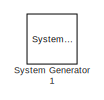
[diagram: root canvas - part 1/13, top left region]
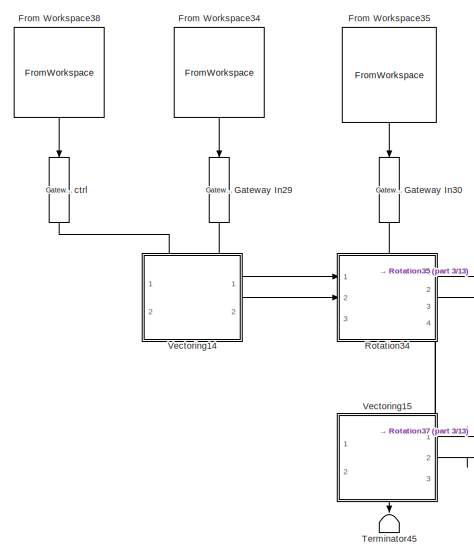
[diagram: root canvas - part 2/13, top left region]
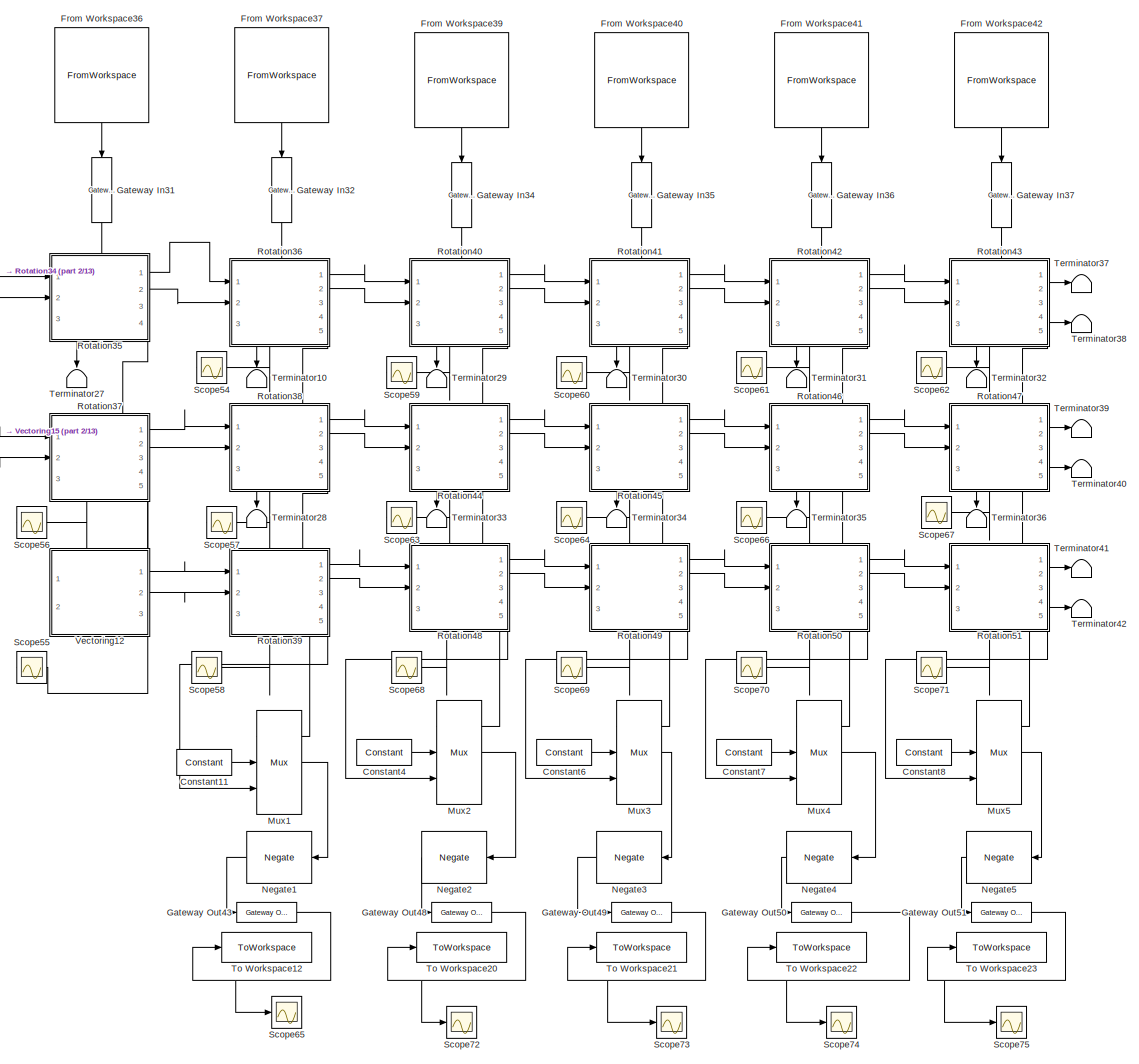
[diagram: root canvas - part 3/13, top left region]
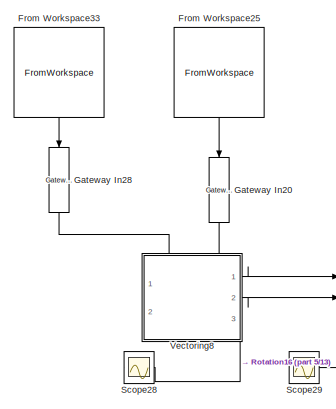
[diagram: root canvas - part 4/13, top center region]
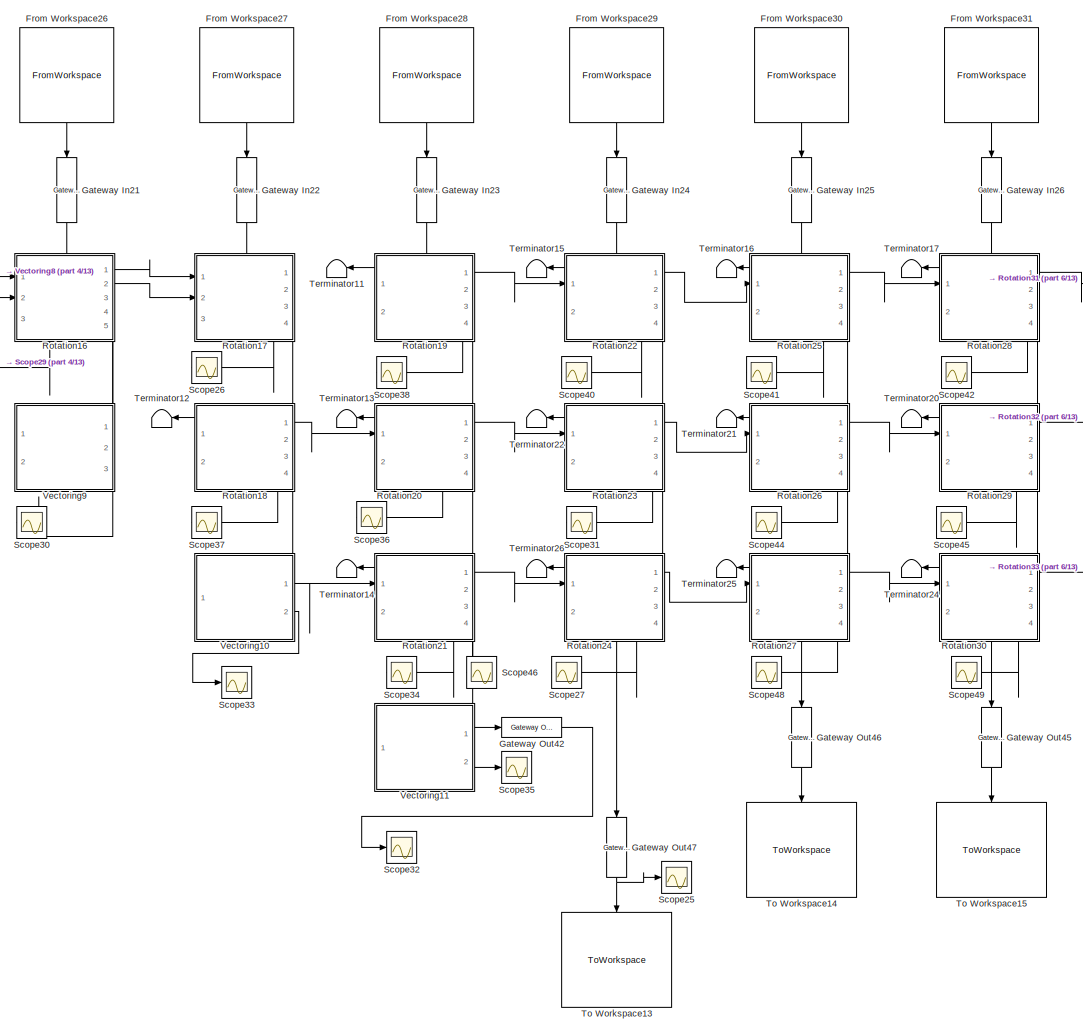
[diagram: root canvas - part 5/13, top center region]
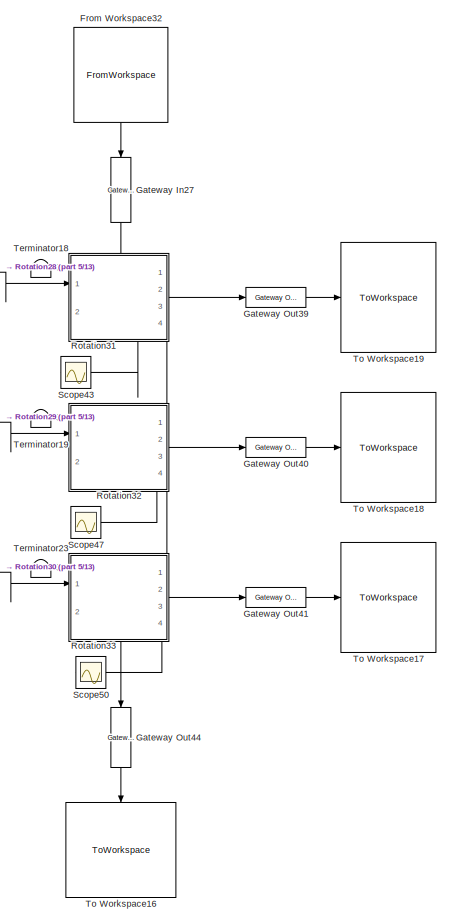
[diagram: root canvas - part 6/13, top center region]
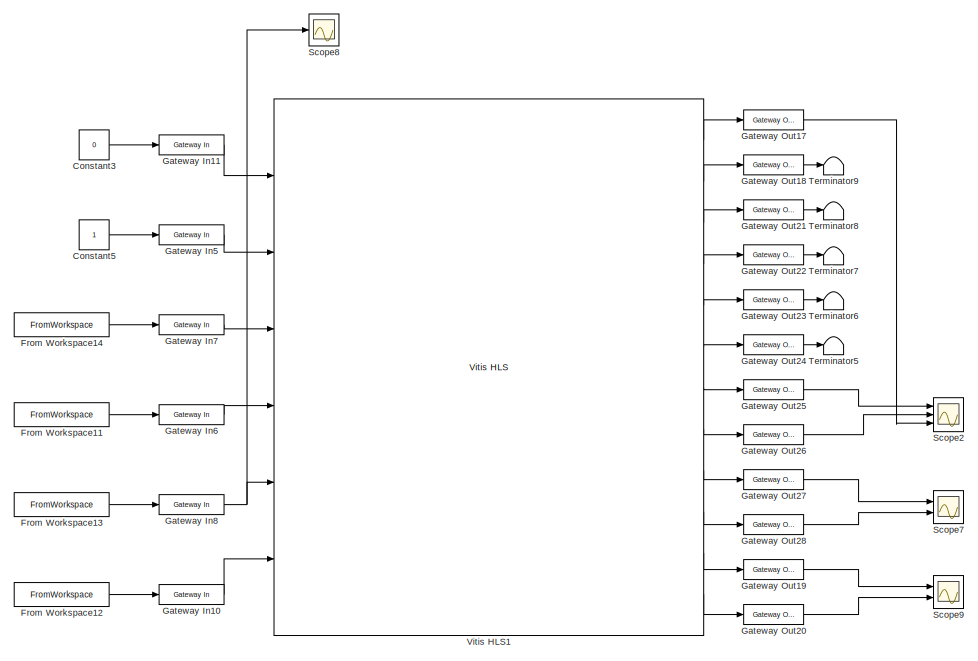
[diagram: root canvas - part 7/13, top right region]
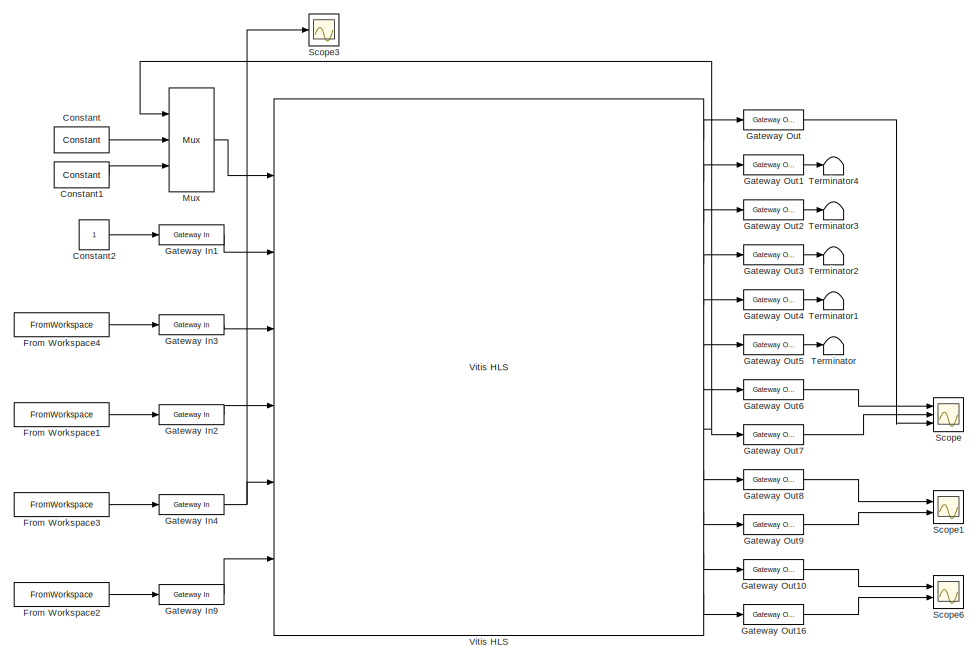
[diagram: root canvas - part 8/13, top right region]
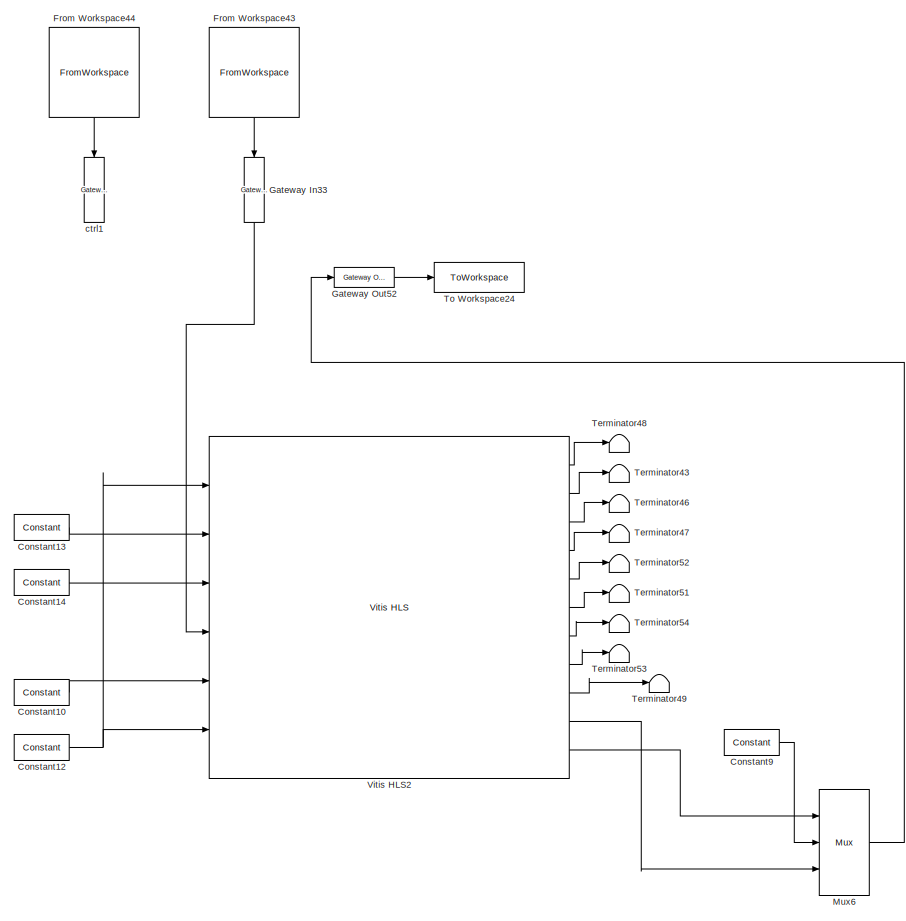
[diagram: root canvas - part 9/13, top left region]
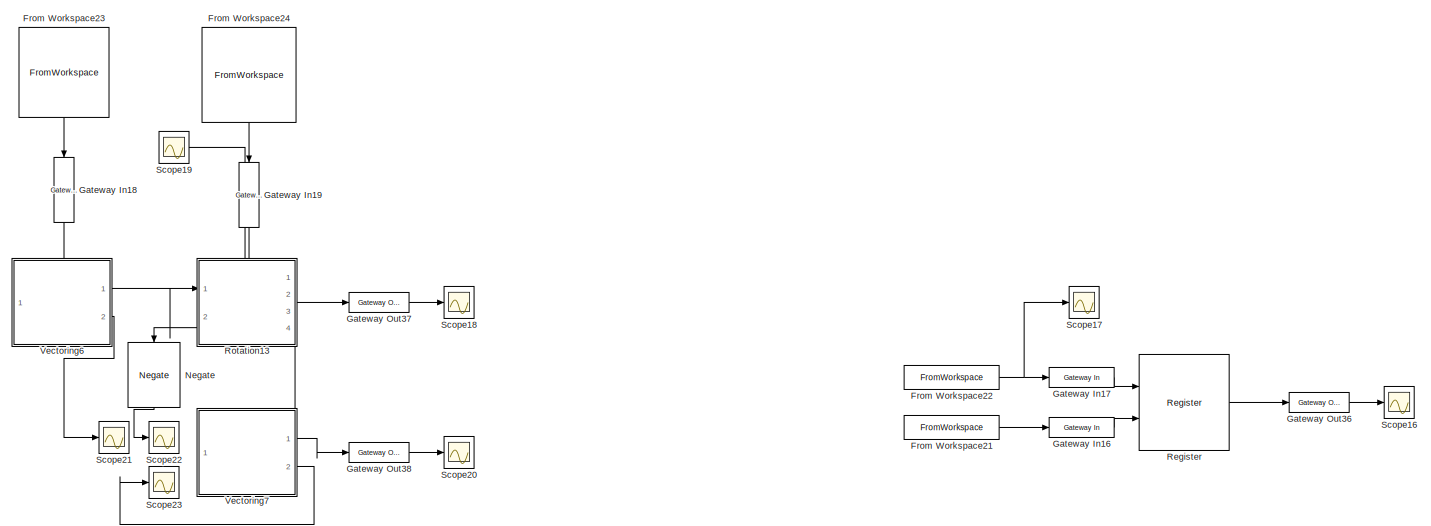
[diagram: root canvas - part 10/13, middle right region]
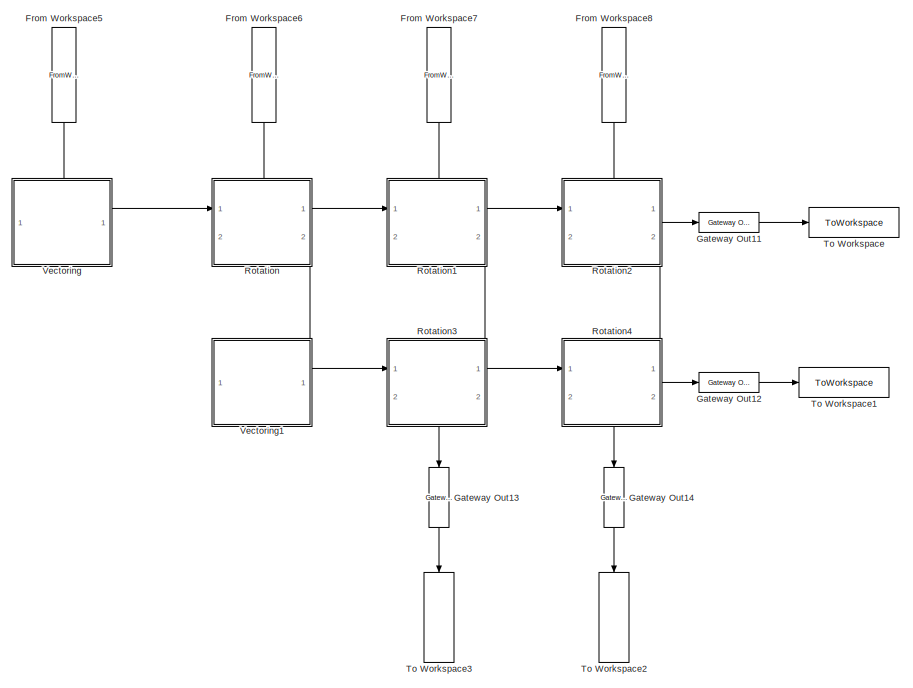
[diagram: root canvas - part 11/13, middle right region]
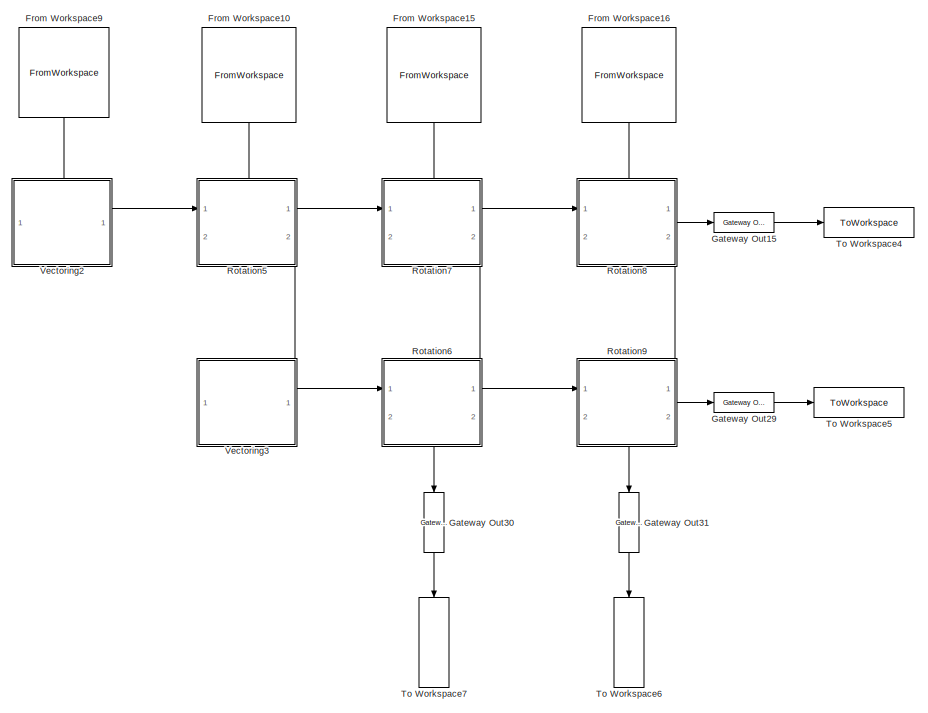
[diagram: root canvas - part 12/13, bottom right region]
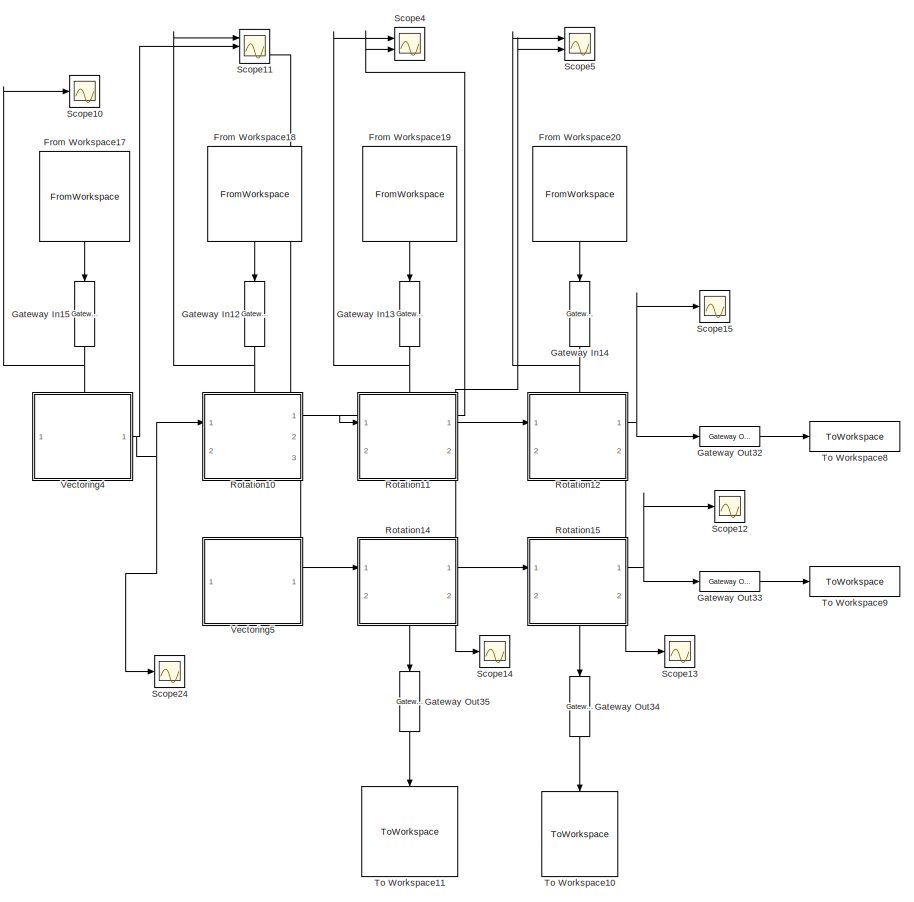
[diagram: root canvas - part 13/13, bottom right region]
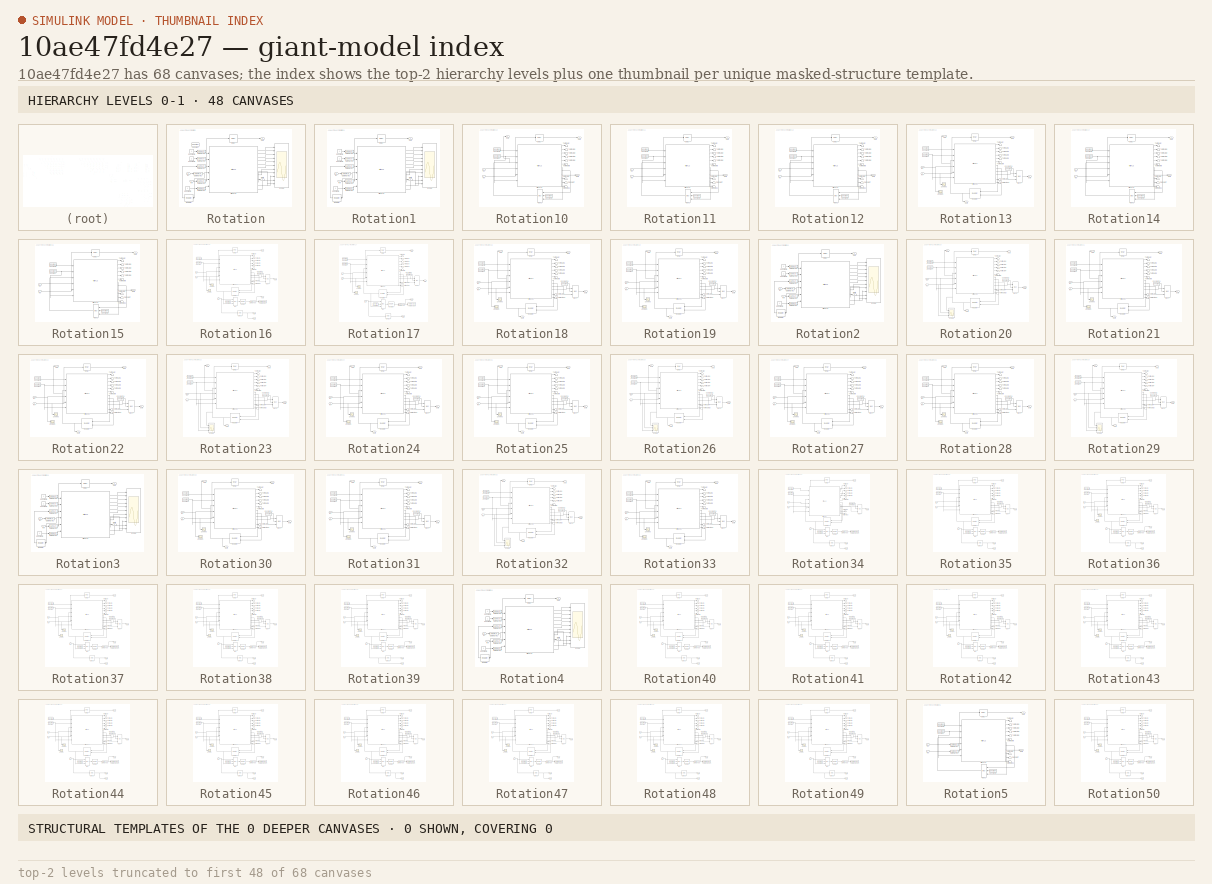
[diagram: thumbnail index - top-2 hierarchy levels (68 canvases (first 48 of 68 shown)) + 0 structural-template representatives of the remaining 0 canvases]
MODEL slx_10ae47fd4e27
KIND model
CONFIG AbsTol = auto
CONFIG EnableMultiTasking = off
CONFIG FixedStep = auto
CONFIG MaxStep = auto
CONFIG MinStep = auto
CONFIG RelTol = 1e-3
CONFIG SampleTimeConstraint = Unconstrained
CONFIG SolverName = VariableStepAuto
CONFIG StartTime = 0.0
CONFIG StopTime = 400
BLOCK [Reference]  System Generator1  REF=xbsIndex_r4/ System Generator
  AttributesFormatString = System\nGenerator
  Ports = []
  SourceBlock = xbsIndex_r4/ System Generator
  SourceType = Xilinx System Generator Block
  Tag = genX
  UserDataPersistent = on
BLOCK [Reference] Constant  REF=hdlBasic/Constant
  Commented = on
  Ports = [0, 1]
  SourceBlock = hdlBasic/Constant
  SourceType = Constant Block Block
BLOCK [Reference] Constant1  REF=hdlBasic/Constant
  Commented = on
  Ports = [0, 1]
  SourceBlock = hdlBasic/Constant
  SourceType = Constant Block Block
BLOCK [Reference] Constant10  REF=hdlBasic/Constant
  Commented = on
  Ports = [0, 1]
  SourceBlock = hdlBasic/Constant
  SourceType = Constant Block Block
BLOCK [Reference] Constant11  REF=hdlBasic/Constant
  Ports = [0, 1]
  SourceBlock = hdlBasic/Constant
  SourceType = Constant Block Block
BLOCK [Reference] Constant12  REF=hdlBasic/Constant
  Commented = on
  Ports = [0, 1]
  SourceBlock = hdlBasic/Constant
  SourceType = Constant Block Block
BLOCK [Reference] Constant13  REF=hdlBasic/Constant
  Commented = on
  Ports = [0, 1]
  SourceBlock = hdlBasic/Constant
  SourceType = Constant Block Block
BLOCK [Reference] Constant14  REF=hdlBasic/Constant
  Commented = on
  Ports = [0, 1]
  SourceBlock = hdlBasic/Constant
  SourceType = Constant Block Block
BLOCK [Constant] Constant2
  Commented = on
BLOCK [Constant] Constant3
  Commented = on
  Value = 0
BLOCK [Reference] Constant4  REF=hdlBasic/Constant
  Ports = [0, 1]
  SourceBlock = hdlBasic/Constant
  SourceType = Constant Block Block
BLOCK [Constant] Constant5
  Commented = on
BLOCK [Reference] Constant6  REF=hdlBasic/Constant
  Ports = [0, 1]
  SourceBlock = hdlBasic/Constant
  SourceType = Constant Block Block
BLOCK [Reference] Constant7  REF=hdlBasic/Constant
  Ports = [0, 1]
  SourceBlock = hdlBasic/Constant
  SourceType = Constant Block Block
BLOCK [Reference] Constant8  REF=hdlBasic/Constant
  Ports = [0, 1]
  SourceBlock = hdlBasic/Constant
  SourceType = Constant Block Block
BLOCK [Reference] Constant9  REF=hdlBasic/Constant
  Commented = on
  Ports = [0, 1]
  SourceBlock = hdlBasic/Constant
  SourceType = Constant Block Block
BLOCK [FromWorkspace] From Workspace1
  Commented = on
  VariableName = y
BLOCK [FromWorkspace] From Workspace10
  Commented = on
  NameLocation = left
  VariableName = AtestCol2_t
BLOCK [FromWorkspace] From Workspace11
  Commented = on
  VariableName = y
BLOCK [FromWorkspace] From Workspace12
  Commented = on
  VariableName = mode
BLOCK [FromWorkspace] From Workspace13
  Commented = on
  VariableName = theta
BLOCK [FromWorkspace] From Workspace14
  Commented = on
  VariableName = x
BLOCK [FromWorkspace] From Workspace15
  Commented = on
  NameLocation = left
  VariableName = Icol1_t
BLOCK [FromWorkspace] From Workspace16
  Commented = on
  NameLocation = left
  VariableName = Icol2_t
BLOCK [FromWorkspace] From Workspace17
  Commented = on
  NameLocation = left
  VariableName = AtestCol1_t
BLOCK [FromWorkspace] From Workspace18
  Commented = on
  NameLocation = left
  VariableName = AtestCol2_t
BLOCK [FromWorkspace] From Workspace19
  Commented = on
  NameLocation = left
  VariableName = Icol1_t
BLOCK [FromWorkspace] From Workspace2
  Commented = on
  VariableName = mode
BLOCK [FromWorkspace] From Workspace20
  Commented = on
  NameLocation = left
  VariableName = Icol2_t
BLOCK [FromWorkspace] From Workspace21
  Commented = on
  VariableName = regenable
BLOCK [FromWorkspace] From Workspace22
  Commented = on
  VariableName = regtest
BLOCK [FromWorkspace] From Workspace23
  Commented = on
  NameLocation = left
  VariableName = AtestCol1_t
BLOCK [FromWorkspace] From Workspace24
  Commented = on
  NameLocation = left
  VariableName = AtestCol2_t
BLOCK [FromWorkspace] From Workspace25
  Commented = on
  NameLocation = left
  VariableName = Acol1
BLOCK [FromWorkspace] From Workspace26
  Commented = on
  NameLocation = left
  VariableName = Acol2
BLOCK [FromWorkspace] From Workspace27
  Commented = on
  NameLocation = left
  VariableName = Acol3
BLOCK [FromWorkspace] From Workspace28
  Commented = on
  NameLocation = left
  VariableName = Acol4
BLOCK [FromWorkspace] From Workspace29
  Commented = on
  NameLocation = left
  VariableName = Icol1_t
BLOCK [FromWorkspace] From Workspace3
  Commented = on
  VariableName = theta
BLOCK [FromWorkspace] From Workspace30
  Commented = on
  NameLocation = left
  VariableName = Icol2_t
BLOCK [FromWorkspace] From Workspace31
  Commented = on
  NameLocation = left
  VariableName = Icol3_t
BLOCK [FromWorkspace] From Workspace32
  Commented = on
  NameLocation = left
  VariableName = Icol4_t
BLOCK [FromWorkspace] From Workspace33
  Commented = on
  NameLocation = left
  VariableName = ctrl_t
BLOCK [FromWorkspace] From Workspace34
  NameLocation = left
  VariableName = Acol1
BLOCK [FromWorkspace] From Workspace35
  NameLocation = left
  VariableName = Acol2
BLOCK [FromWorkspace] From Workspace36
  NameLocation = left
  VariableName = Acol3
BLOCK [FromWorkspace] From Workspace37
  NameLocation = left
  VariableName = Acol4
BLOCK [FromWorkspace] From Workspace38
  NameLocation = left
  VariableName = ctrl_t
BLOCK [FromWorkspace] From Workspace39
  NameLocation = left
  VariableName = Icol1_t
BLOCK [FromWorkspace] From Workspace4
  Commented = on
  VariableName = x
BLOCK [FromWorkspace] From Workspace40
  NameLocation = left
  VariableName = Icol2_t
BLOCK [FromWorkspace] From Workspace41
  NameLocation = left
  VariableName = Icol3_t
BLOCK [FromWorkspace] From Workspace42
  NameLocation = left
  VariableName = Icol4_t
BLOCK [FromWorkspace] From Workspace43
  Commented = on
  NameLocation = left
  VariableName = Acol1
BLOCK [FromWorkspace] From Workspace44
  Commented = on
  NameLocation = left
  VariableName = ctrl_t
BLOCK [FromWorkspace] From Workspace5
  Commented = on
  NameLocation = left
  VariableName = col1
BLOCK [FromWorkspace] From Workspace6
  Commented = on
  NameLocation = left
  VariableName = col2
BLOCK [FromWorkspace] From Workspace7
  Commented = on
  NameLocation = left
  VariableName = ident1
BLOCK [FromWorkspace] From Workspace8
  Commented = on
  NameLocation = left
  VariableName = ident2
BLOCK [FromWorkspace] From Workspace9
  Commented = on
  NameLocation = left
  VariableName = AtestCol1_t
BLOCK [Reference] Gateway In1  REF=hdlBasic/Gateway In
  Commented = on
  Ports = [1, 1]
  SourceBlock = hdlBasic/Gateway In
  SourceType = Gateway In Block
BLOCK [Reference] Gateway In10  REF=hdlBasic/Gateway In
  Commented = on
  Ports = [1, 1]
  SourceBlock = hdlBasic/Gateway In
  SourceType = Gateway In Block
BLOCK [Reference] Gateway In11  REF=hdlBasic/Gateway In
  Commented = on
  Ports = [1, 1]
  SourceBlock = hdlBasic/Gateway In
  SourceType = Gateway In Block
BLOCK [Reference] Gateway In12  REF=hdlBasic/Gateway In
  Commented = on
  NameLocation = left
  Ports = [1, 1]
  SourceBlock = hdlBasic/Gateway In
  SourceType = Gateway In Block
BLOCK [Reference] Gateway In13  REF=hdlBasic/Gateway In
  Commented = on
  NameLocation = left
  Ports = [1, 1]
  SourceBlock = hdlBasic/Gateway In
  SourceType = Gateway In Block
BLOCK [Reference] Gateway In14  REF=hdlBasic/Gateway In
  Commented = on
  NameLocation = left
  Ports = [1, 1]
  SourceBlock = hdlBasic/Gateway In
  SourceType = Gateway In Block
BLOCK [Reference] Gateway In15  REF=hdlBasic/Gateway In
  Commented = on
  NameLocation = left
  Ports = [1, 1]
  SourceBlock = hdlBasic/Gateway In
  SourceType = Gateway In Block
BLOCK [Reference] Gateway In16  REF=hdlBasic/Gateway In
  Commented = on
  Ports = [1, 1]
  SourceBlock = hdlBasic/Gateway In
  SourceType = Gateway In Block
BLOCK [Reference] Gateway In17  REF=hdlBasic/Gateway In
  Commented = on
  Ports = [1, 1]
  SourceBlock = hdlBasic/Gateway In
  SourceType = Gateway In Block
BLOCK [Reference] Gateway In18  REF=hdlBasic/Gateway In
  Commented = on
  NameLocation = left
  Ports = [1, 1]
  SourceBlock = hdlBasic/Gateway In
  SourceType = Gateway In Block
BLOCK [Reference] Gateway In19  REF=hdlBasic/Gateway In
  Commented = on
  NameLocation = left
  Ports = [1, 1]
  SourceBlock = hdlBasic/Gateway In
  SourceType = Gateway In Block
BLOCK [Reference] Gateway In2  REF=hdlBasic/Gateway In
  Commented = on
  Ports = [1, 1]
  SourceBlock = hdlBasic/Gateway In
  SourceType = Gateway In Block
BLOCK [Reference] Gateway In20  REF=hdlBasic/Gateway In
  Commented = on
  NameLocation = left
  Ports = [1, 1]
  SourceBlock = hdlBasic/Gateway In
  SourceType = Gateway In Block
BLOCK [Reference] Gateway In21  REF=hdlBasic/Gateway In
  Commented = on
  NameLocation = left
  Ports = [1, 1]
  SourceBlock = hdlBasic/Gateway In
  SourceType = Gateway In Block
BLOCK [Reference] Gateway In22  REF=hdlBasic/Gateway In
  Commented = on
  NameLocation = left
  Ports = [1, 1]
  SourceBlock = hdlBasic/Gateway In
  SourceType = Gateway In Block
BLOCK [Reference] Gateway In23  REF=hdlBasic/Gateway In
  Commented = on
  NameLocation = left
  Ports = [1, 1]
  SourceBlock = hdlBasic/Gateway In
  SourceType = Gateway In Block
BLOCK [Reference] Gateway In24  REF=hdlBasic/Gateway In
  Commented = on
  NameLocation = left
  Ports = [1, 1]
  SourceBlock = hdlBasic/Gateway In
  SourceType = Gateway In Block
BLOCK [Reference] Gateway In25  REF=hdlBasic/Gateway In
  Commented = on
  NameLocation = left
  Ports = [1, 1]
  SourceBlock = hdlBasic/Gateway In
  SourceType = Gateway In Block
BLOCK [Reference] Gateway In26  REF=hdlBasic/Gateway In
  Commented = on
  NameLocation = left
  Ports = [1, 1]
  SourceBlock = hdlBasic/Gateway In
  SourceType = Gateway In Block
BLOCK [Reference] Gateway In27  REF=hdlBasic/Gateway In
  Commented = on
  NameLocation = left
  Ports = [1, 1]
  SourceBlock = hdlBasic/Gateway In
  SourceType = Gateway In Block
BLOCK [Reference] Gateway In28  REF=hdlBasic/Gateway In
  Commented = on
  NameLocation = left
  Ports = [1, 1]
  SourceBlock = hdlBasic/Gateway In
  SourceType = Gateway In Block
BLOCK [Reference] Gateway In29  REF=hdlBasic/Gateway In
  NameLocation = left
  Ports = [1, 1]
  SourceBlock = hdlBasic/Gateway In
  SourceType = Gateway In Block
BLOCK [Reference] Gateway In3  REF=hdlBasic/Gateway In
  Commented = on
  Ports = [1, 1]
  SourceBlock = hdlBasic/Gateway In
  SourceType = Gateway In Block
BLOCK [Reference] Gateway In30  REF=hdlBasic/Gateway In
  NameLocation = left
  Ports = [1, 1]
  SourceBlock = hdlBasic/Gateway In
  SourceType = Gateway In Block
BLOCK [Reference] Gateway In31  REF=hdlBasic/Gateway In
  NameLocation = left
  Ports = [1, 1]
  SourceBlock = hdlBasic/Gateway In
  SourceType = Gateway In Block
BLOCK [Reference] Gateway In32  REF=hdlBasic/Gateway In
  NameLocation = left
  Ports = [1, 1]
  SourceBlock = hdlBasic/Gateway In
  SourceType = Gateway In Block
BLOCK [Reference] Gateway In33  REF=hdlBasic/Gateway In
  Commented = on
  NameLocation = left
  Ports = [1, 1]
  SourceBlock = hdlBasic/Gateway In
  SourceType = Gateway In Block
BLOCK [Reference] Gateway In34  REF=hdlBasic/Gateway In
  NameLocation = left
  Ports = [1, 1]
  SourceBlock = hdlBasic/Gateway In
  SourceType = Gateway In Block
BLOCK [Reference] Gateway In35  REF=hdlBasic/Gateway In
  NameLocation = left
  Ports = [1, 1]
  SourceBlock = hdlBasic/Gateway In
  SourceType = Gateway In Block
BLOCK [Reference] Gateway In36  REF=hdlBasic/Gateway In
  NameLocation = left
  Ports = [1, 1]
  SourceBlock = hdlBasic/Gateway In
  SourceType = Gateway In Block
BLOCK [Reference] Gateway In37  REF=hdlBasic/Gateway In
  NameLocation = left
  Ports = [1, 1]
  SourceBlock = hdlBasic/Gateway In
  SourceType = Gateway In Block
BLOCK [Reference] Gateway In4  REF=hdlBasic/Gateway In
  Commented = on
  Ports = [1, 1]
  SourceBlock = hdlBasic/Gateway In
  SourceType = Gateway In Block
BLOCK [Reference] Gateway In5  REF=hdlBasic/Gateway In
  Commented = on
  Ports = [1, 1]
  SourceBlock = hdlBasic/Gateway In
  SourceType = Gateway In Block
BLOCK [Reference] Gateway In6  REF=hdlBasic/Gateway In
  Commented = on
  Ports = [1, 1]
  SourceBlock = hdlBasic/Gateway In
  SourceType = Gateway In Block
BLOCK [Reference] Gateway In7  REF=hdlBasic/Gateway In
  Commented = on
  Ports = [1, 1]
  SourceBlock = hdlBasic/Gateway In
  SourceType = Gateway In Block
BLOCK [Reference] Gateway In8  REF=hdlBasic/Gateway In
  Commented = on
  Ports = [1, 1]
  SourceBlock = hdlBasic/Gateway In
  SourceType = Gateway In Block
BLOCK [Reference] Gateway In9  REF=hdlBasic/Gateway In
  Commented = on
  Ports = [1, 1]
  SourceBlock = hdlBasic/Gateway In
  SourceType = Gateway In Block
BLOCK [Reference] Gateway Out  REF=hdlBasic/Gateway Out
  Commented = on
  Ports = [1, 1]
  SourceBlock = hdlBasic/Gateway Out
  SourceType = Gateway Out Block
BLOCK [Reference] Gateway Out1  REF=hdlBasic/Gateway Out
  Commented = on
  Ports = [1, 1]
  SourceBlock = hdlBasic/Gateway Out
  SourceType = Gateway Out Block
BLOCK [Reference] Gateway Out10  REF=hdlBasic/Gateway Out
  Commented = on
  Ports = [1, 1]
  SourceBlock = hdlBasic/Gateway Out
  SourceType = Gateway Out Block
BLOCK [Reference] Gateway Out11  REF=hdlBasic/Gateway Out
  Commented = on
  Ports = [1, 1]
  SourceBlock = hdlBasic/Gateway Out
  SourceType = Gateway Out Block
BLOCK [Reference] Gateway Out12  REF=hdlBasic/Gateway Out
  Commented = on
  Ports = [1, 1]
  SourceBlock = hdlBasic/Gateway Out
  SourceType = Gateway Out Block
BLOCK [Reference] Gateway Out13  REF=hdlBasic/Gateway Out
  Commented = on
  NameLocation = left
  Ports = [1, 1]
  SourceBlock = hdlBasic/Gateway Out
  SourceType = Gateway Out Block
BLOCK [Reference] Gateway Out14  REF=hdlBasic/Gateway Out
  Commented = on
  NameLocation = left
  Ports = [1, 1]
  SourceBlock = hdlBasic/Gateway Out
  SourceType = Gateway Out Block
BLOCK [Reference] Gateway Out15  REF=hdlBasic/Gateway Out
  Commented = on
  Ports = [1, 1]
  SourceBlock = hdlBasic/Gateway Out
  SourceType = Gateway Out Block
BLOCK [Reference] Gateway Out16  REF=hdlBasic/Gateway Out
  Commented = on
  Ports = [1, 1]
  SourceBlock = hdlBasic/Gateway Out
  SourceType = Gateway Out Block
BLOCK [Reference] Gateway Out17  REF=hdlBasic/Gateway Out
  Commented = on
  Ports = [1, 1]
  SourceBlock = hdlBasic/Gateway Out
  SourceType = Gateway Out Block
BLOCK [Reference] Gateway Out18  REF=hdlBasic/Gateway Out
  Commented = on
  Ports = [1, 1]
  SourceBlock = hdlBasic/Gateway Out
  SourceType = Gateway Out Block
BLOCK [Reference] Gateway Out19  REF=hdlBasic/Gateway Out
  Commented = on
  Ports = [1, 1]
  SourceBlock = hdlBasic/Gateway Out
  SourceType = Gateway Out Block
BLOCK [Reference] Gateway Out2  REF=hdlBasic/Gateway Out
  Commented = on
  Ports = [1, 1]
  SourceBlock = hdlBasic/Gateway Out
  SourceType = Gateway Out Block
BLOCK [Reference] Gateway Out20  REF=hdlBasic/Gateway Out
  Commented = on
  Ports = [1, 1]
  SourceBlock = hdlBasic/Gateway Out
  SourceType = Gateway Out Block
BLOCK [Reference] Gateway Out21  REF=hdlBasic/Gateway Out
  Commented = on
  Ports = [1, 1]
  SourceBlock = hdlBasic/Gateway Out
  SourceType = Gateway Out Block
BLOCK [Reference] Gateway Out22  REF=hdlBasic/Gateway Out
  Commented = on
  Ports = [1, 1]
  SourceBlock = hdlBasic/Gateway Out
  SourceType = Gateway Out Block
BLOCK [Reference] Gateway Out23  REF=hdlBasic/Gateway Out
  Commented = on
  Ports = [1, 1]
  SourceBlock = hdlBasic/Gateway Out
  SourceType = Gateway Out Block
BLOCK [Reference] Gateway Out24  REF=hdlBasic/Gateway Out
  Commented = on
  Ports = [1, 1]
  SourceBlock = hdlBasic/Gateway Out
  SourceType = Gateway Out Block
BLOCK [Reference] Gateway Out25  REF=hdlBasic/Gateway Out
  Commented = on
  Ports = [1, 1]
  SourceBlock = hdlBasic/Gateway Out
  SourceType = Gateway Out Block
BLOCK [Reference] Gateway Out26  REF=hdlBasic/Gateway Out
  Commented = on
  Ports = [1, 1]
  SourceBlock = hdlBasic/Gateway Out
  SourceType = Gateway Out Block
BLOCK [Reference] Gateway Out27  REF=hdlBasic/Gateway Out
  Commented = on
  Ports = [1, 1]
  SourceBlock = hdlBasic/Gateway Out
  SourceType = Gateway Out Block
BLOCK [Reference] Gateway Out28  REF=hdlBasic/Gateway Out
  Commented = on
  Ports = [1, 1]
  SourceBlock = hdlBasic/Gateway Out
  SourceType = Gateway Out Block
BLOCK [Reference] Gateway Out29  REF=hdlBasic/Gateway Out
  Commented = on
  Ports = [1, 1]
  SourceBlock = hdlBasic/Gateway Out
  SourceType = Gateway Out Block
BLOCK [Reference] Gateway Out3  REF=hdlBasic/Gateway Out
  Commented = on
  Ports = [1, 1]
  SourceBlock = hdlBasic/Gateway Out
  SourceType = Gateway Out Block
BLOCK [Reference] Gateway Out30  REF=hdlBasic/Gateway Out
  Commented = on
  NameLocation = left
  Ports = [1, 1]
  SourceBlock = hdlBasic/Gateway Out
  SourceType = Gateway Out Block
BLOCK [Reference] Gateway Out31  REF=hdlBasic/Gateway Out
  Commented = on
  NameLocation = left
  Ports = [1, 1]
  SourceBlock = hdlBasic/Gateway Out
  SourceType = Gateway Out Block
BLOCK [Reference] Gateway Out32  REF=hdlBasic/Gateway Out
  Commented = on
  Ports = [1, 1]
  SourceBlock = hdlBasic/Gateway Out
  SourceType = Gateway Out Block
BLOCK [Reference] Gateway Out33  REF=hdlBasic/Gateway Out
  Commented = on
  Ports = [1, 1]
  SourceBlock = hdlBasic/Gateway Out
  SourceType = Gateway Out Block
BLOCK [Reference] Gateway Out34  REF=hdlBasic/Gateway Out
  Commented = on
  NameLocation = left
  Ports = [1, 1]
  SourceBlock = hdlBasic/Gateway Out
  SourceType = Gateway Out Block
BLOCK [Reference] Gateway Out35  REF=hdlBasic/Gateway Out
  Commented = on
  NameLocation = left
  Ports = [1, 1]
  SourceBlock = hdlBasic/Gateway Out
  SourceType = Gateway Out Block
BLOCK [Reference] Gateway Out36  REF=hdlBasic/Gateway Out
  Commented = on
  Ports = [1, 1]
  SourceBlock = hdlBasic/Gateway Out
  SourceType = Gateway Out Block
BLOCK [Reference] Gateway Out37  REF=hdlBasic/Gateway Out
  Commented = on
  Ports = [1, 1]
  SourceBlock = hdlBasic/Gateway Out
  SourceType = Gateway Out Block
BLOCK [Reference] Gateway Out38  REF=hdlBasic/Gateway Out
  Commented = on
  Ports = [1, 1]
  SourceBlock = hdlBasic/Gateway Out
  SourceType = Gateway Out Block
BLOCK [Reference] Gateway Out39  REF=hdlBasic/Gateway Out
  Commented = on
  Ports = [1, 1]
  SourceBlock = hdlBasic/Gateway Out
  SourceType = Gateway Out Block
BLOCK [Reference] Gateway Out4  REF=hdlBasic/Gateway Out
  Commented = on
  Ports = [1, 1]
  SourceBlock = hdlBasic/Gateway Out
  SourceType = Gateway Out Block
BLOCK [Reference] Gateway Out40  REF=hdlBasic/Gateway Out
  Commented = on
  Ports = [1, 1]
  SourceBlock = hdlBasic/Gateway Out
  SourceType = Gateway Out Block
BLOCK [Reference] Gateway Out41  REF=hdlBasic/Gateway Out
  Commented = on
  Ports = [1, 1]
  SourceBlock = hdlBasic/Gateway Out
  SourceType = Gateway Out Block
BLOCK [Reference] Gateway Out42  REF=hdlBasic/Gateway Out
  Commented = on
  Ports = [1, 1]
  SourceBlock = hdlBasic/Gateway Out
  SourceType = Gateway Out Block
BLOCK [Reference] Gateway Out43  REF=hdlBasic/Gateway Out
  Ports = [1, 1]
  SourceBlock = hdlBasic/Gateway Out
  SourceType = Gateway Out Block
BLOCK [Reference] Gateway Out44  REF=hdlBasic/Gateway Out
  Commented = on
  NameLocation = left
  Ports = [1, 1]
  SourceBlock = hdlBasic/Gateway Out
  SourceType = Gateway Out Block
BLOCK [Reference] Gateway Out45  REF=hdlBasic/Gateway Out
  Commented = on
  NameLocation = left
  Ports = [1, 1]
  SourceBlock = hdlBasic/Gateway Out
  SourceType = Gateway Out Block
BLOCK [Reference] Gateway Out46  REF=hdlBasic/Gateway Out
  Commented = on
  NameLocation = left
  Ports = [1, 1]
  SourceBlock = hdlBasic/Gateway Out
  SourceType = Gateway Out Block
BLOCK [Reference] Gateway Out47  REF=hdlBasic/Gateway Out
  Commented = on
  NameLocation = left
  Ports = [1, 1]
  SourceBlock = hdlBasic/Gateway Out
  SourceType = Gateway Out Block
BLOCK [Reference] Gateway Out48  REF=hdlBasic/Gateway Out
  Ports = [1, 1]
  SourceBlock = hdlBasic/Gateway Out
  SourceType = Gateway Out Block
BLOCK [Reference] Gateway Out49  REF=hdlBasic/Gateway Out
  Ports = [1, 1]
  SourceBlock = hdlBasic/Gateway Out
  SourceType = Gateway Out Block
BLOCK [Reference] Gateway Out5  REF=hdlBasic/Gateway Out
  Commented = on
  Ports = [1, 1]
  SourceBlock = hdlBasic/Gateway Out
  SourceType = Gateway Out Block
BLOCK [Reference] Gateway Out50  REF=hdlBasic/Gateway Out
  Ports = [1, 1]
  SourceBlock = hdlBasic/Gateway Out
  SourceType = Gateway Out Block
BLOCK [Reference] Gateway Out51  REF=hdlBasic/Gateway Out
  Ports = [1, 1]
  SourceBlock = hdlBasic/Gateway Out
  SourceType = Gateway Out Block
BLOCK [Reference] Gateway Out52  REF=hdlBasic/Gateway Out
  Commented = on
  Ports = [1, 1]
  SourceBlock = hdlBasic/Gateway Out
  SourceType = Gateway Out Block
BLOCK [Reference] Gateway Out6  REF=hdlBasic/Gateway Out
  Commented = on
  Ports = [1, 1]
  SourceBlock = hdlBasic/Gateway Out
  SourceType = Gateway Out Block
BLOCK [Reference] Gateway Out7  REF=hdlBasic/Gateway Out
  Commented = on
  Ports = [1, 1]
  SourceBlock = hdlBasic/Gateway Out
  SourceType = Gateway Out Block
BLOCK [Reference] Gateway Out8  REF=hdlBasic/Gateway Out
  Commented = on
  Ports = [1, 1]
  SourceBlock = hdlBasic/Gateway Out
  SourceType = Gateway Out Block
BLOCK [Reference] Gateway Out9  REF=hdlBasic/Gateway Out
  Commented = on
  Ports = [1, 1]
  SourceBlock = hdlBasic/Gateway Out
  SourceType = Gateway Out Block
BLOCK [Reference] Mux  REF=hdlBasic/Mux
  Commented = on
  Ports = [3, 1]
  SourceBlock = hdlBasic/Mux
  SourceType = Bus Multiplexer Block
BLOCK [Reference] Mux1  REF=hdlBasic/Mux
  Ports = [3, 1]
  SourceBlock = hdlBasic/Mux
  SourceType = Bus Multiplexer Block
BLOCK [Reference] Mux2  REF=hdlBasic/Mux
  Ports = [3, 1]
  SourceBlock = hdlBasic/Mux
  SourceType = Bus Multiplexer Block
BLOCK [Reference] Mux3  REF=hdlBasic/Mux
  Ports = [3, 1]
  SourceBlock = hdlBasic/Mux
  SourceType = Bus Multiplexer Block
BLOCK [Reference] Mux4  REF=hdlBasic/Mux
  Ports = [3, 1]
  SourceBlock = hdlBasic/Mux
  SourceType = Bus Multiplexer Block
BLOCK [Reference] Mux5  REF=hdlBasic/Mux
  Ports = [3, 1]
  SourceBlock = hdlBasic/Mux
  SourceType = Bus Multiplexer Block
BLOCK [Reference] Mux6  REF=hdlBasic/Mux
  Commented = on
  Ports = [3, 1]
  SourceBlock = hdlBasic/Mux
  SourceType = Bus Multiplexer Block
BLOCK [Reference] Negate  REF=hdlBasic/Negate
  Commented = on
  NameLocation = left
  Ports = [1, 1]
  SourceBlock = hdlBasic/Negate
  SourceType = Negate Block Block
BLOCK [Reference] Negate1  REF=hdlBasic/Negate
  NameLocation = top
  Ports = [1, 1]
  SourceBlock = hdlBasic/Negate
  SourceType = Negate Block Block
BLOCK [Reference] Negate2  REF=hdlBasic/Negate
  NameLocation = top
  Ports = [1, 1]
  SourceBlock = hdlBasic/Negate
  SourceType = Negate Block Block
BLOCK [Reference] Negate3  REF=hdlBasic/Negate
  NameLocation = top
  Ports = [1, 1]
  SourceBlock = hdlBasic/Negate
  SourceType = Negate Block Block
BLOCK [Reference] Negate4  REF=hdlBasic/Negate
  NameLocation = top
  Ports = [1, 1]
  SourceBlock = hdlBasic/Negate
  SourceType = Negate Block Block
BLOCK [Reference] Negate5  REF=hdlBasic/Negate
  NameLocation = top
  Ports = [1, 1]
  SourceBlock = hdlBasic/Negate
  SourceType = Negate Block Block
BLOCK [Reference] Register  REF=hdlBasic/Register
  Commented = on
  Ports = [2, 1]
  SourceBlock = hdlBasic/Register
  SourceType = Register Block
BLOCK [SubSystem] Rotation
  Commented = on
  PortSchema = {"entries":[{"content":{"sides":[{"content":{"connectorIds":["In1"]},"type":"ConnectorPlacement.EquallySpacedRectSide","uuid":"b989bfd3-647b-468d-a24b-67c5817c2fb9"},{"content":{"connectorIds":["Out1"],"side":"RIGHT"},"type":"ConnectorPlacement.EquallySpacedRectSide","uuid":"15839450-c6b9-4b4c-b490-793a0225ad70"},{"content":{"connectorIds":["In2"],"side":"TOP"},"type":"ConnectorPlacement.EquallySp...<+395ch>  <repeated x14 — deduplicated; at blocks: Rotation, Rotation1, Rotation11, Rotation12, Rotation14, Rotation15, Rotation2, Rotation3, Rotation4, Rotation5, Rotation6, Rotation7, Rotation8, Rotation9>
  Ports = [2, 2]
  RequestExecContextInheritance = off
BLOCK [Reference] Rotation/Constant  REF=hdlBasic/Constant
  Ports = [0, 1]
  SourceBlock = hdlBasic/Constant
  SourceType = Constant Block Block
BLOCK [Constant] Rotation/Constant2
BLOCK [Constant] Rotation/Constant3
  Value = 0
BLOCK [Constant] Rotation/Constant4
BLOCK [Reference] Rotation/Delay  REF=hdlBasic/Delay
  Ports = [1, 1]
  SourceBlock = hdlBasic/Delay
  SourceType = Delay Block
BLOCK [Reference] Rotation/Gateway In1  REF=hdlBasic/Gateway In
  Ports = [1, 1]
  SourceBlock = hdlBasic/Gateway In
  SourceType = Gateway In Block
BLOCK [Reference] Rotation/Gateway In2  REF=hdlBasic/Gateway In
  Ports = [1, 1]
  SourceBlock = hdlBasic/Gateway In
  SourceType = Gateway In Block
BLOCK [Reference] Rotation/Gateway In4  REF=hdlBasic/Gateway In
  Ports = [1, 1]
  SourceBlock = hdlBasic/Gateway In
  SourceType = Gateway In Block
BLOCK [Reference] Rotation/Gateway In5  REF=hdlBasic/Gateway In
  Ports = [1, 1]
  SourceBlock = hdlBasic/Gateway In
  SourceType = Gateway In Block
BLOCK [Reference] Rotation/Gateway In6  REF=hdlBasic/Gateway In
  Ports = [1, 1]
  SourceBlock = hdlBasic/Gateway In
  SourceType = Gateway In Block
BLOCK [Reference] Rotation/Gateway In7  REF=hdlBasic/Gateway In
  Ports = [1, 1]
  SourceBlock = hdlBasic/Gateway In
  SourceType = Gateway In Block
BLOCK [Inport] Rotation/In2
  Port = 2
BLOCK [Inport] Rotation/In3
BLOCK [Outport] Rotation/Out1
BLOCK [Outport] Rotation/Out9
  Port = 2
BLOCK [Reference] Rotation/Register  REF=hdlBasic/Register
  NameLocation = top
  Ports = [1, 1]
  SourceBlock = hdlBasic/Register
  SourceType = Register Block
BLOCK [Scope] Rotation/Scope
  Floating = off
  NumInputPorts = 11
  Ports = [11]
  ScopeSpecificationString = Simulink.scopes.TimeScopeBlockCfg('CurrentConfiguration', extmgr.ConfigurationSet(extmgr.Configuration('Core','General UI',true),extmgr.Configuration('Core','Source UI',true),extmgr.Configuration('Sources','WiredSimulink',true,'DataLoggingVariableName','ScopeData1'),extmgr.Configuration('Visuals','Time Domain',true,'SerializedDisplays',{struct('MinYLimReal','-10.00000','MaxYLimReal','10.00000','YL...<+1365ch>  <repeated x5 — deduplicated; at blocks: Scope>
BLOCK [Reference] Rotation/Vitis HLS1  REF=hdlBasic/Vitis HLS
  Ports = [6, 12]
  SourceBlock = hdlBasic/Vitis HLS
  SourceType = Xilinx High Level Synthesis Block
BLOCK [SubSystem] Rotation1
  Commented = on
  Ports = [2, 2]
  RequestExecContextInheritance = off
BLOCK [Constant] Rotation1/Constant2
BLOCK [Constant] Rotation1/Constant3
  Value = 0
BLOCK [Constant] Rotation1/Constant4
BLOCK [Reference] Rotation1/Delay  REF=hdlBasic/Delay
  Ports = [1, 1]
  SourceBlock = hdlBasic/Delay
  SourceType = Delay Block
BLOCK [Reference] Rotation1/Gateway In1  REF=hdlBasic/Gateway In
  Ports = [1, 1]
  SourceBlock = hdlBasic/Gateway In
  SourceType = Gateway In Block
BLOCK [Reference] Rotation1/Gateway In2  REF=hdlBasic/Gateway In
  Ports = [1, 1]
  SourceBlock = hdlBasic/Gateway In
  SourceType = Gateway In Block
BLOCK [Reference] Rotation1/Gateway In4  REF=hdlBasic/Gateway In
  Ports = [1, 1]
  SourceBlock = hdlBasic/Gateway In
  SourceType = Gateway In Block
BLOCK [Reference] Rotation1/Gateway In5  REF=hdlBasic/Gateway In
  Ports = [1, 1]
  SourceBlock = hdlBasic/Gateway In
  SourceType = Gateway In Block
BLOCK [Reference] Rotation1/Gateway In6  REF=hdlBasic/Gateway In
  Ports = [1, 1]
  SourceBlock = hdlBasic/Gateway In
  SourceType = Gateway In Block
BLOCK [Reference] Rotation1/Gateway In7  REF=hdlBasic/Gateway In
  Ports = [1, 1]
  SourceBlock = hdlBasic/Gateway In
  SourceType = Gateway In Block
BLOCK [Inport] Rotation1/In2
  Port = 2
BLOCK [Inport] Rotation1/In3
BLOCK [Outport] Rotation1/Out1
BLOCK [Outport] Rotation1/Out9
  Port = 2
BLOCK [Reference] Rotation1/Register  REF=hdlBasic/Register
  NameLocation = top
  Ports = [1, 1]
  SourceBlock = hdlBasic/Register
  SourceType = Register Block
BLOCK [Scope] Rotation1/Scope
  Floating = off
  NumInputPorts = 11
  Ports = [11]
BLOCK [Reference] Rotation1/Vitis HLS1  REF=hdlBasic/Vitis HLS
  Ports = [6, 12]
  SourceBlock = hdlBasic/Vitis HLS
  SourceType = Xilinx High Level Synthesis Block
BLOCK [SubSystem] Rotation10
  Commented = on
  PortSchema = {"entries":[{"content":{"sides":[{"content":{"connectorIds":["Out3","In1"]},"type":"ConnectorPlacement.EquallySpacedRectSide","uuid":"b989bfd3-647b-468d-a24b-67c5817c2fb9"},{"content":{"connectorIds":["Out1"],"side":"RIGHT"},"type":"ConnectorPlacement.EquallySpacedRectSide","uuid":"15839450-c6b9-4b4c-b490-793a0225ad70"},{"content":{"connectorIds":["In2"],"side":"TOP"},"type":"ConnectorPlacement.Eq...<+402ch>
  Ports = [2, 3]
  RequestExecContextInheritance = off
BLOCK [Reference] Rotation10/Constant  REF=hdlBasic/Constant
  Ports = [0, 1]
  SourceBlock = hdlBasic/Constant
  SourceType = Constant Block Block
BLOCK [Reference] Rotation10/Constant1  REF=hdlBasic/Constant
  NameLocation = top
  Ports = [0, 1]
  SourceBlock = hdlBasic/Constant
  SourceType = Constant Block Block
BLOCK [Reference] Rotation10/Constant3  REF=hdlBasic/Constant
  Ports = [0, 1]
  SourceBlock = hdlBasic/Constant
  SourceType = Constant Block Block
BLOCK [Reference] Rotation10/Delay  REF=hdlBasic/Delay
  Ports = [1, 1]
  SourceBlock = hdlBasic/Delay
  SourceType = Delay Block
BLOCK [Inport] Rotation10/In2
  Port = 2
BLOCK [Inport] Rotation10/In3
BLOCK [Reference] Rotation10/Mux1  REF=hdlBasic/Mux
  NameLocation = top
  Ports = [3, 1]
  SourceBlock = hdlBasic/Mux
  SourceType = Bus Multiplexer Block
BLOCK [Outport] Rotation10/Out1
BLOCK [Outport] Rotation10/Out2
  Port = 3
BLOCK [Outport] Rotation10/Out9
  Port = 2
BLOCK [Terminator] Rotation10/Terminator
BLOCK [Terminator] Rotation10/Terminator1
BLOCK [Terminator] Rotation10/Terminator16
BLOCK [Terminator] Rotation10/Terminator2
BLOCK [Terminator] Rotation10/Terminator3
BLOCK [Terminator] Rotation10/Terminator4
BLOCK [Terminator] Rotation10/Terminator5
BLOCK [Terminator] Rotation10/Terminator6
BLOCK [Terminator] Rotation10/Terminator7
BLOCK [Reference] Rotation10/Vitis HLS1  REF=hdlBasic/Vitis HLS
  Ports = [6, 12]
  SourceBlock = hdlBasic/Vitis HLS
  SourceType = Xilinx High Level Synthesis Block
BLOCK [SubSystem] Rotation11
  Commented = on
  Ports = [2, 2]
  RequestExecContextInheritance = off
BLOCK [Reference] Rotation11/Constant  REF=hdlBasic/Constant
  Ports = [0, 1]
  SourceBlock = hdlBasic/Constant
  SourceType = Constant Block Block
BLOCK [Reference] Rotation11/Constant1  REF=hdlBasic/Constant
  NameLocation = top
  Ports = [0, 1]
  SourceBlock = hdlBasic/Constant
  SourceType = Constant Block Block
BLOCK [Reference] Rotation11/Constant3  REF=hdlBasic/Constant
  Ports = [0, 1]
  SourceBlock = hdlBasic/Constant
  SourceType = Constant Block Block
BLOCK [Reference] Rotation11/Delay  REF=hdlBasic/Delay
  Ports = [1, 1]
  SourceBlock = hdlBasic/Delay
  SourceType = Delay Block
BLOCK [Inport] Rotation11/In2
  Port = 2
BLOCK [Inport] Rotation11/In3
BLOCK [Reference] Rotation11/Mux1  REF=hdlBasic/Mux
  NameLocation = top
  Ports = [3, 1]
  SourceBlock = hdlBasic/Mux
  SourceType = Bus Multiplexer Block
BLOCK [Outport] Rotation11/Out1
BLOCK [Outport] Rotation11/Out9
  Port = 2
BLOCK [Terminator] Rotation11/Terminator
BLOCK [Terminator] Rotation11/Terminator1
BLOCK [Terminator] Rotation11/Terminator16
BLOCK [Terminator] Rotation11/Terminator2
BLOCK [Terminator] Rotation11/Terminator3
BLOCK [Terminator] Rotation11/Terminator4
BLOCK [Terminator] Rotation11/Terminator5
BLOCK [Terminator] Rotation11/Terminator6
BLOCK [Terminator] Rotation11/Terminator7
BLOCK [Reference] Rotation11/Vitis HLS1  REF=hdlBasic/Vitis HLS
  Ports = [6, 12]
  SourceBlock = hdlBasic/Vitis HLS
  SourceType = Xilinx High Level Synthesis Block
BLOCK [SubSystem] Rotation12
  Commented = on
  Ports = [2, 2]
  RequestExecContextInheritance = off
BLOCK [Reference] Rotation12/Constant  REF=hdlBasic/Constant
  Ports = [0, 1]
  SourceBlock = hdlBasic/Constant
  SourceType = Constant Block Block
BLOCK [Reference] Rotation12/Constant1  REF=hdlBasic/Constant
  NameLocation = top
  Ports = [0, 1]
  SourceBlock = hdlBasic/Constant
  SourceType = Constant Block Block
BLOCK [Reference] Rotation12/Constant3  REF=hdlBasic/Constant
  Ports = [0, 1]
  SourceBlock = hdlBasic/Constant
  SourceType = Constant Block Block
BLOCK [Reference] Rotation12/Delay  REF=hdlBasic/Delay
  Ports = [1, 1]
  SourceBlock = hdlBasic/Delay
  SourceType = Delay Block
BLOCK [Inport] Rotation12/In2
  Port = 2
BLOCK [Inport] Rotation12/In3
BLOCK [Reference] Rotation12/Mux1  REF=hdlBasic/Mux
  NameLocation = top
  Ports = [3, 1]
  SourceBlock = hdlBasic/Mux
  SourceType = Bus Multiplexer Block
BLOCK [Outport] Rotation12/Out1
BLOCK [Outport] Rotation12/Out9
  Port = 2
BLOCK [Terminator] Rotation12/Terminator
BLOCK [Terminator] Rotation12/Terminator1
BLOCK [Terminator] Rotation12/Terminator16
BLOCK [Terminator] Rotation12/Terminator2
BLOCK [Terminator] Rotation12/Terminator3
BLOCK [Terminator] Rotation12/Terminator4
BLOCK [Terminator] Rotation12/Terminator5
BLOCK [Terminator] Rotation12/Terminator6
BLOCK [Terminator] Rotation12/Terminator7
BLOCK [Reference] Rotation12/Vitis HLS1  REF=hdlBasic/Vitis HLS
  Ports = [6, 12]
  SourceBlock = hdlBasic/Vitis HLS
  SourceType = Xilinx High Level Synthesis Block
BLOCK [SubSystem] Rotation13
  Commented = on
  PortSchema = {"entries":[{"content":{"sides":[{"content":{"connectorIds":["Out3","Out4","In1"]},"type":"ConnectorPlacement.EquallySpacedRectSide","uuid":"b989bfd3-647b-468d-a24b-67c5817c2fb9"},{"content":{"connectorIds":["Out1"],"side":"RIGHT"},"type":"ConnectorPlacement.EquallySpacedRectSide","uuid":"15839450-c6b9-4b4c-b490-793a0225ad70"},{"content":{"connectorIds":["In2"],"side":"TOP"},"type":"ConnectorPlace...<+409ch>  <repeated x17 — deduplicated; at blocks: Rotation13, Rotation18, Rotation19, Rotation20, Rotation21, Rotation22, Rotation23, Rotation24, Rotation25, Rotation26, Rotation27, Rotation28, Rotation29, Rotation30, Rotation31, Rotation32, +1 more>
  Ports = [2, 4]
  RequestExecContextInheritance = off
BLOCK [Reference] Rotation13/Constant  REF=hdlBasic/Constant
  Ports = [0, 1]
  SourceBlock = hdlBasic/Constant
  SourceType = Constant Block Block
BLOCK [Reference] Rotation13/Constant11  REF=hdlBasic/Constant
  Ports = [0, 1]
  SourceBlock = hdlBasic/Constant
  SourceType = Constant Block Block
BLOCK [Reference] Rotation13/Constant3  REF=hdlBasic/Constant
  Ports = [0, 1]
  SourceBlock = hdlBasic/Constant
  SourceType = Constant Block Block
BLOCK [Reference] Rotation13/Delay  REF=hdlBasic/Delay
  Ports = [1, 1]
  SourceBlock = hdlBasic/Delay
  SourceType = Delay Block
BLOCK [Inport] Rotation13/In2
  IconDisplay = Signal name
  Port = 2
BLOCK [Inport] Rotation13/In3
  IconDisplay = Signal name
BLOCK [Reference] Rotation13/Mux4  REF=hdlBasic/Mux
  Ports = [3, 1]
  SourceBlock = hdlBasic/Mux
  SourceType = Bus Multiplexer Block
BLOCK [Outport] Rotation13/Out1
BLOCK [Outport] Rotation13/Out2
  Port = 3
BLOCK [Outport] Rotation13/Out3
  Port = 4
BLOCK [Outport] Rotation13/Out9
  Port = 2
BLOCK [Reference] Rotation13/Register  REF=hdlBasic/Register
  NameLocation = top
  Ports = [2, 1]
  SourceBlock = hdlBasic/Register
  SourceType = Register Block
BLOCK [Scope] Rotation13/Scope2
  Floating = off
  NumInputPorts = 1
  Ports = [1]
  ScopeSpecificationString = Simulink.scopes.TimeScopeBlockCfg('CurrentConfiguration', extmgr.ConfigurationSet(extmgr.Configuration('Core','General UI',true),extmgr.Configuration('Core','Source UI',true),extmgr.Configuration('Sources','WiredSimulink',true,'DataLoggingVariableName','ScopeData13'),extmgr.Configuration('Visuals','Time Domain',true,'SerializedDisplays',{struct('MinYLimReal','-0.125','MaxYLimReal','1.125','YLabelR...<+1380ch>  <repeated x29 — deduplicated; at blocks: Scope2>
BLOCK [Scope] Rotation13/Scope3
  Floating = off
  NumInputPorts = 1
  Ports = [1]
  ScopeSpecificationString = Simulink.scopes.TimeScopeBlockCfg('CurrentConfiguration', extmgr.ConfigurationSet(extmgr.Configuration('Core','General UI',true),extmgr.Configuration('Core','Source UI',true),extmgr.Configuration('Sources','WiredSimulink',true,'DataLoggingVariableName','ScopeData14'),extmgr.Configuration('Visuals','Time Domain',true,'SerializedDisplays',{struct('MinYLimReal','-0.19629','MaxYLimReal','1.7666','YLab...<+1389ch>  <repeated x29 — deduplicated; at blocks: Scope3>
BLOCK [Terminator] Rotation13/Terminator
BLOCK [Terminator] Rotation13/Terminator1
BLOCK [Terminator] Rotation13/Terminator16
BLOCK [Terminator] Rotation13/Terminator2
BLOCK [Terminator] Rotation13/Terminator3
BLOCK [Terminator] Rotation13/Terminator4
BLOCK [Terminator] Rotation13/Terminator5
BLOCK [Terminator] Rotation13/Terminator7
BLOCK [Reference] Rotation13/Vitis HLS1  REF=hdlBasic/Vitis HLS
  Ports = [6, 12]
  SourceBlock = hdlBasic/Vitis HLS
  SourceType = Xilinx High Level Synthesis Block
BLOCK [SubSystem] Rotation14
  Commented = on
  Ports = [2, 2]
  RequestExecContextInheritance = off
BLOCK [Reference] Rotation14/Constant  REF=hdlBasic/Constant
  Ports = [0, 1]
  SourceBlock = hdlBasic/Constant
  SourceType = Constant Block Block
BLOCK [Reference] Rotation14/Constant1  REF=hdlBasic/Constant
  NameLocation = top
  Ports = [0, 1]
  SourceBlock = hdlBasic/Constant
  SourceType = Constant Block Block
BLOCK [Reference] Rotation14/Constant3  REF=hdlBasic/Constant
  Ports = [0, 1]
  SourceBlock = hdlBasic/Constant
  SourceType = Constant Block Block
BLOCK [Reference] Rotation14/Delay  REF=hdlBasic/Delay
  Ports = [1, 1]
  SourceBlock = hdlBasic/Delay
  SourceType = Delay Block
BLOCK [Inport] Rotation14/In2
  Port = 2
BLOCK [Inport] Rotation14/In3
BLOCK [Reference] Rotation14/Mux1  REF=hdlBasic/Mux
  NameLocation = top
  Ports = [3, 1]
  SourceBlock = hdlBasic/Mux
  SourceType = Bus Multiplexer Block
BLOCK [Outport] Rotation14/Out1
BLOCK [Outport] Rotation14/Out9
  Port = 2
BLOCK [Terminator] Rotation14/Terminator
BLOCK [Terminator] Rotation14/Terminator1
BLOCK [Terminator] Rotation14/Terminator16
BLOCK [Terminator] Rotation14/Terminator2
BLOCK [Terminator] Rotation14/Terminator3
BLOCK [Terminator] Rotation14/Terminator4
BLOCK [Terminator] Rotation14/Terminator5
BLOCK [Terminator] Rotation14/Terminator6
BLOCK [Terminator] Rotation14/Terminator7
BLOCK [Reference] Rotation14/Vitis HLS1  REF=hdlBasic/Vitis HLS
  Ports = [6, 12]
  SourceBlock = hdlBasic/Vitis HLS
  SourceType = Xilinx High Level Synthesis Block
BLOCK [SubSystem] Rotation15
  Commented = on
  Ports = [2, 2]
  RequestExecContextInheritance = off
BLOCK [Reference] Rotation15/Constant  REF=hdlBasic/Constant
  Ports = [0, 1]
  SourceBlock = hdlBasic/Constant
  SourceType = Constant Block Block
BLOCK [Reference] Rotation15/Constant1  REF=hdlBasic/Constant
  NameLocation = top
  Ports = [0, 1]
  SourceBlock = hdlBasic/Constant
  SourceType = Constant Block Block
BLOCK [Reference] Rotation15/Constant3  REF=hdlBasic/Constant
  Ports = [0, 1]
  SourceBlock = hdlBasic/Constant
  SourceType = Constant Block Block
BLOCK [Reference] Rotation15/Delay  REF=hdlBasic/Delay
  Ports = [1, 1]
  SourceBlock = hdlBasic/Delay
  SourceType = Delay Block
BLOCK [Inport] Rotation15/In2
  Port = 2
BLOCK [Inport] Rotation15/In3
BLOCK [Reference] Rotation15/Mux1  REF=hdlBasic/Mux
  NameLocation = top
  Ports = [3, 1]
  SourceBlock = hdlBasic/Mux
  SourceType = Bus Multiplexer Block
BLOCK [Outport] Rotation15/Out1
BLOCK [Outport] Rotation15/Out9
  Port = 2
BLOCK [Terminator] Rotation15/Terminator
BLOCK [Terminator] Rotation15/Terminator1
BLOCK [Terminator] Rotation15/Terminator16
BLOCK [Terminator] Rotation15/Terminator2
BLOCK [Terminator] Rotation15/Terminator3
BLOCK [Terminator] Rotation15/Terminator4
BLOCK [Terminator] Rotation15/Terminator5
BLOCK [Terminator] Rotation15/Terminator6
BLOCK [Terminator] Rotation15/Terminator7
BLOCK [Reference] Rotation15/Vitis HLS1  REF=hdlBasic/Vitis HLS
  Ports = [6, 12]
  SourceBlock = hdlBasic/Vitis HLS
  SourceType = Xilinx High Level Synthesis Block
BLOCK [SubSystem] Rotation16
  Commented = on
  PortSchema = {"entries":[{"content":{"sides":[{"content":{"connectorIds":["In1","Out5","In2"]},"type":"ConnectorPlacement.EquallySpacedRectSide","uuid":"b989bfd3-647b-468d-a24b-67c5817c2fb9"},{"content":{"connectorIds":["Out1","Out2"],"side":"RIGHT"},"type":"ConnectorPlacement.EquallySpacedRectSide","uuid":"15839450-c6b9-4b4c-b490-793a0225ad70"},{"content":{"connectorIds":["In3"],"side":"TOP"},"type":"Connecto...<+422ch>  <repeated x17 — deduplicated; at blocks: Rotation16, Rotation36, Rotation37, Rotation38, Rotation39, Rotation40, Rotation41, Rotation42, Rotation43, Rotation44, Rotation45, Rotation46, Rotation47, Rotation48, Rotation49, Rotation50, +1 more>
  Ports = [3, 5]
  RequestExecContextInheritance = off
BLOCK [Reference] Rotation16/Constant  REF=hdlBasic/Constant
  Ports = [0, 1]
  SourceBlock = hdlBasic/Constant
  SourceType = Constant Block Block
BLOCK [Reference] Rotation16/Constant1  REF=hdlBasic/Constant
  Ports = [0, 1]
  SourceBlock = hdlBasic/Constant
  SourceType = Constant Block Block
BLOCK [Reference] Rotation16/Constant11  REF=hdlBasic/Constant
  Ports = [0, 1]
  SourceBlock = hdlBasic/Constant
  SourceType = Constant Block Block
BLOCK [Reference] Rotation16/Constant3  REF=hdlBasic/Constant
  Ports = [0, 1]
  SourceBlock = hdlBasic/Constant
  SourceType = Constant Block Block
BLOCK [Reference] Rotation16/Delay  REF=hdlBasic/Delay
  Ports = [1, 1]
  SourceBlock = hdlBasic/Delay
  SourceType = Delay Block
BLOCK [Reference] Rotation16/Delay1  REF=hdlBasic/Delay
  Ports = [1, 1]
  SourceBlock = hdlBasic/Delay
  SourceType = Delay Block
BLOCK [Reference] Rotation16/Gateway Out  REF=hdlBasic/Gateway Out
  Ports = [1, 1]
  SourceBlock = hdlBasic/Gateway Out
  SourceType = Gateway Out Block
BLOCK [Inport] Rotation16/In1
  IconDisplay = Signal name
  Port = 2
BLOCK [Inport] Rotation16/In2
  IconDisplay = Signal name
  Port = 3
BLOCK [Inport] Rotation16/In3
  IconDisplay = Signal name
BLOCK [Reference] Rotation16/Mux  REF=hdlBasic/Mux
  Ports = [3, 1]
  SourceBlock = hdlBasic/Mux
  SourceType = Bus Multiplexer Block
BLOCK [Reference] Rotation16/Mux4  REF=hdlBasic/Mux
  Ports = [3, 1]
  SourceBlock = hdlBasic/Mux
  SourceType = Bus Multiplexer Block
BLOCK [Reference] Rotation16/Negate1  REF=hdlBasic/Negate
  Ports = [1, 1]
  SourceBlock = hdlBasic/Negate
  SourceType = Negate Block Block
BLOCK [Outport] Rotation16/Out1
BLOCK [Outport] Rotation16/Out2
  Port = 3
BLOCK [Outport] Rotation16/Out3
  Port = 5
BLOCK [Outport] Rotation16/Out4
  Port = 2
BLOCK [Outport] Rotation16/Out9
  Port = 4
BLOCK [Reference] Rotation16/Register  REF=hdlBasic/Register
  NameLocation = top
  Ports = [2, 1]
  SourceBlock = hdlBasic/Register
  SourceType = Register Block
BLOCK [Scope] Rotation16/Scope2
  Floating = off
  NumInputPorts = 1
  Ports = [1]
BLOCK [Scope] Rotation16/Scope3
  Floating = off
  NumInputPorts = 1
  Ports = [1]
BLOCK [Terminator] Rotation16/Terminator
BLOCK [Terminator] Rotation16/Terminator1
BLOCK [Terminator] Rotation16/Terminator16
BLOCK [Terminator] Rotation16/Terminator2
BLOCK [Terminator] Rotation16/Terminator3
BLOCK [Terminator] Rotation16/Terminator4
BLOCK [Terminator] Rotation16/Terminator5
BLOCK [Terminator] Rotation16/Terminator7
BLOCK [ToWorkspace] Rotation16/To Workspace
  FixptAsFi = on
  MaxDataPoints = inf
  Ports = [1]
  SampleTime = -1
  SaveFormat = Timeseries
  VariableName = simout
BLOCK [Reference] Rotation16/Vitis HLS1  REF=hdlBasic/Vitis HLS
  Ports = [6, 12]
  SourceBlock = hdlBasic/Vitis HLS
  SourceType = Xilinx High Level Synthesis Block
BLOCK [SubSystem] Rotation17
  Commented = on
  PortSchema = {"entries":[{"content":{"sides":[{"content":{"connectorIds":["In1","Out4","In2"]},"type":"ConnectorPlacement.EquallySpacedRectSide","uuid":"b989bfd3-647b-468d-a24b-67c5817c2fb9"},{"content":{"connectorIds":["Out1","Out2"],"side":"RIGHT"},"type":"ConnectorPlacement.EquallySpacedRectSide","uuid":"15839450-c6b9-4b4c-b490-793a0225ad70"},{"content":{"connectorIds":["In3"],"side":"TOP"},"type":"Connecto...<+415ch>
  Ports = [3, 4]
  RequestExecContextInheritance = off
BLOCK [Reference] Rotation17/Constant  REF=hdlBasic/Constant
  Ports = [0, 1]
  SourceBlock = hdlBasic/Constant
  SourceType = Constant Block Block
BLOCK [Reference] Rotation17/Constant1  REF=hdlBasic/Constant
  Ports = [0, 1]
  SourceBlock = hdlBasic/Constant
  SourceType = Constant Block Block
BLOCK [Reference] Rotation17/Constant11  REF=hdlBasic/Constant
  Ports = [0, 1]
  SourceBlock = hdlBasic/Constant
  SourceType = Constant Block Block
BLOCK [Reference] Rotation17/Constant3  REF=hdlBasic/Constant
  Ports = [0, 1]
  SourceBlock = hdlBasic/Constant
  SourceType = Constant Block Block
BLOCK [Reference] Rotation17/Delay  REF=hdlBasic/Delay
  Ports = [1, 1]
  SourceBlock = hdlBasic/Delay
  SourceType = Delay Block
BLOCK [Reference] Rotation17/Delay1  REF=hdlBasic/Delay
  Ports = [1, 1]
  SourceBlock = hdlBasic/Delay
  SourceType = Delay Block
BLOCK [Reference] Rotation17/Gateway Out  REF=hdlBasic/Gateway Out
  Ports = [1, 1]
  SourceBlock = hdlBasic/Gateway Out
  SourceType = Gateway Out Block
BLOCK [Inport] Rotation17/In1
  IconDisplay = Signal name
  Port = 2
BLOCK [Inport] Rotation17/In2
  IconDisplay = Signal name
  Port = 3
BLOCK [Inport] Rotation17/In3
  IconDisplay = Signal name
BLOCK [Reference] Rotation17/Mux  REF=hdlBasic/Mux
  Ports = [3, 1]
  SourceBlock = hdlBasic/Mux
  SourceType = Bus Multiplexer Block
BLOCK [Reference] Rotation17/Mux4  REF=hdlBasic/Mux
  Ports = [3, 1]
  SourceBlock = hdlBasic/Mux
  SourceType = Bus Multiplexer Block
BLOCK [Reference] Rotation17/Negate1  REF=hdlBasic/Negate
  Ports = [1, 1]
  SourceBlock = hdlBasic/Negate
  SourceType = Negate Block Block
BLOCK [Outport] Rotation17/Out1
BLOCK [Outport] Rotation17/Out3
  Port = 4
BLOCK [Outport] Rotation17/Out4
  Port = 2
BLOCK [Outport] Rotation17/Out9
  Port = 3
BLOCK [Reference] Rotation17/Register  REF=hdlBasic/Register
  NameLocation = top
  Ports = [2, 1]
  SourceBlock = hdlBasic/Register
  SourceType = Register Block
BLOCK [Scope] Rotation17/Scope2
  Floating = off
  NumInputPorts = 1
  Ports = [1]
BLOCK [Scope] Rotation17/Scope3
  Floating = off
  NumInputPorts = 1
  Ports = [1]
BLOCK [Terminator] Rotation17/Terminator
BLOCK [Terminator] Rotation17/Terminator1
BLOCK [Terminator] Rotation17/Terminator16
BLOCK [Terminator] Rotation17/Terminator2
BLOCK [Terminator] Rotation17/Terminator3
BLOCK [Terminator] Rotation17/Terminator4
BLOCK [Terminator] Rotation17/Terminator5
BLOCK [Terminator] Rotation17/Terminator7
BLOCK [ToWorkspace] Rotation17/To Workspace
  FixptAsFi = on
  MaxDataPoints = inf
  Ports = [1]
  SampleTime = -1
  SaveFormat = Timeseries
  VariableName = simout
BLOCK [Reference] Rotation17/Vitis HLS1  REF=hdlBasic/Vitis HLS
  Ports = [6, 12]
  SourceBlock = hdlBasic/Vitis HLS
  SourceType = Xilinx High Level Synthesis Block
BLOCK [SubSystem] Rotation18
  Commented = on
  Ports = [2, 4]
  RequestExecContextInheritance = off
BLOCK [Reference] Rotation18/Constant  REF=hdlBasic/Constant
  Ports = [0, 1]
  SourceBlock = hdlBasic/Constant
  SourceType = Constant Block Block
BLOCK [Reference] Rotation18/Constant11  REF=hdlBasic/Constant
  Ports = [0, 1]
  SourceBlock = hdlBasic/Constant
  SourceType = Constant Block Block
BLOCK [Reference] Rotation18/Constant3  REF=hdlBasic/Constant
  Ports = [0, 1]
  SourceBlock = hdlBasic/Constant
  SourceType = Constant Block Block
BLOCK [Reference] Rotation18/Delay  REF=hdlBasic/Delay
  Ports = [1, 1]
  SourceBlock = hdlBasic/Delay
  SourceType = Delay Block
BLOCK [Inport] Rotation18/In2
  IconDisplay = Signal name
  Port = 2
BLOCK [Inport] Rotation18/In3
  IconDisplay = Signal name
BLOCK [Reference] Rotation18/Mux4  REF=hdlBasic/Mux
  Ports = [3, 1]
  SourceBlock = hdlBasic/Mux
  SourceType = Bus Multiplexer Block
BLOCK [Outport] Rotation18/Out1
BLOCK [Outport] Rotation18/Out2
  Port = 3
BLOCK [Outport] Rotation18/Out3
  Port = 4
BLOCK [Outport] Rotation18/Out9
  Port = 2
BLOCK [Reference] Rotation18/Register  REF=hdlBasic/Register
  NameLocation = top
  Ports = [2, 1]
  SourceBlock = hdlBasic/Register
  SourceType = Register Block
BLOCK [Scope] Rotation18/Scope2
  Floating = off
  NumInputPorts = 1
  Ports = [1]
  ScopeSpecificationString = Simulink.scopes.TimeScopeBlockCfg('CurrentConfiguration', extmgr.ConfigurationSet(extmgr.Configuration('Core','General UI',true),extmgr.Configuration('Core','Source UI',true),extmgr.Configuration('Sources','WiredSimulink',true,'DataLoggingVariableName','ScopeData13'),extmgr.Configuration('Visuals','Time Domain',true,'SerializedDisplays',{struct('MinYLimReal','-0.23608','MaxYLimReal','0.31323','YLa...<+1392ch>
BLOCK [Scope] Rotation18/Scope3
  Floating = off
  NumInputPorts = 1
  Ports = [1]
  ScopeSpecificationString = Simulink.scopes.TimeScopeBlockCfg('CurrentConfiguration', extmgr.ConfigurationSet(extmgr.Configuration('Core','General UI',true),extmgr.Configuration('Core','Source UI',true),extmgr.Configuration('Sources','WiredSimulink',true,'DataLoggingVariableName','ScopeData14'),extmgr.Configuration('Visuals','Time Domain',true,'SerializedDisplays',{struct('MinYLimReal','-1.75717','MaxYLimReal','2.13046','YLa...<+1393ch>
BLOCK [Terminator] Rotation18/Terminator
BLOCK [Terminator] Rotation18/Terminator1
BLOCK [Terminator] Rotation18/Terminator16
BLOCK [Terminator] Rotation18/Terminator2
BLOCK [Terminator] Rotation18/Terminator3
BLOCK [Terminator] Rotation18/Terminator4
BLOCK [Terminator] Rotation18/Terminator5
BLOCK [Terminator] Rotation18/Terminator7
BLOCK [Reference] Rotation18/Vitis HLS1  REF=hdlBasic/Vitis HLS
  Ports = [6, 12]
  SourceBlock = hdlBasic/Vitis HLS
  SourceType = Xilinx High Level Synthesis Block
BLOCK [SubSystem] Rotation19
  Commented = on
  Ports = [2, 4]
  RequestExecContextInheritance = off
BLOCK [Reference] Rotation19/Constant  REF=hdlBasic/Constant
  Ports = [0, 1]
  SourceBlock = hdlBasic/Constant
  SourceType = Constant Block Block
BLOCK [Reference] Rotation19/Constant11  REF=hdlBasic/Constant
  Ports = [0, 1]
  SourceBlock = hdlBasic/Constant
  SourceType = Constant Block Block
BLOCK [Reference] Rotation19/Constant3  REF=hdlBasic/Constant
  Ports = [0, 1]
  SourceBlock = hdlBasic/Constant
  SourceType = Constant Block Block
BLOCK [Reference] Rotation19/Delay  REF=hdlBasic/Delay
  Ports = [1, 1]
  SourceBlock = hdlBasic/Delay
  SourceType = Delay Block
BLOCK [Inport] Rotation19/In2
  IconDisplay = Signal name
  Port = 2
BLOCK [Inport] Rotation19/In3
  IconDisplay = Signal name
BLOCK [Reference] Rotation19/Mux4  REF=hdlBasic/Mux
  Ports = [3, 1]
  SourceBlock = hdlBasic/Mux
  SourceType = Bus Multiplexer Block
BLOCK [Outport] Rotation19/Out1
BLOCK [Outport] Rotation19/Out2
  Port = 3
BLOCK [Outport] Rotation19/Out3
  Port = 4
BLOCK [Outport] Rotation19/Out9
  Port = 2
BLOCK [Reference] Rotation19/Register  REF=hdlBasic/Register
  NameLocation = top
  Ports = [2, 1]
  SourceBlock = hdlBasic/Register
  SourceType = Register Block
BLOCK [Scope] Rotation19/Scope2
  Floating = off
  NumInputPorts = 1
  Ports = [1]
BLOCK [Scope] Rotation19/Scope3
  Floating = off
  NumInputPorts = 1
  Ports = [1]
BLOCK [Terminator] Rotation19/Terminator
BLOCK [Terminator] Rotation19/Terminator1
BLOCK [Terminator] Rotation19/Terminator16
BLOCK [Terminator] Rotation19/Terminator2
BLOCK [Terminator] Rotation19/Terminator3
BLOCK [Terminator] Rotation19/Terminator4
BLOCK [Terminator] Rotation19/Terminator5
BLOCK [Terminator] Rotation19/Terminator7
BLOCK [Reference] Rotation19/Vitis HLS1  REF=hdlBasic/Vitis HLS
  Ports = [6, 12]
  SourceBlock = hdlBasic/Vitis HLS
  SourceType = Xilinx High Level Synthesis Block
BLOCK [SubSystem] Rotation2
  Commented = on
  Ports = [2, 2]
  RequestExecContextInheritance = off
BLOCK [Constant] Rotation2/Constant2
BLOCK [Constant] Rotation2/Constant3
  Value = 0
BLOCK [Constant] Rotation2/Constant4
BLOCK [Reference] Rotation2/Delay  REF=hdlBasic/Delay
  Ports = [1, 1]
  SourceBlock = hdlBasic/Delay
  SourceType = Delay Block
BLOCK [Reference] Rotation2/Gateway In1  REF=hdlBasic/Gateway In
  Ports = [1, 1]
  SourceBlock = hdlBasic/Gateway In
  SourceType = Gateway In Block
BLOCK [Reference] Rotation2/Gateway In2  REF=hdlBasic/Gateway In
  Ports = [1, 1]
  SourceBlock = hdlBasic/Gateway In
  SourceType = Gateway In Block
BLOCK [Reference] Rotation2/Gateway In4  REF=hdlBasic/Gateway In
  Ports = [1, 1]
  SourceBlock = hdlBasic/Gateway In
  SourceType = Gateway In Block
BLOCK [Reference] Rotation2/Gateway In5  REF=hdlBasic/Gateway In
  Ports = [1, 1]
  SourceBlock = hdlBasic/Gateway In
  SourceType = Gateway In Block
BLOCK [Reference] Rotation2/Gateway In6  REF=hdlBasic/Gateway In
  Ports = [1, 1]
  SourceBlock = hdlBasic/Gateway In
  SourceType = Gateway In Block
BLOCK [Reference] Rotation2/Gateway In7  REF=hdlBasic/Gateway In
  Ports = [1, 1]
  SourceBlock = hdlBasic/Gateway In
  SourceType = Gateway In Block
BLOCK [Inport] Rotation2/In2
  Port = 2
BLOCK [Inport] Rotation2/In3
BLOCK [Outport] Rotation2/Out1
BLOCK [Outport] Rotation2/Out9
  Port = 2
BLOCK [Reference] Rotation2/Register  REF=hdlBasic/Register
  NameLocation = top
  Ports = [1, 1]
  SourceBlock = hdlBasic/Register
  SourceType = Register Block
BLOCK [Scope] Rotation2/Scope
  Floating = off
  NumInputPorts = 11
  Ports = [11]
BLOCK [Reference] Rotation2/Vitis HLS1  REF=hdlBasic/Vitis HLS
  Ports = [6, 12]
  SourceBlock = hdlBasic/Vitis HLS
  SourceType = Xilinx High Level Synthesis Block
BLOCK [SubSystem] Rotation20
  Commented = on
  Ports = [2, 4]
  RequestExecContextInheritance = off
BLOCK [Reference] Rotation20/Constant  REF=hdlBasic/Constant
  Ports = [0, 1]
  SourceBlock = hdlBasic/Constant
  SourceType = Constant Block Block
BLOCK [Reference] Rotation20/Constant11  REF=hdlBasic/Constant
  Ports = [0, 1]
  SourceBlock = hdlBasic/Constant
  SourceType = Constant Block Block
BLOCK [Reference] Rotation20/Constant3  REF=hdlBasic/Constant
  Ports = [0, 1]
  SourceBlock = hdlBasic/Constant
  SourceType = Constant Block Block
BLOCK [Reference] Rotation20/Delay  REF=hdlBasic/Delay
  Ports = [1, 1]
  SourceBlock = hdlBasic/Delay
  SourceType = Delay Block
BLOCK [Inport] Rotation20/In2
  IconDisplay = Signal name
  Port = 2
BLOCK [Inport] Rotation20/In3
  IconDisplay = Signal name
BLOCK [Reference] Rotation20/Mux4  REF=hdlBasic/Mux
  Ports = [3, 1]
  SourceBlock = hdlBasic/Mux
  SourceType = Bus Multiplexer Block
BLOCK [Outport] Rotation20/Out1
BLOCK [Outport] Rotation20/Out2
  Port = 3
BLOCK [Outport] Rotation20/Out3
  Port = 4
BLOCK [Outport] Rotation20/Out9
  Port = 2
BLOCK [Reference] Rotation20/Register  REF=hdlBasic/Register
  NameLocation = top
  Ports = [2, 1]
  SourceBlock = hdlBasic/Register
  SourceType = Register Block
BLOCK [Scope] Rotation20/Scope
  Floating = off
  NumInputPorts = 3
  Ports = [3]
  ScopeSpecificationString = Simulink.scopes.TimeScopeBlockCfg('CurrentConfiguration', extmgr.ConfigurationSet(extmgr.Configuration('Core','General UI',true),extmgr.Configuration('Core','Source UI',true),extmgr.Configuration('Sources','WiredSimulink',true,'DataLoggingVariableName','ScopeData1'),extmgr.Configuration('Visuals','Time Domain',true,'SerializedDisplays',{struct('MinYLimReal','-1.75717','MaxYLimReal','2.13046','YLab...<+1409ch>
BLOCK [Terminator] Rotation20/Terminator
BLOCK [Terminator] Rotation20/Terminator1
BLOCK [Terminator] Rotation20/Terminator16
BLOCK [Terminator] Rotation20/Terminator2
BLOCK [Terminator] Rotation20/Terminator3
BLOCK [Terminator] Rotation20/Terminator4
BLOCK [Terminator] Rotation20/Terminator5
BLOCK [Terminator] Rotation20/Terminator7
BLOCK [Reference] Rotation20/Vitis HLS1  REF=hdlBasic/Vitis HLS
  Ports = [6, 12]
  SourceBlock = hdlBasic/Vitis HLS
  SourceType = Xilinx High Level Synthesis Block
BLOCK [SubSystem] Rotation21
  Commented = on
  Ports = [2, 4]
  RequestExecContextInheritance = off
BLOCK [Reference] Rotation21/Constant  REF=hdlBasic/Constant
  Ports = [0, 1]
  SourceBlock = hdlBasic/Constant
  SourceType = Constant Block Block
BLOCK [Reference] Rotation21/Constant11  REF=hdlBasic/Constant
  Ports = [0, 1]
  SourceBlock = hdlBasic/Constant
  SourceType = Constant Block Block
BLOCK [Reference] Rotation21/Constant3  REF=hdlBasic/Constant
  Ports = [0, 1]
  SourceBlock = hdlBasic/Constant
  SourceType = Constant Block Block
BLOCK [Reference] Rotation21/Delay  REF=hdlBasic/Delay
  Ports = [1, 1]
  SourceBlock = hdlBasic/Delay
  SourceType = Delay Block
BLOCK [Inport] Rotation21/In2
  IconDisplay = Signal name
  Port = 2
BLOCK [Inport] Rotation21/In3
  IconDisplay = Signal name
BLOCK [Reference] Rotation21/Mux4  REF=hdlBasic/Mux
  Ports = [3, 1]
  SourceBlock = hdlBasic/Mux
  SourceType = Bus Multiplexer Block
BLOCK [Outport] Rotation21/Out1
BLOCK [Outport] Rotation21/Out2
  Port = 3
BLOCK [Outport] Rotation21/Out3
  Port = 4
BLOCK [Outport] Rotation21/Out9
  Port = 2
BLOCK [Reference] Rotation21/Register  REF=hdlBasic/Register
  NameLocation = top
  Ports = [2, 1]
  SourceBlock = hdlBasic/Register
  SourceType = Register Block
BLOCK [Scope] Rotation21/Scope2
  Floating = off
  NumInputPorts = 1
  Ports = [1]
BLOCK [Scope] Rotation21/Scope3
  Floating = off
  NumInputPorts = 1
  Ports = [1]
BLOCK [Terminator] Rotation21/Terminator
BLOCK [Terminator] Rotation21/Terminator1
BLOCK [Terminator] Rotation21/Terminator16
BLOCK [Terminator] Rotation21/Terminator2
BLOCK [Terminator] Rotation21/Terminator3
BLOCK [Terminator] Rotation21/Terminator4
BLOCK [Terminator] Rotation21/Terminator5
BLOCK [Terminator] Rotation21/Terminator7
BLOCK [Reference] Rotation21/Vitis HLS1  REF=hdlBasic/Vitis HLS
  Ports = [6, 12]
  SourceBlock = hdlBasic/Vitis HLS
  SourceType = Xilinx High Level Synthesis Block
BLOCK [SubSystem] Rotation22
  Commented = on
  Ports = [2, 4]
  RequestExecContextInheritance = off
BLOCK [Reference] Rotation22/Constant  REF=hdlBasic/Constant
  Ports = [0, 1]
  SourceBlock = hdlBasic/Constant
  SourceType = Constant Block Block
BLOCK [Reference] Rotation22/Constant11  REF=hdlBasic/Constant
  Ports = [0, 1]
  SourceBlock = hdlBasic/Constant
  SourceType = Constant Block Block
BLOCK [Reference] Rotation22/Constant3  REF=hdlBasic/Constant
  Ports = [0, 1]
  SourceBlock = hdlBasic/Constant
  SourceType = Constant Block Block
BLOCK [Reference] Rotation22/Delay  REF=hdlBasic/Delay
  Ports = [1, 1]
  SourceBlock = hdlBasic/Delay
  SourceType = Delay Block
BLOCK [Inport] Rotation22/In2
  IconDisplay = Signal name
  Port = 2
BLOCK [Inport] Rotation22/In3
  IconDisplay = Signal name
BLOCK [Reference] Rotation22/Mux4  REF=hdlBasic/Mux
  Ports = [3, 1]
  SourceBlock = hdlBasic/Mux
  SourceType = Bus Multiplexer Block
BLOCK [Outport] Rotation22/Out1
BLOCK [Outport] Rotation22/Out2
  Port = 3
BLOCK [Outport] Rotation22/Out3
  Port = 4
BLOCK [Outport] Rotation22/Out9
  Port = 2
BLOCK [Reference] Rotation22/Register  REF=hdlBasic/Register
  NameLocation = top
  Ports = [2, 1]
  SourceBlock = hdlBasic/Register
  SourceType = Register Block
BLOCK [Scope] Rotation22/Scope2
  Floating = off
  NumInputPorts = 1
  Ports = [1]
BLOCK [Scope] Rotation22/Scope3
  Floating = off
  NumInputPorts = 1
  Ports = [1]
BLOCK [Terminator] Rotation22/Terminator
BLOCK [Terminator] Rotation22/Terminator1
BLOCK [Terminator] Rotation22/Terminator16
BLOCK [Terminator] Rotation22/Terminator2
BLOCK [Terminator] Rotation22/Terminator3
BLOCK [Terminator] Rotation22/Terminator4
BLOCK [Terminator] Rotation22/Terminator5
BLOCK [Terminator] Rotation22/Terminator7
BLOCK [Reference] Rotation22/Vitis HLS1  REF=hdlBasic/Vitis HLS
  Ports = [6, 12]
  SourceBlock = hdlBasic/Vitis HLS
  SourceType = Xilinx High Level Synthesis Block
BLOCK [SubSystem] Rotation23
  Commented = on
  Ports = [2, 4]
  RequestExecContextInheritance = off
BLOCK [Reference] Rotation23/Constant  REF=hdlBasic/Constant
  Ports = [0, 1]
  SourceBlock = hdlBasic/Constant
  SourceType = Constant Block Block
BLOCK [Reference] Rotation23/Constant11  REF=hdlBasic/Constant
  Ports = [0, 1]
  SourceBlock = hdlBasic/Constant
  SourceType = Constant Block Block
BLOCK [Reference] Rotation23/Constant3  REF=hdlBasic/Constant
  Ports = [0, 1]
  SourceBlock = hdlBasic/Constant
  SourceType = Constant Block Block
BLOCK [Reference] Rotation23/Delay  REF=hdlBasic/Delay
  Ports = [1, 1]
  SourceBlock = hdlBasic/Delay
  SourceType = Delay Block
BLOCK [Inport] Rotation23/In2
  IconDisplay = Signal name
  Port = 2
BLOCK [Inport] Rotation23/In3
  IconDisplay = Signal name
BLOCK [Reference] Rotation23/Mux4  REF=hdlBasic/Mux
  Ports = [3, 1]
  SourceBlock = hdlBasic/Mux
  SourceType = Bus Multiplexer Block
BLOCK [Outport] Rotation23/Out1
BLOCK [Outport] Rotation23/Out2
  Port = 3
BLOCK [Outport] Rotation23/Out3
  Port = 4
BLOCK [Outport] Rotation23/Out9
  Port = 2
BLOCK [Reference] Rotation23/Register  REF=hdlBasic/Register
  NameLocation = top
  Ports = [2, 1]
  SourceBlock = hdlBasic/Register
  SourceType = Register Block
BLOCK [Scope] Rotation23/Scope
  Floating = off
  NumInputPorts = 3
  Ports = [3]
  ScopeSpecificationString = Simulink.scopes.TimeScopeBlockCfg('CurrentConfiguration', extmgr.ConfigurationSet(extmgr.Configuration('Core','General UI',true),extmgr.Configuration('Core','Source UI',true),extmgr.Configuration('Sources','WiredSimulink',true,'DataLoggingVariableName','ScopeData1'),extmgr.Configuration('Visuals','Time Domain',true,'SerializedDisplays',{struct('MinYLimReal','-0.64439','MaxYLimReal','2.00682','YLab...<+1409ch>  <repeated x4 — deduplicated; at blocks: Scope>
BLOCK [Terminator] Rotation23/Terminator
BLOCK [Terminator] Rotation23/Terminator1
BLOCK [Terminator] Rotation23/Terminator16
BLOCK [Terminator] Rotation23/Terminator2
BLOCK [Terminator] Rotation23/Terminator3
BLOCK [Terminator] Rotation23/Terminator4
BLOCK [Terminator] Rotation23/Terminator5
BLOCK [Terminator] Rotation23/Terminator7
BLOCK [Reference] Rotation23/Vitis HLS1  REF=hdlBasic/Vitis HLS
  Ports = [6, 12]
  SourceBlock = hdlBasic/Vitis HLS
  SourceType = Xilinx High Level Synthesis Block
BLOCK [SubSystem] Rotation24
  Commented = on
  Ports = [2, 4]
  RequestExecContextInheritance = off
BLOCK [Reference] Rotation24/Constant  REF=hdlBasic/Constant
  Ports = [0, 1]
  SourceBlock = hdlBasic/Constant
  SourceType = Constant Block Block
BLOCK [Reference] Rotation24/Constant11  REF=hdlBasic/Constant
  Ports = [0, 1]
  SourceBlock = hdlBasic/Constant
  SourceType = Constant Block Block
BLOCK [Reference] Rotation24/Constant3  REF=hdlBasic/Constant
  Ports = [0, 1]
  SourceBlock = hdlBasic/Constant
  SourceType = Constant Block Block
BLOCK [Reference] Rotation24/Delay  REF=hdlBasic/Delay
  Ports = [1, 1]
  SourceBlock = hdlBasic/Delay
  SourceType = Delay Block
BLOCK [Inport] Rotation24/In2
  IconDisplay = Signal name
  Port = 2
BLOCK [Inport] Rotation24/In3
  IconDisplay = Signal name
BLOCK [Reference] Rotation24/Mux4  REF=hdlBasic/Mux
  Ports = [3, 1]
  SourceBlock = hdlBasic/Mux
  SourceType = Bus Multiplexer Block
BLOCK [Outport] Rotation24/Out1
BLOCK [Outport] Rotation24/Out2
  Port = 3
BLOCK [Outport] Rotation24/Out3
  Port = 4
BLOCK [Outport] Rotation24/Out9
  Port = 2
BLOCK [Reference] Rotation24/Register  REF=hdlBasic/Register
  NameLocation = top
  Ports = [2, 1]
  SourceBlock = hdlBasic/Register
  SourceType = Register Block
BLOCK [Scope] Rotation24/Scope2
  Floating = off
  NumInputPorts = 1
  Ports = [1]
BLOCK [Scope] Rotation24/Scope3
  Floating = off
  NumInputPorts = 1
  Ports = [1]
BLOCK [Terminator] Rotation24/Terminator
BLOCK [Terminator] Rotation24/Terminator1
BLOCK [Terminator] Rotation24/Terminator16
BLOCK [Terminator] Rotation24/Terminator2
BLOCK [Terminator] Rotation24/Terminator3
BLOCK [Terminator] Rotation24/Terminator4
BLOCK [Terminator] Rotation24/Terminator5
BLOCK [Terminator] Rotation24/Terminator7
BLOCK [Reference] Rotation24/Vitis HLS1  REF=hdlBasic/Vitis HLS
  Ports = [6, 12]
  SourceBlock = hdlBasic/Vitis HLS
  SourceType = Xilinx High Level Synthesis Block
BLOCK [SubSystem] Rotation25
  Commented = on
  Ports = [2, 4]
  RequestExecContextInheritance = off
BLOCK [Reference] Rotation25/Constant  REF=hdlBasic/Constant
  Ports = [0, 1]
  SourceBlock = hdlBasic/Constant
  SourceType = Constant Block Block
BLOCK [Reference] Rotation25/Constant11  REF=hdlBasic/Constant
  Ports = [0, 1]
  SourceBlock = hdlBasic/Constant
  SourceType = Constant Block Block
BLOCK [Reference] Rotation25/Constant3  REF=hdlBasic/Constant
  Ports = [0, 1]
  SourceBlock = hdlBasic/Constant
  SourceType = Constant Block Block
BLOCK [Reference] Rotation25/Delay  REF=hdlBasic/Delay
  Ports = [1, 1]
  SourceBlock = hdlBasic/Delay
  SourceType = Delay Block
BLOCK [Inport] Rotation25/In2
  IconDisplay = Signal name
  Port = 2
BLOCK [Inport] Rotation25/In3
  IconDisplay = Signal name
BLOCK [Reference] Rotation25/Mux4  REF=hdlBasic/Mux
  Ports = [3, 1]
  SourceBlock = hdlBasic/Mux
  SourceType = Bus Multiplexer Block
BLOCK [Outport] Rotation25/Out1
BLOCK [Outport] Rotation25/Out2
  Port = 3
BLOCK [Outport] Rotation25/Out3
  Port = 4
BLOCK [Outport] Rotation25/Out9
  Port = 2
BLOCK [Reference] Rotation25/Register  REF=hdlBasic/Register
  NameLocation = top
  Ports = [2, 1]
  SourceBlock = hdlBasic/Register
  SourceType = Register Block
BLOCK [Scope] Rotation25/Scope2
  Floating = off
  NumInputPorts = 1
  Ports = [1]
BLOCK [Scope] Rotation25/Scope3
  Floating = off
  NumInputPorts = 1
  Ports = [1]
BLOCK [Terminator] Rotation25/Terminator
BLOCK [Terminator] Rotation25/Terminator1
BLOCK [Terminator] Rotation25/Terminator16
BLOCK [Terminator] Rotation25/Terminator2
BLOCK [Terminator] Rotation25/Terminator3
BLOCK [Terminator] Rotation25/Terminator4
BLOCK [Terminator] Rotation25/Terminator5
BLOCK [Terminator] Rotation25/Terminator7
BLOCK [Reference] Rotation25/Vitis HLS1  REF=hdlBasic/Vitis HLS
  Ports = [6, 12]
  SourceBlock = hdlBasic/Vitis HLS
  SourceType = Xilinx High Level Synthesis Block
BLOCK [SubSystem] Rotation26
  Commented = on
  Ports = [2, 4]
  RequestExecContextInheritance = off
BLOCK [Reference] Rotation26/Constant  REF=hdlBasic/Constant
  Ports = [0, 1]
  SourceBlock = hdlBasic/Constant
  SourceType = Constant Block Block
BLOCK [Reference] Rotation26/Constant11  REF=hdlBasic/Constant
  Ports = [0, 1]
  SourceBlock = hdlBasic/Constant
  SourceType = Constant Block Block
BLOCK [Reference] Rotation26/Constant3  REF=hdlBasic/Constant
  Ports = [0, 1]
  SourceBlock = hdlBasic/Constant
  SourceType = Constant Block Block
BLOCK [Reference] Rotation26/Delay  REF=hdlBasic/Delay
  Ports = [1, 1]
  SourceBlock = hdlBasic/Delay
  SourceType = Delay Block
BLOCK [Inport] Rotation26/In2
  IconDisplay = Signal name
  Port = 2
BLOCK [Inport] Rotation26/In3
  IconDisplay = Signal name
BLOCK [Reference] Rotation26/Mux4  REF=hdlBasic/Mux
  Ports = [3, 1]
  SourceBlock = hdlBasic/Mux
  SourceType = Bus Multiplexer Block
BLOCK [Outport] Rotation26/Out1
BLOCK [Outport] Rotation26/Out2
  Port = 3
BLOCK [Outport] Rotation26/Out3
  Port = 4
BLOCK [Outport] Rotation26/Out9
  Port = 2
BLOCK [Reference] Rotation26/Register  REF=hdlBasic/Register
  NameLocation = top
  Ports = [2, 1]
  SourceBlock = hdlBasic/Register
  SourceType = Register Block
BLOCK [Scope] Rotation26/Scope
  Floating = off
  NumInputPorts = 3
  Ports = [3]
BLOCK [Terminator] Rotation26/Terminator
BLOCK [Terminator] Rotation26/Terminator1
BLOCK [Terminator] Rotation26/Terminator16
BLOCK [Terminator] Rotation26/Terminator2
BLOCK [Terminator] Rotation26/Terminator3
BLOCK [Terminator] Rotation26/Terminator4
BLOCK [Terminator] Rotation26/Terminator5
BLOCK [Terminator] Rotation26/Terminator7
BLOCK [Reference] Rotation26/Vitis HLS1  REF=hdlBasic/Vitis HLS
  Ports = [6, 12]
  SourceBlock = hdlBasic/Vitis HLS
  SourceType = Xilinx High Level Synthesis Block
BLOCK [SubSystem] Rotation27
  Commented = on
  Ports = [2, 4]
  RequestExecContextInheritance = off
BLOCK [Reference] Rotation27/Constant  REF=hdlBasic/Constant
  Ports = [0, 1]
  SourceBlock = hdlBasic/Constant
  SourceType = Constant Block Block
BLOCK [Reference] Rotation27/Constant11  REF=hdlBasic/Constant
  Ports = [0, 1]
  SourceBlock = hdlBasic/Constant
  SourceType = Constant Block Block
BLOCK [Reference] Rotation27/Constant3  REF=hdlBasic/Constant
  Ports = [0, 1]
  SourceBlock = hdlBasic/Constant
  SourceType = Constant Block Block
BLOCK [Reference] Rotation27/Delay  REF=hdlBasic/Delay
  Ports = [1, 1]
  SourceBlock = hdlBasic/Delay
  SourceType = Delay Block
BLOCK [Inport] Rotation27/In2
  IconDisplay = Signal name
  Port = 2
BLOCK [Inport] Rotation27/In3
  IconDisplay = Signal name
BLOCK [Reference] Rotation27/Mux4  REF=hdlBasic/Mux
  Ports = [3, 1]
  SourceBlock = hdlBasic/Mux
  SourceType = Bus Multiplexer Block
BLOCK [Outport] Rotation27/Out1
BLOCK [Outport] Rotation27/Out2
  Port = 3
BLOCK [Outport] Rotation27/Out3
  Port = 4
BLOCK [Outport] Rotation27/Out9
  Port = 2
BLOCK [Reference] Rotation27/Register  REF=hdlBasic/Register
  NameLocation = top
  Ports = [2, 1]
  SourceBlock = hdlBasic/Register
  SourceType = Register Block
BLOCK [Scope] Rotation27/Scope2
  Floating = off
  NumInputPorts = 1
  Ports = [1]
BLOCK [Scope] Rotation27/Scope3
  Floating = off
  NumInputPorts = 1
  Ports = [1]
BLOCK [Terminator] Rotation27/Terminator
BLOCK [Terminator] Rotation27/Terminator1
BLOCK [Terminator] Rotation27/Terminator16
BLOCK [Terminator] Rotation27/Terminator2
BLOCK [Terminator] Rotation27/Terminator3
BLOCK [Terminator] Rotation27/Terminator4
BLOCK [Terminator] Rotation27/Terminator5
BLOCK [Terminator] Rotation27/Terminator7
BLOCK [Reference] Rotation27/Vitis HLS1  REF=hdlBasic/Vitis HLS
  Ports = [6, 12]
  SourceBlock = hdlBasic/Vitis HLS
  SourceType = Xilinx High Level Synthesis Block
BLOCK [SubSystem] Rotation28
  Commented = on
  Ports = [2, 4]
  RequestExecContextInheritance = off
BLOCK [Reference] Rotation28/Constant  REF=hdlBasic/Constant
  Ports = [0, 1]
  SourceBlock = hdlBasic/Constant
  SourceType = Constant Block Block
BLOCK [Reference] Rotation28/Constant11  REF=hdlBasic/Constant
  Ports = [0, 1]
  SourceBlock = hdlBasic/Constant
  SourceType = Constant Block Block
BLOCK [Reference] Rotation28/Constant3  REF=hdlBasic/Constant
  Ports = [0, 1]
  SourceBlock = hdlBasic/Constant
  SourceType = Constant Block Block
BLOCK [Reference] Rotation28/Delay  REF=hdlBasic/Delay
  Ports = [1, 1]
  SourceBlock = hdlBasic/Delay
  SourceType = Delay Block
BLOCK [Inport] Rotation28/In2
  IconDisplay = Signal name
  Port = 2
BLOCK [Inport] Rotation28/In3
  IconDisplay = Signal name
BLOCK [Reference] Rotation28/Mux4  REF=hdlBasic/Mux
  Ports = [3, 1]
  SourceBlock = hdlBasic/Mux
  SourceType = Bus Multiplexer Block
BLOCK [Outport] Rotation28/Out1
BLOCK [Outport] Rotation28/Out2
  Port = 3
BLOCK [Outport] Rotation28/Out3
  Port = 4
BLOCK [Outport] Rotation28/Out9
  Port = 2
BLOCK [Reference] Rotation28/Register  REF=hdlBasic/Register
  NameLocation = top
  Ports = [2, 1]
  SourceBlock = hdlBasic/Register
  SourceType = Register Block
BLOCK [Scope] Rotation28/Scope2
  Floating = off
  NumInputPorts = 1
  Ports = [1]
BLOCK [Scope] Rotation28/Scope3
  Floating = off
  NumInputPorts = 1
  Ports = [1]
BLOCK [Terminator] Rotation28/Terminator
BLOCK [Terminator] Rotation28/Terminator1
BLOCK [Terminator] Rotation28/Terminator16
BLOCK [Terminator] Rotation28/Terminator2
BLOCK [Terminator] Rotation28/Terminator3
BLOCK [Terminator] Rotation28/Terminator4
BLOCK [Terminator] Rotation28/Terminator5
BLOCK [Terminator] Rotation28/Terminator7
BLOCK [Reference] Rotation28/Vitis HLS1  REF=hdlBasic/Vitis HLS
  Ports = [6, 12]
  SourceBlock = hdlBasic/Vitis HLS
  SourceType = Xilinx High Level Synthesis Block
BLOCK [SubSystem] Rotation29
  Commented = on
  Ports = [2, 4]
  RequestExecContextInheritance = off
BLOCK [Reference] Rotation29/Constant  REF=hdlBasic/Constant
  Ports = [0, 1]
  SourceBlock = hdlBasic/Constant
  SourceType = Constant Block Block
BLOCK [Reference] Rotation29/Constant11  REF=hdlBasic/Constant
  Ports = [0, 1]
  SourceBlock = hdlBasic/Constant
  SourceType = Constant Block Block
BLOCK [Reference] Rotation29/Constant3  REF=hdlBasic/Constant
  Ports = [0, 1]
  SourceBlock = hdlBasic/Constant
  SourceType = Constant Block Block
BLOCK [Reference] Rotation29/Delay  REF=hdlBasic/Delay
  Ports = [1, 1]
  SourceBlock = hdlBasic/Delay
  SourceType = Delay Block
BLOCK [Inport] Rotation29/In2
  IconDisplay = Signal name
  Port = 2
BLOCK [Inport] Rotation29/In3
  IconDisplay = Signal name
BLOCK [Reference] Rotation29/Mux4  REF=hdlBasic/Mux
  Ports = [3, 1]
  SourceBlock = hdlBasic/Mux
  SourceType = Bus Multiplexer Block
BLOCK [Outport] Rotation29/Out1
BLOCK [Outport] Rotation29/Out2
  Port = 3
BLOCK [Outport] Rotation29/Out3
  Port = 4
BLOCK [Outport] Rotation29/Out9
  Port = 2
BLOCK [Reference] Rotation29/Register  REF=hdlBasic/Register
  NameLocation = top
  Ports = [2, 1]
  SourceBlock = hdlBasic/Register
  SourceType = Register Block
BLOCK [Scope] Rotation29/Scope
  Floating = off
  NumInputPorts = 3
  Ports = [3]
BLOCK [Terminator] Rotation29/Terminator
BLOCK [Terminator] Rotation29/Terminator1
BLOCK [Terminator] Rotation29/Terminator16
BLOCK [Terminator] Rotation29/Terminator2
BLOCK [Terminator] Rotation29/Terminator3
BLOCK [Terminator] Rotation29/Terminator4
BLOCK [Terminator] Rotation29/Terminator5
BLOCK [Terminator] Rotation29/Terminator7
BLOCK [Reference] Rotation29/Vitis HLS1  REF=hdlBasic/Vitis HLS
  Ports = [6, 12]
  SourceBlock = hdlBasic/Vitis HLS
  SourceType = Xilinx High Level Synthesis Block
BLOCK [SubSystem] Rotation3
  Commented = on
  Ports = [2, 2]
  RequestExecContextInheritance = off
BLOCK [Constant] Rotation3/Constant2
BLOCK [Constant] Rotation3/Constant3
  Value = 0
BLOCK [Constant] Rotation3/Constant4
BLOCK [Reference] Rotation3/Delay  REF=hdlBasic/Delay
  Ports = [1, 1]
  SourceBlock = hdlBasic/Delay
  SourceType = Delay Block
BLOCK [Reference] Rotation3/Gateway In1  REF=hdlBasic/Gateway In
  Ports = [1, 1]
  SourceBlock = hdlBasic/Gateway In
  SourceType = Gateway In Block
BLOCK [Reference] Rotation3/Gateway In2  REF=hdlBasic/Gateway In
  Ports = [1, 1]
  SourceBlock = hdlBasic/Gateway In
  SourceType = Gateway In Block
BLOCK [Reference] Rotation3/Gateway In4  REF=hdlBasic/Gateway In
  Ports = [1, 1]
  SourceBlock = hdlBasic/Gateway In
  SourceType = Gateway In Block
BLOCK [Reference] Rotation3/Gateway In5  REF=hdlBasic/Gateway In
  Ports = [1, 1]
  SourceBlock = hdlBasic/Gateway In
  SourceType = Gateway In Block
BLOCK [Reference] Rotation3/Gateway In6  REF=hdlBasic/Gateway In
  Ports = [1, 1]
  SourceBlock = hdlBasic/Gateway In
  SourceType = Gateway In Block
BLOCK [Reference] Rotation3/Gateway In7  REF=hdlBasic/Gateway In
  Ports = [1, 1]
  SourceBlock = hdlBasic/Gateway In
  SourceType = Gateway In Block
BLOCK [Inport] Rotation3/In2
  Port = 2
BLOCK [Inport] Rotation3/In3
BLOCK [Outport] Rotation3/Out1
BLOCK [Outport] Rotation3/Out9
  Port = 2
BLOCK [Reference] Rotation3/Register  REF=hdlBasic/Register
  NameLocation = top
  Ports = [1, 1]
  SourceBlock = hdlBasic/Register
  SourceType = Register Block
BLOCK [Scope] Rotation3/Scope
  Floating = off
  NumInputPorts = 11
  Ports = [11]
BLOCK [Reference] Rotation3/Vitis HLS1  REF=hdlBasic/Vitis HLS
  Ports = [6, 12]
  SourceBlock = hdlBasic/Vitis HLS
  SourceType = Xilinx High Level Synthesis Block
BLOCK [SubSystem] Rotation30
  Commented = on
  Ports = [2, 4]
  RequestExecContextInheritance = off
BLOCK [Reference] Rotation30/Constant  REF=hdlBasic/Constant
  Ports = [0, 1]
  SourceBlock = hdlBasic/Constant
  SourceType = Constant Block Block
BLOCK [Reference] Rotation30/Constant11  REF=hdlBasic/Constant
  Ports = [0, 1]
  SourceBlock = hdlBasic/Constant
  SourceType = Constant Block Block
BLOCK [Reference] Rotation30/Constant3  REF=hdlBasic/Constant
  Ports = [0, 1]
  SourceBlock = hdlBasic/Constant
  SourceType = Constant Block Block
BLOCK [Reference] Rotation30/Delay  REF=hdlBasic/Delay
  Ports = [1, 1]
  SourceBlock = hdlBasic/Delay
  SourceType = Delay Block
BLOCK [Inport] Rotation30/In2
  IconDisplay = Signal name
  Port = 2
BLOCK [Inport] Rotation30/In3
  IconDisplay = Signal name
BLOCK [Reference] Rotation30/Mux4  REF=hdlBasic/Mux
  Ports = [3, 1]
  SourceBlock = hdlBasic/Mux
  SourceType = Bus Multiplexer Block
BLOCK [Outport] Rotation30/Out1
BLOCK [Outport] Rotation30/Out2
  Port = 3
BLOCK [Outport] Rotation30/Out3
  Port = 4
BLOCK [Outport] Rotation30/Out9
  Port = 2
BLOCK [Reference] Rotation30/Register  REF=hdlBasic/Register
  NameLocation = top
  Ports = [2, 1]
  SourceBlock = hdlBasic/Register
  SourceType = Register Block
BLOCK [Scope] Rotation30/Scope2
  Floating = off
  NumInputPorts = 1
  Ports = [1]
BLOCK [Scope] Rotation30/Scope3
  Floating = off
  NumInputPorts = 1
  Ports = [1]
BLOCK [Terminator] Rotation30/Terminator
BLOCK [Terminator] Rotation30/Terminator1
BLOCK [Terminator] Rotation30/Terminator16
BLOCK [Terminator] Rotation30/Terminator2
BLOCK [Terminator] Rotation30/Terminator3
BLOCK [Terminator] Rotation30/Terminator4
BLOCK [Terminator] Rotation30/Terminator5
BLOCK [Terminator] Rotation30/Terminator7
BLOCK [Reference] Rotation30/Vitis HLS1  REF=hdlBasic/Vitis HLS
  Ports = [6, 12]
  SourceBlock = hdlBasic/Vitis HLS
  SourceType = Xilinx High Level Synthesis Block
BLOCK [SubSystem] Rotation31
  Commented = on
  Ports = [2, 4]
  RequestExecContextInheritance = off
BLOCK [Reference] Rotation31/Constant  REF=hdlBasic/Constant
  Ports = [0, 1]
  SourceBlock = hdlBasic/Constant
  SourceType = Constant Block Block
BLOCK [Reference] Rotation31/Constant11  REF=hdlBasic/Constant
  Ports = [0, 1]
  SourceBlock = hdlBasic/Constant
  SourceType = Constant Block Block
BLOCK [Reference] Rotation31/Constant3  REF=hdlBasic/Constant
  Ports = [0, 1]
  SourceBlock = hdlBasic/Constant
  SourceType = Constant Block Block
BLOCK [Reference] Rotation31/Delay  REF=hdlBasic/Delay
  Ports = [1, 1]
  SourceBlock = hdlBasic/Delay
  SourceType = Delay Block
BLOCK [Inport] Rotation31/In2
  IconDisplay = Signal name
  Port = 2
BLOCK [Inport] Rotation31/In3
  IconDisplay = Signal name
BLOCK [Reference] Rotation31/Mux4  REF=hdlBasic/Mux
  Ports = [3, 1]
  SourceBlock = hdlBasic/Mux
  SourceType = Bus Multiplexer Block
BLOCK [Outport] Rotation31/Out1
BLOCK [Outport] Rotation31/Out2
  Port = 3
BLOCK [Outport] Rotation31/Out3
  Port = 4
BLOCK [Outport] Rotation31/Out9
  Port = 2
BLOCK [Reference] Rotation31/Register  REF=hdlBasic/Register
  NameLocation = top
  Ports = [2, 1]
  SourceBlock = hdlBasic/Register
  SourceType = Register Block
BLOCK [Scope] Rotation31/Scope2
  Floating = off
  NumInputPorts = 1
  Ports = [1]
BLOCK [Scope] Rotation31/Scope3
  Floating = off
  NumInputPorts = 1
  Ports = [1]
BLOCK [Terminator] Rotation31/Terminator
BLOCK [Terminator] Rotation31/Terminator1
BLOCK [Terminator] Rotation31/Terminator16
BLOCK [Terminator] Rotation31/Terminator2
BLOCK [Terminator] Rotation31/Terminator3
BLOCK [Terminator] Rotation31/Terminator4
BLOCK [Terminator] Rotation31/Terminator5
BLOCK [Terminator] Rotation31/Terminator7
BLOCK [Reference] Rotation31/Vitis HLS1  REF=hdlBasic/Vitis HLS
  Ports = [6, 12]
  SourceBlock = hdlBasic/Vitis HLS
  SourceType = Xilinx High Level Synthesis Block
BLOCK [SubSystem] Rotation32
  Commented = on
  Ports = [2, 4]
  RequestExecContextInheritance = off
BLOCK [Reference] Rotation32/Constant  REF=hdlBasic/Constant
  Ports = [0, 1]
  SourceBlock = hdlBasic/Constant
  SourceType = Constant Block Block
BLOCK [Reference] Rotation32/Constant11  REF=hdlBasic/Constant
  Ports = [0, 1]
  SourceBlock = hdlBasic/Constant
  SourceType = Constant Block Block
BLOCK [Reference] Rotation32/Constant3  REF=hdlBasic/Constant
  Ports = [0, 1]
  SourceBlock = hdlBasic/Constant
  SourceType = Constant Block Block
BLOCK [Reference] Rotation32/Delay  REF=hdlBasic/Delay
  Ports = [1, 1]
  SourceBlock = hdlBasic/Delay
  SourceType = Delay Block
BLOCK [Inport] Rotation32/In2
  IconDisplay = Signal name
  Port = 2
BLOCK [Inport] Rotation32/In3
  IconDisplay = Signal name
BLOCK [Reference] Rotation32/Mux4  REF=hdlBasic/Mux
  Ports = [3, 1]
  SourceBlock = hdlBasic/Mux
  SourceType = Bus Multiplexer Block
BLOCK [Outport] Rotation32/Out1
BLOCK [Outport] Rotation32/Out2
  Port = 3
BLOCK [Outport] Rotation32/Out3
  Port = 4
BLOCK [Outport] Rotation32/Out9
  Port = 2
BLOCK [Reference] Rotation32/Register  REF=hdlBasic/Register
  NameLocation = top
  Ports = [2, 1]
  SourceBlock = hdlBasic/Register
  SourceType = Register Block
BLOCK [Scope] Rotation32/Scope
  Floating = off
  NumInputPorts = 3
  Ports = [3]
BLOCK [Terminator] Rotation32/Terminator
BLOCK [Terminator] Rotation32/Terminator1
BLOCK [Terminator] Rotation32/Terminator16
BLOCK [Terminator] Rotation32/Terminator2
BLOCK [Terminator] Rotation32/Terminator3
BLOCK [Terminator] Rotation32/Terminator4
BLOCK [Terminator] Rotation32/Terminator5
BLOCK [Terminator] Rotation32/Terminator7
BLOCK [Reference] Rotation32/Vitis HLS1  REF=hdlBasic/Vitis HLS
  Ports = [6, 12]
  SourceBlock = hdlBasic/Vitis HLS
  SourceType = Xilinx High Level Synthesis Block
BLOCK [SubSystem] Rotation33
  Commented = on
  Ports = [2, 4]
  RequestExecContextInheritance = off
BLOCK [Reference] Rotation33/Constant  REF=hdlBasic/Constant
  Ports = [0, 1]
  SourceBlock = hdlBasic/Constant
  SourceType = Constant Block Block
BLOCK [Reference] Rotation33/Constant11  REF=hdlBasic/Constant
  Ports = [0, 1]
  SourceBlock = hdlBasic/Constant
  SourceType = Constant Block Block
BLOCK [Reference] Rotation33/Constant3  REF=hdlBasic/Constant
  Ports = [0, 1]
  SourceBlock = hdlBasic/Constant
  SourceType = Constant Block Block
BLOCK [Reference] Rotation33/Delay  REF=hdlBasic/Delay
  Ports = [1, 1]
  SourceBlock = hdlBasic/Delay
  SourceType = Delay Block
BLOCK [Inport] Rotation33/In2
  IconDisplay = Signal name
  Port = 2
BLOCK [Inport] Rotation33/In3
  IconDisplay = Signal name
BLOCK [Reference] Rotation33/Mux4  REF=hdlBasic/Mux
  Ports = [3, 1]
  SourceBlock = hdlBasic/Mux
  SourceType = Bus Multiplexer Block
BLOCK [Outport] Rotation33/Out1
BLOCK [Outport] Rotation33/Out2
  Port = 3
BLOCK [Outport] Rotation33/Out3
  Port = 4
BLOCK [Outport] Rotation33/Out9
  Port = 2
BLOCK [Reference] Rotation33/Register  REF=hdlBasic/Register
  NameLocation = top
  Ports = [2, 1]
  SourceBlock = hdlBasic/Register
  SourceType = Register Block
BLOCK [Scope] Rotation33/Scope2
  Floating = off
  NumInputPorts = 1
  Ports = [1]
BLOCK [Scope] Rotation33/Scope3
  Floating = off
  NumInputPorts = 1
  Ports = [1]
BLOCK [Terminator] Rotation33/Terminator
BLOCK [Terminator] Rotation33/Terminator1
BLOCK [Terminator] Rotation33/Terminator16
BLOCK [Terminator] Rotation33/Terminator2
BLOCK [Terminator] Rotation33/Terminator3
BLOCK [Terminator] Rotation33/Terminator4
BLOCK [Terminator] Rotation33/Terminator5
BLOCK [Terminator] Rotation33/Terminator7
BLOCK [Reference] Rotation33/Vitis HLS1  REF=hdlBasic/Vitis HLS
  Ports = [6, 12]
  SourceBlock = hdlBasic/Vitis HLS
  SourceType = Xilinx High Level Synthesis Block
BLOCK [SubSystem] Rotation34
  PortSchema = {"entries":[{"content":{"sides":[{"content":{"connectorIds":["In1","In2"]},"type":"ConnectorPlacement.EquallySpacedRectSide","uuid":"b989bfd3-647b-468d-a24b-67c5817c2fb9"},{"content":{"connectorIds":["Out1","Out2"],"side":"RIGHT"},"type":"ConnectorPlacement.EquallySpacedRectSide","uuid":"15839450-c6b9-4b4c-b490-793a0225ad70"},{"content":{"connectorIds":["In3"],"side":"TOP"},"type":"ConnectorPlacem...<+415ch>
  Ports = [3, 4]
  RequestExecContextInheritance = off
BLOCK [Reference] Rotation34/Constant  REF=hdlBasic/Constant
  Ports = [0, 1]
  SourceBlock = hdlBasic/Constant
  SourceType = Constant Block Block
BLOCK [Reference] Rotation34/Constant1  REF=hdlBasic/Constant
  Ports = [0, 1]
  SourceBlock = hdlBasic/Constant
  SourceType = Constant Block Block
BLOCK [Reference] Rotation34/Constant11  REF=hdlBasic/Constant
  Ports = [0, 1]
  SourceBlock = hdlBasic/Constant
  SourceType = Constant Block Block
BLOCK [Reference] Rotation34/Constant3  REF=hdlBasic/Constant
  Ports = [0, 1]
  SourceBlock = hdlBasic/Constant
  SourceType = Constant Block Block
BLOCK [Reference] Rotation34/Delay  REF=hdlBasic/Delay
  Ports = [1, 1]
  SourceBlock = hdlBasic/Delay
  SourceType = Delay Block
BLOCK [Reference] Rotation34/Delay1  REF=hdlBasic/Delay
  Ports = [1, 1]
  SourceBlock = hdlBasic/Delay
  SourceType = Delay Block
BLOCK [Reference] Rotation34/Gateway Out  REF=hdlBasic/Gateway Out
  Ports = [1, 1]
  SourceBlock = hdlBasic/Gateway Out
  SourceType = Gateway Out Block
BLOCK [Inport] Rotation34/In1
  IconDisplay = Signal name
  Port = 2
BLOCK [Inport] Rotation34/In2
  IconDisplay = Signal name
  Port = 3
BLOCK [Inport] Rotation34/In3
  IconDisplay = Signal name
BLOCK [Reference] Rotation34/Mux  REF=hdlBasic/Mux
  Ports = [3, 1]
  SourceBlock = hdlBasic/Mux
  SourceType = Bus Multiplexer Block
BLOCK [Reference] Rotation34/Mux4  REF=hdlBasic/Mux
  Ports = [3, 1]
  SourceBlock = hdlBasic/Mux
  SourceType = Bus Multiplexer Block
BLOCK [Reference] Rotation34/Negate1  REF=hdlBasic/Negate
  Ports = [1, 1]
  SourceBlock = hdlBasic/Negate
  SourceType = Negate Block Block
BLOCK [Outport] Rotation34/Out1
BLOCK [Outport] Rotation34/Out2
  Port = 3
BLOCK [Outport] Rotation34/Out4
  Port = 2
BLOCK [Outport] Rotation34/Out9
  Port = 4
BLOCK [Reference] Rotation34/Register  REF=hdlBasic/Register
  NameLocation = top
  Ports = [2, 1]
  SourceBlock = hdlBasic/Register
  SourceType = Register Block
BLOCK [Terminator] Rotation34/Terminator
BLOCK [Terminator] Rotation34/Terminator1
BLOCK [Terminator] Rotation34/Terminator16
BLOCK [Terminator] Rotation34/Terminator2
BLOCK [Terminator] Rotation34/Terminator3
BLOCK [Terminator] Rotation34/Terminator4
BLOCK [Terminator] Rotation34/Terminator5
BLOCK [Terminator] Rotation34/Terminator7
BLOCK [ToWorkspace] Rotation34/To Workspace12
  FixptAsFi = on
  MaxDataPoints = inf
  Ports = [1]
  SampleTime = -1
  SaveFormat = Timeseries
  VariableName = simout20
BLOCK [Reference] Rotation34/Vitis HLS1  REF=hdlBasic/Vitis HLS
  Ports = [6, 12]
  SourceBlock = hdlBasic/Vitis HLS
  SourceType = Xilinx High Level Synthesis Block
BLOCK [SubSystem] Rotation35
  PortSchema = {"entries":[{"content":{"sides":[{"content":{"connectorIds":["In1","In2"]},"type":"ConnectorPlacement.EquallySpacedRectSide","uuid":"b989bfd3-647b-468d-a24b-67c5817c2fb9"},{"content":{"connectorIds":["Out1","Out2"],"side":"RIGHT"},"type":"ConnectorPlacement.EquallySpacedRectSide","uuid":"15839450-c6b9-4b4c-b490-793a0225ad70"},{"content":{"connectorIds":["In3"],"side":"TOP"},"type":"ConnectorPlacem...<+415ch>
  Ports = [3, 4]
  RequestExecContextInheritance = off
BLOCK [Reference] Rotation35/Constant  REF=hdlBasic/Constant
  Ports = [0, 1]
  SourceBlock = hdlBasic/Constant
  SourceType = Constant Block Block
BLOCK [Reference] Rotation35/Constant1  REF=hdlBasic/Constant
  Ports = [0, 1]
  SourceBlock = hdlBasic/Constant
  SourceType = Constant Block Block
BLOCK [Reference] Rotation35/Constant11  REF=hdlBasic/Constant
  Ports = [0, 1]
  SourceBlock = hdlBasic/Constant
  SourceType = Constant Block Block
BLOCK [Reference] Rotation35/Constant3  REF=hdlBasic/Constant
  Ports = [0, 1]
  SourceBlock = hdlBasic/Constant
  SourceType = Constant Block Block
BLOCK [Reference] Rotation35/Delay  REF=hdlBasic/Delay
  Ports = [1, 1]
  SourceBlock = hdlBasic/Delay
  SourceType = Delay Block
BLOCK [Reference] Rotation35/Delay1  REF=hdlBasic/Delay
  Ports = [1, 1]
  SourceBlock = hdlBasic/Delay
  SourceType = Delay Block
BLOCK [Reference] Rotation35/Gateway Out  REF=hdlBasic/Gateway Out
  Ports = [1, 1]
  SourceBlock = hdlBasic/Gateway Out
  SourceType = Gateway Out Block
BLOCK [Inport] Rotation35/In1
  IconDisplay = Signal name
  Port = 2
BLOCK [Inport] Rotation35/In2
  IconDisplay = Signal name
  Port = 3
BLOCK [Inport] Rotation35/In3
  IconDisplay = Signal name
BLOCK [Reference] Rotation35/Mux  REF=hdlBasic/Mux
  Ports = [3, 1]
  SourceBlock = hdlBasic/Mux
  SourceType = Bus Multiplexer Block
BLOCK [Reference] Rotation35/Mux4  REF=hdlBasic/Mux
  Ports = [3, 1]
  SourceBlock = hdlBasic/Mux
  SourceType = Bus Multiplexer Block
BLOCK [Reference] Rotation35/Negate1  REF=hdlBasic/Negate
  Ports = [1, 1]
  SourceBlock = hdlBasic/Negate
  SourceType = Negate Block Block
BLOCK [Outport] Rotation35/Out1
BLOCK [Outport] Rotation35/Out2
  Port = 3
BLOCK [Outport] Rotation35/Out4
  Port = 2
BLOCK [Outport] Rotation35/Out9
  Port = 4
BLOCK [Reference] Rotation35/Register  REF=hdlBasic/Register
  NameLocation = top
  Ports = [2, 1]
  SourceBlock = hdlBasic/Register
  SourceType = Register Block
BLOCK [Terminator] Rotation35/Terminator
BLOCK [Terminator] Rotation35/Terminator1
BLOCK [Terminator] Rotation35/Terminator16
BLOCK [Terminator] Rotation35/Terminator2
BLOCK [Terminator] Rotation35/Terminator3
BLOCK [Terminator] Rotation35/Terminator4
BLOCK [Terminator] Rotation35/Terminator5
BLOCK [Terminator] Rotation35/Terminator7
BLOCK [ToWorkspace] Rotation35/To Workspace12
  FixptAsFi = on
  MaxDataPoints = inf
  Ports = [1]
  SampleTime = -1
  SaveFormat = Timeseries
  VariableName = simout21
BLOCK [Reference] Rotation35/Vitis HLS1  REF=hdlBasic/Vitis HLS
  Ports = [6, 12]
  SourceBlock = hdlBasic/Vitis HLS
  SourceType = Xilinx High Level Synthesis Block
BLOCK [SubSystem] Rotation36
  Ports = [3, 5]
  RequestExecContextInheritance = off
BLOCK [Reference] Rotation36/Constant  REF=hdlBasic/Constant
  Ports = [0, 1]
  SourceBlock = hdlBasic/Constant
  SourceType = Constant Block Block
BLOCK [Reference] Rotation36/Constant1  REF=hdlBasic/Constant
  Ports = [0, 1]
  SourceBlock = hdlBasic/Constant
  SourceType = Constant Block Block
BLOCK [Reference] Rotation36/Constant11  REF=hdlBasic/Constant
  Ports = [0, 1]
  SourceBlock = hdlBasic/Constant
  SourceType = Constant Block Block
BLOCK [Reference] Rotation36/Constant3  REF=hdlBasic/Constant
  Ports = [0, 1]
  SourceBlock = hdlBasic/Constant
  SourceType = Constant Block Block
BLOCK [Reference] Rotation36/Delay  REF=hdlBasic/Delay
  Ports = [1, 1]
  SourceBlock = hdlBasic/Delay
  SourceType = Delay Block
BLOCK [Reference] Rotation36/Delay1  REF=hdlBasic/Delay
  Ports = [1, 1]
  SourceBlock = hdlBasic/Delay
  SourceType = Delay Block
BLOCK [Reference] Rotation36/Gateway Out  REF=hdlBasic/Gateway Out
  Ports = [1, 1]
  SourceBlock = hdlBasic/Gateway Out
  SourceType = Gateway Out Block
BLOCK [Inport] Rotation36/In1
  IconDisplay = Signal name
  Port = 2
BLOCK [Inport] Rotation36/In2
  IconDisplay = Signal name
  Port = 3
BLOCK [Inport] Rotation36/In3
  IconDisplay = Signal name
BLOCK [Reference] Rotation36/Mux  REF=hdlBasic/Mux
  Ports = [3, 1]
  SourceBlock = hdlBasic/Mux
  SourceType = Bus Multiplexer Block
BLOCK [Reference] Rotation36/Mux4  REF=hdlBasic/Mux
  Ports = [3, 1]
  SourceBlock = hdlBasic/Mux
  SourceType = Bus Multiplexer Block
BLOCK [Reference] Rotation36/Negate1  REF=hdlBasic/Negate
  Ports = [1, 1]
  SourceBlock = hdlBasic/Negate
  SourceType = Negate Block Block
BLOCK [Outport] Rotation36/Out1
BLOCK [Outport] Rotation36/Out2
  Port = 3
BLOCK [Outport] Rotation36/Out3
  Port = 5
BLOCK [Outport] Rotation36/Out4
  Port = 2
BLOCK [Outport] Rotation36/Out9
  Port = 4
BLOCK [Reference] Rotation36/Register  REF=hdlBasic/Register
  NameLocation = top
  Ports = [2, 1]
  SourceBlock = hdlBasic/Register
  SourceType = Register Block
BLOCK [Scope] Rotation36/Scope2
  Floating = off
  NumInputPorts = 1
  Ports = [1]
BLOCK [Scope] Rotation36/Scope3
  Floating = off
  NumInputPorts = 1
  Ports = [1]
BLOCK [Terminator] Rotation36/Terminator
BLOCK [Terminator] Rotation36/Terminator1
BLOCK [Terminator] Rotation36/Terminator16
BLOCK [Terminator] Rotation36/Terminator2
BLOCK [Terminator] Rotation36/Terminator3
BLOCK [Terminator] Rotation36/Terminator4
BLOCK [Terminator] Rotation36/Terminator5
BLOCK [Terminator] Rotation36/Terminator7
BLOCK [ToWorkspace] Rotation36/To Workspace12
  FixptAsFi = on
  MaxDataPoints = inf
  Ports = [1]
  SampleTime = -1
  SaveFormat = Timeseries
  VariableName = simout22
BLOCK [Reference] Rotation36/Vitis HLS1  REF=hdlBasic/Vitis HLS
  Ports = [6, 12]
  SourceBlock = hdlBasic/Vitis HLS
  SourceType = Xilinx High Level Synthesis Block
BLOCK [SubSystem] Rotation37
  Ports = [3, 5]
  RequestExecContextInheritance = off
BLOCK [Reference] Rotation37/Constant  REF=hdlBasic/Constant
  Ports = [0, 1]
  SourceBlock = hdlBasic/Constant
  SourceType = Constant Block Block
BLOCK [Reference] Rotation37/Constant1  REF=hdlBasic/Constant
  Ports = [0, 1]
  SourceBlock = hdlBasic/Constant
  SourceType = Constant Block Block
BLOCK [Reference] Rotation37/Constant11  REF=hdlBasic/Constant
  Ports = [0, 1]
  SourceBlock = hdlBasic/Constant
  SourceType = Constant Block Block
BLOCK [Reference] Rotation37/Constant3  REF=hdlBasic/Constant
  Ports = [0, 1]
  SourceBlock = hdlBasic/Constant
  SourceType = Constant Block Block
BLOCK [Reference] Rotation37/Delay  REF=hdlBasic/Delay
  Ports = [1, 1]
  SourceBlock = hdlBasic/Delay
  SourceType = Delay Block
BLOCK [Reference] Rotation37/Delay1  REF=hdlBasic/Delay
  Ports = [1, 1]
  SourceBlock = hdlBasic/Delay
  SourceType = Delay Block
BLOCK [Reference] Rotation37/Gateway Out  REF=hdlBasic/Gateway Out
  Ports = [1, 1]
  SourceBlock = hdlBasic/Gateway Out
  SourceType = Gateway Out Block
BLOCK [Inport] Rotation37/In1
  IconDisplay = Signal name
  Port = 2
BLOCK [Inport] Rotation37/In2
  IconDisplay = Signal name
  Port = 3
BLOCK [Inport] Rotation37/In3
  IconDisplay = Signal name
BLOCK [Reference] Rotation37/Mux  REF=hdlBasic/Mux
  Ports = [3, 1]
  SourceBlock = hdlBasic/Mux
  SourceType = Bus Multiplexer Block
BLOCK [Reference] Rotation37/Mux4  REF=hdlBasic/Mux
  Ports = [3, 1]
  SourceBlock = hdlBasic/Mux
  SourceType = Bus Multiplexer Block
BLOCK [Reference] Rotation37/Negate1  REF=hdlBasic/Negate
  Ports = [1, 1]
  SourceBlock = hdlBasic/Negate
  SourceType = Negate Block Block
BLOCK [Outport] Rotation37/Out1
BLOCK [Outport] Rotation37/Out2
  Port = 3
BLOCK [Outport] Rotation37/Out3
  Port = 5
BLOCK [Outport] Rotation37/Out4
  Port = 2
BLOCK [Outport] Rotation37/Out9
  Port = 4
BLOCK [Reference] Rotation37/Register  REF=hdlBasic/Register
  NameLocation = top
  Ports = [2, 1]
  SourceBlock = hdlBasic/Register
  SourceType = Register Block
BLOCK [Scope] Rotation37/Scope2
  Floating = off
  NumInputPorts = 1
  Ports = [1]
BLOCK [Scope] Rotation37/Scope3
  Floating = off
  NumInputPorts = 1
  Ports = [1]
BLOCK [Terminator] Rotation37/Terminator
BLOCK [Terminator] Rotation37/Terminator1
BLOCK [Terminator] Rotation37/Terminator16
BLOCK [Terminator] Rotation37/Terminator2
BLOCK [Terminator] Rotation37/Terminator3
BLOCK [Terminator] Rotation37/Terminator4
BLOCK [Terminator] Rotation37/Terminator5
BLOCK [Terminator] Rotation37/Terminator7
BLOCK [ToWorkspace] Rotation37/To Workspace12
  FixptAsFi = on
  MaxDataPoints = inf
  Ports = [1]
  SampleTime = -1
  SaveFormat = Timeseries
  VariableName = simout24
BLOCK [Reference] Rotation37/Vitis HLS1  REF=hdlBasic/Vitis HLS
  Ports = [6, 12]
  SourceBlock = hdlBasic/Vitis HLS
  SourceType = Xilinx High Level Synthesis Block
BLOCK [SubSystem] Rotation38
  Ports = [3, 5]
  RequestExecContextInheritance = off
BLOCK [Reference] Rotation38/Constant  REF=hdlBasic/Constant
  Ports = [0, 1]
  SourceBlock = hdlBasic/Constant
  SourceType = Constant Block Block
BLOCK [Reference] Rotation38/Constant1  REF=hdlBasic/Constant
  Ports = [0, 1]
  SourceBlock = hdlBasic/Constant
  SourceType = Constant Block Block
BLOCK [Reference] Rotation38/Constant11  REF=hdlBasic/Constant
  Ports = [0, 1]
  SourceBlock = hdlBasic/Constant
  SourceType = Constant Block Block
BLOCK [Reference] Rotation38/Constant3  REF=hdlBasic/Constant
  Ports = [0, 1]
  SourceBlock = hdlBasic/Constant
  SourceType = Constant Block Block
BLOCK [Reference] Rotation38/Delay  REF=hdlBasic/Delay
  Ports = [1, 1]
  SourceBlock = hdlBasic/Delay
  SourceType = Delay Block
BLOCK [Reference] Rotation38/Delay1  REF=hdlBasic/Delay
  Ports = [1, 1]
  SourceBlock = hdlBasic/Delay
  SourceType = Delay Block
BLOCK [Reference] Rotation38/Gateway Out  REF=hdlBasic/Gateway Out
  Ports = [1, 1]
  SourceBlock = hdlBasic/Gateway Out
  SourceType = Gateway Out Block
BLOCK [Inport] Rotation38/In1
  IconDisplay = Signal name
  Port = 2
BLOCK [Inport] Rotation38/In2
  IconDisplay = Signal name
  Port = 3
BLOCK [Inport] Rotation38/In3
  IconDisplay = Signal name
BLOCK [Reference] Rotation38/Mux  REF=hdlBasic/Mux
  Ports = [3, 1]
  SourceBlock = hdlBasic/Mux
  SourceType = Bus Multiplexer Block
BLOCK [Reference] Rotation38/Mux4  REF=hdlBasic/Mux
  Ports = [3, 1]
  SourceBlock = hdlBasic/Mux
  SourceType = Bus Multiplexer Block
BLOCK [Reference] Rotation38/Negate1  REF=hdlBasic/Negate
  Ports = [1, 1]
  SourceBlock = hdlBasic/Negate
  SourceType = Negate Block Block
BLOCK [Outport] Rotation38/Out1
BLOCK [Outport] Rotation38/Out2
  Port = 3
BLOCK [Outport] Rotation38/Out3
  Port = 5
BLOCK [Outport] Rotation38/Out4
  Port = 2
BLOCK [Outport] Rotation38/Out9
  Port = 4
BLOCK [Reference] Rotation38/Register  REF=hdlBasic/Register
  NameLocation = top
  Ports = [2, 1]
  SourceBlock = hdlBasic/Register
  SourceType = Register Block
BLOCK [Scope] Rotation38/Scope2
  Floating = off
  NumInputPorts = 1
  Ports = [1]
BLOCK [Scope] Rotation38/Scope3
  Floating = off
  NumInputPorts = 1
  Ports = [1]
BLOCK [Terminator] Rotation38/Terminator
BLOCK [Terminator] Rotation38/Terminator1
BLOCK [Terminator] Rotation38/Terminator16
BLOCK [Terminator] Rotation38/Terminator2
BLOCK [Terminator] Rotation38/Terminator3
BLOCK [Terminator] Rotation38/Terminator4
BLOCK [Terminator] Rotation38/Terminator5
BLOCK [Terminator] Rotation38/Terminator7
BLOCK [ToWorkspace] Rotation38/To Workspace12
  FixptAsFi = on
  MaxDataPoints = inf
  Ports = [1]
  SampleTime = -1
  SaveFormat = Timeseries
  VariableName = simout25
BLOCK [Reference] Rotation38/Vitis HLS1  REF=hdlBasic/Vitis HLS
  Ports = [6, 12]
  SourceBlock = hdlBasic/Vitis HLS
  SourceType = Xilinx High Level Synthesis Block
BLOCK [SubSystem] Rotation39
  Ports = [3, 5]
  RequestExecContextInheritance = off
BLOCK [Reference] Rotation39/Constant  REF=hdlBasic/Constant
  Ports = [0, 1]
  SourceBlock = hdlBasic/Constant
  SourceType = Constant Block Block
BLOCK [Reference] Rotation39/Constant1  REF=hdlBasic/Constant
  Ports = [0, 1]
  SourceBlock = hdlBasic/Constant
  SourceType = Constant Block Block
BLOCK [Reference] Rotation39/Constant11  REF=hdlBasic/Constant
  Ports = [0, 1]
  SourceBlock = hdlBasic/Constant
  SourceType = Constant Block Block
BLOCK [Reference] Rotation39/Constant3  REF=hdlBasic/Constant
  Ports = [0, 1]
  SourceBlock = hdlBasic/Constant
  SourceType = Constant Block Block
BLOCK [Reference] Rotation39/Delay  REF=hdlBasic/Delay
  Ports = [1, 1]
  SourceBlock = hdlBasic/Delay
  SourceType = Delay Block
BLOCK [Reference] Rotation39/Delay1  REF=hdlBasic/Delay
  Ports = [1, 1]
  SourceBlock = hdlBasic/Delay
  SourceType = Delay Block
BLOCK [Reference] Rotation39/Gateway Out  REF=hdlBasic/Gateway Out
  Ports = [1, 1]
  SourceBlock = hdlBasic/Gateway Out
  SourceType = Gateway Out Block
BLOCK [Inport] Rotation39/In1
  IconDisplay = Signal name
  Port = 2
BLOCK [Inport] Rotation39/In2
  IconDisplay = Signal name
  Port = 3
BLOCK [Inport] Rotation39/In3
  IconDisplay = Signal name
BLOCK [Reference] Rotation39/Mux  REF=hdlBasic/Mux
  Ports = [3, 1]
  SourceBlock = hdlBasic/Mux
  SourceType = Bus Multiplexer Block
BLOCK [Reference] Rotation39/Mux4  REF=hdlBasic/Mux
  Ports = [3, 1]
  SourceBlock = hdlBasic/Mux
  SourceType = Bus Multiplexer Block
BLOCK [Reference] Rotation39/Negate1  REF=hdlBasic/Negate
  Ports = [1, 1]
  SourceBlock = hdlBasic/Negate
  SourceType = Negate Block Block
BLOCK [Outport] Rotation39/Out1
BLOCK [Outport] Rotation39/Out2
  Port = 3
BLOCK [Outport] Rotation39/Out3
  Port = 5
BLOCK [Outport] Rotation39/Out4
  Port = 2
BLOCK [Outport] Rotation39/Out9
  Port = 4
BLOCK [Reference] Rotation39/Register  REF=hdlBasic/Register
  NameLocation = top
  Ports = [2, 1]
  SourceBlock = hdlBasic/Register
  SourceType = Register Block
BLOCK [Scope] Rotation39/Scope2
  Floating = off
  NumInputPorts = 1
  Ports = [1]
BLOCK [Scope] Rotation39/Scope3
  Floating = off
  NumInputPorts = 1
  Ports = [1]
BLOCK [Terminator] Rotation39/Terminator
BLOCK [Terminator] Rotation39/Terminator1
BLOCK [Terminator] Rotation39/Terminator16
BLOCK [Terminator] Rotation39/Terminator2
BLOCK [Terminator] Rotation39/Terminator3
BLOCK [Terminator] Rotation39/Terminator4
BLOCK [Terminator] Rotation39/Terminator5
BLOCK [Terminator] Rotation39/Terminator7
BLOCK [ToWorkspace] Rotation39/To Workspace12
  FixptAsFi = on
  MaxDataPoints = inf
  Ports = [1]
  SampleTime = -1
  SaveFormat = Timeseries
  VariableName = simout27
BLOCK [Reference] Rotation39/Vitis HLS1  REF=hdlBasic/Vitis HLS
  Ports = [6, 12]
  SourceBlock = hdlBasic/Vitis HLS
  SourceType = Xilinx High Level Synthesis Block
BLOCK [SubSystem] Rotation4
  Commented = on
  Ports = [2, 2]
  RequestExecContextInheritance = off
BLOCK [Constant] Rotation4/Constant2
BLOCK [Constant] Rotation4/Constant3
  Value = 0
BLOCK [Constant] Rotation4/Constant4
BLOCK [Reference] Rotation4/Delay  REF=hdlBasic/Delay
  Ports = [1, 1]
  SourceBlock = hdlBasic/Delay
  SourceType = Delay Block
BLOCK [Reference] Rotation4/Gateway In1  REF=hdlBasic/Gateway In
  Ports = [1, 1]
  SourceBlock = hdlBasic/Gateway In
  SourceType = Gateway In Block
BLOCK [Reference] Rotation4/Gateway In2  REF=hdlBasic/Gateway In
  Ports = [1, 1]
  SourceBlock = hdlBasic/Gateway In
  SourceType = Gateway In Block
BLOCK [Reference] Rotation4/Gateway In4  REF=hdlBasic/Gateway In
  Ports = [1, 1]
  SourceBlock = hdlBasic/Gateway In
  SourceType = Gateway In Block
BLOCK [Reference] Rotation4/Gateway In5  REF=hdlBasic/Gateway In
  Ports = [1, 1]
  SourceBlock = hdlBasic/Gateway In
  SourceType = Gateway In Block
BLOCK [Reference] Rotation4/Gateway In6  REF=hdlBasic/Gateway In
  Ports = [1, 1]
  SourceBlock = hdlBasic/Gateway In
  SourceType = Gateway In Block
BLOCK [Reference] Rotation4/Gateway In7  REF=hdlBasic/Gateway In
  Ports = [1, 1]
  SourceBlock = hdlBasic/Gateway In
  SourceType = Gateway In Block
BLOCK [Inport] Rotation4/In2
  Port = 2
BLOCK [Inport] Rotation4/In3
BLOCK [Outport] Rotation4/Out1
BLOCK [Outport] Rotation4/Out9
  Port = 2
BLOCK [Reference] Rotation4/Register  REF=hdlBasic/Register
  NameLocation = top
  Ports = [1, 1]
  SourceBlock = hdlBasic/Register
  SourceType = Register Block
BLOCK [Scope] Rotation4/Scope
  Floating = off
  NumInputPorts = 11
  Ports = [11]
BLOCK [Reference] Rotation4/Vitis HLS1  REF=hdlBasic/Vitis HLS
  Ports = [6, 12]
  SourceBlock = hdlBasic/Vitis HLS
  SourceType = Xilinx High Level Synthesis Block
BLOCK [SubSystem] Rotation40
  Ports = [3, 5]
  RequestExecContextInheritance = off
BLOCK [Reference] Rotation40/Constant  REF=hdlBasic/Constant
  Ports = [0, 1]
  SourceBlock = hdlBasic/Constant
  SourceType = Constant Block Block
BLOCK [Reference] Rotation40/Constant1  REF=hdlBasic/Constant
  Ports = [0, 1]
  SourceBlock = hdlBasic/Constant
  SourceType = Constant Block Block
BLOCK [Reference] Rotation40/Constant11  REF=hdlBasic/Constant
  Ports = [0, 1]
  SourceBlock = hdlBasic/Constant
  SourceType = Constant Block Block
BLOCK [Reference] Rotation40/Constant3  REF=hdlBasic/Constant
  Ports = [0, 1]
  SourceBlock = hdlBasic/Constant
  SourceType = Constant Block Block
BLOCK [Reference] Rotation40/Delay  REF=hdlBasic/Delay
  Ports = [1, 1]
  SourceBlock = hdlBasic/Delay
  SourceType = Delay Block
BLOCK [Reference] Rotation40/Delay1  REF=hdlBasic/Delay
  Ports = [1, 1]
  SourceBlock = hdlBasic/Delay
  SourceType = Delay Block
BLOCK [Reference] Rotation40/Gateway Out  REF=hdlBasic/Gateway Out
  Ports = [1, 1]
  SourceBlock = hdlBasic/Gateway Out
  SourceType = Gateway Out Block
BLOCK [Inport] Rotation40/In1
  IconDisplay = Signal name
  Port = 2
BLOCK [Inport] Rotation40/In2
  IconDisplay = Signal name
  Port = 3
BLOCK [Inport] Rotation40/In3
  IconDisplay = Signal name
BLOCK [Reference] Rotation40/Mux  REF=hdlBasic/Mux
  Ports = [3, 1]
  SourceBlock = hdlBasic/Mux
  SourceType = Bus Multiplexer Block
BLOCK [Reference] Rotation40/Mux4  REF=hdlBasic/Mux
  Ports = [3, 1]
  SourceBlock = hdlBasic/Mux
  SourceType = Bus Multiplexer Block
BLOCK [Reference] Rotation40/Negate1  REF=hdlBasic/Negate
  Ports = [1, 1]
  SourceBlock = hdlBasic/Negate
  SourceType = Negate Block Block
BLOCK [Outport] Rotation40/Out1
BLOCK [Outport] Rotation40/Out2
  Port = 3
BLOCK [Outport] Rotation40/Out3
  Port = 5
BLOCK [Outport] Rotation40/Out4
  Port = 2
BLOCK [Outport] Rotation40/Out9
  Port = 4
BLOCK [Reference] Rotation40/Register  REF=hdlBasic/Register
  NameLocation = top
  Ports = [2, 1]
  SourceBlock = hdlBasic/Register
  SourceType = Register Block
BLOCK [Scope] Rotation40/Scope2
  Floating = off
  NumInputPorts = 1
  Ports = [1]
BLOCK [Scope] Rotation40/Scope3
  Floating = off
  NumInputPorts = 1
  Ports = [1]
BLOCK [Terminator] Rotation40/Terminator
BLOCK [Terminator] Rotation40/Terminator1
BLOCK [Terminator] Rotation40/Terminator16
BLOCK [Terminator] Rotation40/Terminator2
BLOCK [Terminator] Rotation40/Terminator3
BLOCK [Terminator] Rotation40/Terminator4
BLOCK [Terminator] Rotation40/Terminator5
BLOCK [Terminator] Rotation40/Terminator7
BLOCK [ToWorkspace] Rotation40/To Workspace12
  FixptAsFi = on
  MaxDataPoints = inf
  Ports = [1]
  SampleTime = -1
  SaveFormat = Timeseries
  VariableName = simout28
BLOCK [Reference] Rotation40/Vitis HLS1  REF=hdlBasic/Vitis HLS
  Ports = [6, 12]
  SourceBlock = hdlBasic/Vitis HLS
  SourceType = Xilinx High Level Synthesis Block
BLOCK [SubSystem] Rotation41
  Ports = [3, 5]
  RequestExecContextInheritance = off
BLOCK [Reference] Rotation41/Constant  REF=hdlBasic/Constant
  Ports = [0, 1]
  SourceBlock = hdlBasic/Constant
  SourceType = Constant Block Block
BLOCK [Reference] Rotation41/Constant1  REF=hdlBasic/Constant
  Ports = [0, 1]
  SourceBlock = hdlBasic/Constant
  SourceType = Constant Block Block
BLOCK [Reference] Rotation41/Constant11  REF=hdlBasic/Constant
  Ports = [0, 1]
  SourceBlock = hdlBasic/Constant
  SourceType = Constant Block Block
BLOCK [Reference] Rotation41/Constant3  REF=hdlBasic/Constant
  Ports = [0, 1]
  SourceBlock = hdlBasic/Constant
  SourceType = Constant Block Block
BLOCK [Reference] Rotation41/Delay  REF=hdlBasic/Delay
  Ports = [1, 1]
  SourceBlock = hdlBasic/Delay
  SourceType = Delay Block
BLOCK [Reference] Rotation41/Delay1  REF=hdlBasic/Delay
  Ports = [1, 1]
  SourceBlock = hdlBasic/Delay
  SourceType = Delay Block
BLOCK [Reference] Rotation41/Gateway Out  REF=hdlBasic/Gateway Out
  Ports = [1, 1]
  SourceBlock = hdlBasic/Gateway Out
  SourceType = Gateway Out Block
BLOCK [Inport] Rotation41/In1
  IconDisplay = Signal name
  Port = 2
BLOCK [Inport] Rotation41/In2
  IconDisplay = Signal name
  Port = 3
BLOCK [Inport] Rotation41/In3
  IconDisplay = Signal name
BLOCK [Reference] Rotation41/Mux  REF=hdlBasic/Mux
  Ports = [3, 1]
  SourceBlock = hdlBasic/Mux
  SourceType = Bus Multiplexer Block
BLOCK [Reference] Rotation41/Mux4  REF=hdlBasic/Mux
  Ports = [3, 1]
  SourceBlock = hdlBasic/Mux
  SourceType = Bus Multiplexer Block
BLOCK [Reference] Rotation41/Negate1  REF=hdlBasic/Negate
  Ports = [1, 1]
  SourceBlock = hdlBasic/Negate
  SourceType = Negate Block Block
BLOCK [Outport] Rotation41/Out1
BLOCK [Outport] Rotation41/Out2
  Port = 3
BLOCK [Outport] Rotation41/Out3
  Port = 5
BLOCK [Outport] Rotation41/Out4
  Port = 2
BLOCK [Outport] Rotation41/Out9
  Port = 4
BLOCK [Reference] Rotation41/Register  REF=hdlBasic/Register
  NameLocation = top
  Ports = [2, 1]
  SourceBlock = hdlBasic/Register
  SourceType = Register Block
BLOCK [Scope] Rotation41/Scope2
  Floating = off
  NumInputPorts = 1
  Ports = [1]
BLOCK [Scope] Rotation41/Scope3
  Floating = off
  NumInputPorts = 1
  Ports = [1]
BLOCK [Terminator] Rotation41/Terminator
BLOCK [Terminator] Rotation41/Terminator1
BLOCK [Terminator] Rotation41/Terminator16
BLOCK [Terminator] Rotation41/Terminator2
BLOCK [Terminator] Rotation41/Terminator3
BLOCK [Terminator] Rotation41/Terminator4
BLOCK [Terminator] Rotation41/Terminator5
BLOCK [Terminator] Rotation41/Terminator7
BLOCK [ToWorkspace] Rotation41/To Workspace12
  FixptAsFi = on
  MaxDataPoints = inf
  Ports = [1]
  SampleTime = -1
  SaveFormat = Timeseries
  VariableName = simout29
BLOCK [Reference] Rotation41/Vitis HLS1  REF=hdlBasic/Vitis HLS
  Ports = [6, 12]
  SourceBlock = hdlBasic/Vitis HLS
  SourceType = Xilinx High Level Synthesis Block
BLOCK [SubSystem] Rotation42
  Ports = [3, 5]
  RequestExecContextInheritance = off
BLOCK [Reference] Rotation42/Constant  REF=hdlBasic/Constant
  Ports = [0, 1]
  SourceBlock = hdlBasic/Constant
  SourceType = Constant Block Block
BLOCK [Reference] Rotation42/Constant1  REF=hdlBasic/Constant
  Ports = [0, 1]
  SourceBlock = hdlBasic/Constant
  SourceType = Constant Block Block
BLOCK [Reference] Rotation42/Constant11  REF=hdlBasic/Constant
  Ports = [0, 1]
  SourceBlock = hdlBasic/Constant
  SourceType = Constant Block Block
BLOCK [Reference] Rotation42/Constant3  REF=hdlBasic/Constant
  Ports = [0, 1]
  SourceBlock = hdlBasic/Constant
  SourceType = Constant Block Block
BLOCK [Reference] Rotation42/Delay  REF=hdlBasic/Delay
  Ports = [1, 1]
  SourceBlock = hdlBasic/Delay
  SourceType = Delay Block
BLOCK [Reference] Rotation42/Delay1  REF=hdlBasic/Delay
  Ports = [1, 1]
  SourceBlock = hdlBasic/Delay
  SourceType = Delay Block
BLOCK [Reference] Rotation42/Gateway Out  REF=hdlBasic/Gateway Out
  Ports = [1, 1]
  SourceBlock = hdlBasic/Gateway Out
  SourceType = Gateway Out Block
BLOCK [Inport] Rotation42/In1
  IconDisplay = Signal name
  Port = 2
BLOCK [Inport] Rotation42/In2
  IconDisplay = Signal name
  Port = 3
BLOCK [Inport] Rotation42/In3
  IconDisplay = Signal name
BLOCK [Reference] Rotation42/Mux  REF=hdlBasic/Mux
  Ports = [3, 1]
  SourceBlock = hdlBasic/Mux
  SourceType = Bus Multiplexer Block
BLOCK [Reference] Rotation42/Mux4  REF=hdlBasic/Mux
  Ports = [3, 1]
  SourceBlock = hdlBasic/Mux
  SourceType = Bus Multiplexer Block
BLOCK [Reference] Rotation42/Negate1  REF=hdlBasic/Negate
  Ports = [1, 1]
  SourceBlock = hdlBasic/Negate
  SourceType = Negate Block Block
BLOCK [Outport] Rotation42/Out1
BLOCK [Outport] Rotation42/Out2
  Port = 3
BLOCK [Outport] Rotation42/Out3
  Port = 5
BLOCK [Outport] Rotation42/Out4
  Port = 2
BLOCK [Outport] Rotation42/Out9
  Port = 4
BLOCK [Reference] Rotation42/Register  REF=hdlBasic/Register
  NameLocation = top
  Ports = [2, 1]
  SourceBlock = hdlBasic/Register
  SourceType = Register Block
BLOCK [Scope] Rotation42/Scope2
  Floating = off
  NumInputPorts = 1
  Ports = [1]
BLOCK [Scope] Rotation42/Scope3
  Floating = off
  NumInputPorts = 1
  Ports = [1]
BLOCK [Terminator] Rotation42/Terminator
BLOCK [Terminator] Rotation42/Terminator1
BLOCK [Terminator] Rotation42/Terminator16
BLOCK [Terminator] Rotation42/Terminator2
BLOCK [Terminator] Rotation42/Terminator3
BLOCK [Terminator] Rotation42/Terminator4
BLOCK [Terminator] Rotation42/Terminator5
BLOCK [Terminator] Rotation42/Terminator7
BLOCK [ToWorkspace] Rotation42/To Workspace12
  FixptAsFi = on
  MaxDataPoints = inf
  Ports = [1]
  SampleTime = -1
  SaveFormat = Timeseries
  VariableName = simout30
BLOCK [Reference] Rotation42/Vitis HLS1  REF=hdlBasic/Vitis HLS
  Ports = [6, 12]
  SourceBlock = hdlBasic/Vitis HLS
  SourceType = Xilinx High Level Synthesis Block
BLOCK [SubSystem] Rotation43
  Ports = [3, 5]
  RequestExecContextInheritance = off
BLOCK [Reference] Rotation43/Constant  REF=hdlBasic/Constant
  Ports = [0, 1]
  SourceBlock = hdlBasic/Constant
  SourceType = Constant Block Block
BLOCK [Reference] Rotation43/Constant1  REF=hdlBasic/Constant
  Ports = [0, 1]
  SourceBlock = hdlBasic/Constant
  SourceType = Constant Block Block
BLOCK [Reference] Rotation43/Constant11  REF=hdlBasic/Constant
  Ports = [0, 1]
  SourceBlock = hdlBasic/Constant
  SourceType = Constant Block Block
BLOCK [Reference] Rotation43/Constant3  REF=hdlBasic/Constant
  Ports = [0, 1]
  SourceBlock = hdlBasic/Constant
  SourceType = Constant Block Block
BLOCK [Reference] Rotation43/Delay  REF=hdlBasic/Delay
  Ports = [1, 1]
  SourceBlock = hdlBasic/Delay
  SourceType = Delay Block
BLOCK [Reference] Rotation43/Delay1  REF=hdlBasic/Delay
  Ports = [1, 1]
  SourceBlock = hdlBasic/Delay
  SourceType = Delay Block
BLOCK [Reference] Rotation43/Gateway Out  REF=hdlBasic/Gateway Out
  Ports = [1, 1]
  SourceBlock = hdlBasic/Gateway Out
  SourceType = Gateway Out Block
BLOCK [Inport] Rotation43/In1
  IconDisplay = Signal name
  Port = 2
BLOCK [Inport] Rotation43/In2
  IconDisplay = Signal name
  Port = 3
BLOCK [Inport] Rotation43/In3
  IconDisplay = Signal name
BLOCK [Reference] Rotation43/Mux  REF=hdlBasic/Mux
  Ports = [3, 1]
  SourceBlock = hdlBasic/Mux
  SourceType = Bus Multiplexer Block
BLOCK [Reference] Rotation43/Mux4  REF=hdlBasic/Mux
  Ports = [3, 1]
  SourceBlock = hdlBasic/Mux
  SourceType = Bus Multiplexer Block
BLOCK [Reference] Rotation43/Negate1  REF=hdlBasic/Negate
  Ports = [1, 1]
  SourceBlock = hdlBasic/Negate
  SourceType = Negate Block Block
BLOCK [Outport] Rotation43/Out1
BLOCK [Outport] Rotation43/Out2
  Port = 3
BLOCK [Outport] Rotation43/Out3
  Port = 5
BLOCK [Outport] Rotation43/Out4
  Port = 2
BLOCK [Outport] Rotation43/Out9
  Port = 4
BLOCK [Reference] Rotation43/Register  REF=hdlBasic/Register
  NameLocation = top
  Ports = [2, 1]
  SourceBlock = hdlBasic/Register
  SourceType = Register Block
BLOCK [Scope] Rotation43/Scope2
  Floating = off
  NumInputPorts = 1
  Ports = [1]
BLOCK [Scope] Rotation43/Scope3
  Floating = off
  NumInputPorts = 1
  Ports = [1]
BLOCK [Terminator] Rotation43/Terminator
BLOCK [Terminator] Rotation43/Terminator1
BLOCK [Terminator] Rotation43/Terminator16
BLOCK [Terminator] Rotation43/Terminator2
BLOCK [Terminator] Rotation43/Terminator3
BLOCK [Terminator] Rotation43/Terminator4
BLOCK [Terminator] Rotation43/Terminator5
BLOCK [Terminator] Rotation43/Terminator7
BLOCK [ToWorkspace] Rotation43/To Workspace12
  FixptAsFi = on
  MaxDataPoints = inf
  Ports = [1]
  SampleTime = -1
  SaveFormat = Timeseries
  VariableName = simout31
BLOCK [Reference] Rotation43/Vitis HLS1  REF=hdlBasic/Vitis HLS
  Ports = [6, 12]
  SourceBlock = hdlBasic/Vitis HLS
  SourceType = Xilinx High Level Synthesis Block
BLOCK [SubSystem] Rotation44
  Ports = [3, 5]
  RequestExecContextInheritance = off
BLOCK [Reference] Rotation44/Constant  REF=hdlBasic/Constant
  Ports = [0, 1]
  SourceBlock = hdlBasic/Constant
  SourceType = Constant Block Block
BLOCK [Reference] Rotation44/Constant1  REF=hdlBasic/Constant
  Ports = [0, 1]
  SourceBlock = hdlBasic/Constant
  SourceType = Constant Block Block
BLOCK [Reference] Rotation44/Constant11  REF=hdlBasic/Constant
  Ports = [0, 1]
  SourceBlock = hdlBasic/Constant
  SourceType = Constant Block Block
BLOCK [Reference] Rotation44/Constant3  REF=hdlBasic/Constant
  Ports = [0, 1]
  SourceBlock = hdlBasic/Constant
  SourceType = Constant Block Block
BLOCK [Reference] Rotation44/Delay  REF=hdlBasic/Delay
  Ports = [1, 1]
  SourceBlock = hdlBasic/Delay
  SourceType = Delay Block
BLOCK [Reference] Rotation44/Delay1  REF=hdlBasic/Delay
  Ports = [1, 1]
  SourceBlock = hdlBasic/Delay
  SourceType = Delay Block
BLOCK [Reference] Rotation44/Gateway Out  REF=hdlBasic/Gateway Out
  Ports = [1, 1]
  SourceBlock = hdlBasic/Gateway Out
  SourceType = Gateway Out Block
BLOCK [Inport] Rotation44/In1
  IconDisplay = Signal name
  Port = 2
BLOCK [Inport] Rotation44/In2
  IconDisplay = Signal name
  Port = 3
BLOCK [Inport] Rotation44/In3
  IconDisplay = Signal name
BLOCK [Reference] Rotation44/Mux  REF=hdlBasic/Mux
  Ports = [3, 1]
  SourceBlock = hdlBasic/Mux
  SourceType = Bus Multiplexer Block
BLOCK [Reference] Rotation44/Mux4  REF=hdlBasic/Mux
  Ports = [3, 1]
  SourceBlock = hdlBasic/Mux
  SourceType = Bus Multiplexer Block
BLOCK [Reference] Rotation44/Negate1  REF=hdlBasic/Negate
  Ports = [1, 1]
  SourceBlock = hdlBasic/Negate
  SourceType = Negate Block Block
BLOCK [Outport] Rotation44/Out1
BLOCK [Outport] Rotation44/Out2
  Port = 3
BLOCK [Outport] Rotation44/Out3
  Port = 5
BLOCK [Outport] Rotation44/Out4
  Port = 2
BLOCK [Outport] Rotation44/Out9
  Port = 4
BLOCK [Reference] Rotation44/Register  REF=hdlBasic/Register
  NameLocation = top
  Ports = [2, 1]
  SourceBlock = hdlBasic/Register
  SourceType = Register Block
BLOCK [Scope] Rotation44/Scope2
  Floating = off
  NumInputPorts = 1
  Ports = [1]
BLOCK [Scope] Rotation44/Scope3
  Floating = off
  NumInputPorts = 1
  Ports = [1]
BLOCK [Terminator] Rotation44/Terminator
BLOCK [Terminator] Rotation44/Terminator1
BLOCK [Terminator] Rotation44/Terminator16
BLOCK [Terminator] Rotation44/Terminator2
BLOCK [Terminator] Rotation44/Terminator3
BLOCK [Terminator] Rotation44/Terminator4
BLOCK [Terminator] Rotation44/Terminator5
BLOCK [Terminator] Rotation44/Terminator7
BLOCK [ToWorkspace] Rotation44/To Workspace12
  FixptAsFi = on
  MaxDataPoints = inf
  Ports = [1]
  SampleTime = -1
  SaveFormat = Timeseries
  VariableName = simout32
BLOCK [Reference] Rotation44/Vitis HLS1  REF=hdlBasic/Vitis HLS
  Ports = [6, 12]
  SourceBlock = hdlBasic/Vitis HLS
  SourceType = Xilinx High Level Synthesis Block
BLOCK [SubSystem] Rotation45
  Ports = [3, 5]
  RequestExecContextInheritance = off
BLOCK [Reference] Rotation45/Constant  REF=hdlBasic/Constant
  Ports = [0, 1]
  SourceBlock = hdlBasic/Constant
  SourceType = Constant Block Block
BLOCK [Reference] Rotation45/Constant1  REF=hdlBasic/Constant
  Ports = [0, 1]
  SourceBlock = hdlBasic/Constant
  SourceType = Constant Block Block
BLOCK [Reference] Rotation45/Constant11  REF=hdlBasic/Constant
  Ports = [0, 1]
  SourceBlock = hdlBasic/Constant
  SourceType = Constant Block Block
BLOCK [Reference] Rotation45/Constant3  REF=hdlBasic/Constant
  Ports = [0, 1]
  SourceBlock = hdlBasic/Constant
  SourceType = Constant Block Block
BLOCK [Reference] Rotation45/Delay  REF=hdlBasic/Delay
  Ports = [1, 1]
  SourceBlock = hdlBasic/Delay
  SourceType = Delay Block
BLOCK [Reference] Rotation45/Delay1  REF=hdlBasic/Delay
  Ports = [1, 1]
  SourceBlock = hdlBasic/Delay
  SourceType = Delay Block
BLOCK [Reference] Rotation45/Gateway Out  REF=hdlBasic/Gateway Out
  Ports = [1, 1]
  SourceBlock = hdlBasic/Gateway Out
  SourceType = Gateway Out Block
BLOCK [Inport] Rotation45/In1
  IconDisplay = Signal name
  Port = 2
BLOCK [Inport] Rotation45/In2
  IconDisplay = Signal name
  Port = 3
BLOCK [Inport] Rotation45/In3
  IconDisplay = Signal name
BLOCK [Reference] Rotation45/Mux  REF=hdlBasic/Mux
  Ports = [3, 1]
  SourceBlock = hdlBasic/Mux
  SourceType = Bus Multiplexer Block
BLOCK [Reference] Rotation45/Mux4  REF=hdlBasic/Mux
  Ports = [3, 1]
  SourceBlock = hdlBasic/Mux
  SourceType = Bus Multiplexer Block
BLOCK [Reference] Rotation45/Negate1  REF=hdlBasic/Negate
  Ports = [1, 1]
  SourceBlock = hdlBasic/Negate
  SourceType = Negate Block Block
BLOCK [Outport] Rotation45/Out1
BLOCK [Outport] Rotation45/Out2
  Port = 3
BLOCK [Outport] Rotation45/Out3
  Port = 5
BLOCK [Outport] Rotation45/Out4
  Port = 2
BLOCK [Outport] Rotation45/Out9
  Port = 4
BLOCK [Reference] Rotation45/Register  REF=hdlBasic/Register
  NameLocation = top
  Ports = [2, 1]
  SourceBlock = hdlBasic/Register
  SourceType = Register Block
BLOCK [Scope] Rotation45/Scope2
  Floating = off
  NumInputPorts = 1
  Ports = [1]
BLOCK [Scope] Rotation45/Scope3
  Floating = off
  NumInputPorts = 1
  Ports = [1]
BLOCK [Terminator] Rotation45/Terminator
BLOCK [Terminator] Rotation45/Terminator1
BLOCK [Terminator] Rotation45/Terminator16
BLOCK [Terminator] Rotation45/Terminator2
BLOCK [Terminator] Rotation45/Terminator3
BLOCK [Terminator] Rotation45/Terminator4
BLOCK [Terminator] Rotation45/Terminator5
BLOCK [Terminator] Rotation45/Terminator7
BLOCK [ToWorkspace] Rotation45/To Workspace12
  FixptAsFi = on
  MaxDataPoints = inf
  Ports = [1]
  SampleTime = -1
  SaveFormat = Timeseries
  VariableName = simout33
BLOCK [Reference] Rotation45/Vitis HLS1  REF=hdlBasic/Vitis HLS
  Ports = [6, 12]
  SourceBlock = hdlBasic/Vitis HLS
  SourceType = Xilinx High Level Synthesis Block
BLOCK [SubSystem] Rotation46
  Ports = [3, 5]
  RequestExecContextInheritance = off
BLOCK [Reference] Rotation46/Constant  REF=hdlBasic/Constant
  Ports = [0, 1]
  SourceBlock = hdlBasic/Constant
  SourceType = Constant Block Block
BLOCK [Reference] Rotation46/Constant1  REF=hdlBasic/Constant
  Ports = [0, 1]
  SourceBlock = hdlBasic/Constant
  SourceType = Constant Block Block
BLOCK [Reference] Rotation46/Constant11  REF=hdlBasic/Constant
  Ports = [0, 1]
  SourceBlock = hdlBasic/Constant
  SourceType = Constant Block Block
BLOCK [Reference] Rotation46/Constant3  REF=hdlBasic/Constant
  Ports = [0, 1]
  SourceBlock = hdlBasic/Constant
  SourceType = Constant Block Block
BLOCK [Reference] Rotation46/Delay  REF=hdlBasic/Delay
  Ports = [1, 1]
  SourceBlock = hdlBasic/Delay
  SourceType = Delay Block
BLOCK [Reference] Rotation46/Delay1  REF=hdlBasic/Delay
  Ports = [1, 1]
  SourceBlock = hdlBasic/Delay
  SourceType = Delay Block
BLOCK [Reference] Rotation46/Gateway Out  REF=hdlBasic/Gateway Out
  Ports = [1, 1]
  SourceBlock = hdlBasic/Gateway Out
  SourceType = Gateway Out Block
BLOCK [Inport] Rotation46/In1
  IconDisplay = Signal name
  Port = 2
BLOCK [Inport] Rotation46/In2
  IconDisplay = Signal name
  Port = 3
BLOCK [Inport] Rotation46/In3
  IconDisplay = Signal name
BLOCK [Reference] Rotation46/Mux  REF=hdlBasic/Mux
  Ports = [3, 1]
  SourceBlock = hdlBasic/Mux
  SourceType = Bus Multiplexer Block
BLOCK [Reference] Rotation46/Mux4  REF=hdlBasic/Mux
  Ports = [3, 1]
  SourceBlock = hdlBasic/Mux
  SourceType = Bus Multiplexer Block
BLOCK [Reference] Rotation46/Negate1  REF=hdlBasic/Negate
  Ports = [1, 1]
  SourceBlock = hdlBasic/Negate
  SourceType = Negate Block Block
BLOCK [Outport] Rotation46/Out1
BLOCK [Outport] Rotation46/Out2
  Port = 3
BLOCK [Outport] Rotation46/Out3
  Port = 5
BLOCK [Outport] Rotation46/Out4
  Port = 2
BLOCK [Outport] Rotation46/Out9
  Port = 4
BLOCK [Reference] Rotation46/Register  REF=hdlBasic/Register
  NameLocation = top
  Ports = [2, 1]
  SourceBlock = hdlBasic/Register
  SourceType = Register Block
BLOCK [Scope] Rotation46/Scope2
  Floating = off
  NumInputPorts = 1
  Ports = [1]
BLOCK [Scope] Rotation46/Scope3
  Floating = off
  NumInputPorts = 1
  Ports = [1]
BLOCK [Terminator] Rotation46/Terminator
BLOCK [Terminator] Rotation46/Terminator1
BLOCK [Terminator] Rotation46/Terminator16
BLOCK [Terminator] Rotation46/Terminator2
BLOCK [Terminator] Rotation46/Terminator3
BLOCK [Terminator] Rotation46/Terminator4
BLOCK [Terminator] Rotation46/Terminator5
BLOCK [Terminator] Rotation46/Terminator7
BLOCK [ToWorkspace] Rotation46/To Workspace12
  FixptAsFi = on
  MaxDataPoints = inf
  Ports = [1]
  SampleTime = -1
  SaveFormat = Timeseries
  VariableName = simout34
BLOCK [Reference] Rotation46/Vitis HLS1  REF=hdlBasic/Vitis HLS
  Ports = [6, 12]
  SourceBlock = hdlBasic/Vitis HLS
  SourceType = Xilinx High Level Synthesis Block
BLOCK [SubSystem] Rotation47
  Ports = [3, 5]
  RequestExecContextInheritance = off
BLOCK [Reference] Rotation47/Constant  REF=hdlBasic/Constant
  Ports = [0, 1]
  SourceBlock = hdlBasic/Constant
  SourceType = Constant Block Block
BLOCK [Reference] Rotation47/Constant1  REF=hdlBasic/Constant
  Ports = [0, 1]
  SourceBlock = hdlBasic/Constant
  SourceType = Constant Block Block
BLOCK [Reference] Rotation47/Constant11  REF=hdlBasic/Constant
  Ports = [0, 1]
  SourceBlock = hdlBasic/Constant
  SourceType = Constant Block Block
BLOCK [Reference] Rotation47/Constant3  REF=hdlBasic/Constant
  Ports = [0, 1]
  SourceBlock = hdlBasic/Constant
  SourceType = Constant Block Block
BLOCK [Reference] Rotation47/Delay  REF=hdlBasic/Delay
  Ports = [1, 1]
  SourceBlock = hdlBasic/Delay
  SourceType = Delay Block
BLOCK [Reference] Rotation47/Delay1  REF=hdlBasic/Delay
  Ports = [1, 1]
  SourceBlock = hdlBasic/Delay
  SourceType = Delay Block
BLOCK [Reference] Rotation47/Gateway Out  REF=hdlBasic/Gateway Out
  Ports = [1, 1]
  SourceBlock = hdlBasic/Gateway Out
  SourceType = Gateway Out Block
BLOCK [Inport] Rotation47/In1
  IconDisplay = Signal name
  Port = 2
BLOCK [Inport] Rotation47/In2
  IconDisplay = Signal name
  Port = 3
BLOCK [Inport] Rotation47/In3
  IconDisplay = Signal name
BLOCK [Reference] Rotation47/Mux  REF=hdlBasic/Mux
  Ports = [3, 1]
  SourceBlock = hdlBasic/Mux
  SourceType = Bus Multiplexer Block
BLOCK [Reference] Rotation47/Mux4  REF=hdlBasic/Mux
  Ports = [3, 1]
  SourceBlock = hdlBasic/Mux
  SourceType = Bus Multiplexer Block
BLOCK [Reference] Rotation47/Negate1  REF=hdlBasic/Negate
  Ports = [1, 1]
  SourceBlock = hdlBasic/Negate
  SourceType = Negate Block Block
BLOCK [Outport] Rotation47/Out1
BLOCK [Outport] Rotation47/Out2
  Port = 3
BLOCK [Outport] Rotation47/Out3
  Port = 5
BLOCK [Outport] Rotation47/Out4
  Port = 2
BLOCK [Outport] Rotation47/Out9
  Port = 4
BLOCK [Reference] Rotation47/Register  REF=hdlBasic/Register
  NameLocation = top
  Ports = [2, 1]
  SourceBlock = hdlBasic/Register
  SourceType = Register Block
BLOCK [Scope] Rotation47/Scope2
  Floating = off
  NumInputPorts = 1
  Ports = [1]
BLOCK [Scope] Rotation47/Scope3
  Floating = off
  NumInputPorts = 1
  Ports = [1]
BLOCK [Terminator] Rotation47/Terminator
BLOCK [Terminator] Rotation47/Terminator1
BLOCK [Terminator] Rotation47/Terminator16
BLOCK [Terminator] Rotation47/Terminator2
BLOCK [Terminator] Rotation47/Terminator3
BLOCK [Terminator] Rotation47/Terminator4
BLOCK [Terminator] Rotation47/Terminator5
BLOCK [Terminator] Rotation47/Terminator7
BLOCK [ToWorkspace] Rotation47/To Workspace1
  FixptAsFi = on
  MaxDataPoints = inf
  Ports = [1]
  SampleTime = -1
  SaveFormat = Timeseries
  VariableName = simout35
BLOCK [Reference] Rotation47/Vitis HLS1  REF=hdlBasic/Vitis HLS
  Ports = [6, 12]
  SourceBlock = hdlBasic/Vitis HLS
  SourceType = Xilinx High Level Synthesis Block
BLOCK [SubSystem] Rotation48
  Ports = [3, 5]
  RequestExecContextInheritance = off
BLOCK [Reference] Rotation48/Constant  REF=hdlBasic/Constant
  Ports = [0, 1]
  SourceBlock = hdlBasic/Constant
  SourceType = Constant Block Block
BLOCK [Reference] Rotation48/Constant1  REF=hdlBasic/Constant
  Ports = [0, 1]
  SourceBlock = hdlBasic/Constant
  SourceType = Constant Block Block
BLOCK [Reference] Rotation48/Constant11  REF=hdlBasic/Constant
  Ports = [0, 1]
  SourceBlock = hdlBasic/Constant
  SourceType = Constant Block Block
BLOCK [Reference] Rotation48/Constant3  REF=hdlBasic/Constant
  Ports = [0, 1]
  SourceBlock = hdlBasic/Constant
  SourceType = Constant Block Block
BLOCK [Reference] Rotation48/Delay  REF=hdlBasic/Delay
  Ports = [1, 1]
  SourceBlock = hdlBasic/Delay
  SourceType = Delay Block
BLOCK [Reference] Rotation48/Delay1  REF=hdlBasic/Delay
  Ports = [1, 1]
  SourceBlock = hdlBasic/Delay
  SourceType = Delay Block
BLOCK [Reference] Rotation48/Gateway Out  REF=hdlBasic/Gateway Out
  Ports = [1, 1]
  SourceBlock = hdlBasic/Gateway Out
  SourceType = Gateway Out Block
BLOCK [Inport] Rotation48/In1
  IconDisplay = Signal name
  Port = 2
BLOCK [Inport] Rotation48/In2
  IconDisplay = Signal name
  Port = 3
BLOCK [Inport] Rotation48/In3
  IconDisplay = Signal name
BLOCK [Reference] Rotation48/Mux  REF=hdlBasic/Mux
  Ports = [3, 1]
  SourceBlock = hdlBasic/Mux
  SourceType = Bus Multiplexer Block
BLOCK [Reference] Rotation48/Mux4  REF=hdlBasic/Mux
  Ports = [3, 1]
  SourceBlock = hdlBasic/Mux
  SourceType = Bus Multiplexer Block
BLOCK [Reference] Rotation48/Negate1  REF=hdlBasic/Negate
  Ports = [1, 1]
  SourceBlock = hdlBasic/Negate
  SourceType = Negate Block Block
BLOCK [Outport] Rotation48/Out1
BLOCK [Outport] Rotation48/Out2
  Port = 3
BLOCK [Outport] Rotation48/Out3
  Port = 5
BLOCK [Outport] Rotation48/Out4
  Port = 2
BLOCK [Outport] Rotation48/Out9
  Port = 4
BLOCK [Reference] Rotation48/Register  REF=hdlBasic/Register
  NameLocation = top
  Ports = [2, 1]
  SourceBlock = hdlBasic/Register
  SourceType = Register Block
BLOCK [Scope] Rotation48/Scope2
  Floating = off
  NumInputPorts = 1
  Ports = [1]
BLOCK [Scope] Rotation48/Scope3
  Floating = off
  NumInputPorts = 1
  Ports = [1]
BLOCK [Terminator] Rotation48/Terminator
BLOCK [Terminator] Rotation48/Terminator1
BLOCK [Terminator] Rotation48/Terminator16
BLOCK [Terminator] Rotation48/Terminator2
BLOCK [Terminator] Rotation48/Terminator3
BLOCK [Terminator] Rotation48/Terminator4
BLOCK [Terminator] Rotation48/Terminator5
BLOCK [Terminator] Rotation48/Terminator7
BLOCK [ToWorkspace] Rotation48/To Workspace12
  FixptAsFi = on
  MaxDataPoints = inf
  Ports = [1]
  SampleTime = -1
  SaveFormat = Timeseries
  VariableName = simout36
BLOCK [Reference] Rotation48/Vitis HLS1  REF=hdlBasic/Vitis HLS
  Ports = [6, 12]
  SourceBlock = hdlBasic/Vitis HLS
  SourceType = Xilinx High Level Synthesis Block
BLOCK [SubSystem] Rotation49
  Ports = [3, 5]
  RequestExecContextInheritance = off
BLOCK [Reference] Rotation49/Constant  REF=hdlBasic/Constant
  Ports = [0, 1]
  SourceBlock = hdlBasic/Constant
  SourceType = Constant Block Block
BLOCK [Reference] Rotation49/Constant1  REF=hdlBasic/Constant
  Ports = [0, 1]
  SourceBlock = hdlBasic/Constant
  SourceType = Constant Block Block
BLOCK [Reference] Rotation49/Constant11  REF=hdlBasic/Constant
  Ports = [0, 1]
  SourceBlock = hdlBasic/Constant
  SourceType = Constant Block Block
BLOCK [Reference] Rotation49/Constant3  REF=hdlBasic/Constant
  Ports = [0, 1]
  SourceBlock = hdlBasic/Constant
  SourceType = Constant Block Block
BLOCK [Reference] Rotation49/Delay  REF=hdlBasic/Delay
  Ports = [1, 1]
  SourceBlock = hdlBasic/Delay
  SourceType = Delay Block
BLOCK [Reference] Rotation49/Delay1  REF=hdlBasic/Delay
  Ports = [1, 1]
  SourceBlock = hdlBasic/Delay
  SourceType = Delay Block
BLOCK [Reference] Rotation49/Gateway Out  REF=hdlBasic/Gateway Out
  Ports = [1, 1]
  SourceBlock = hdlBasic/Gateway Out
  SourceType = Gateway Out Block
BLOCK [Inport] Rotation49/In1
  IconDisplay = Signal name
  Port = 2
BLOCK [Inport] Rotation49/In2
  IconDisplay = Signal name
  Port = 3
BLOCK [Inport] Rotation49/In3
  IconDisplay = Signal name
BLOCK [Reference] Rotation49/Mux  REF=hdlBasic/Mux
  Ports = [3, 1]
  SourceBlock = hdlBasic/Mux
  SourceType = Bus Multiplexer Block
BLOCK [Reference] Rotation49/Mux4  REF=hdlBasic/Mux
  Ports = [3, 1]
  SourceBlock = hdlBasic/Mux
  SourceType = Bus Multiplexer Block
BLOCK [Reference] Rotation49/Negate1  REF=hdlBasic/Negate
  Ports = [1, 1]
  SourceBlock = hdlBasic/Negate
  SourceType = Negate Block Block
BLOCK [Outport] Rotation49/Out1
BLOCK [Outport] Rotation49/Out2
  Port = 3
BLOCK [Outport] Rotation49/Out3
  Port = 5
BLOCK [Outport] Rotation49/Out4
  Port = 2
BLOCK [Outport] Rotation49/Out9
  Port = 4
BLOCK [Reference] Rotation49/Register  REF=hdlBasic/Register
  NameLocation = top
  Ports = [2, 1]
  SourceBlock = hdlBasic/Register
  SourceType = Register Block
BLOCK [Scope] Rotation49/Scope2
  Floating = off
  NumInputPorts = 1
  Ports = [1]
BLOCK [Scope] Rotation49/Scope3
  Floating = off
  NumInputPorts = 1
  Ports = [1]
BLOCK [Terminator] Rotation49/Terminator
BLOCK [Terminator] Rotation49/Terminator1
BLOCK [Terminator] Rotation49/Terminator16
BLOCK [Terminator] Rotation49/Terminator2
BLOCK [Terminator] Rotation49/Terminator3
BLOCK [Terminator] Rotation49/Terminator4
BLOCK [Terminator] Rotation49/Terminator5
BLOCK [Terminator] Rotation49/Terminator7
BLOCK [ToWorkspace] Rotation49/To Workspace12
  FixptAsFi = on
  MaxDataPoints = inf
  Ports = [1]
  SampleTime = -1
  SaveFormat = Timeseries
  VariableName = simout37
BLOCK [Reference] Rotation49/Vitis HLS1  REF=hdlBasic/Vitis HLS
  Ports = [6, 12]
  SourceBlock = hdlBasic/Vitis HLS
  SourceType = Xilinx High Level Synthesis Block
BLOCK [SubSystem] Rotation5
  Commented = on
  Ports = [2, 2]
  RequestExecContextInheritance = off
BLOCK [Reference] Rotation5/Constant  REF=hdlBasic/Constant
  Ports = [0, 1]
  SourceBlock = hdlBasic/Constant
  SourceType = Constant Block Block
BLOCK [Reference] Rotation5/Constant1  REF=hdlBasic/Constant
  NameLocation = top
  Ports = [0, 1]
  SourceBlock = hdlBasic/Constant
  SourceType = Constant Block Block
BLOCK [Reference] Rotation5/Constant3  REF=hdlBasic/Constant
  Ports = [0, 1]
  SourceBlock = hdlBasic/Constant
  SourceType = Constant Block Block
BLOCK [Reference] Rotation5/Delay  REF=hdlBasic/Delay
  Ports = [1, 1]
  SourceBlock = hdlBasic/Delay
  SourceType = Delay Block
BLOCK [Reference] Rotation5/Gateway In1  REF=hdlBasic/Gateway In
  Ports = [1, 1]
  SourceBlock = hdlBasic/Gateway In
  SourceType = Gateway In Block
BLOCK [Reference] Rotation5/Gateway In2  REF=hdlBasic/Gateway In
  Ports = [1, 1]
  SourceBlock = hdlBasic/Gateway In
  SourceType = Gateway In Block
BLOCK [Inport] Rotation5/In2
  Port = 2
BLOCK [Inport] Rotation5/In3
BLOCK [Reference] Rotation5/Mux1  REF=hdlBasic/Mux
  NameLocation = top
  Ports = [3, 1]
  SourceBlock = hdlBasic/Mux
  SourceType = Bus Multiplexer Block
BLOCK [Outport] Rotation5/Out1
BLOCK [Outport] Rotation5/Out9
  Port = 2
BLOCK [Terminator] Rotation5/Terminator
BLOCK [Terminator] Rotation5/Terminator1
BLOCK [Terminator] Rotation5/Terminator16
BLOCK [Terminator] Rotation5/Terminator2
BLOCK [Terminator] Rotation5/Terminator3
BLOCK [Terminator] Rotation5/Terminator4
BLOCK [Terminator] Rotation5/Terminator5
BLOCK [Terminator] Rotation5/Terminator6
BLOCK [Terminator] Rotation5/Terminator7
BLOCK [Reference] Rotation5/Vitis HLS1  REF=hdlBasic/Vitis HLS
  Ports = [6, 12]
  SourceBlock = hdlBasic/Vitis HLS
  SourceType = Xilinx High Level Synthesis Block
BLOCK [SubSystem] Rotation50
  Ports = [3, 5]
  RequestExecContextInheritance = off
BLOCK [Reference] Rotation50/Constant  REF=hdlBasic/Constant
  Ports = [0, 1]
  SourceBlock = hdlBasic/Constant
  SourceType = Constant Block Block
BLOCK [Reference] Rotation50/Constant1  REF=hdlBasic/Constant
  Ports = [0, 1]
  SourceBlock = hdlBasic/Constant
  SourceType = Constant Block Block
BLOCK [Reference] Rotation50/Constant11  REF=hdlBasic/Constant
  Ports = [0, 1]
  SourceBlock = hdlBasic/Constant
  SourceType = Constant Block Block
BLOCK [Reference] Rotation50/Constant3  REF=hdlBasic/Constant
  Ports = [0, 1]
  SourceBlock = hdlBasic/Constant
  SourceType = Constant Block Block
BLOCK [Reference] Rotation50/Delay  REF=hdlBasic/Delay
  Ports = [1, 1]
  SourceBlock = hdlBasic/Delay
  SourceType = Delay Block
BLOCK [Reference] Rotation50/Delay1  REF=hdlBasic/Delay
  Ports = [1, 1]
  SourceBlock = hdlBasic/Delay
  SourceType = Delay Block
BLOCK [Reference] Rotation50/Gateway Out  REF=hdlBasic/Gateway Out
  Ports = [1, 1]
  SourceBlock = hdlBasic/Gateway Out
  SourceType = Gateway Out Block
BLOCK [Inport] Rotation50/In1
  IconDisplay = Signal name
  Port = 2
BLOCK [Inport] Rotation50/In2
  IconDisplay = Signal name
  Port = 3
BLOCK [Inport] Rotation50/In3
  IconDisplay = Signal name
BLOCK [Reference] Rotation50/Mux  REF=hdlBasic/Mux
  Ports = [3, 1]
  SourceBlock = hdlBasic/Mux
  SourceType = Bus Multiplexer Block
BLOCK [Reference] Rotation50/Mux4  REF=hdlBasic/Mux
  Ports = [3, 1]
  SourceBlock = hdlBasic/Mux
  SourceType = Bus Multiplexer Block
BLOCK [Reference] Rotation50/Negate1  REF=hdlBasic/Negate
  Ports = [1, 1]
  SourceBlock = hdlBasic/Negate
  SourceType = Negate Block Block
BLOCK [Outport] Rotation50/Out1
BLOCK [Outport] Rotation50/Out2
  Port = 3
BLOCK [Outport] Rotation50/Out3
  Port = 5
BLOCK [Outport] Rotation50/Out4
  Port = 2
BLOCK [Outport] Rotation50/Out9
  Port = 4
BLOCK [Reference] Rotation50/Register  REF=hdlBasic/Register
  NameLocation = top
  Ports = [2, 1]
  SourceBlock = hdlBasic/Register
  SourceType = Register Block
BLOCK [Scope] Rotation50/Scope2
  Floating = off
  NumInputPorts = 1
  Ports = [1]
BLOCK [Scope] Rotation50/Scope3
  Floating = off
  NumInputPorts = 1
  Ports = [1]
BLOCK [Terminator] Rotation50/Terminator
BLOCK [Terminator] Rotation50/Terminator1
BLOCK [Terminator] Rotation50/Terminator16
BLOCK [Terminator] Rotation50/Terminator2
BLOCK [Terminator] Rotation50/Terminator3
BLOCK [Terminator] Rotation50/Terminator4
BLOCK [Terminator] Rotation50/Terminator5
BLOCK [Terminator] Rotation50/Terminator7
BLOCK [ToWorkspace] Rotation50/To Workspace12
  FixptAsFi = on
  MaxDataPoints = inf
  Ports = [1]
  SampleTime = -1
  SaveFormat = Timeseries
  VariableName = simout38
BLOCK [Reference] Rotation50/Vitis HLS1  REF=hdlBasic/Vitis HLS
  Ports = [6, 12]
  SourceBlock = hdlBasic/Vitis HLS
  SourceType = Xilinx High Level Synthesis Block
BLOCK [SubSystem] Rotation51
  Ports = [3, 5]
  RequestExecContextInheritance = off
BLOCK [Reference] Rotation51/Constant  REF=hdlBasic/Constant
  Ports = [0, 1]
  SourceBlock = hdlBasic/Constant
  SourceType = Constant Block Block
BLOCK [Reference] Rotation51/Constant1  REF=hdlBasic/Constant
  Ports = [0, 1]
  SourceBlock = hdlBasic/Constant
  SourceType = Constant Block Block
BLOCK [Reference] Rotation51/Constant11  REF=hdlBasic/Constant
  Ports = [0, 1]
  SourceBlock = hdlBasic/Constant
  SourceType = Constant Block Block
BLOCK [Reference] Rotation51/Constant3  REF=hdlBasic/Constant
  Ports = [0, 1]
  SourceBlock = hdlBasic/Constant
  SourceType = Constant Block Block
BLOCK [Reference] Rotation51/Delay  REF=hdlBasic/Delay
  Ports = [1, 1]
  SourceBlock = hdlBasic/Delay
  SourceType = Delay Block
BLOCK [Reference] Rotation51/Delay1  REF=hdlBasic/Delay
  Ports = [1, 1]
  SourceBlock = hdlBasic/Delay
  SourceType = Delay Block
BLOCK [Reference] Rotation51/Gateway Out  REF=hdlBasic/Gateway Out
  Ports = [1, 1]
  SourceBlock = hdlBasic/Gateway Out
  SourceType = Gateway Out Block
BLOCK [Inport] Rotation51/In1
  IconDisplay = Signal name
  Port = 2
BLOCK [Inport] Rotation51/In2
  IconDisplay = Signal name
  Port = 3
BLOCK [Inport] Rotation51/In3
  IconDisplay = Signal name
BLOCK [Reference] Rotation51/Mux  REF=hdlBasic/Mux
  Ports = [3, 1]
  SourceBlock = hdlBasic/Mux
  SourceType = Bus Multiplexer Block
BLOCK [Reference] Rotation51/Mux4  REF=hdlBasic/Mux
  Ports = [3, 1]
  SourceBlock = hdlBasic/Mux
  SourceType = Bus Multiplexer Block
BLOCK [Reference] Rotation51/Negate1  REF=hdlBasic/Negate
  Ports = [1, 1]
  SourceBlock = hdlBasic/Negate
  SourceType = Negate Block Block
BLOCK [Outport] Rotation51/Out1
BLOCK [Outport] Rotation51/Out2
  Port = 3
BLOCK [Outport] Rotation51/Out3
  Port = 5
BLOCK [Outport] Rotation51/Out4
  Port = 2
BLOCK [Outport] Rotation51/Out9
  Port = 4
BLOCK [Reference] Rotation51/Register  REF=hdlBasic/Register
  NameLocation = top
  Ports = [2, 1]
  SourceBlock = hdlBasic/Register
  SourceType = Register Block
BLOCK [Scope] Rotation51/Scope2
  Floating = off
  NumInputPorts = 1
  Ports = [1]
BLOCK [Scope] Rotation51/Scope3
  Floating = off
  NumInputPorts = 1
  Ports = [1]
BLOCK [Terminator] Rotation51/Terminator
BLOCK [Terminator] Rotation51/Terminator1
BLOCK [Terminator] Rotation51/Terminator16
BLOCK [Terminator] Rotation51/Terminator2
BLOCK [Terminator] Rotation51/Terminator3
BLOCK [Terminator] Rotation51/Terminator4
BLOCK [Terminator] Rotation51/Terminator5
BLOCK [Terminator] Rotation51/Terminator7
BLOCK [ToWorkspace] Rotation51/To Workspace12
  FixptAsFi = on
  MaxDataPoints = inf
  Ports = [1]
  SampleTime = -1
  SaveFormat = Timeseries
  VariableName = simout39
BLOCK [Reference] Rotation51/Vitis HLS1  REF=hdlBasic/Vitis HLS
  Ports = [6, 12]
  SourceBlock = hdlBasic/Vitis HLS
  SourceType = Xilinx High Level Synthesis Block
BLOCK [SubSystem] Rotation6
  Commented = on
  Ports = [2, 2]
  RequestExecContextInheritance = off
BLOCK [Reference] Rotation6/Constant  REF=hdlBasic/Constant
  Ports = [0, 1]
  SourceBlock = hdlBasic/Constant
  SourceType = Constant Block Block
BLOCK [Reference] Rotation6/Constant1  REF=hdlBasic/Constant
  NameLocation = top
  Ports = [0, 1]
  SourceBlock = hdlBasic/Constant
  SourceType = Constant Block Block
BLOCK [Reference] Rotation6/Constant3  REF=hdlBasic/Constant
  Ports = [0, 1]
  SourceBlock = hdlBasic/Constant
  SourceType = Constant Block Block
BLOCK [Reference] Rotation6/Delay  REF=hdlBasic/Delay
  Ports = [1, 1]
  SourceBlock = hdlBasic/Delay
  SourceType = Delay Block
BLOCK [Reference] Rotation6/Gateway In1  REF=hdlBasic/Gateway In
  Ports = [1, 1]
  SourceBlock = hdlBasic/Gateway In
  SourceType = Gateway In Block
BLOCK [Reference] Rotation6/Gateway In2  REF=hdlBasic/Gateway In
  Ports = [1, 1]
  SourceBlock = hdlBasic/Gateway In
  SourceType = Gateway In Block
BLOCK [Inport] Rotation6/In2
  Port = 2
BLOCK [Inport] Rotation6/In3
BLOCK [Reference] Rotation6/Mux1  REF=hdlBasic/Mux
  NameLocation = top
  Ports = [3, 1]
  SourceBlock = hdlBasic/Mux
  SourceType = Bus Multiplexer Block
BLOCK [Outport] Rotation6/Out1
BLOCK [Outport] Rotation6/Out9
  Port = 2
BLOCK [Terminator] Rotation6/Terminator
BLOCK [Terminator] Rotation6/Terminator1
BLOCK [Terminator] Rotation6/Terminator16
BLOCK [Terminator] Rotation6/Terminator2
BLOCK [Terminator] Rotation6/Terminator3
BLOCK [Terminator] Rotation6/Terminator4
BLOCK [Terminator] Rotation6/Terminator5
BLOCK [Terminator] Rotation6/Terminator6
BLOCK [Terminator] Rotation6/Terminator7
BLOCK [Reference] Rotation6/Vitis HLS1  REF=hdlBasic/Vitis HLS
  Ports = [6, 12]
  SourceBlock = hdlBasic/Vitis HLS
  SourceType = Xilinx High Level Synthesis Block
BLOCK [SubSystem] Rotation7
  Commented = on
  Ports = [2, 2]
  RequestExecContextInheritance = off
BLOCK [Reference] Rotation7/Constant  REF=hdlBasic/Constant
  Ports = [0, 1]
  SourceBlock = hdlBasic/Constant
  SourceType = Constant Block Block
BLOCK [Reference] Rotation7/Constant1  REF=hdlBasic/Constant
  NameLocation = top
  Ports = [0, 1]
  SourceBlock = hdlBasic/Constant
  SourceType = Constant Block Block
BLOCK [Reference] Rotation7/Constant3  REF=hdlBasic/Constant
  Ports = [0, 1]
  SourceBlock = hdlBasic/Constant
  SourceType = Constant Block Block
BLOCK [Reference] Rotation7/Delay  REF=hdlBasic/Delay
  Ports = [1, 1]
  SourceBlock = hdlBasic/Delay
  SourceType = Delay Block
BLOCK [Reference] Rotation7/Gateway In1  REF=hdlBasic/Gateway In
  Ports = [1, 1]
  SourceBlock = hdlBasic/Gateway In
  SourceType = Gateway In Block
BLOCK [Reference] Rotation7/Gateway In2  REF=hdlBasic/Gateway In
  Ports = [1, 1]
  SourceBlock = hdlBasic/Gateway In
  SourceType = Gateway In Block
BLOCK [Inport] Rotation7/In2
  Port = 2
BLOCK [Inport] Rotation7/In3
BLOCK [Reference] Rotation7/Mux1  REF=hdlBasic/Mux
  NameLocation = top
  Ports = [3, 1]
  SourceBlock = hdlBasic/Mux
  SourceType = Bus Multiplexer Block
BLOCK [Outport] Rotation7/Out1
BLOCK [Outport] Rotation7/Out9
  Port = 2
BLOCK [Terminator] Rotation7/Terminator
BLOCK [Terminator] Rotation7/Terminator1
BLOCK [Terminator] Rotation7/Terminator16
BLOCK [Terminator] Rotation7/Terminator2
BLOCK [Terminator] Rotation7/Terminator3
BLOCK [Terminator] Rotation7/Terminator4
BLOCK [Terminator] Rotation7/Terminator5
BLOCK [Terminator] Rotation7/Terminator6
BLOCK [Terminator] Rotation7/Terminator7
BLOCK [Reference] Rotation7/Vitis HLS1  REF=hdlBasic/Vitis HLS
  Ports = [6, 12]
  SourceBlock = hdlBasic/Vitis HLS
  SourceType = Xilinx High Level Synthesis Block
BLOCK [SubSystem] Rotation8
  Commented = on
  Ports = [2, 2]
  RequestExecContextInheritance = off
BLOCK [Reference] Rotation8/Constant  REF=hdlBasic/Constant
  Ports = [0, 1]
  SourceBlock = hdlBasic/Constant
  SourceType = Constant Block Block
BLOCK [Reference] Rotation8/Constant1  REF=hdlBasic/Constant
  NameLocation = top
  Ports = [0, 1]
  SourceBlock = hdlBasic/Constant
  SourceType = Constant Block Block
BLOCK [Reference] Rotation8/Constant3  REF=hdlBasic/Constant
  Ports = [0, 1]
  SourceBlock = hdlBasic/Constant
  SourceType = Constant Block Block
BLOCK [Reference] Rotation8/Delay  REF=hdlBasic/Delay
  Ports = [1, 1]
  SourceBlock = hdlBasic/Delay
  SourceType = Delay Block
BLOCK [Reference] Rotation8/Gateway In1  REF=hdlBasic/Gateway In
  Ports = [1, 1]
  SourceBlock = hdlBasic/Gateway In
  SourceType = Gateway In Block
BLOCK [Reference] Rotation8/Gateway In2  REF=hdlBasic/Gateway In
  Ports = [1, 1]
  SourceBlock = hdlBasic/Gateway In
  SourceType = Gateway In Block
BLOCK [Inport] Rotation8/In2
  Port = 2
BLOCK [Inport] Rotation8/In3
BLOCK [Reference] Rotation8/Mux1  REF=hdlBasic/Mux
  NameLocation = top
  Ports = [3, 1]
  SourceBlock = hdlBasic/Mux
  SourceType = Bus Multiplexer Block
BLOCK [Outport] Rotation8/Out1
BLOCK [Outport] Rotation8/Out9
  Port = 2
BLOCK [Terminator] Rotation8/Terminator
BLOCK [Terminator] Rotation8/Terminator1
BLOCK [Terminator] Rotation8/Terminator16
BLOCK [Terminator] Rotation8/Terminator2
BLOCK [Terminator] Rotation8/Terminator3
BLOCK [Terminator] Rotation8/Terminator4
BLOCK [Terminator] Rotation8/Terminator5
BLOCK [Terminator] Rotation8/Terminator6
BLOCK [Terminator] Rotation8/Terminator7
BLOCK [Reference] Rotation8/Vitis HLS1  REF=hdlBasic/Vitis HLS
  Ports = [6, 12]
  SourceBlock = hdlBasic/Vitis HLS
  SourceType = Xilinx High Level Synthesis Block
BLOCK [SubSystem] Rotation9
  Commented = on
  Ports = [2, 2]
  RequestExecContextInheritance = off
BLOCK [Reference] Rotation9/Constant  REF=hdlBasic/Constant
  Ports = [0, 1]
  SourceBlock = hdlBasic/Constant
  SourceType = Constant Block Block
BLOCK [Reference] Rotation9/Constant1  REF=hdlBasic/Constant
  NameLocation = top
  Ports = [0, 1]
  SourceBlock = hdlBasic/Constant
  SourceType = Constant Block Block
BLOCK [Reference] Rotation9/Constant3  REF=hdlBasic/Constant
  Ports = [0, 1]
  SourceBlock = hdlBasic/Constant
  SourceType = Constant Block Block
BLOCK [Reference] Rotation9/Delay  REF=hdlBasic/Delay
  Ports = [1, 1]
  SourceBlock = hdlBasic/Delay
  SourceType = Delay Block
BLOCK [Reference] Rotation9/Gateway In1  REF=hdlBasic/Gateway In
  Ports = [1, 1]
  SourceBlock = hdlBasic/Gateway In
  SourceType = Gateway In Block
BLOCK [Reference] Rotation9/Gateway In2  REF=hdlBasic/Gateway In
  Ports = [1, 1]
  SourceBlock = hdlBasic/Gateway In
  SourceType = Gateway In Block
BLOCK [Inport] Rotation9/In2
  Port = 2
BLOCK [Inport] Rotation9/In3
BLOCK [Reference] Rotation9/Mux1  REF=hdlBasic/Mux
  NameLocation = top
  Ports = [3, 1]
  SourceBlock = hdlBasic/Mux
  SourceType = Bus Multiplexer Block
BLOCK [Outport] Rotation9/Out1
BLOCK [Outport] Rotation9/Out9
  Port = 2
BLOCK [Terminator] Rotation9/Terminator
BLOCK [Terminator] Rotation9/Terminator1
BLOCK [Terminator] Rotation9/Terminator16
BLOCK [Terminator] Rotation9/Terminator2
BLOCK [Terminator] Rotation9/Terminator3
BLOCK [Terminator] Rotation9/Terminator4
BLOCK [Terminator] Rotation9/Terminator5
BLOCK [Terminator] Rotation9/Terminator6
BLOCK [Terminator] Rotation9/Terminator7
BLOCK [Reference] Rotation9/Vitis HLS1  REF=hdlBasic/Vitis HLS
  Ports = [6, 12]
  SourceBlock = hdlBasic/Vitis HLS
  SourceType = Xilinx High Level Synthesis Block
BLOCK [Scope] Scope
  Commented = on
  Floating = off
  NumInputPorts = 3
  Ports = [3]
  ScopeSpecificationString = Simulink.scopes.TimeScopeBlockCfg('CurrentConfiguration', extmgr.ConfigurationSet(extmgr.Configuration('Core','General UI',true),extmgr.Configuration('Core','Source UI',true),extmgr.Configuration('Sources','WiredSimulink',true,'DataLoggingVariableName','ScopeData5'),extmgr.Configuration('Visuals','Time Domain',true,'SerializedDisplays',{struct('MinYLimReal','-1.24931','MaxYLimReal','1.24992','YLab...<+1430ch>
BLOCK [Scope] Scope1
  Commented = on
  Floating = off
  NumInputPorts = 2
  Ports = [2]
  ScopeSpecificationString = Simulink.scopes.TimeScopeBlockCfg('CurrentConfiguration', extmgr.ConfigurationSet(extmgr.Configuration('Core','General UI',true),extmgr.Configuration('Core','Source UI',true),extmgr.Configuration('Sources','WiredSimulink',true,'DataLoggingVariableName','ScopeData2'),extmgr.Configuration('Visuals','Time Domain',true,'SerializedDisplays',{struct('MinYLimReal','-1.24643','MaxYLimReal','1.2496','YLabe...<+1382ch>
BLOCK [Scope] Scope10
  Commented = on
  Floating = off
  NumInputPorts = 1
  Ports = [1]
  ScopeSpecificationString = Simulink.scopes.TimeScopeBlockCfg('CurrentConfiguration', extmgr.ConfigurationSet(extmgr.Configuration('Core','General UI',true),extmgr.Configuration('Core','Source UI',true),extmgr.Configuration('Sources','WiredSimulink',true,'DataLoggingVariableName','ScopeData8'),extmgr.Configuration('Visuals','Time Domain',true,'SerializedDisplays',{struct('MinYLimReal','-0.125','MaxYLimReal','1.125','YLabelRe...<+1389ch>
BLOCK [Scope] Scope11
  Commented = on
  Floating = off
  NumInputPorts = 3
  Ports = [3]
  ScopeSpecificationString = Simulink.scopes.TimeScopeBlockCfg('CurrentConfiguration', extmgr.ConfigurationSet(extmgr.Configuration('Core','General UI',true),extmgr.Configuration('Core','Source UI',true),extmgr.Configuration('Sources','WiredSimulink',true,'DataLoggingVariableName','ScopeData9'),extmgr.Configuration('Visuals','Time Domain',true,'SerializedDisplays',{struct('MinYLimReal','-1.71211','MaxYLimReal','1.30135','YLab...<+1429ch>
BLOCK [Scope] Scope12
  Commented = on
  Floating = off
  NumInputPorts = 1
  Ports = [1]
  ScopeSpecificationString = Simulink.scopes.TimeScopeBlockCfg('CurrentConfiguration', extmgr.ConfigurationSet(extmgr.Configuration('Core','General UI',true),extmgr.Configuration('Core','Source UI',true),extmgr.Configuration('Sources','WiredSimulink',true,'DataLoggingVariableName','ScopeData3'),extmgr.Configuration('Visuals','Time Domain',true,'SerializedDisplays',{struct('MinYLimReal','-0.21771','MaxYLimReal','1.95941','YLab...<+1401ch>
BLOCK [Scope] Scope13
  Commented = on
  Floating = off
  NumInputPorts = 1
  Ports = [1]
  ScopeSpecificationString = Simulink.scopes.TimeScopeBlockCfg('CurrentConfiguration', extmgr.ConfigurationSet(extmgr.Configuration('Core','General UI',true),extmgr.Configuration('Core','Source UI',true),extmgr.Configuration('Sources','WiredSimulink',true,'DataLoggingVariableName','ScopeData4'),extmgr.Configuration('Visuals','Time Domain',true,'SerializedDisplays',{struct('MinYLimReal','-0.19629','MaxYLimReal','1.7666','YLabe...<+1397ch>
BLOCK [Scope] Scope14
  Commented = on
  Floating = off
  NumInputPorts = 1
  Ports = [1]
  ScopeSpecificationString = Simulink.scopes.TimeScopeBlockCfg('CurrentConfiguration', extmgr.ConfigurationSet(extmgr.Configuration('Core','General UI',true),extmgr.Configuration('Core','Source UI',true),extmgr.Configuration('Sources','WiredSimulink',true,'DataLoggingVariableName','ScopeData5'),extmgr.Configuration('Visuals','Time Domain',true,'SerializedDisplays',{struct('MinYLimReal','-0.19629','MaxYLimReal','1.7666','YLabe...<+1397ch>
BLOCK [Scope] Scope15
  Commented = on
  Floating = off
  NumInputPorts = 1
  Ports = [1]
  ScopeSpecificationString = Simulink.scopes.TimeScopeBlockCfg('CurrentConfiguration', extmgr.ConfigurationSet(extmgr.Configuration('Core','General UI',true),extmgr.Configuration('Core','Source UI',true),extmgr.Configuration('Sources','WiredSimulink',true,'DataLoggingVariableName','ScopeData13'),extmgr.Configuration('Visuals','Time Domain',true,'SerializedDisplays',{struct('MinYLimReal','-0.19629','MaxYLimReal','1.7666','YLab...<+1398ch>
BLOCK [Scope] Scope16
  Commented = on
  Floating = off
  NumInputPorts = 1
  Ports = [1]
  ScopeSpecificationString = Simulink.scopes.TimeScopeBlockCfg('CurrentConfiguration', extmgr.ConfigurationSet(extmgr.Configuration('Core','General UI',true),extmgr.Configuration('Core','Source UI',true),extmgr.Configuration('Sources','WiredSimulink',true,'DataLoggingVariableName','ScopeData9'),extmgr.Configuration('Visuals','Time Domain',true,'SerializedDisplays',{struct('MinYLimReal','-0.125','MaxYLimReal','1.125','YLabelRe...<+1389ch>
BLOCK [Scope] Scope17
  Commented = on
  Floating = off
  NumInputPorts = 1
  Ports = [1]
  ScopeSpecificationString = Simulink.scopes.TimeScopeBlockCfg('CurrentConfiguration', extmgr.ConfigurationSet(extmgr.Configuration('Core','General UI',true),extmgr.Configuration('Core','Source UI',true),extmgr.Configuration('Sources','WiredSimulink',true,'DataLoggingVariableName','ScopeData10'),extmgr.Configuration('Visuals','Time Domain',true,'SerializedDisplays',{struct('MinYLimReal','-1.25','MaxYLimReal','11.25','YLabelRe...<+1392ch>
BLOCK [Scope] Scope18
  Commented = on
  Floating = off
  NumInputPorts = 1
  Ports = [1]
  ScopeSpecificationString = Simulink.scopes.TimeScopeBlockCfg('CurrentConfiguration', extmgr.ConfigurationSet(extmgr.Configuration('Core','General UI',true),extmgr.Configuration('Core','Source UI',true),extmgr.Configuration('Sources','WiredSimulink',true,'DataLoggingVariableName','ScopeData11'),extmgr.Configuration('Visuals','Time Domain',true,'SerializedDisplays',{struct('MinYLimReal','-0.19629','MaxYLimReal','1.7666','YLab...<+1398ch>
BLOCK [Scope] Scope19
  Commented = on
  Floating = off
  NumInputPorts = 1
  Ports = [1]
  ScopeSpecificationString = Simulink.scopes.TimeScopeBlockCfg('CurrentConfiguration', extmgr.ConfigurationSet(extmgr.Configuration('Core','General UI',true),extmgr.Configuration('Core','Source UI',true),extmgr.Configuration('Sources','WiredSimulink',true),extmgr.Configuration('Visuals','Time Domain',true),extmgr.Configuration('Tools','Plot Navigation',true),extmgr.Configuration('Tools','Measurements',true)),'Version','2021a'...<+1ch>
BLOCK [Scope] Scope2
  Commented = on
  Floating = off
  NumInputPorts = 3
  Ports = [3]
  ScopeSpecificationString = Simulink.scopes.TimeScopeBlockCfg('CurrentConfiguration', extmgr.ConfigurationSet(extmgr.Configuration('Core','General UI',true),extmgr.Configuration('Core','Source UI',true),extmgr.Configuration('Sources','WiredSimulink',true,'DataLoggingVariableName','ScopeData1'),extmgr.Configuration('Visuals','Time Domain',true,'SerializedDisplays',{struct('MinYLimReal','-1.24931','MaxYLimReal','1.24992','YLab...<+1431ch>
BLOCK [Scope] Scope20
  Commented = on
  Floating = off
  NumInputPorts = 1
  Ports = [1]
  ScopeSpecificationString = Simulink.scopes.TimeScopeBlockCfg('CurrentConfiguration', extmgr.ConfigurationSet(extmgr.Configuration('Core','General UI',true),extmgr.Configuration('Core','Source UI',true),extmgr.Configuration('Sources','WiredSimulink',true,'DataLoggingVariableName','ScopeData12'),extmgr.Configuration('Visuals','Time Domain',true,'SerializedDisplays',{struct('MinYLimReal','-0.21771','MaxYLimReal','1.95941','YLa...<+1402ch>
BLOCK [Scope] Scope21
  Commented = on
  Floating = off
  NumInputPorts = 1
  Ports = [1]
  ScopeSpecificationString = Simulink.scopes.TimeScopeBlockCfg('CurrentConfiguration', extmgr.ConfigurationSet(extmgr.Configuration('Core','General UI',true),extmgr.Configuration('Core','Source UI',true),extmgr.Configuration('Sources','WiredSimulink',true,'DataLoggingVariableName','ScopeData1'),extmgr.Configuration('Visuals','Time Domain',true,'SerializedDisplays',{struct('MinYLimReal','-0.10744','MaxYLimReal','0.96693','YLab...<+1371ch>
BLOCK [Scope] Scope22
  Commented = on
  Floating = off
  NumInputPorts = 1
  Ports = [1]
  ScopeSpecificationString = Simulink.scopes.TimeScopeBlockCfg('CurrentConfiguration', extmgr.ConfigurationSet(extmgr.Configuration('Core','General UI',true),extmgr.Configuration('Core','Source UI',true),extmgr.Configuration('Sources','WiredSimulink',true,'DataLoggingVariableName','ScopeData2'),extmgr.Configuration('Visuals','Time Domain',true,'SerializedDisplays',{struct('MinYLimReal','-0.08997','MaxYLimReal','0.80969','YLab...<+1395ch>
BLOCK [Scope] Scope23
  Commented = on
  Floating = off
  NumInputPorts = 1
  Ports = [1]
  ScopeSpecificationString = Simulink.scopes.TimeScopeBlockCfg('CurrentConfiguration', extmgr.ConfigurationSet(extmgr.Configuration('Core','General UI',true),extmgr.Configuration('Core','Source UI',true),extmgr.Configuration('Sources','WiredSimulink',true,'DataLoggingVariableName','ScopeData3'),extmgr.Configuration('Visuals','Time Domain',true,'SerializedDisplays',{struct('MinYLimReal','-0.00352','MaxYLimReal','0.03172','YLab...<+1371ch>
BLOCK [Scope] Scope24
  Commented = on
  Floating = off
  NumInputPorts = 1
  Ports = [1]
  ScopeSpecificationString = Simulink.scopes.TimeScopeBlockCfg('CurrentConfiguration', extmgr.ConfigurationSet(extmgr.Configuration('Core','General UI',true),extmgr.Configuration('Core','Source UI',true),extmgr.Configuration('Sources','WiredSimulink',true),extmgr.Configuration('Visuals','Time Domain',true,'SerializedDisplays',{struct('MinYLimReal','-1.00000','MaxYLimReal','1.00000','YLabelReal','','MinYLimMag','0.00000','MaxY...<+1330ch>
BLOCK [Scope] Scope25
  Commented = on
  Floating = off
  NumInputPorts = 1
  Ports = [1]
  ScopeSpecificationString = Simulink.scopes.TimeScopeBlockCfg('CurrentConfiguration', extmgr.ConfigurationSet(extmgr.Configuration('Core','General UI',true),extmgr.Configuration('Core','Source UI',true),extmgr.Configuration('Sources','WiredSimulink',true,'DataLoggingSaveFormat','Array','DataLoggingLimitDataPoints',true,'DataLoggingDecimation','1','DataLoggingVariableName','ScopeData2'),extmgr.Configuration('Visuals','Time Do...<+1646ch>
BLOCK [Scope] Scope26
  Commented = on
  Floating = off
  NumInputPorts = 1
  Ports = [1]
  ScopeSpecificationString = Simulink.scopes.TimeScopeBlockCfg('CurrentConfiguration', extmgr.ConfigurationSet(extmgr.Configuration('Core','General UI',true),extmgr.Configuration('Core','Source UI',true),extmgr.Configuration('Sources','WiredSimulink',true,'DataLoggingVariableName','ScopeData3'),extmgr.Configuration('Visuals','Time Domain',true,'SerializedDisplays',{struct('MinYLimReal','-0.10315','MaxYLimReal','0.92834','YLab...<+1402ch>
BLOCK [Scope] Scope27
  Commented = on
  Floating = off
  NumInputPorts = 1
  Ports = [1]
  ScopeSpecificationString = Simulink.scopes.TimeScopeBlockCfg('CurrentConfiguration', extmgr.ConfigurationSet(extmgr.Configuration('Core','General UI',true),extmgr.Configuration('Core','Source UI',true),extmgr.Configuration('Sources','WiredSimulink',true,'DataLoggingVariableName','ScopeData3'),extmgr.Configuration('Visuals','Time Domain',true,'SerializedDisplays',{struct('MinYLimReal','-0.56404','MaxYLimReal','0.1899','YLabe...<+1369ch>
BLOCK [Scope] Scope28
  Commented = on
  Floating = off
  NumInputPorts = 1
  Ports = [1]
  ScopeSpecificationString = Simulink.scopes.TimeScopeBlockCfg('CurrentConfiguration', extmgr.ConfigurationSet(extmgr.Configuration('Core','General UI',true),extmgr.Configuration('Core','Source UI',true),extmgr.Configuration('Sources','WiredSimulink',true,'DataLoggingVariableName','ScopeData7'),extmgr.Configuration('Visuals','Time Domain',true,'SerializedDisplays',{struct('MinYLimReal','-0.15317','MaxYLimReal','1.37851','YLab...<+1402ch>
BLOCK [Scope] Scope29
  Commented = on
  Floating = off
  NumInputPorts = 1
  Ports = [1]
  ScopeSpecificationString = Simulink.scopes.TimeScopeBlockCfg('CurrentConfiguration', extmgr.ConfigurationSet(extmgr.Configuration('Core','General UI',true),extmgr.Configuration('Core','Source UI',true),extmgr.Configuration('Sources','WiredSimulink',true,'DataLoggingVariableName','ScopeData2'),extmgr.Configuration('Visuals','Time Domain',true,'SerializedDisplays',{struct('MinYLimReal','-0.10315','MaxYLimReal','0.92834','YLab...<+1402ch>
BLOCK [Scope] Scope3
  Commented = on
  Floating = off
  NumInputPorts = 1
  Ports = [1]
  ScopeSpecificationString = Simulink.scopes.TimeScopeBlockCfg('CurrentConfiguration', extmgr.ConfigurationSet(extmgr.Configuration('Core','General UI',true),extmgr.Configuration('Core','Source UI',true),extmgr.Configuration('Sources','WiredSimulink',true,'DataLoggingVariableName','ScopeData4'),extmgr.Configuration('Visuals','Time Domain',true,'SerializedDisplays',{struct('MinYLimReal','-0.49998','MaxYLimReal','4.49986','YLab...<+1399ch>
BLOCK [Scope] Scope30
  Commented = on
  Floating = off
  NumInputPorts = 1
  Ports = [1]
  ScopeSpecificationString = Simulink.scopes.TimeScopeBlockCfg('CurrentConfiguration', extmgr.ConfigurationSet(extmgr.Configuration('Core','General UI',true),extmgr.Configuration('Core','Source UI',true),extmgr.Configuration('Sources','WiredSimulink',true,'DataLoggingVariableName','ScopeData9'),extmgr.Configuration('Visuals','Time Domain',true,'SerializedDisplays',{struct('MinYLimReal','-0.08394','MaxYLimReal','0.75545','YLab...<+1371ch>
BLOCK [Scope] Scope31
  Commented = on
  Floating = off
  NumInputPorts = 1
  Ports = [1]
  ScopeSpecificationString = Simulink.scopes.TimeScopeBlockCfg('CurrentConfiguration', extmgr.ConfigurationSet(extmgr.Configuration('Core','General UI',true),extmgr.Configuration('Core','Source UI',true),extmgr.Configuration('Sources','WiredSimulink',true,'DataLoggingVariableName','ScopeData4'),extmgr.Configuration('Visuals','Time Domain',true,'SerializedDisplays',{struct('MinYLimReal','-0.56973','MaxYLimReal','0.42789','YLab...<+1371ch>
BLOCK [Scope] Scope32
  Commented = on
  Floating = off
  NumInputPorts = 1
  Ports = [1]
  ScopeSpecificationString = Simulink.scopes.TimeScopeBlockCfg('CurrentConfiguration', extmgr.ConfigurationSet(extmgr.Configuration('Core','General UI',true),extmgr.Configuration('Core','Source UI',true),extmgr.Configuration('Sources','WiredSimulink',true,'DataLoggingVariableName','ScopeData11'),extmgr.Configuration('Visuals','Time Domain',true,'SerializedDisplays',{struct('MinYLimReal','-1.79453','MaxYLimReal','2.13461','YLa...<+1402ch>
BLOCK [Scope] Scope33
  Commented = on
  Floating = off
  NumInputPorts = 1
  Ports = [1]
  ScopeSpecificationString = Simulink.scopes.TimeScopeBlockCfg('CurrentConfiguration', extmgr.ConfigurationSet(extmgr.Configuration('Core','General UI',true),extmgr.Configuration('Core','Source UI',true),extmgr.Configuration('Sources','WiredSimulink',true,'DataLoggingVariableName','ScopeData12'),extmgr.Configuration('Visuals','Time Domain',true,'SerializedDisplays',{struct('MinYLimReal','-0.02072','MaxYLimReal','0.18649','YLa...<+1403ch>
BLOCK [Scope] Scope34
  Commented = on
  Floating = off
  NumInputPorts = 1
  Ports = [1]
  ScopeSpecificationString = Simulink.scopes.TimeScopeBlockCfg('CurrentConfiguration', extmgr.ConfigurationSet(extmgr.Configuration('Core','General UI',true),extmgr.Configuration('Core','Source UI',true),extmgr.Configuration('Sources','WiredSimulink',true,'DataLoggingVariableName','ScopeData13'),extmgr.Configuration('Visuals','Time Domain',true,'SerializedDisplays',{struct('MinYLimReal','-0.06499','MaxYLimReal','0.56657','YLa...<+1372ch>
BLOCK [Scope] Scope35
  Commented = on
  Floating = off
  NumInputPorts = 1
  Ports = [1]
  ScopeSpecificationString = Simulink.scopes.TimeScopeBlockCfg('CurrentConfiguration', extmgr.ConfigurationSet(extmgr.Configuration('Core','General UI',true),extmgr.Configuration('Core','Source UI',true),extmgr.Configuration('Sources','WiredSimulink',true,'DataLoggingVariableName','ScopeData14'),extmgr.Configuration('Visuals','Time Domain',true,'SerializedDisplays',{struct('MinYLimReal','-0.01436','MaxYLimReal','0.12923','YLa...<+1373ch>
BLOCK [Scope] Scope36
  Commented = on
  Floating = off
  NumInputPorts = 1
  Ports = [1]
  ScopeSpecificationString = Simulink.scopes.TimeScopeBlockCfg('CurrentConfiguration', extmgr.ConfigurationSet(extmgr.Configuration('Core','General UI',true),extmgr.Configuration('Core','Source UI',true),extmgr.Configuration('Sources','WiredSimulink',true,'DataLoggingVariableName','ScopeData15'),extmgr.Configuration('Visuals','Time Domain',true,'SerializedDisplays',{struct('MinYLimReal','-0.45757','MaxYLimReal','0.35832','YLa...<+1372ch>
BLOCK [Scope] Scope37
  Commented = on
  Floating = off
  NumInputPorts = 1
  Ports = [1]
  ScopeSpecificationString = Simulink.scopes.TimeScopeBlockCfg('CurrentConfiguration', extmgr.ConfigurationSet(extmgr.Configuration('Core','General UI',true),extmgr.Configuration('Core','Source UI',true),extmgr.Configuration('Sources','WiredSimulink',true,'DataLoggingVariableName','ScopeData16'),extmgr.Configuration('Visuals','Time Domain',true,'SerializedDisplays',{struct('MinYLimReal','-0.15063','MaxYLimReal','0.34131','YLa...<+1372ch>
BLOCK [Scope] Scope38
  Commented = on
  Floating = off
  NumInputPorts = 1
  Ports = [1]
  ScopeSpecificationString = Simulink.scopes.TimeScopeBlockCfg('CurrentConfiguration', extmgr.ConfigurationSet(extmgr.Configuration('Core','General UI',true),extmgr.Configuration('Core','Source UI',true),extmgr.Configuration('Sources','WiredSimulink',true,'DataLoggingVariableName','ScopeData17'),extmgr.Configuration('Visuals','Time Domain',true,'SerializedDisplays',{struct('MinYLimReal','-0.99289','MaxYLimReal','0.11032','YLa...<+1372ch>
BLOCK [Scope] Scope4
  Commented = on
  Floating = off
  NumInputPorts = 2
  Ports = [2]
  ScopeSpecificationString = Simulink.scopes.TimeScopeBlockCfg('CurrentConfiguration', extmgr.ConfigurationSet(extmgr.Configuration('Core','General UI',true),extmgr.Configuration('Core','Source UI',true),extmgr.Configuration('Sources','WiredSimulink',true,'DataLoggingVariableName','ScopeData1'),extmgr.Configuration('Visuals','Time Domain',true,'SerializedDisplays',{struct('MinYLimReal','-0.19629','MaxYLimReal','1.7666','YLabe...<+1412ch>
BLOCK [Scope] Scope40
  Commented = on
  Floating = off
  NumInputPorts = 1
  Ports = [1]
  ScopeSpecificationString = Simulink.scopes.TimeScopeBlockCfg('CurrentConfiguration', extmgr.ConfigurationSet(extmgr.Configuration('Core','General UI',true),extmgr.Configuration('Core','Source UI',true),extmgr.Configuration('Sources','WiredSimulink',true,'DataLoggingVariableName','ScopeData5'),extmgr.Configuration('Visuals','Time Domain',true,'SerializedDisplays',{struct('MinYLimReal','-1.12335','MaxYLimReal','0.12482','YLab...<+1371ch>
BLOCK [Scope] Scope41
  Commented = on
  Floating = off
  NumInputPorts = 1
  Ports = [1]
  ScopeSpecificationString = Simulink.scopes.TimeScopeBlockCfg('CurrentConfiguration', extmgr.ConfigurationSet(extmgr.Configuration('Core','General UI',true),extmgr.Configuration('Core','Source UI',true),extmgr.Configuration('Sources','WiredSimulink',true,'DataLoggingVariableName','ScopeData6'),extmgr.Configuration('Visuals','Time Domain',true,'SerializedDisplays',{struct('MinYLimReal','-0.54025','MaxYLimReal','0.06003','YLab...<+1371ch>
BLOCK [Scope] Scope42
  Commented = on
  Floating = off
  NumInputPorts = 1
  Ports = [1]
  ScopeSpecificationString = Simulink.scopes.TimeScopeBlockCfg('CurrentConfiguration', extmgr.ConfigurationSet(extmgr.Configuration('Core','General UI',true),extmgr.Configuration('Core','Source UI',true),extmgr.Configuration('Sources','WiredSimulink',true,'DataLoggingVariableName','ScopeData7'),extmgr.Configuration('Visuals','Time Domain',true,'SerializedDisplays',{struct('MinYLimReal','-0.44632','MaxYLimReal','0.04959','YLab...<+1371ch>
BLOCK [Scope] Scope43
  Commented = on
  Floating = off
  NumInputPorts = 1
  Ports = [1]
  ScopeSpecificationString = Simulink.scopes.TimeScopeBlockCfg('CurrentConfiguration', extmgr.ConfigurationSet(extmgr.Configuration('Core','General UI',true),extmgr.Configuration('Core','Source UI',true),extmgr.Configuration('Sources','WiredSimulink',true,'DataLoggingVariableName','ScopeData8'),extmgr.Configuration('Visuals','Time Domain',true,'SerializedDisplays',{struct('MinYLimReal','-0.80475','MaxYLimReal','0.08942','YLab...<+1371ch>
BLOCK [Scope] Scope44
  Commented = on
  Floating = off
  NumInputPorts = 1
  Ports = [1]
  ScopeSpecificationString = Simulink.scopes.TimeScopeBlockCfg('CurrentConfiguration', extmgr.ConfigurationSet(extmgr.Configuration('Core','General UI',true),extmgr.Configuration('Core','Source UI',true),extmgr.Configuration('Sources','WiredSimulink',true,'DataLoggingVariableName','ScopeData9'),extmgr.Configuration('Visuals','Time Domain',true,'SerializedDisplays',{struct('MinYLimReal','-0.11517','MaxYLimReal','0.96454','YLab...<+1371ch>
BLOCK [Scope] Scope45
  Commented = on
  Floating = off
  NumInputPorts = 1
  Ports = [1]
  ScopeSpecificationString = Simulink.scopes.TimeScopeBlockCfg('CurrentConfiguration', extmgr.ConfigurationSet(extmgr.Configuration('Core','General UI',true),extmgr.Configuration('Core','Source UI',true),extmgr.Configuration('Sources','WiredSimulink',true,'DataLoggingVariableName','ScopeData10'),extmgr.Configuration('Visuals','Time Domain',true,'SerializedDisplays',{struct('MinYLimReal','-1.02969','MaxYLimReal','0.11441','YLa...<+1372ch>
BLOCK [Scope] Scope46
  Commented = on
  Floating = off
  NumInputPorts = 1
  Ports = [1]
  ScopeSpecificationString = Simulink.scopes.TimeScopeBlockCfg('CurrentConfiguration', extmgr.ConfigurationSet(extmgr.Configuration('Core','General UI',true),extmgr.Configuration('Core','Source UI',true),extmgr.Configuration('Sources','WiredSimulink',true,'DataLoggingVariableName','ScopeData1'),extmgr.Configuration('Visuals','Time Domain',true,'SerializedDisplays',{struct('MinYLimReal','-0.12134','MaxYLimReal','0.02515','YLab...<+1400ch>
BLOCK [Scope] Scope47
  Commented = on
  Floating = off
  NumInputPorts = 1
  Ports = [1]
  ScopeSpecificationString = Simulink.scopes.TimeScopeBlockCfg('CurrentConfiguration', extmgr.ConfigurationSet(extmgr.Configuration('Core','General UI',true),extmgr.Configuration('Core','Source UI',true),extmgr.Configuration('Sources','WiredSimulink',true,'DataLoggingVariableName','ScopeData12'),extmgr.Configuration('Visuals','Time Domain',true,'SerializedDisplays',{struct('MinYLimReal','-0.05014','MaxYLimReal','0.45126','YLa...<+1372ch>
BLOCK [Scope] Scope48
  Commented = on
  Floating = off
  NumInputPorts = 1
  Ports = [1]
  ScopeSpecificationString = Simulink.scopes.TimeScopeBlockCfg('CurrentConfiguration', extmgr.ConfigurationSet(extmgr.Configuration('Core','General UI',true),extmgr.Configuration('Core','Source UI',true),extmgr.Configuration('Sources','WiredSimulink',true,'DataLoggingVariableName','ScopeData13'),extmgr.Configuration('Visuals','Time Domain',true,'SerializedDisplays',{struct('MinYLimReal','-0.10976','MaxYLimReal','0.98781','YLa...<+1372ch>
BLOCK [Scope] Scope49
  Commented = on
  Floating = off
  NumInputPorts = 1
  Ports = [1]
  ScopeSpecificationString = Simulink.scopes.TimeScopeBlockCfg('CurrentConfiguration', extmgr.ConfigurationSet(extmgr.Configuration('Core','General UI',true),extmgr.Configuration('Core','Source UI',true),extmgr.Configuration('Sources','WiredSimulink',true,'DataLoggingVariableName','ScopeData14'),extmgr.Configuration('Visuals','Time Domain',true,'SerializedDisplays',{struct('MinYLimReal','-0.21857','MaxYLimReal','0.05914','YLa...<+1372ch>
BLOCK [Scope] Scope5
  Commented = on
  Floating = off
  NumInputPorts = 2
  Ports = [2]
  ScopeSpecificationString = Simulink.scopes.TimeScopeBlockCfg('CurrentConfiguration', extmgr.ConfigurationSet(extmgr.Configuration('Core','General UI',true),extmgr.Configuration('Core','Source UI',true),extmgr.Configuration('Sources','WiredSimulink',true,'DataLoggingVariableName','ScopeData2'),extmgr.Configuration('Visuals','Time Domain',true,'SerializedDisplays',{struct('MinYLimReal','-0.19629','MaxYLimReal','1.7666','YLabe...<+1412ch>
BLOCK [Scope] Scope50
  Commented = on
  Floating = off
  NumInputPorts = 1
  Ports = [1]
  ScopeSpecificationString = Simulink.scopes.TimeScopeBlockCfg('CurrentConfiguration', extmgr.ConfigurationSet(extmgr.Configuration('Core','General UI',true),extmgr.Configuration('Core','Source UI',true),extmgr.Configuration('Sources','WiredSimulink',true,'DataLoggingVariableName','ScopeData15'),extmgr.Configuration('Visuals','Time Domain',true,'SerializedDisplays',{struct('MinYLimReal','-0.46774','MaxYLimReal','0.05197','YLa...<+1372ch>
BLOCK [Scope] Scope54
  Floating = off
  NumInputPorts = 1
  Ports = [1]
  ScopeSpecificationString = Simulink.scopes.TimeScopeBlockCfg('CurrentConfiguration', extmgr.ConfigurationSet(extmgr.Configuration('Core','General UI',true),extmgr.Configuration('Core','Source UI',true),extmgr.Configuration('Sources','WiredSimulink',true,'DataLoggingVariableName','ScopeData8'),extmgr.Configuration('Visuals','Time Domain',true,'SerializedDisplays',{struct('MinYLimReal','-0.09108','MaxYLimReal','0.81972','YLab...<+1402ch>
BLOCK [Scope] Scope55
  Floating = off
  NumInputPorts = 1
  Ports = [1]
  ScopeSpecificationString = Simulink.scopes.TimeScopeBlockCfg('CurrentConfiguration', extmgr.ConfigurationSet(extmgr.Configuration('Core','General UI',true),extmgr.Configuration('Core','Source UI',true),extmgr.Configuration('Sources','WiredSimulink',true,'DataLoggingVariableName','ScopeData9'),extmgr.Configuration('Visuals','Time Domain',true,'SerializedDisplays',{struct('MinYLimReal','-0.0009','MaxYLimReal','0.0081','YLabel...<+1366ch>
BLOCK [Scope] Scope56
  Floating = off
  NumInputPorts = 1
  Ports = [1]
  ScopeSpecificationString = Simulink.scopes.TimeScopeBlockCfg('CurrentConfiguration', extmgr.ConfigurationSet(extmgr.Configuration('Core','General UI',true),extmgr.Configuration('Core','Source UI',true),extmgr.Configuration('Sources','WiredSimulink',true,'DataLoggingVariableName','ScopeData10'),extmgr.Configuration('Visuals','Time Domain',true,'SerializedDisplays',{struct('MinYLimReal','-0.00874','MaxYLimReal','0.07869','YLa...<+1372ch>
BLOCK [Scope] Scope57
  Floating = off
  NumInputPorts = 1
  Ports = [1]
  ScopeSpecificationString = Simulink.scopes.TimeScopeBlockCfg('CurrentConfiguration', extmgr.ConfigurationSet(extmgr.Configuration('Core','General UI',true),extmgr.Configuration('Core','Source UI',true),extmgr.Configuration('Sources','WiredSimulink',true,'DataLoggingVariableName','ScopeData11'),extmgr.Configuration('Visuals','Time Domain',true,'SerializedDisplays',{struct('MinYLimReal','-0.01294','MaxYLimReal','0.11646','YLa...<+1372ch>
BLOCK [Scope] Scope58
  Floating = off
  NumInputPorts = 1
  Ports = [1]
  ScopeSpecificationString = Simulink.scopes.TimeScopeBlockCfg('CurrentConfiguration', extmgr.ConfigurationSet(extmgr.Configuration('Core','General UI',true),extmgr.Configuration('Core','Source UI',true),extmgr.Configuration('Sources','WiredSimulink',true,'DataLoggingVariableName','ScopeData12'),extmgr.Configuration('Visuals','Time Domain',true,'SerializedDisplays',{struct('MinYLimReal','-0.00165','MaxYLimReal','0.01483','YLa...<+1372ch>
BLOCK [Scope] Scope59
  Floating = off
  NumInputPorts = 1
  Ports = [1]
  ScopeSpecificationString = Simulink.scopes.TimeScopeBlockCfg('CurrentConfiguration', extmgr.ConfigurationSet(extmgr.Configuration('Core','General UI',true),extmgr.Configuration('Core','Source UI',true),extmgr.Configuration('Sources','WiredSimulink',true,'DataLoggingVariableName','ScopeData13'),extmgr.Configuration('Visuals','Time Domain',true,'SerializedDisplays',{struct('MinYLimReal','-0.07579','MaxYLimReal','0.68211','YLa...<+1403ch>
BLOCK [Scope] Scope6
  Commented = on
  Floating = off
  NumInputPorts = 2
  Ports = [2]
  ScopeSpecificationString = Simulink.scopes.TimeScopeBlockCfg('CurrentConfiguration', extmgr.ConfigurationSet(extmgr.Configuration('Core','General UI',true),extmgr.Configuration('Core','Source UI',true),extmgr.Configuration('Sources','WiredSimulink',true,'DataLoggingVariableName','ScopeData1'),extmgr.Configuration('Visuals','Time Domain',true,'SerializedDisplays',{struct('MinYLimReal','-1.86542','MaxYLimReal','1.95233','YLab...<+1388ch>
BLOCK [Scope] Scope60
  Floating = off
  NumInputPorts = 1
  Ports = [1]
  ScopeSpecificationString = Simulink.scopes.TimeScopeBlockCfg('CurrentConfiguration', extmgr.ConfigurationSet(extmgr.Configuration('Core','General UI',true),extmgr.Configuration('Core','Source UI',true),extmgr.Configuration('Sources','WiredSimulink',true,'DataLoggingVariableName','ScopeData14'),extmgr.Configuration('Visuals','Time Domain',true,'SerializedDisplays',{struct('MinYLimReal','-0.06638','MaxYLimReal','0.59738','YLa...<+1403ch>
BLOCK [Scope] Scope61
  Floating = off
  NumInputPorts = 1
  Ports = [1]
  ScopeSpecificationString = Simulink.scopes.TimeScopeBlockCfg('CurrentConfiguration', extmgr.ConfigurationSet(extmgr.Configuration('Core','General UI',true),extmgr.Configuration('Core','Source UI',true),extmgr.Configuration('Sources','WiredSimulink',true,'DataLoggingVariableName','ScopeData15'),extmgr.Configuration('Visuals','Time Domain',true,'SerializedDisplays',{struct('MinYLimReal','-0.05692','MaxYLimReal','0.51224','YLa...<+1403ch>
BLOCK [Scope] Scope62
  Floating = off
  NumInputPorts = 1
  Ports = [1]
  ScopeSpecificationString = Simulink.scopes.TimeScopeBlockCfg('CurrentConfiguration', extmgr.ConfigurationSet(extmgr.Configuration('Core','General UI',true),extmgr.Configuration('Core','Source UI',true),extmgr.Configuration('Sources','WiredSimulink',true,'DataLoggingVariableName','ScopeData16'),extmgr.Configuration('Visuals','Time Domain',true,'SerializedDisplays',{struct('MinYLimReal','-0.04741','MaxYLimReal','0.42668','YLa...<+1403ch>
BLOCK [Scope] Scope63
  Floating = off
  NumInputPorts = 1
  Ports = [1]
  ScopeSpecificationString = Simulink.scopes.TimeScopeBlockCfg('CurrentConfiguration', extmgr.ConfigurationSet(extmgr.Configuration('Core','General UI',true),extmgr.Configuration('Core','Source UI',true),extmgr.Configuration('Sources','WiredSimulink',true,'DataLoggingVariableName','ScopeData17'),extmgr.Configuration('Visuals','Time Domain',true,'SerializedDisplays',{struct('MinYLimReal','-0.07445','MaxYLimReal','0.67003','YLa...<+1403ch>
BLOCK [Scope] Scope64
  Floating = off
  NumInputPorts = 1
  Ports = [1]
  ScopeSpecificationString = Simulink.scopes.TimeScopeBlockCfg('CurrentConfiguration', extmgr.ConfigurationSet(extmgr.Configuration('Core','General UI',true),extmgr.Configuration('Core','Source UI',true),extmgr.Configuration('Sources','WiredSimulink',true,'DataLoggingVariableName','ScopeData18'),extmgr.Configuration('Visuals','Time Domain',true,'SerializedDisplays',{struct('MinYLimReal','-0.01305','MaxYLimReal','0.11742','YLa...<+1403ch>
BLOCK [Scope] Scope65
  Floating = off
  NumInputPorts = 1
  Ports = [1]
  ScopeSpecificationString = Simulink.scopes.TimeScopeBlockCfg('CurrentConfiguration', extmgr.ConfigurationSet(extmgr.Configuration('Core','General UI',true),extmgr.Configuration('Core','Source UI',true),extmgr.Configuration('Sources','WiredSimulink',true,'DataLoggingVariableName','ScopeData19'),extmgr.Configuration('Visuals','Time Domain',true,'SerializedDisplays',{struct('MinYLimReal','-0.00023','MaxYLimReal','0.00206','YLa...<+1373ch>
BLOCK [Scope] Scope66
  Floating = off
  NumInputPorts = 1
  Ports = [1]
  ScopeSpecificationString = Simulink.scopes.TimeScopeBlockCfg('CurrentConfiguration', extmgr.ConfigurationSet(extmgr.Configuration('Core','General UI',true),extmgr.Configuration('Core','Source UI',true),extmgr.Configuration('Sources','WiredSimulink',true,'DataLoggingVariableName','ScopeData20'),extmgr.Configuration('Visuals','Time Domain',true,'SerializedDisplays',{struct('MinYLimReal','-0.36255','MaxYLimReal','0.04028','YLa...<+1403ch>
BLOCK [Scope] Scope67
  Floating = off
  NumInputPorts = 1
  Ports = [1]
  ScopeSpecificationString = Simulink.scopes.TimeScopeBlockCfg('CurrentConfiguration', extmgr.ConfigurationSet(extmgr.Configuration('Core','General UI',true),extmgr.Configuration('Core','Source UI',true),extmgr.Configuration('Sources','WiredSimulink',true,'DataLoggingVariableName','ScopeData21'),extmgr.Configuration('Visuals','Time Domain',true,'SerializedDisplays',{struct('MinYLimReal','-0.79939','MaxYLimReal','0.08882','YLa...<+1403ch>
BLOCK [Scope] Scope68
  Floating = off
  NumInputPorts = 1
  Ports = [1]
  ScopeSpecificationString = Simulink.scopes.TimeScopeBlockCfg('CurrentConfiguration', extmgr.ConfigurationSet(extmgr.Configuration('Core','General UI',true),extmgr.Configuration('Core','Source UI',true),extmgr.Configuration('Sources','WiredSimulink',true,'DataLoggingVariableName','ScopeData22'),extmgr.Configuration('Visuals','Time Domain',true,'SerializedDisplays',{struct('MinYLimReal','-0.01299','MaxYLimReal','0.11687','YLa...<+1372ch>
BLOCK [Scope] Scope69
  Floating = off
  NumInputPorts = 1
  Ports = [1]
  ScopeSpecificationString = Simulink.scopes.TimeScopeBlockCfg('CurrentConfiguration', extmgr.ConfigurationSet(extmgr.Configuration('Core','General UI',true),extmgr.Configuration('Core','Source UI',true),extmgr.Configuration('Sources','WiredSimulink',true,'DataLoggingVariableName','ScopeData23'),extmgr.Configuration('Visuals','Time Domain',true,'SerializedDisplays',{struct('MinYLimReal','-0.06372','MaxYLimReal','0.00708','YLa...<+1372ch>
BLOCK [Scope] Scope7
  Commented = on
  Floating = off
  NumInputPorts = 2
  Ports = [2]
  ScopeSpecificationString = Simulink.scopes.TimeScopeBlockCfg('CurrentConfiguration', extmgr.ConfigurationSet(extmgr.Configuration('Core','General UI',true),extmgr.Configuration('Core','Source UI',true),extmgr.Configuration('Sources','WiredSimulink',true,'DataLoggingVariableName','ScopeData2'),extmgr.Configuration('Visuals','Time Domain',true,'SerializedDisplays',{struct('MinYLimReal','-1.24643','MaxYLimReal','1.2496','YLabe...<+1382ch>
BLOCK [Scope] Scope70
  Floating = off
  NumInputPorts = 1
  Ports = [1]
  ScopeSpecificationString = Simulink.scopes.TimeScopeBlockCfg('CurrentConfiguration', extmgr.ConfigurationSet(extmgr.Configuration('Core','General UI',true),extmgr.Configuration('Core','Source UI',true),extmgr.Configuration('Sources','WiredSimulink',true,'DataLoggingVariableName','ScopeData24'),extmgr.Configuration('Visuals','Time Domain',true,'SerializedDisplays',{struct('MinYLimReal','-0.02005','MaxYLimReal','0.00223','YLa...<+1372ch>
BLOCK [Scope] Scope71
  Floating = off
  NumInputPorts = 1
  Ports = [1]
  ScopeSpecificationString = Simulink.scopes.TimeScopeBlockCfg('CurrentConfiguration', extmgr.ConfigurationSet(extmgr.Configuration('Core','General UI',true),extmgr.Configuration('Core','Source UI',true),extmgr.Configuration('Sources','WiredSimulink',true,'DataLoggingVariableName','ScopeData25'),extmgr.Configuration('Visuals','Time Domain',true,'SerializedDisplays',{struct('MinYLimReal','-0.07155','MaxYLimReal','0.00795','YLa...<+1372ch>
BLOCK [Scope] Scope72
  Floating = off
  NumInputPorts = 1
  Ports = [1]
  ScopeSpecificationString = Simulink.scopes.TimeScopeBlockCfg('CurrentConfiguration', extmgr.ConfigurationSet(extmgr.Configuration('Core','General UI',true),extmgr.Configuration('Core','Source UI',true),extmgr.Configuration('Sources','WiredSimulink',true,'DataLoggingVariableName','ScopeData26'),extmgr.Configuration('Visuals','Time Domain',true,'SerializedDisplays',{struct('MinYLimReal','-0.39111','MaxYLimReal','0.04346','YLa...<+1373ch>
BLOCK [Scope] Scope73
  Floating = off
  NumInputPorts = 1
  Ports = [1]
  ScopeSpecificationString = Simulink.scopes.TimeScopeBlockCfg('CurrentConfiguration', extmgr.ConfigurationSet(extmgr.Configuration('Core','General UI',true),extmgr.Configuration('Core','Source UI',true),extmgr.Configuration('Sources','WiredSimulink',true,'DataLoggingVariableName','ScopeData27'),extmgr.Configuration('Visuals','Time Domain',true,'SerializedDisplays',{struct('MinYLimReal','-0.02762','MaxYLimReal','0.24857','YLa...<+1373ch>
BLOCK [Scope] Scope74
  Floating = off
  NumInputPorts = 1
  Ports = [1]
  ScopeSpecificationString = Simulink.scopes.TimeScopeBlockCfg('CurrentConfiguration', extmgr.ConfigurationSet(extmgr.Configuration('Core','General UI',true),extmgr.Configuration('Core','Source UI',true),extmgr.Configuration('Sources','WiredSimulink',true,'DataLoggingVariableName','ScopeData28'),extmgr.Configuration('Visuals','Time Domain',true,'SerializedDisplays',{struct('MinYLimReal','-0.08585','MaxYLimReal','0.77261','YLa...<+1373ch>
BLOCK [Scope] Scope75
  Floating = off
  NumInputPorts = 1
  Ports = [1]
  ScopeSpecificationString = Simulink.scopes.TimeScopeBlockCfg('CurrentConfiguration', extmgr.ConfigurationSet(extmgr.Configuration('Core','General UI',true),extmgr.Configuration('Core','Source UI',true),extmgr.Configuration('Sources','WiredSimulink',true,'DataLoggingVariableName','ScopeData29'),extmgr.Configuration('Visuals','Time Domain',true,'SerializedDisplays',{struct('MinYLimReal','-0.65643','MaxYLimReal','0.07294','YLa...<+1373ch>
BLOCK [Scope] Scope8
  Commented = on
  Floating = off
  NumInputPorts = 1
  Ports = [1]
  ScopeSpecificationString = Simulink.scopes.TimeScopeBlockCfg('CurrentConfiguration', extmgr.ConfigurationSet(extmgr.Configuration('Core','General UI',true),extmgr.Configuration('Core','Source UI',true),extmgr.Configuration('Sources','WiredSimulink',true,'DataLoggingVariableName','ScopeData3'),extmgr.Configuration('Visuals','Time Domain',true,'SerializedDisplays',{struct('MinYLimReal','-0.49998','MaxYLimReal','4.49986','YLab...<+1399ch>
BLOCK [Scope] Scope9
  Commented = on
  Floating = off
  NumInputPorts = 2
  Ports = [2]
  ScopeSpecificationString = Simulink.scopes.TimeScopeBlockCfg('CurrentConfiguration', extmgr.ConfigurationSet(extmgr.Configuration('Core','General UI',true),extmgr.Configuration('Core','Source UI',true),extmgr.Configuration('Sources','WiredSimulink',true,'DataLoggingVariableName','ScopeData4'),extmgr.Configuration('Visuals','Time Domain',true,'SerializedDisplays',{struct('MinYLimReal','-1.86542','MaxYLimReal','1.95233','YLab...<+1388ch>
BLOCK [Terminator] Terminator
  Commented = on
BLOCK [Terminator] Terminator1
  Commented = on
BLOCK [Terminator] Terminator10
  NameLocation = left
BLOCK [Terminator] Terminator11
  Commented = on
  NameLocation = top
BLOCK [Terminator] Terminator12
  Commented = on
  NameLocation = top
BLOCK [Terminator] Terminator13
  Commented = on
  NameLocation = top
BLOCK [Terminator] Terminator14
  Commented = on
  NameLocation = top
BLOCK [Terminator] Terminator15
  Commented = on
  NameLocation = top
BLOCK [Terminator] Terminator16
  Commented = on
  NameLocation = top
BLOCK [Terminator] Terminator17
  Commented = on
  NameLocation = top
BLOCK [Terminator] Terminator18
  Commented = on
  NameLocation = top
BLOCK [Terminator] Terminator19
  Commented = on
  NameLocation = top
BLOCK [Terminator] Terminator2
  Commented = on
BLOCK [Terminator] Terminator20
  Commented = on
  NameLocation = top
BLOCK [Terminator] Terminator21
  Commented = on
  NameLocation = top
BLOCK [Terminator] Terminator22
  Commented = on
  NameLocation = top
BLOCK [Terminator] Terminator23
  Commented = on
  NameLocation = top
BLOCK [Terminator] Terminator24
  Commented = on
  NameLocation = top
BLOCK [Terminator] Terminator25
  Commented = on
  NameLocation = top
BLOCK [Terminator] Terminator26
  Commented = on
  NameLocation = top
BLOCK [Terminator] Terminator27
  NameLocation = left
BLOCK [Terminator] Terminator28
  NameLocation = left
BLOCK [Terminator] Terminator29
  NameLocation = left
BLOCK [Terminator] Terminator3
  Commented = on
BLOCK [Terminator] Terminator30
  NameLocation = left
BLOCK [Terminator] Terminator31
  NameLocation = left
BLOCK [Terminator] Terminator32
  NameLocation = left
BLOCK [Terminator] Terminator33
  NameLocation = left
BLOCK [Terminator] Terminator34
  NameLocation = left
BLOCK [Terminator] Terminator35
  NameLocation = left
BLOCK [Terminator] Terminator36
  NameLocation = left
BLOCK [Terminator] Terminator37
BLOCK [Terminator] Terminator38
BLOCK [Terminator] Terminator39
BLOCK [Terminator] Terminator4
  Commented = on
BLOCK [Terminator] Terminator40
BLOCK [Terminator] Terminator41
BLOCK [Terminator] Terminator42
BLOCK [Terminator] Terminator43
  Commented = on
BLOCK [Terminator] Terminator45
  NameLocation = left
BLOCK [Terminator] Terminator46
  Commented = on
BLOCK [Terminator] Terminator47
  Commented = on
BLOCK [Terminator] Terminator48
  Commented = on
BLOCK [Terminator] Terminator49
  Commented = on
BLOCK [Terminator] Terminator5
  Commented = on
BLOCK [Terminator] Terminator51
  Commented = on
BLOCK [Terminator] Terminator52
  Commented = on
BLOCK [Terminator] Terminator53
  Commented = on
BLOCK [Terminator] Terminator54
  Commented = on
BLOCK [Terminator] Terminator6
  Commented = on
BLOCK [Terminator] Terminator7
  Commented = on
BLOCK [Terminator] Terminator8
  Commented = on
BLOCK [Terminator] Terminator9
  Commented = on
BLOCK [ToWorkspace] To Workspace
  Commented = on
  FixptAsFi = on
  MaxDataPoints = inf
  Ports = [1]
  SampleTime = -1
  SaveFormat = Timeseries
  VariableName = simout
BLOCK [ToWorkspace] To Workspace1
  Commented = on
  FixptAsFi = on
  MaxDataPoints = inf
  Ports = [1]
  SampleTime = -1
  SaveFormat = Timeseries
  VariableName = simout1
BLOCK [ToWorkspace] To Workspace10
  Commented = on
  FixptAsFi = on
  MaxDataPoints = inf
  NameLocation = left
  Ports = [1]
  SampleTime = -1
  SaveFormat = Timeseries
  VariableName = simout10
BLOCK [ToWorkspace] To Workspace11
  Commented = on
  FixptAsFi = on
  MaxDataPoints = inf
  NameLocation = left
  Ports = [1]
  SampleTime = -1
  SaveFormat = Timeseries
  VariableName = simout11
BLOCK [ToWorkspace] To Workspace12
  FixptAsFi = on
  MaxDataPoints = inf
  Ports = [1]
  SampleTime = -1
  SaveFormat = Timeseries
  VariableName = simout40
BLOCK [ToWorkspace] To Workspace13
  Commented = on
  FixptAsFi = on
  MaxDataPoints = inf
  NameLocation = left
  Ports = [1]
  SampleTime = -1
  SaveFormat = Timeseries
  VariableName = simout13
BLOCK [ToWorkspace] To Workspace14
  Commented = on
  FixptAsFi = on
  MaxDataPoints = inf
  NameLocation = left
  Ports = [1]
  SampleTime = -1
  SaveFormat = Timeseries
  VariableName = simout14
BLOCK [ToWorkspace] To Workspace15
  Commented = on
  FixptAsFi = on
  MaxDataPoints = inf
  NameLocation = left
  Ports = [1]
  SampleTime = -1
  SaveFormat = Timeseries
  VariableName = simout15
BLOCK [ToWorkspace] To Workspace16
  Commented = on
  FixptAsFi = on
  MaxDataPoints = inf
  NameLocation = left
  Ports = [1]
  SampleTime = -1
  SaveFormat = Timeseries
  VariableName = simout16
BLOCK [ToWorkspace] To Workspace17
  Commented = on
  FixptAsFi = on
  MaxDataPoints = inf
  Ports = [1]
  SampleTime = -1
  SaveFormat = Timeseries
  VariableName = simout17
BLOCK [ToWorkspace] To Workspace18
  Commented = on
  FixptAsFi = on
  MaxDataPoints = inf
  Ports = [1]
  SampleTime = -1
  SaveFormat = Timeseries
  VariableName = simout18
BLOCK [ToWorkspace] To Workspace19
  Commented = on
  FixptAsFi = on
  MaxDataPoints = inf
  Ports = [1]
  SampleTime = -1
  SaveFormat = Timeseries
  VariableName = simout19
BLOCK [ToWorkspace] To Workspace2
  Commented = on
  FixptAsFi = on
  MaxDataPoints = inf
  NameLocation = left
  Ports = [1]
  SampleTime = -1
  SaveFormat = Timeseries
  VariableName = simout2
BLOCK [ToWorkspace] To Workspace20
  FixptAsFi = on
  MaxDataPoints = inf
  Ports = [1]
  SampleTime = -1
  SaveFormat = Timeseries
  VariableName = simout41
BLOCK [ToWorkspace] To Workspace21
  FixptAsFi = on
  MaxDataPoints = inf
  Ports = [1]
  SampleTime = -1
  SaveFormat = Timeseries
  VariableName = simout42
BLOCK [ToWorkspace] To Workspace22
  FixptAsFi = on
  MaxDataPoints = inf
  Ports = [1]
  SampleTime = -1
  SaveFormat = Timeseries
  VariableName = simout43
BLOCK [ToWorkspace] To Workspace23
  FixptAsFi = on
  MaxDataPoints = inf
  Ports = [1]
  SampleTime = -1
  SaveFormat = Timeseries
  VariableName = simout44
BLOCK [ToWorkspace] To Workspace24
  Commented = on
  FixptAsFi = on
  MaxDataPoints = inf
  Ports = [1]
  SampleTime = -1
  SaveFormat = Timeseries
  VariableName = simout45
BLOCK [ToWorkspace] To Workspace3
  Commented = on
  FixptAsFi = on
  MaxDataPoints = inf
  NameLocation = left
  Ports = [1]
  SampleTime = -1
  SaveFormat = Timeseries
  VariableName = simout3
BLOCK [ToWorkspace] To Workspace4
  Commented = on
  FixptAsFi = on
  MaxDataPoints = inf
  Ports = [1]
  SampleTime = -1
  SaveFormat = Timeseries
  VariableName = simout4
BLOCK [ToWorkspace] To Workspace5
  Commented = on
  FixptAsFi = on
  MaxDataPoints = inf
  Ports = [1]
  SampleTime = -1
  SaveFormat = Timeseries
  VariableName = simout5
BLOCK [ToWorkspace] To Workspace6
  Commented = on
  FixptAsFi = on
  MaxDataPoints = inf
  NameLocation = left
  Ports = [1]
  SampleTime = -1
  SaveFormat = Timeseries
  VariableName = simout6
BLOCK [ToWorkspace] To Workspace7
  Commented = on
  FixptAsFi = on
  MaxDataPoints = inf
  NameLocation = left
  Ports = [1]
  SampleTime = -1
  SaveFormat = Timeseries
  VariableName = simout7
BLOCK [ToWorkspace] To Workspace8
  Commented = on
  FixptAsFi = on
  MaxDataPoints = inf
  Ports = [1]
  SampleTime = -1
  SaveFormat = Timeseries
  VariableName = simout8
BLOCK [ToWorkspace] To Workspace9
  Commented = on
  FixptAsFi = on
  MaxDataPoints = inf
  Ports = [1]
  SampleTime = -1
  SaveFormat = Timeseries
  VariableName = simout9
BLOCK [SubSystem] Vectoring
  Commented = on
  PortSchema = {"entries":[{"content":{"sides":[{"content":{"connectorIds":[]},"type":"ConnectorPlacement.EquallySpacedRectSide","uuid":"7f0919a1-928c-4229-a557-ae6b37c0e18a"},{"content":{"connectorIds":["Out1"],"side":"RIGHT"},"type":"ConnectorPlacement.EquallySpacedRectSide","uuid":"c3dbff62-2cbb-49e5-a718-27c684f0604c"},{"content":{"connectorIds":["In1"],"side":"TOP"},"type":"ConnectorPlacement.EquallySpacedR...<+240ch>  <repeated x6 — deduplicated; at blocks: Vectoring, Vectoring1, Vectoring2, Vectoring3, Vectoring4, Vectoring5>
  Ports = [1, 1]
  RequestExecContextInheritance = off
BLOCK [Constant] Vectoring/Constant1
  Value = 0
BLOCK [Constant] Vectoring/Constant2
  Value = 0
BLOCK [Constant] Vectoring/Constant3
  Value = 0
BLOCK [Constant] Vectoring/Constant4
BLOCK [Reference] Vectoring/Gateway In1  REF=hdlBasic/Gateway In
  Ports = [1, 1]
  SourceBlock = hdlBasic/Gateway In
  SourceType = Gateway In Block
BLOCK [Reference] Vectoring/Gateway In2  REF=hdlBasic/Gateway In
  Ports = [1, 1]
  SourceBlock = hdlBasic/Gateway In
  SourceType = Gateway In Block
BLOCK [Reference] Vectoring/Gateway In3  REF=hdlBasic/Gateway In
  Ports = [1, 1]
  SourceBlock = hdlBasic/Gateway In
  SourceType = Gateway In Block
BLOCK [Reference] Vectoring/Gateway In5  REF=hdlBasic/Gateway In
  Ports = [1, 1]
  SourceBlock = hdlBasic/Gateway In
  SourceType = Gateway In Block
BLOCK [Reference] Vectoring/Gateway In6  REF=hdlBasic/Gateway In
  Ports = [1, 1]
  SourceBlock = hdlBasic/Gateway In
  SourceType = Gateway In Block
BLOCK [Reference] Vectoring/Gateway In7  REF=hdlBasic/Gateway In
  Ports = [1, 1]
  SourceBlock = hdlBasic/Gateway In
  SourceType = Gateway In Block
BLOCK [Inport] Vectoring/In2
BLOCK [Outport] Vectoring/Out1
BLOCK [Reference] Vectoring/Register  REF=hdlBasic/Register
  NameLocation = top
  Ports = [1, 1]
  SourceBlock = hdlBasic/Register
  SourceType = Register Block
BLOCK [Scope] Vectoring/Scope
  Floating = off
  NumInputPorts = 11
  Ports = [11]
  ScopeSpecificationString = Simulink.scopes.TimeScopeBlockCfg('CurrentConfiguration', extmgr.ConfigurationSet(extmgr.Configuration('Core','General UI',true),extmgr.Configuration('Core','Source UI',true),extmgr.Configuration('Sources','WiredSimulink',true,'DataLoggingVariableName','ScopeData2'),extmgr.Configuration('Visuals','Time Domain',true,'SerializedDisplays',{struct('MinYLimReal','-10.00000','MaxYLimReal','10.00000','YL...<+1365ch>
BLOCK [Reference] Vectoring/Vitis HLS1  REF=hdlBasic/Vitis HLS
  Ports = [6, 12]
  SourceBlock = hdlBasic/Vitis HLS
  SourceType = Xilinx High Level Synthesis Block
BLOCK [SubSystem] Vectoring1
  Commented = on
  Ports = [1, 1]
  RequestExecContextInheritance = off
BLOCK [Constant] Vectoring1/Constant1
  Value = 0
BLOCK [Constant] Vectoring1/Constant2
  Value = 0
BLOCK [Constant] Vectoring1/Constant3
  Value = 0
BLOCK [Constant] Vectoring1/Constant4
BLOCK [Reference] Vectoring1/Gateway In1  REF=hdlBasic/Gateway In
  Ports = [1, 1]
  SourceBlock = hdlBasic/Gateway In
  SourceType = Gateway In Block
BLOCK [Reference] Vectoring1/Gateway In2  REF=hdlBasic/Gateway In
  Ports = [1, 1]
  SourceBlock = hdlBasic/Gateway In
  SourceType = Gateway In Block
BLOCK [Reference] Vectoring1/Gateway In3  REF=hdlBasic/Gateway In
  Ports = [1, 1]
  SourceBlock = hdlBasic/Gateway In
  SourceType = Gateway In Block
BLOCK [Reference] Vectoring1/Gateway In5  REF=hdlBasic/Gateway In
  Ports = [1, 1]
  SourceBlock = hdlBasic/Gateway In
  SourceType = Gateway In Block
BLOCK [Reference] Vectoring1/Gateway In6  REF=hdlBasic/Gateway In
  Ports = [1, 1]
  SourceBlock = hdlBasic/Gateway In
  SourceType = Gateway In Block
BLOCK [Reference] Vectoring1/Gateway In7  REF=hdlBasic/Gateway In
  Ports = [1, 1]
  SourceBlock = hdlBasic/Gateway In
  SourceType = Gateway In Block
BLOCK [Inport] Vectoring1/In2
BLOCK [Outport] Vectoring1/Out1
BLOCK [Reference] Vectoring1/Register  REF=hdlBasic/Register
  NameLocation = top
  Ports = [1, 1]
  SourceBlock = hdlBasic/Register
  SourceType = Register Block
BLOCK [Scope] Vectoring1/Scope
  Floating = off
  NumInputPorts = 11
  Ports = [11]
  ScopeSpecificationString = Simulink.scopes.TimeScopeBlockCfg('CurrentConfiguration', extmgr.ConfigurationSet(extmgr.Configuration('Core','General UI',true),extmgr.Configuration('Core','Source UI',true),extmgr.Configuration('Sources','WiredSimulink',true,'DataLoggingVariableName','ScopeData2'),extmgr.Configuration('Visuals','Time Domain',true,'SerializedDisplays',{struct('MinYLimReal','-10.00000','MaxYLimReal','10.00000','YL...<+1365ch>
BLOCK [Reference] Vectoring1/Vitis HLS1  REF=hdlBasic/Vitis HLS
  Ports = [6, 12]
  SourceBlock = hdlBasic/Vitis HLS
  SourceType = Xilinx High Level Synthesis Block
BLOCK [SubSystem] Vectoring10
  Commented = on
  PortSchema = {"entries":[{"content":{"sides":[{"content":{"connectorIds":[]},"type":"ConnectorPlacement.EquallySpacedRectSide","uuid":"7f0919a1-928c-4229-a557-ae6b37c0e18a"},{"content":{"connectorIds":["Out1","Out2"],"side":"RIGHT"},"type":"ConnectorPlacement.EquallySpacedRectSide","uuid":"c3dbff62-2cbb-49e5-a718-27c684f0604c"},{"content":{"connectorIds":["In1"],"side":"TOP"},"type":"ConnectorPlacement.Equally...<+247ch>  <repeated x4 — deduplicated; at blocks: Vectoring10, Vectoring11, Vectoring6, Vectoring7>
  Ports = [1, 2]
  RequestExecContextInheritance = off
BLOCK [Reference] Vectoring10/Constant10  REF=hdlBasic/Constant
  Ports = [0, 1]
  SourceBlock = hdlBasic/Constant
  SourceType = Constant Block Block
BLOCK [Reference] Vectoring10/Constant11  REF=hdlBasic/Constant
  Ports = [0, 1]
  SourceBlock = hdlBasic/Constant
  SourceType = Constant Block Block
BLOCK [Reference] Vectoring10/Constant8  REF=hdlBasic/Constant
  Ports = [0, 1]
  SourceBlock = hdlBasic/Constant
  SourceType = Constant Block Block
BLOCK [Reference] Vectoring10/Constant9  REF=hdlBasic/Constant
  Ports = [0, 1]
  SourceBlock = hdlBasic/Constant
  SourceType = Constant Block Block
BLOCK [Inport] Vectoring10/In2
BLOCK [Reference] Vectoring10/Mux4  REF=hdlBasic/Mux
  Ports = [3, 1]
  SourceBlock = hdlBasic/Mux
  SourceType = Bus Multiplexer Block
BLOCK [Outport] Vectoring10/Out1
BLOCK [Outport] Vectoring10/Out2
  Port = 2
BLOCK [Reference] Vectoring10/Register  REF=hdlBasic/Register
  NameLocation = top
  Ports = [2, 1]
  SourceBlock = hdlBasic/Register
  SourceType = Register Block
BLOCK [Scope] Vectoring10/Scope
  Floating = off
  NumInputPorts = 2
  Ports = [2]
  ScopeSpecificationString = Simulink.scopes.TimeScopeBlockCfg('CurrentConfiguration', extmgr.ConfigurationSet(extmgr.Configuration('Core','General UI',true),extmgr.Configuration('Core','Source UI',true),extmgr.Configuration('Sources','WiredSimulink',true),extmgr.Configuration('Visuals','Time Domain',true,'SerializedDisplays',{struct('MinYLimReal','-0.18651','MaxYLimReal','0.19542','YLabelReal','','MinYLimMag','0.00000','MaxY...<+1364ch>
BLOCK [Terminator] Vectoring10/Terminator10
BLOCK [Terminator] Vectoring10/Terminator11
BLOCK [Terminator] Vectoring10/Terminator12
BLOCK [Terminator] Vectoring10/Terminator13
BLOCK [Terminator] Vectoring10/Terminator14
BLOCK [Terminator] Vectoring10/Terminator15
BLOCK [Terminator] Vectoring10/Terminator8
BLOCK [Terminator] Vectoring10/Terminator9
BLOCK [Reference] Vectoring10/Vitis HLS2  REF=hdlBasic/Vitis HLS
  Ports = [6, 12]
  SourceBlock = hdlBasic/Vitis HLS
  SourceType = Xilinx High Level Synthesis Block
BLOCK [SubSystem] Vectoring11
  Commented = on
  Ports = [1, 2]
  RequestExecContextInheritance = off
BLOCK [Reference] Vectoring11/Constant10  REF=hdlBasic/Constant
  Ports = [0, 1]
  SourceBlock = hdlBasic/Constant
  SourceType = Constant Block Block
BLOCK [Reference] Vectoring11/Constant11  REF=hdlBasic/Constant
  Ports = [0, 1]
  SourceBlock = hdlBasic/Constant
  SourceType = Constant Block Block
BLOCK [Reference] Vectoring11/Constant8  REF=hdlBasic/Constant
  Ports = [0, 1]
  SourceBlock = hdlBasic/Constant
  SourceType = Constant Block Block
BLOCK [Reference] Vectoring11/Constant9  REF=hdlBasic/Constant
  Ports = [0, 1]
  SourceBlock = hdlBasic/Constant
  SourceType = Constant Block Block
BLOCK [Inport] Vectoring11/In2
BLOCK [Reference] Vectoring11/Mux4  REF=hdlBasic/Mux
  Ports = [3, 1]
  SourceBlock = hdlBasic/Mux
  SourceType = Bus Multiplexer Block
BLOCK [Outport] Vectoring11/Out1
BLOCK [Outport] Vectoring11/Out2
  Port = 2
BLOCK [Reference] Vectoring11/Register  REF=hdlBasic/Register
  NameLocation = top
  Ports = [2, 1]
  SourceBlock = hdlBasic/Register
  SourceType = Register Block
BLOCK [Scope] Vectoring11/Scope
  Floating = off
  NumInputPorts = 2
  Ports = [2]
  ScopeSpecificationString = Simulink.scopes.TimeScopeBlockCfg('CurrentConfiguration', extmgr.ConfigurationSet(extmgr.Configuration('Core','General UI',true),extmgr.Configuration('Core','Source UI',true),extmgr.Configuration('Sources','WiredSimulink',true),extmgr.Configuration('Visuals','Time Domain',true,'SerializedDisplays',{struct('MinYLimReal','-0.33824','MaxYLimReal','0.45384','YLabelReal','','MinYLimMag','0.00000','MaxY...<+1364ch>
BLOCK [Terminator] Vectoring11/Terminator10
BLOCK [Terminator] Vectoring11/Terminator11
BLOCK [Terminator] Vectoring11/Terminator12
BLOCK [Terminator] Vectoring11/Terminator13
BLOCK [Terminator] Vectoring11/Terminator14
BLOCK [Terminator] Vectoring11/Terminator15
BLOCK [Terminator] Vectoring11/Terminator8
BLOCK [Terminator] Vectoring11/Terminator9
BLOCK [Reference] Vectoring11/Vitis HLS2  REF=hdlBasic/Vitis HLS
  Ports = [6, 12]
  SourceBlock = hdlBasic/Vitis HLS
  SourceType = Xilinx High Level Synthesis Block
BLOCK [SubSystem] Vectoring12
  PortSchema = {"entries":[{"content":{"sides":[{"content":{"connectorIds":[]},"type":"ConnectorPlacement.EquallySpacedRectSide","uuid":"7f0919a1-928c-4229-a557-ae6b37c0e18a"},{"content":{"connectorIds":["Out1","Out2"],"side":"RIGHT"},"type":"ConnectorPlacement.EquallySpacedRectSide","uuid":"c3dbff62-2cbb-49e5-a718-27c684f0604c"},{"content":{"connectorIds":["In1","In2"],"side":"TOP"},"type":"ConnectorPlacement.E...<+403ch>  <repeated x4 — deduplicated; at blocks: Vectoring12, Vectoring15, Vectoring8, Vectoring9>
  Ports = [2, 3]
  RequestExecContextInheritance = off
BLOCK [Reference] Vectoring12/Constant1  REF=hdlBasic/Constant
  Ports = [0, 1]
  SourceBlock = hdlBasic/Constant
  SourceType = Constant Block Block
BLOCK [Reference] Vectoring12/Constant10  REF=hdlBasic/Constant
  Ports = [0, 1]
  SourceBlock = hdlBasic/Constant
  SourceType = Constant Block Block
BLOCK [Reference] Vectoring12/Constant11  REF=hdlBasic/Constant
  Ports = [0, 1]
  SourceBlock = hdlBasic/Constant
  SourceType = Constant Block Block
BLOCK [Reference] Vectoring12/Constant8  REF=hdlBasic/Constant
  Ports = [0, 1]
  SourceBlock = hdlBasic/Constant
  SourceType = Constant Block Block
BLOCK [Reference] Vectoring12/Constant9  REF=hdlBasic/Constant
  Ports = [0, 1]
  SourceBlock = hdlBasic/Constant
  SourceType = Constant Block Block
BLOCK [Reference] Vectoring12/Delay  REF=hdlBasic/Delay
  Ports = [1, 1]
  SourceBlock = hdlBasic/Delay
  SourceType = Delay Block
BLOCK [Reference] Vectoring12/Gateway Out43  REF=hdlBasic/Gateway Out
  Ports = [1, 1]
  SourceBlock = hdlBasic/Gateway Out
  SourceType = Gateway Out Block
BLOCK [Inport] Vectoring12/In1
BLOCK [Inport] Vectoring12/In2
  Port = 2
BLOCK [Reference] Vectoring12/Mux  REF=hdlBasic/Mux
  Ports = [3, 1]
  SourceBlock = hdlBasic/Mux
  SourceType = Bus Multiplexer Block
BLOCK [Reference] Vectoring12/Mux4  REF=hdlBasic/Mux
  Ports = [3, 1]
  SourceBlock = hdlBasic/Mux
  SourceType = Bus Multiplexer Block
BLOCK [Outport] Vectoring12/Out1
BLOCK [Outport] Vectoring12/Out2
  Port = 3
BLOCK [Outport] Vectoring12/Out3
  Port = 2
BLOCK [Reference] Vectoring12/Register  REF=hdlBasic/Register
  NameLocation = top
  Ports = [2, 1]
  SourceBlock = hdlBasic/Register
  SourceType = Register Block
BLOCK [Scope] Vectoring12/Scope
  Floating = off
  NumInputPorts = 2
  Ports = [2]
  ScopeSpecificationString = Simulink.scopes.TimeScopeBlockCfg('CurrentConfiguration', extmgr.ConfigurationSet(extmgr.Configuration('Core','General UI',true),extmgr.Configuration('Core','Source UI',true),extmgr.Configuration('Sources','WiredSimulink',true),extmgr.Configuration('Visuals','Time Domain',true,'SerializedDisplays',{struct('MinYLimReal','-0.15317','MaxYLimReal','1.37851','YLabelReal','','MinYLimMag','0.00000','MaxY...<+1364ch>  <repeated x3 — deduplicated; at blocks: Scope>
BLOCK [Terminator] Vectoring12/Terminator10
BLOCK [Terminator] Vectoring12/Terminator11
BLOCK [Terminator] Vectoring12/Terminator12
BLOCK [Terminator] Vectoring12/Terminator13
BLOCK [Terminator] Vectoring12/Terminator14
BLOCK [Terminator] Vectoring12/Terminator15
BLOCK [Terminator] Vectoring12/Terminator8
BLOCK [Terminator] Vectoring12/Terminator9
BLOCK [ToWorkspace] Vectoring12/To Workspace12
  FixptAsFi = on
  MaxDataPoints = inf
  Ports = [1]
  SampleTime = -1
  SaveFormat = Timeseries
  VariableName = simout26
BLOCK [Reference] Vectoring12/Vitis HLS2  REF=hdlBasic/Vitis HLS
  Ports = [6, 12]
  SourceBlock = hdlBasic/Vitis HLS
  SourceType = Xilinx High Level Synthesis Block
BLOCK [SubSystem] Vectoring14
  PortSchema = {"entries":[{"content":{"sides":[{"content":{"connectorIds":[]},"type":"ConnectorPlacement.EquallySpacedRectSide","uuid":"7f0919a1-928c-4229-a557-ae6b37c0e18a"},{"content":{"connectorIds":["Out1","Out2"],"side":"RIGHT"},"type":"ConnectorPlacement.EquallySpacedRectSide","uuid":"c3dbff62-2cbb-49e5-a718-27c684f0604c"},{"content":{"connectorIds":["In1","In2"],"side":"TOP"},"type":"ConnectorPlacement.E...<+397ch>
  Ports = [2, 2]
  RequestExecContextInheritance = off
BLOCK [Reference] Vectoring14/Constant1  REF=hdlBasic/Constant
  Ports = [0, 1]
  SourceBlock = hdlBasic/Constant
  SourceType = Constant Block Block
BLOCK [Reference] Vectoring14/Constant10  REF=hdlBasic/Constant
  Ports = [0, 1]
  SourceBlock = hdlBasic/Constant
  SourceType = Constant Block Block
BLOCK [Reference] Vectoring14/Constant11  REF=hdlBasic/Constant
  Ports = [0, 1]
  SourceBlock = hdlBasic/Constant
  SourceType = Constant Block Block
BLOCK [Reference] Vectoring14/Constant8  REF=hdlBasic/Constant
  Ports = [0, 1]
  SourceBlock = hdlBasic/Constant
  SourceType = Constant Block Block
BLOCK [Reference] Vectoring14/Constant9  REF=hdlBasic/Constant
  Ports = [0, 1]
  SourceBlock = hdlBasic/Constant
  SourceType = Constant Block Block
BLOCK [Reference] Vectoring14/Delay  REF=hdlBasic/Delay
  Ports = [1, 1]
  SourceBlock = hdlBasic/Delay
  SourceType = Delay Block
BLOCK [Reference] Vectoring14/Gateway Out43  REF=hdlBasic/Gateway Out
  Ports = [1, 1]
  SourceBlock = hdlBasic/Gateway Out
  SourceType = Gateway Out Block
BLOCK [Inport] Vectoring14/In1
BLOCK [Inport] Vectoring14/In2
  Port = 2
BLOCK [Reference] Vectoring14/Mux  REF=hdlBasic/Mux
  Ports = [3, 1]
  SourceBlock = hdlBasic/Mux
  SourceType = Bus Multiplexer Block
BLOCK [Reference] Vectoring14/Mux4  REF=hdlBasic/Mux
  Ports = [3, 1]
  SourceBlock = hdlBasic/Mux
  SourceType = Bus Multiplexer Block
BLOCK [Outport] Vectoring14/Out1
BLOCK [Outport] Vectoring14/Out3
  Port = 2
BLOCK [Reference] Vectoring14/Register  REF=hdlBasic/Register
  NameLocation = top
  Ports = [2, 1]
  SourceBlock = hdlBasic/Register
  SourceType = Register Block
BLOCK [Terminator] Vectoring14/Terminator10
BLOCK [Terminator] Vectoring14/Terminator11
BLOCK [Terminator] Vectoring14/Terminator12
BLOCK [Terminator] Vectoring14/Terminator13
BLOCK [Terminator] Vectoring14/Terminator14
BLOCK [Terminator] Vectoring14/Terminator15
BLOCK [Terminator] Vectoring14/Terminator8
BLOCK [Terminator] Vectoring14/Terminator9
BLOCK [ToWorkspace] Vectoring14/To Workspace12
  FixptAsFi = on
  MaxDataPoints = inf
  Ports = [1]
  SampleTime = -1
  SaveFormat = Timeseries
  VariableName = simout12
BLOCK [Reference] Vectoring14/Vitis HLS2  REF=hdlBasic/Vitis HLS
  Ports = [6, 12]
  SourceBlock = hdlBasic/Vitis HLS
  SourceType = Xilinx High Level Synthesis Block
BLOCK [SubSystem] Vectoring15
  Ports = [2, 3]
  RequestExecContextInheritance = off
BLOCK [Reference] Vectoring15/Constant1  REF=hdlBasic/Constant
  Ports = [0, 1]
  SourceBlock = hdlBasic/Constant
  SourceType = Constant Block Block
BLOCK [Reference] Vectoring15/Constant10  REF=hdlBasic/Constant
  Ports = [0, 1]
  SourceBlock = hdlBasic/Constant
  SourceType = Constant Block Block
BLOCK [Reference] Vectoring15/Constant11  REF=hdlBasic/Constant
  Ports = [0, 1]
  SourceBlock = hdlBasic/Constant
  SourceType = Constant Block Block
BLOCK [Reference] Vectoring15/Constant8  REF=hdlBasic/Constant
  Ports = [0, 1]
  SourceBlock = hdlBasic/Constant
  SourceType = Constant Block Block
BLOCK [Reference] Vectoring15/Constant9  REF=hdlBasic/Constant
  Ports = [0, 1]
  SourceBlock = hdlBasic/Constant
  SourceType = Constant Block Block
BLOCK [Reference] Vectoring15/Delay  REF=hdlBasic/Delay
  Ports = [1, 1]
  SourceBlock = hdlBasic/Delay
  SourceType = Delay Block
BLOCK [Reference] Vectoring15/Gateway Out43  REF=hdlBasic/Gateway Out
  Ports = [1, 1]
  SourceBlock = hdlBasic/Gateway Out
  SourceType = Gateway Out Block
BLOCK [Inport] Vectoring15/In1
BLOCK [Inport] Vectoring15/In2
  Port = 2
BLOCK [Reference] Vectoring15/Mux  REF=hdlBasic/Mux
  Ports = [3, 1]
  SourceBlock = hdlBasic/Mux
  SourceType = Bus Multiplexer Block
BLOCK [Reference] Vectoring15/Mux4  REF=hdlBasic/Mux
  Ports = [3, 1]
  SourceBlock = hdlBasic/Mux
  SourceType = Bus Multiplexer Block
BLOCK [Outport] Vectoring15/Out1
BLOCK [Outport] Vectoring15/Out2
  Port = 3
BLOCK [Outport] Vectoring15/Out3
  Port = 2
BLOCK [Reference] Vectoring15/Register  REF=hdlBasic/Register
  NameLocation = top
  Ports = [2, 1]
  SourceBlock = hdlBasic/Register
  SourceType = Register Block
BLOCK [Terminator] Vectoring15/Terminator10
BLOCK [Terminator] Vectoring15/Terminator11
BLOCK [Terminator] Vectoring15/Terminator12
BLOCK [Terminator] Vectoring15/Terminator13
BLOCK [Terminator] Vectoring15/Terminator14
BLOCK [Terminator] Vectoring15/Terminator15
BLOCK [Terminator] Vectoring15/Terminator8
BLOCK [Terminator] Vectoring15/Terminator9
BLOCK [ToWorkspace] Vectoring15/To Workspace12
  FixptAsFi = on
  MaxDataPoints = inf
  Ports = [1]
  SampleTime = -1
  SaveFormat = Timeseries
  VariableName = simout23
BLOCK [Reference] Vectoring15/Vitis HLS2  REF=hdlBasic/Vitis HLS
  Ports = [6, 12]
  SourceBlock = hdlBasic/Vitis HLS
  SourceType = Xilinx High Level Synthesis Block
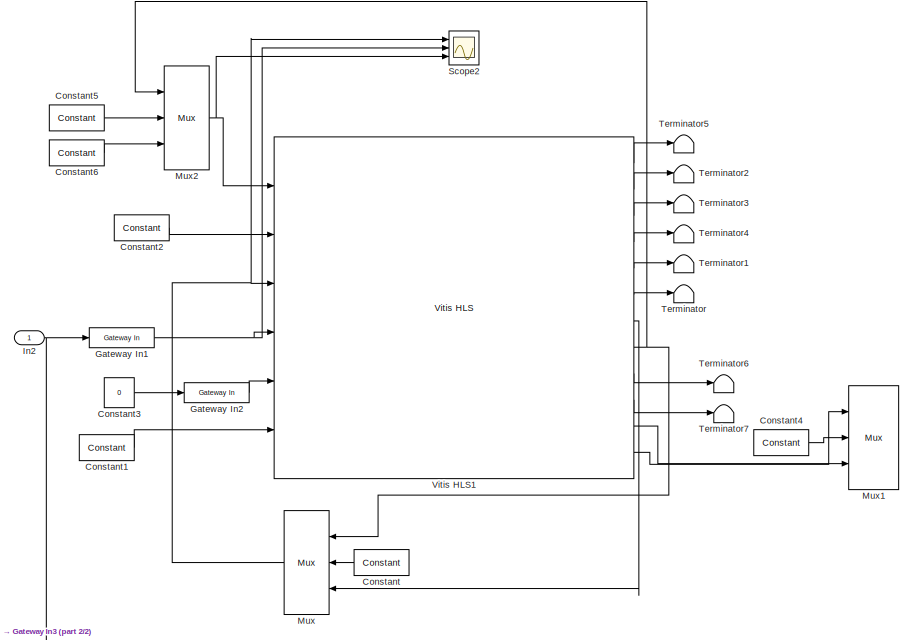
[diagram: Vectoring2 - part 1/2, full width, top band]
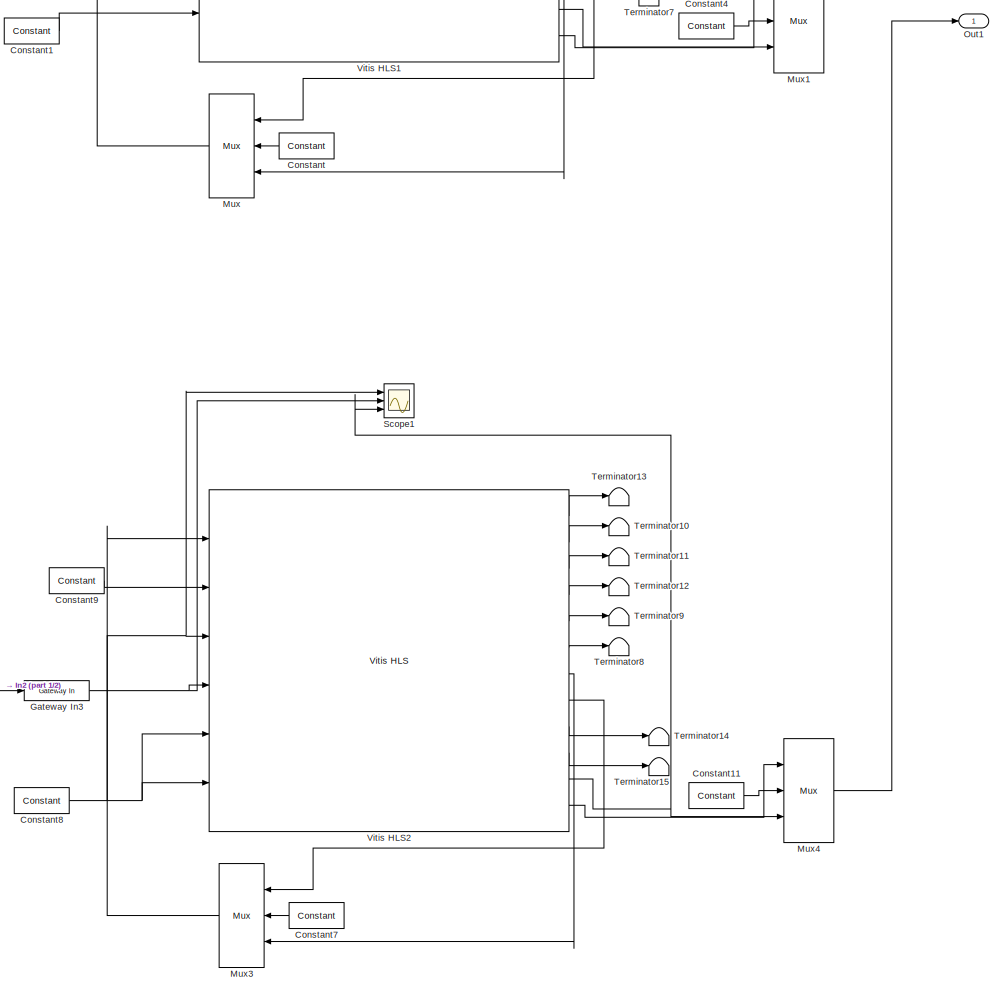
[diagram: Vectoring2 - part 2/2, full width, middle band]
BLOCK [SubSystem] Vectoring2
  Commented = on
  Ports = [1, 1]
  RequestExecContextInheritance = off
BLOCK [Reference] Vectoring2/Constant  REF=hdlBasic/Constant
  Commented = on
  NameLocation = top
  Ports = [0, 1]
  SourceBlock = hdlBasic/Constant
  SourceType = Constant Block Block
BLOCK [Reference] Vectoring2/Constant1  REF=hdlBasic/Constant
  Commented = on
  Ports = [0, 1]
  SourceBlock = hdlBasic/Constant
  SourceType = Constant Block Block
BLOCK [Reference] Vectoring2/Constant11  REF=hdlBasic/Constant
  Ports = [0, 1]
  SourceBlock = hdlBasic/Constant
  SourceType = Constant Block Block
BLOCK [Reference] Vectoring2/Constant2  REF=hdlBasic/Constant
  Commented = on
  Ports = [0, 1]
  SourceBlock = hdlBasic/Constant
  SourceType = Constant Block Block
BLOCK [Constant] Vectoring2/Constant3
  Commented = on
  Value = 0
BLOCK [Reference] Vectoring2/Constant4  REF=hdlBasic/Constant
  Commented = on
  Ports = [0, 1]
  SourceBlock = hdlBasic/Constant
  SourceType = Constant Block Block
BLOCK [Reference] Vectoring2/Constant5  REF=hdlBasic/Constant
  Commented = on
  Ports = [0, 1]
  SourceBlock = hdlBasic/Constant
  SourceType = Constant Block Block
BLOCK [Reference] Vectoring2/Constant6  REF=hdlBasic/Constant
  Commented = on
  Ports = [0, 1]
  SourceBlock = hdlBasic/Constant
  SourceType = Constant Block Block
BLOCK [Reference] Vectoring2/Constant7  REF=hdlBasic/Constant
  NameLocation = top
  Ports = [0, 1]
  SourceBlock = hdlBasic/Constant
  SourceType = Constant Block Block
BLOCK [Reference] Vectoring2/Constant8  REF=hdlBasic/Constant
  Ports = [0, 1]
  SourceBlock = hdlBasic/Constant
  SourceType = Constant Block Block
BLOCK [Reference] Vectoring2/Constant9  REF=hdlBasic/Constant
  Ports = [0, 1]
  SourceBlock = hdlBasic/Constant
  SourceType = Constant Block Block
BLOCK [Reference] Vectoring2/Gateway In1  REF=hdlBasic/Gateway In
  Commented = on
  Ports = [1, 1]
  SourceBlock = hdlBasic/Gateway In
  SourceType = Gateway In Block
BLOCK [Reference] Vectoring2/Gateway In2  REF=hdlBasic/Gateway In
  Commented = on
  Ports = [1, 1]
  SourceBlock = hdlBasic/Gateway In
  SourceType = Gateway In Block
BLOCK [Reference] Vectoring2/Gateway In3  REF=hdlBasic/Gateway In
  Ports = [1, 1]
  SourceBlock = hdlBasic/Gateway In
  SourceType = Gateway In Block
BLOCK [Inport] Vectoring2/In2
BLOCK [Reference] Vectoring2/Mux  REF=hdlBasic/Mux
  Commented = on
  NameLocation = top
  Ports = [3, 1]
  SourceBlock = hdlBasic/Mux
  SourceType = Bus Multiplexer Block
BLOCK [Reference] Vectoring2/Mux1  REF=hdlBasic/Mux
  Commented = on
  Ports = [3, 1]
  SourceBlock = hdlBasic/Mux
  SourceType = Bus Multiplexer Block
BLOCK [Reference] Vectoring2/Mux2  REF=hdlBasic/Mux
  Commented = on
  Ports = [3, 1]
  SourceBlock = hdlBasic/Mux
  SourceType = Bus Multiplexer Block
BLOCK [Reference] Vectoring2/Mux3  REF=hdlBasic/Mux
  NameLocation = top
  Ports = [3, 1]
  SourceBlock = hdlBasic/Mux
  SourceType = Bus Multiplexer Block
BLOCK [Reference] Vectoring2/Mux4  REF=hdlBasic/Mux
  Ports = [3, 1]
  SourceBlock = hdlBasic/Mux
  SourceType = Bus Multiplexer Block
BLOCK [Outport] Vectoring2/Out1
BLOCK [Scope] Vectoring2/Scope1
  Floating = off
  NumInputPorts = 3
  Ports = [3]
  ScopeSpecificationString = Simulink.scopes.TimeScopeBlockCfg('CurrentConfiguration', extmgr.ConfigurationSet(extmgr.Configuration('Core','General UI',true),extmgr.Configuration('Core','Source UI',true),extmgr.Configuration('Sources','WiredSimulink',true,'DataLoggingVariableName','ScopeData5'),extmgr.Configuration('Visuals','Time Domain',true,'SerializedDisplays',{struct('MinYLimReal','-0.17564','MaxYLimReal','1.5808','YLabe...<+1419ch>  <repeated x3 — deduplicated; at blocks: Scope1>
BLOCK [Scope] Vectoring2/Scope2
  Commented = on
  Floating = off
  NumInputPorts = 3
  Ports = [3]
  ScopeSpecificationString = Simulink.scopes.TimeScopeBlockCfg('CurrentConfiguration', extmgr.ConfigurationSet(extmgr.Configuration('Core','General UI',true),extmgr.Configuration('Core','Source UI',true),extmgr.Configuration('Sources','WiredSimulink',true,'DataLoggingVariableName','ScopeData2'),extmgr.Configuration('Visuals','Time Domain',true,'SerializedDisplays',{struct('MinYLimReal','-0.125','MaxYLimReal','1.125','YLabelRe...<+1401ch>  <repeated x4 — deduplicated; at blocks: Scope2>
BLOCK [Terminator] Vectoring2/Terminator
  Commented = on
BLOCK [Terminator] Vectoring2/Terminator1
  Commented = on
BLOCK [Terminator] Vectoring2/Terminator10
BLOCK [Terminator] Vectoring2/Terminator11
BLOCK [Terminator] Vectoring2/Terminator12
BLOCK [Terminator] Vectoring2/Terminator13
BLOCK [Terminator] Vectoring2/Terminator14
BLOCK [Terminator] Vectoring2/Terminator15
BLOCK [Terminator] Vectoring2/Terminator2
  Commented = on
BLOCK [Terminator] Vectoring2/Terminator3
  Commented = on
BLOCK [Terminator] Vectoring2/Terminator4
  Commented = on
BLOCK [Terminator] Vectoring2/Terminator5
  Commented = on
BLOCK [Terminator] Vectoring2/Terminator6
  Commented = on
BLOCK [Terminator] Vectoring2/Terminator7
  Commented = on
BLOCK [Terminator] Vectoring2/Terminator8
BLOCK [Terminator] Vectoring2/Terminator9
BLOCK [Reference] Vectoring2/Vitis HLS1  REF=hdlBasic/Vitis HLS
  Commented = on
  Ports = [6, 12]
  SourceBlock = hdlBasic/Vitis HLS
  SourceType = Xilinx High Level Synthesis Block
BLOCK [Reference] Vectoring2/Vitis HLS2  REF=hdlBasic/Vitis HLS
  Ports = [6, 12]
  SourceBlock = hdlBasic/Vitis HLS
  SourceType = Xilinx High Level Synthesis Block
BLOCK [SubSystem] Vectoring3
  Commented = on
  Ports = [1, 1]
  RequestExecContextInheritance = off
BLOCK [Reference] Vectoring3/Constant  REF=hdlBasic/Constant
  Commented = on
  NameLocation = top
  Ports = [0, 1]
  SourceBlock = hdlBasic/Constant
  SourceType = Constant Block Block
BLOCK [Reference] Vectoring3/Constant1  REF=hdlBasic/Constant
  Commented = on
  Ports = [0, 1]
  SourceBlock = hdlBasic/Constant
  SourceType = Constant Block Block
BLOCK [Reference] Vectoring3/Constant11  REF=hdlBasic/Constant
  Ports = [0, 1]
  SourceBlock = hdlBasic/Constant
  SourceType = Constant Block Block
BLOCK [Reference] Vectoring3/Constant2  REF=hdlBasic/Constant
  Commented = on
  Ports = [0, 1]
  SourceBlock = hdlBasic/Constant
  SourceType = Constant Block Block
BLOCK [Constant] Vectoring3/Constant3
  Commented = on
  Value = 0
BLOCK [Reference] Vectoring3/Constant4  REF=hdlBasic/Constant
  Commented = on
  Ports = [0, 1]
  SourceBlock = hdlBasic/Constant
  SourceType = Constant Block Block
BLOCK [Reference] Vectoring3/Constant5  REF=hdlBasic/Constant
  Commented = on
  Ports = [0, 1]
  SourceBlock = hdlBasic/Constant
  SourceType = Constant Block Block
BLOCK [Reference] Vectoring3/Constant6  REF=hdlBasic/Constant
  Commented = on
  Ports = [0, 1]
  SourceBlock = hdlBasic/Constant
  SourceType = Constant Block Block
BLOCK [Reference] Vectoring3/Constant7  REF=hdlBasic/Constant
  NameLocation = top
  Ports = [0, 1]
  SourceBlock = hdlBasic/Constant
  SourceType = Constant Block Block
BLOCK [Reference] Vectoring3/Constant8  REF=hdlBasic/Constant
  Ports = [0, 1]
  SourceBlock = hdlBasic/Constant
  SourceType = Constant Block Block
BLOCK [Reference] Vectoring3/Constant9  REF=hdlBasic/Constant
  Ports = [0, 1]
  SourceBlock = hdlBasic/Constant
  SourceType = Constant Block Block
BLOCK [Reference] Vectoring3/Gateway In1  REF=hdlBasic/Gateway In
  Commented = on
  Ports = [1, 1]
  SourceBlock = hdlBasic/Gateway In
  SourceType = Gateway In Block
BLOCK [Reference] Vectoring3/Gateway In2  REF=hdlBasic/Gateway In
  Commented = on
  Ports = [1, 1]
  SourceBlock = hdlBasic/Gateway In
  SourceType = Gateway In Block
BLOCK [Reference] Vectoring3/Gateway In3  REF=hdlBasic/Gateway In
  Ports = [1, 1]
  SourceBlock = hdlBasic/Gateway In
  SourceType = Gateway In Block
BLOCK [Inport] Vectoring3/In2
BLOCK [Reference] Vectoring3/Mux  REF=hdlBasic/Mux
  Commented = on
  NameLocation = top
  Ports = [3, 1]
  SourceBlock = hdlBasic/Mux
  SourceType = Bus Multiplexer Block
BLOCK [Reference] Vectoring3/Mux1  REF=hdlBasic/Mux
  Commented = on
  Ports = [3, 1]
  SourceBlock = hdlBasic/Mux
  SourceType = Bus Multiplexer Block
BLOCK [Reference] Vectoring3/Mux2  REF=hdlBasic/Mux
  Commented = on
  Ports = [3, 1]
  SourceBlock = hdlBasic/Mux
  SourceType = Bus Multiplexer Block
BLOCK [Reference] Vectoring3/Mux3  REF=hdlBasic/Mux
  NameLocation = top
  Ports = [3, 1]
  SourceBlock = hdlBasic/Mux
  SourceType = Bus Multiplexer Block
BLOCK [Reference] Vectoring3/Mux4  REF=hdlBasic/Mux
  Ports = [3, 1]
  SourceBlock = hdlBasic/Mux
  SourceType = Bus Multiplexer Block
BLOCK [Outport] Vectoring3/Out1
BLOCK [Scope] Vectoring3/Scope1
  Floating = off
  NumInputPorts = 3
  Ports = [3]
BLOCK [Scope] Vectoring3/Scope2
  Commented = on
  Floating = off
  NumInputPorts = 3
  Ports = [3]
BLOCK [Terminator] Vectoring3/Terminator
  Commented = on
BLOCK [Terminator] Vectoring3/Terminator1
  Commented = on
BLOCK [Terminator] Vectoring3/Terminator10
BLOCK [Terminator] Vectoring3/Terminator11
BLOCK [Terminator] Vectoring3/Terminator12
BLOCK [Terminator] Vectoring3/Terminator13
BLOCK [Terminator] Vectoring3/Terminator14
BLOCK [Terminator] Vectoring3/Terminator15
BLOCK [Terminator] Vectoring3/Terminator2
  Commented = on
BLOCK [Terminator] Vectoring3/Terminator3
  Commented = on
BLOCK [Terminator] Vectoring3/Terminator4
  Commented = on
BLOCK [Terminator] Vectoring3/Terminator5
  Commented = on
BLOCK [Terminator] Vectoring3/Terminator6
  Commented = on
BLOCK [Terminator] Vectoring3/Terminator7
  Commented = on
BLOCK [Terminator] Vectoring3/Terminator8
BLOCK [Terminator] Vectoring3/Terminator9
BLOCK [Reference] Vectoring3/Vitis HLS1  REF=hdlBasic/Vitis HLS
  Commented = on
  Ports = [6, 12]
  SourceBlock = hdlBasic/Vitis HLS
  SourceType = Xilinx High Level Synthesis Block
BLOCK [Reference] Vectoring3/Vitis HLS2  REF=hdlBasic/Vitis HLS
  Ports = [6, 12]
  SourceBlock = hdlBasic/Vitis HLS
  SourceType = Xilinx High Level Synthesis Block
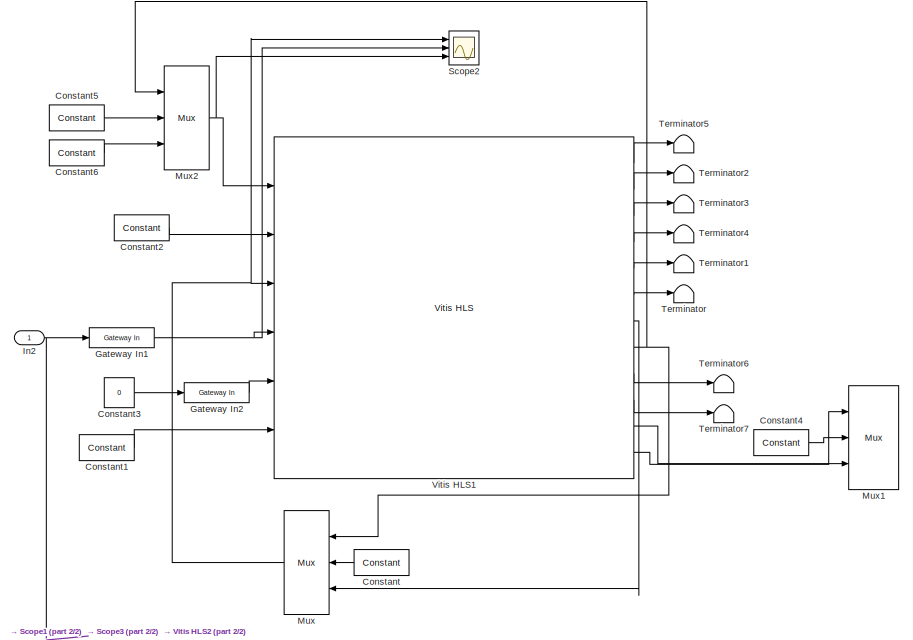
[diagram: Vectoring4 - part 1/2, full width, top band]
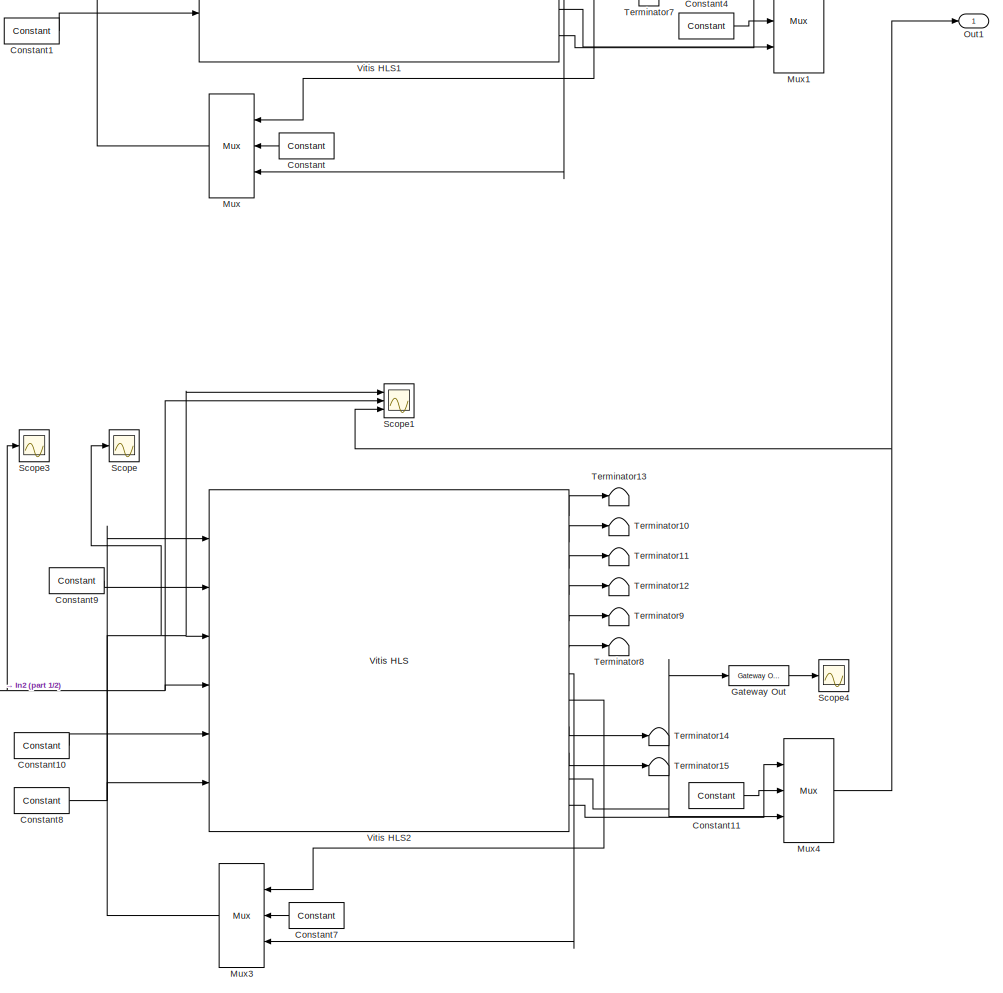
[diagram: Vectoring4 - part 2/2, full width, middle band]
BLOCK [SubSystem] Vectoring4
  Commented = on
  Ports = [1, 1]
  RequestExecContextInheritance = off
BLOCK [Reference] Vectoring4/Constant  REF=hdlBasic/Constant
  Commented = on
  NameLocation = top
  Ports = [0, 1]
  SourceBlock = hdlBasic/Constant
  SourceType = Constant Block Block
BLOCK [Reference] Vectoring4/Constant1  REF=hdlBasic/Constant
  Commented = on
  Ports = [0, 1]
  SourceBlock = hdlBasic/Constant
  SourceType = Constant Block Block
BLOCK [Reference] Vectoring4/Constant10  REF=hdlBasic/Constant
  Ports = [0, 1]
  SourceBlock = hdlBasic/Constant
  SourceType = Constant Block Block
BLOCK [Reference] Vectoring4/Constant11  REF=hdlBasic/Constant
  Ports = [0, 1]
  SourceBlock = hdlBasic/Constant
  SourceType = Constant Block Block
BLOCK [Reference] Vectoring4/Constant2  REF=hdlBasic/Constant
  Commented = on
  Ports = [0, 1]
  SourceBlock = hdlBasic/Constant
  SourceType = Constant Block Block
BLOCK [Constant] Vectoring4/Constant3
  Commented = on
  Value = 0
BLOCK [Reference] Vectoring4/Constant4  REF=hdlBasic/Constant
  Commented = on
  Ports = [0, 1]
  SourceBlock = hdlBasic/Constant
  SourceType = Constant Block Block
BLOCK [Reference] Vectoring4/Constant5  REF=hdlBasic/Constant
  Commented = on
  Ports = [0, 1]
  SourceBlock = hdlBasic/Constant
  SourceType = Constant Block Block
BLOCK [Reference] Vectoring4/Constant6  REF=hdlBasic/Constant
  Commented = on
  Ports = [0, 1]
  SourceBlock = hdlBasic/Constant
  SourceType = Constant Block Block
BLOCK [Reference] Vectoring4/Constant7  REF=hdlBasic/Constant
  NameLocation = top
  Ports = [0, 1]
  SourceBlock = hdlBasic/Constant
  SourceType = Constant Block Block
BLOCK [Reference] Vectoring4/Constant8  REF=hdlBasic/Constant
  Ports = [0, 1]
  SourceBlock = hdlBasic/Constant
  SourceType = Constant Block Block
BLOCK [Reference] Vectoring4/Constant9  REF=hdlBasic/Constant
  Ports = [0, 1]
  SourceBlock = hdlBasic/Constant
  SourceType = Constant Block Block
BLOCK [Reference] Vectoring4/Gateway In1  REF=hdlBasic/Gateway In
  Commented = on
  Ports = [1, 1]
  SourceBlock = hdlBasic/Gateway In
  SourceType = Gateway In Block
BLOCK [Reference] Vectoring4/Gateway In2  REF=hdlBasic/Gateway In
  Commented = on
  Ports = [1, 1]
  SourceBlock = hdlBasic/Gateway In
  SourceType = Gateway In Block
BLOCK [Reference] Vectoring4/Gateway Out  REF=hdlBasic/Gateway Out
  Ports = [1, 1]
  SourceBlock = hdlBasic/Gateway Out
  SourceType = Gateway Out Block
BLOCK [Inport] Vectoring4/In2
BLOCK [Reference] Vectoring4/Mux  REF=hdlBasic/Mux
  Commented = on
  NameLocation = top
  Ports = [3, 1]
  SourceBlock = hdlBasic/Mux
  SourceType = Bus Multiplexer Block
BLOCK [Reference] Vectoring4/Mux1  REF=hdlBasic/Mux
  Commented = on
  Ports = [3, 1]
  SourceBlock = hdlBasic/Mux
  SourceType = Bus Multiplexer Block
BLOCK [Reference] Vectoring4/Mux2  REF=hdlBasic/Mux
  Commented = on
  Ports = [3, 1]
  SourceBlock = hdlBasic/Mux
  SourceType = Bus Multiplexer Block
BLOCK [Reference] Vectoring4/Mux3  REF=hdlBasic/Mux
  NameLocation = top
  Ports = [3, 1]
  SourceBlock = hdlBasic/Mux
  SourceType = Bus Multiplexer Block
BLOCK [Reference] Vectoring4/Mux4  REF=hdlBasic/Mux
  Ports = [3, 1]
  SourceBlock = hdlBasic/Mux
  SourceType = Bus Multiplexer Block
BLOCK [Outport] Vectoring4/Out1
BLOCK [Scope] Vectoring4/Scope
  Floating = off
  NumInputPorts = 1
  Ports = [1]
  ScopeSpecificationString = Simulink.scopes.TimeScopeBlockCfg('CurrentConfiguration', extmgr.ConfigurationSet(extmgr.Configuration('Core','General UI',true),extmgr.Configuration('Core','Source UI',true),extmgr.Configuration('Sources','WiredSimulink',true,'DataLoggingVariableName','ScopeData6'),extmgr.Configuration('Visuals','Time Domain',true,'SerializedDisplays',{struct('MinYLimReal','-0.17639','MaxYLimReal','1.58752','YLab...<+1393ch>
BLOCK [Scope] Vectoring4/Scope1
  Floating = off
  NumInputPorts = 3
  Ports = [3]
  ScopeSpecificationString = Simulink.scopes.TimeScopeBlockCfg('CurrentConfiguration', extmgr.ConfigurationSet(extmgr.Configuration('Core','General UI',true),extmgr.Configuration('Core','Source UI',true),extmgr.Configuration('Sources','WiredSimulink',true,'DataLoggingVariableName','ScopeData5'),extmgr.Configuration('Visuals','Time Domain',true,'SerializedDisplays',{struct('MinYLimReal','-0.17639','MaxYLimReal','1.58752','YLab...<+2703ch>
BLOCK [Scope] Vectoring4/Scope2
  Commented = on
  Floating = off
  NumInputPorts = 3
  Ports = [3]
BLOCK [Scope] Vectoring4/Scope3
  Floating = off
  NumInputPorts = 1
  Ports = [1]
  ScopeSpecificationString = Simulink.scopes.TimeScopeBlockCfg('CurrentConfiguration', extmgr.ConfigurationSet(extmgr.Configuration('Core','General UI',true),extmgr.Configuration('Core','Source UI',true),extmgr.Configuration('Sources','WiredSimulink',true,'DataLoggingVariableName','ScopeData7'),extmgr.Configuration('Visuals','Time Domain',true,'SerializedDisplays',{struct('MinYLimReal','-0.125','MaxYLimReal','1.125','YLabelRe...<+1350ch>
BLOCK [Scope] Vectoring4/Scope4
  Floating = off
  NumInputPorts = 1
  Ports = [1]
  ScopeSpecificationString = Simulink.scopes.TimeScopeBlockCfg('CurrentConfiguration', extmgr.ConfigurationSet(extmgr.Configuration('Core','General UI',true),extmgr.Configuration('Core','Source UI',true),extmgr.Configuration('Sources','WiredSimulink',true,'DataLoggingVariableName','ScopeData8'),extmgr.Configuration('Visuals','Time Domain',true,'SerializedDisplays',{struct('MinYLimReal','-0.19601','MaxYLimReal','1.76657','YLab...<+1400ch>
BLOCK [Terminator] Vectoring4/Terminator
  Commented = on
BLOCK [Terminator] Vectoring4/Terminator1
  Commented = on
BLOCK [Terminator] Vectoring4/Terminator10
BLOCK [Terminator] Vectoring4/Terminator11
BLOCK [Terminator] Vectoring4/Terminator12
BLOCK [Terminator] Vectoring4/Terminator13
BLOCK [Terminator] Vectoring4/Terminator14
BLOCK [Terminator] Vectoring4/Terminator15
BLOCK [Terminator] Vectoring4/Terminator2
  Commented = on
BLOCK [Terminator] Vectoring4/Terminator3
  Commented = on
BLOCK [Terminator] Vectoring4/Terminator4
  Commented = on
BLOCK [Terminator] Vectoring4/Terminator5
  Commented = on
BLOCK [Terminator] Vectoring4/Terminator6
  Commented = on
BLOCK [Terminator] Vectoring4/Terminator7
  Commented = on
BLOCK [Terminator] Vectoring4/Terminator8
BLOCK [Terminator] Vectoring4/Terminator9
BLOCK [Reference] Vectoring4/Vitis HLS1  REF=hdlBasic/Vitis HLS
  Commented = on
  Ports = [6, 12]
  SourceBlock = hdlBasic/Vitis HLS
  SourceType = Xilinx High Level Synthesis Block
BLOCK [Reference] Vectoring4/Vitis HLS2  REF=hdlBasic/Vitis HLS
  Ports = [6, 12]
  SourceBlock = hdlBasic/Vitis HLS
  SourceType = Xilinx High Level Synthesis Block
BLOCK [SubSystem] Vectoring5
  Commented = on
  Ports = [1, 1]
  RequestExecContextInheritance = off
BLOCK [Reference] Vectoring5/Constant  REF=hdlBasic/Constant
  Commented = on
  NameLocation = top
  Ports = [0, 1]
  SourceBlock = hdlBasic/Constant
  SourceType = Constant Block Block
BLOCK [Reference] Vectoring5/Constant1  REF=hdlBasic/Constant
  Commented = on
  Ports = [0, 1]
  SourceBlock = hdlBasic/Constant
  SourceType = Constant Block Block
BLOCK [Reference] Vectoring5/Constant10  REF=hdlBasic/Constant
  Ports = [0, 1]
  SourceBlock = hdlBasic/Constant
  SourceType = Constant Block Block
BLOCK [Reference] Vectoring5/Constant11  REF=hdlBasic/Constant
  Ports = [0, 1]
  SourceBlock = hdlBasic/Constant
  SourceType = Constant Block Block
BLOCK [Reference] Vectoring5/Constant2  REF=hdlBasic/Constant
  Commented = on
  Ports = [0, 1]
  SourceBlock = hdlBasic/Constant
  SourceType = Constant Block Block
BLOCK [Constant] Vectoring5/Constant3
  Commented = on
  Value = 0
BLOCK [Reference] Vectoring5/Constant4  REF=hdlBasic/Constant
  Commented = on
  Ports = [0, 1]
  SourceBlock = hdlBasic/Constant
  SourceType = Constant Block Block
BLOCK [Reference] Vectoring5/Constant5  REF=hdlBasic/Constant
  Commented = on
  Ports = [0, 1]
  SourceBlock = hdlBasic/Constant
  SourceType = Constant Block Block
BLOCK [Reference] Vectoring5/Constant6  REF=hdlBasic/Constant
  Commented = on
  Ports = [0, 1]
  SourceBlock = hdlBasic/Constant
  SourceType = Constant Block Block
BLOCK [Reference] Vectoring5/Constant7  REF=hdlBasic/Constant
  NameLocation = top
  Ports = [0, 1]
  SourceBlock = hdlBasic/Constant
  SourceType = Constant Block Block
BLOCK [Reference] Vectoring5/Constant8  REF=hdlBasic/Constant
  Ports = [0, 1]
  SourceBlock = hdlBasic/Constant
  SourceType = Constant Block Block
BLOCK [Reference] Vectoring5/Constant9  REF=hdlBasic/Constant
  Ports = [0, 1]
  SourceBlock = hdlBasic/Constant
  SourceType = Constant Block Block
BLOCK [Reference] Vectoring5/Gateway In1  REF=hdlBasic/Gateway In
  Commented = on
  Ports = [1, 1]
  SourceBlock = hdlBasic/Gateway In
  SourceType = Gateway In Block
BLOCK [Reference] Vectoring5/Gateway In2  REF=hdlBasic/Gateway In
  Commented = on
  Ports = [1, 1]
  SourceBlock = hdlBasic/Gateway In
  SourceType = Gateway In Block
BLOCK [Inport] Vectoring5/In2
BLOCK [Reference] Vectoring5/Mux  REF=hdlBasic/Mux
  Commented = on
  NameLocation = top
  Ports = [3, 1]
  SourceBlock = hdlBasic/Mux
  SourceType = Bus Multiplexer Block
BLOCK [Reference] Vectoring5/Mux1  REF=hdlBasic/Mux
  Commented = on
  Ports = [3, 1]
  SourceBlock = hdlBasic/Mux
  SourceType = Bus Multiplexer Block
BLOCK [Reference] Vectoring5/Mux2  REF=hdlBasic/Mux
  Commented = on
  Ports = [3, 1]
  SourceBlock = hdlBasic/Mux
  SourceType = Bus Multiplexer Block
BLOCK [Reference] Vectoring5/Mux3  REF=hdlBasic/Mux
  NameLocation = top
  Ports = [3, 1]
  SourceBlock = hdlBasic/Mux
  SourceType = Bus Multiplexer Block
BLOCK [Reference] Vectoring5/Mux4  REF=hdlBasic/Mux
  Ports = [3, 1]
  SourceBlock = hdlBasic/Mux
  SourceType = Bus Multiplexer Block
BLOCK [Outport] Vectoring5/Out1
BLOCK [Scope] Vectoring5/Scope1
  Floating = off
  NumInputPorts = 3
  Ports = [3]
BLOCK [Scope] Vectoring5/Scope2
  Commented = on
  Floating = off
  NumInputPorts = 3
  Ports = [3]
BLOCK [Terminator] Vectoring5/Terminator
  Commented = on
BLOCK [Terminator] Vectoring5/Terminator1
  Commented = on
BLOCK [Terminator] Vectoring5/Terminator10
BLOCK [Terminator] Vectoring5/Terminator11
BLOCK [Terminator] Vectoring5/Terminator12
BLOCK [Terminator] Vectoring5/Terminator13
BLOCK [Terminator] Vectoring5/Terminator14
BLOCK [Terminator] Vectoring5/Terminator15
BLOCK [Terminator] Vectoring5/Terminator2
  Commented = on
BLOCK [Terminator] Vectoring5/Terminator3
  Commented = on
BLOCK [Terminator] Vectoring5/Terminator4
  Commented = on
BLOCK [Terminator] Vectoring5/Terminator5
  Commented = on
BLOCK [Terminator] Vectoring5/Terminator6
  Commented = on
BLOCK [Terminator] Vectoring5/Terminator7
  Commented = on
BLOCK [Terminator] Vectoring5/Terminator8
BLOCK [Terminator] Vectoring5/Terminator9
BLOCK [Reference] Vectoring5/Vitis HLS1  REF=hdlBasic/Vitis HLS
  Commented = on
  Ports = [6, 12]
  SourceBlock = hdlBasic/Vitis HLS
  SourceType = Xilinx High Level Synthesis Block
BLOCK [Reference] Vectoring5/Vitis HLS2  REF=hdlBasic/Vitis HLS
  Ports = [6, 12]
  SourceBlock = hdlBasic/Vitis HLS
  SourceType = Xilinx High Level Synthesis Block
BLOCK [SubSystem] Vectoring6
  Commented = on
  Ports = [1, 2]
  RequestExecContextInheritance = off
BLOCK [Reference] Vectoring6/Constant10  REF=hdlBasic/Constant
  Ports = [0, 1]
  SourceBlock = hdlBasic/Constant
  SourceType = Constant Block Block
BLOCK [Reference] Vectoring6/Constant11  REF=hdlBasic/Constant
  Ports = [0, 1]
  SourceBlock = hdlBasic/Constant
  SourceType = Constant Block Block
BLOCK [Reference] Vectoring6/Constant8  REF=hdlBasic/Constant
  Ports = [0, 1]
  SourceBlock = hdlBasic/Constant
  SourceType = Constant Block Block
BLOCK [Reference] Vectoring6/Constant9  REF=hdlBasic/Constant
  Ports = [0, 1]
  SourceBlock = hdlBasic/Constant
  SourceType = Constant Block Block
BLOCK [Inport] Vectoring6/In2
BLOCK [Reference] Vectoring6/Mux4  REF=hdlBasic/Mux
  Ports = [3, 1]
  SourceBlock = hdlBasic/Mux
  SourceType = Bus Multiplexer Block
BLOCK [Outport] Vectoring6/Out1
BLOCK [Outport] Vectoring6/Out2
  Port = 2
BLOCK [Reference] Vectoring6/Register  REF=hdlBasic/Register
  NameLocation = top
  Ports = [2, 1]
  SourceBlock = hdlBasic/Register
  SourceType = Register Block
BLOCK [Scope] Vectoring6/Scope
  Floating = off
  NumInputPorts = 2
  Ports = [2]
  ScopeSpecificationString = Simulink.scopes.TimeScopeBlockCfg('CurrentConfiguration', extmgr.ConfigurationSet(extmgr.Configuration('Core','General UI',true),extmgr.Configuration('Core','Source UI',true),extmgr.Configuration('Sources','WiredSimulink',true),extmgr.Configuration('Visuals','Time Domain',true,'SerializedDisplays',{struct('MinYLimReal','-0.10744','MaxYLimReal','0.96693','YLabelReal','','MinYLimMag','0.00000','MaxY...<+1334ch>
BLOCK [Terminator] Vectoring6/Terminator10
BLOCK [Terminator] Vectoring6/Terminator11
BLOCK [Terminator] Vectoring6/Terminator12
BLOCK [Terminator] Vectoring6/Terminator13
BLOCK [Terminator] Vectoring6/Terminator14
BLOCK [Terminator] Vectoring6/Terminator15
BLOCK [Terminator] Vectoring6/Terminator8
BLOCK [Terminator] Vectoring6/Terminator9
BLOCK [Reference] Vectoring6/Vitis HLS2  REF=hdlBasic/Vitis HLS
  Ports = [6, 12]
  SourceBlock = hdlBasic/Vitis HLS
  SourceType = Xilinx High Level Synthesis Block
BLOCK [SubSystem] Vectoring7
  Commented = on
  Ports = [1, 2]
  RequestExecContextInheritance = off
BLOCK [Reference] Vectoring7/Constant10  REF=hdlBasic/Constant
  Ports = [0, 1]
  SourceBlock = hdlBasic/Constant
  SourceType = Constant Block Block
BLOCK [Reference] Vectoring7/Constant11  REF=hdlBasic/Constant
  Ports = [0, 1]
  SourceBlock = hdlBasic/Constant
  SourceType = Constant Block Block
BLOCK [Reference] Vectoring7/Constant8  REF=hdlBasic/Constant
  Ports = [0, 1]
  SourceBlock = hdlBasic/Constant
  SourceType = Constant Block Block
BLOCK [Reference] Vectoring7/Constant9  REF=hdlBasic/Constant
  Ports = [0, 1]
  SourceBlock = hdlBasic/Constant
  SourceType = Constant Block Block
BLOCK [Inport] Vectoring7/In2
BLOCK [Reference] Vectoring7/Mux4  REF=hdlBasic/Mux
  Ports = [3, 1]
  SourceBlock = hdlBasic/Mux
  SourceType = Bus Multiplexer Block
BLOCK [Outport] Vectoring7/Out1
BLOCK [Outport] Vectoring7/Out2
  Port = 2
BLOCK [Reference] Vectoring7/Register  REF=hdlBasic/Register
  NameLocation = top
  Ports = [2, 1]
  SourceBlock = hdlBasic/Register
  SourceType = Register Block
BLOCK [Scope] Vectoring7/Scope
  Floating = off
  NumInputPorts = 2
  Ports = [2]
  ScopeSpecificationString = Simulink.scopes.TimeScopeBlockCfg('CurrentConfiguration', extmgr.ConfigurationSet(extmgr.Configuration('Core','General UI',true),extmgr.Configuration('Core','Source UI',true),extmgr.Configuration('Sources','WiredSimulink',true),extmgr.Configuration('Visuals','Time Domain',true,'SerializedDisplays',{struct('MinYLimReal','-0.00352','MaxYLimReal','0.03172','YLabelReal','','MinYLimMag','0.00000','MaxY...<+1364ch>
BLOCK [Terminator] Vectoring7/Terminator10
BLOCK [Terminator] Vectoring7/Terminator11
BLOCK [Terminator] Vectoring7/Terminator12
BLOCK [Terminator] Vectoring7/Terminator13
BLOCK [Terminator] Vectoring7/Terminator14
BLOCK [Terminator] Vectoring7/Terminator15
BLOCK [Terminator] Vectoring7/Terminator8
BLOCK [Terminator] Vectoring7/Terminator9
BLOCK [Reference] Vectoring7/Vitis HLS2  REF=hdlBasic/Vitis HLS
  Ports = [6, 12]
  SourceBlock = hdlBasic/Vitis HLS
  SourceType = Xilinx High Level Synthesis Block
BLOCK [SubSystem] Vectoring8
  Commented = on
  Ports = [2, 3]
  RequestExecContextInheritance = off
BLOCK [Reference] Vectoring8/Constant1  REF=hdlBasic/Constant
  Ports = [0, 1]
  SourceBlock = hdlBasic/Constant
  SourceType = Constant Block Block
BLOCK [Reference] Vectoring8/Constant10  REF=hdlBasic/Constant
  Ports = [0, 1]
  SourceBlock = hdlBasic/Constant
  SourceType = Constant Block Block
BLOCK [Reference] Vectoring8/Constant11  REF=hdlBasic/Constant
  Ports = [0, 1]
  SourceBlock = hdlBasic/Constant
  SourceType = Constant Block Block
BLOCK [Reference] Vectoring8/Constant8  REF=hdlBasic/Constant
  Ports = [0, 1]
  SourceBlock = hdlBasic/Constant
  SourceType = Constant Block Block
BLOCK [Reference] Vectoring8/Constant9  REF=hdlBasic/Constant
  Ports = [0, 1]
  SourceBlock = hdlBasic/Constant
  SourceType = Constant Block Block
BLOCK [Reference] Vectoring8/Delay  REF=hdlBasic/Delay
  Ports = [1, 1]
  SourceBlock = hdlBasic/Delay
  SourceType = Delay Block
BLOCK [Reference] Vectoring8/Gateway Out43  REF=hdlBasic/Gateway Out
  Ports = [1, 1]
  SourceBlock = hdlBasic/Gateway Out
  SourceType = Gateway Out Block
BLOCK [Inport] Vectoring8/In1
BLOCK [Inport] Vectoring8/In2
  Port = 2
BLOCK [Reference] Vectoring8/Mux  REF=hdlBasic/Mux
  Ports = [3, 1]
  SourceBlock = hdlBasic/Mux
  SourceType = Bus Multiplexer Block
BLOCK [Reference] Vectoring8/Mux4  REF=hdlBasic/Mux
  Ports = [3, 1]
  SourceBlock = hdlBasic/Mux
  SourceType = Bus Multiplexer Block
BLOCK [Outport] Vectoring8/Out1
BLOCK [Outport] Vectoring8/Out2
  Port = 3
BLOCK [Outport] Vectoring8/Out3
  Port = 2
BLOCK [Reference] Vectoring8/Register  REF=hdlBasic/Register
  NameLocation = top
  Ports = [2, 1]
  SourceBlock = hdlBasic/Register
  SourceType = Register Block
BLOCK [Scope] Vectoring8/Scope
  Floating = off
  NumInputPorts = 2
  Ports = [2]
BLOCK [Terminator] Vectoring8/Terminator10
BLOCK [Terminator] Vectoring8/Terminator11
BLOCK [Terminator] Vectoring8/Terminator12
BLOCK [Terminator] Vectoring8/Terminator13
BLOCK [Terminator] Vectoring8/Terminator14
BLOCK [Terminator] Vectoring8/Terminator15
BLOCK [Terminator] Vectoring8/Terminator8
BLOCK [Terminator] Vectoring8/Terminator9
BLOCK [ToWorkspace] Vectoring8/To Workspace12
  FixptAsFi = on
  MaxDataPoints = inf
  Ports = [1]
  SampleTime = -1
  SaveFormat = Timeseries
  VariableName = simout12
BLOCK [Reference] Vectoring8/Vitis HLS2  REF=hdlBasic/Vitis HLS
  Ports = [6, 12]
  SourceBlock = hdlBasic/Vitis HLS
  SourceType = Xilinx High Level Synthesis Block
BLOCK [SubSystem] Vectoring9
  Commented = on
  Ports = [2, 3]
  RequestExecContextInheritance = off
BLOCK [Reference] Vectoring9/Constant1  REF=hdlBasic/Constant
  Ports = [0, 1]
  SourceBlock = hdlBasic/Constant
  SourceType = Constant Block Block
BLOCK [Reference] Vectoring9/Constant10  REF=hdlBasic/Constant
  Ports = [0, 1]
  SourceBlock = hdlBasic/Constant
  SourceType = Constant Block Block
BLOCK [Reference] Vectoring9/Constant11  REF=hdlBasic/Constant
  Ports = [0, 1]
  SourceBlock = hdlBasic/Constant
  SourceType = Constant Block Block
BLOCK [Reference] Vectoring9/Constant8  REF=hdlBasic/Constant
  Ports = [0, 1]
  SourceBlock = hdlBasic/Constant
  SourceType = Constant Block Block
BLOCK [Reference] Vectoring9/Constant9  REF=hdlBasic/Constant
  Ports = [0, 1]
  SourceBlock = hdlBasic/Constant
  SourceType = Constant Block Block
BLOCK [Reference] Vectoring9/Delay  REF=hdlBasic/Delay
  Ports = [1, 1]
  SourceBlock = hdlBasic/Delay
  SourceType = Delay Block
BLOCK [Reference] Vectoring9/Gateway Out43  REF=hdlBasic/Gateway Out
  Ports = [1, 1]
  SourceBlock = hdlBasic/Gateway Out
  SourceType = Gateway Out Block
BLOCK [Inport] Vectoring9/In1
BLOCK [Inport] Vectoring9/In2
  Port = 2
BLOCK [Reference] Vectoring9/Mux  REF=hdlBasic/Mux
  Ports = [3, 1]
  SourceBlock = hdlBasic/Mux
  SourceType = Bus Multiplexer Block
BLOCK [Reference] Vectoring9/Mux4  REF=hdlBasic/Mux
  Ports = [3, 1]
  SourceBlock = hdlBasic/Mux
  SourceType = Bus Multiplexer Block
BLOCK [Outport] Vectoring9/Out1
BLOCK [Outport] Vectoring9/Out2
  Port = 3
BLOCK [Outport] Vectoring9/Out3
  Port = 2
BLOCK [Reference] Vectoring9/Register  REF=hdlBasic/Register
  NameLocation = top
  Ports = [2, 1]
  SourceBlock = hdlBasic/Register
  SourceType = Register Block
BLOCK [Scope] Vectoring9/Scope
  Floating = off
  NumInputPorts = 2
  Ports = [2]
BLOCK [Terminator] Vectoring9/Terminator10
BLOCK [Terminator] Vectoring9/Terminator11
BLOCK [Terminator] Vectoring9/Terminator12
BLOCK [Terminator] Vectoring9/Terminator13
BLOCK [Terminator] Vectoring9/Terminator14
BLOCK [Terminator] Vectoring9/Terminator15
BLOCK [Terminator] Vectoring9/Terminator8
BLOCK [Terminator] Vectoring9/Terminator9
BLOCK [ToWorkspace] Vectoring9/To Workspace12
  FixptAsFi = on
  MaxDataPoints = inf
  Ports = [1]
  SampleTime = -1
  SaveFormat = Timeseries
  VariableName = simout12
BLOCK [Reference] Vectoring9/Vitis HLS2  REF=hdlBasic/Vitis HLS
  Ports = [6, 12]
  SourceBlock = hdlBasic/Vitis HLS
  SourceType = Xilinx High Level Synthesis Block
BLOCK [Reference] Vitis HLS  REF=hdlBasic/Vitis HLS
  Commented = on
  Ports = [6, 12]
  SourceBlock = hdlBasic/Vitis HLS
  SourceType = Xilinx High Level Synthesis Block
BLOCK [Reference] Vitis HLS1  REF=hdlBasic/Vitis HLS
  Commented = on
  Ports = [6, 12]
  SourceBlock = hdlBasic/Vitis HLS
  SourceType = Xilinx High Level Synthesis Block
BLOCK [Reference] Vitis HLS2  REF=hdlBasic/Vitis HLS
  Commented = on
  Ports = [6, 11]
  SourceBlock = hdlBasic/Vitis HLS
  SourceType = Xilinx High Level Synthesis Block
BLOCK [Reference] ctrl  REF=hdlBasic/Gateway In
  NameLocation = left
  Ports = [1, 1]
  SourceBlock = hdlBasic/Gateway In
  SourceType = Gateway In Block
BLOCK [Reference] ctrl1  REF=hdlBasic/Gateway In
  Commented = on
  NameLocation = left
  Ports = [1, 1]
  SourceBlock = hdlBasic/Gateway In
  SourceType = Gateway In Block
LINE Constant10:1 -> Vitis HLS2:5
LINE Constant11:1 -> Mux1:2
NET Constant12:1 -> Vitis HLS2:1, Vitis HLS2:6
LINE Constant13:1 -> Vitis HLS2:2
LINE Constant14:1 -> Vitis HLS2:3
LINE Constant1:1 -> Mux:3
LINE Constant2:1 -> Gateway In1:1
LINE Constant3:1 -> Gateway In11:1
LINE Constant4:1 -> Mux2:2
LINE Constant5:1 -> Gateway In5:1
LINE Constant6:1 -> Mux3:2
LINE Constant7:1 -> Mux4:2
LINE Constant8:1 -> Mux5:2
LINE Constant9:1 -> Mux6:2
LINE Constant:1 -> Mux:2
LINE From Workspace10:1 -> Rotation5:2
LINE From Workspace11:1 -> Gateway In6:1
LINE From Workspace12:1 -> Gateway In10:1
LINE From Workspace13:1 -> Gateway In8:1
LINE From Workspace14:1 -> Gateway In7:1
LINE From Workspace15:1 -> Rotation7:2
LINE From Workspace16:1 -> Rotation8:2
LINE From Workspace17:1 -> Gateway In15:1
LINE From Workspace18:1 -> Gateway In12:1
LINE From Workspace19:1 -> Gateway In13:1
LINE From Workspace1:1 -> Gateway In2:1
LINE From Workspace20:1 -> Gateway In14:1
LINE From Workspace21:1 -> Gateway In16:1
NET From Workspace22:1 -> Gateway In17:1, Scope17:1
LINE From Workspace23:1 -> Gateway In18:1
LINE From Workspace24:1 -> Gateway In19:1
LINE From Workspace25:1 -> Gateway In20:1
LINE From Workspace26:1 -> Gateway In21:1
LINE From Workspace27:1 -> Gateway In22:1
LINE From Workspace28:1 -> Gateway In23:1
LINE From Workspace29:1 -> Gateway In24:1
LINE From Workspace2:1 -> Gateway In9:1
LINE From Workspace30:1 -> Gateway In25:1
LINE From Workspace31:1 -> Gateway In26:1
LINE From Workspace32:1 -> Gateway In27:1
LINE From Workspace33:1 -> Gateway In28:1
LINE From Workspace34:1 -> Gateway In29:1
LINE From Workspace35:1 -> Gateway In30:1
LINE From Workspace36:1 -> Gateway In31:1
LINE From Workspace37:1 -> Gateway In32:1
LINE From Workspace38:1 -> ctrl:1
LINE From Workspace39:1 -> Gateway In34:1
LINE From Workspace3:1 -> Gateway In4:1
LINE From Workspace40:1 -> Gateway In35:1
LINE From Workspace41:1 -> Gateway In36:1
LINE From Workspace42:1 -> Gateway In37:1
LINE From Workspace43:1 -> Gateway In33:1
LINE From Workspace44:1 -> ctrl1:1
LINE From Workspace4:1 -> Gateway In3:1
LINE From Workspace5:1 -> Vectoring:1
LINE From Workspace6:1 -> Rotation:2
LINE From Workspace7:1 -> Rotation1:2
LINE From Workspace8:1 -> Rotation2:2
LINE From Workspace9:1 -> Vectoring2:1
LINE Gateway In10:1 -> Vitis HLS1:6
LINE Gateway In11:1 -> Vitis HLS1:1
NET Gateway In12:1 -> Rotation10:2, Scope11:1
NET Gateway In13:1 -> Rotation11:2, Scope4:1
NET Gateway In14:1 -> Rotation12:2, Scope5:1
NET Gateway In15:1 -> Scope10:1, Vectoring4:1
LINE Gateway In16:1 -> Register:2
LINE Gateway In17:1 -> Register:1
LINE Gateway In18:1 -> Vectoring6:1
LINE Gateway In19:1 -> Rotation13:2
LINE Gateway In1:1 -> Vitis HLS:2
LINE Gateway In20:1 -> Vectoring8:2
LINE Gateway In21:1 -> Rotation16:3
LINE Gateway In22:1 -> Rotation17:3
LINE Gateway In23:1 -> Rotation19:2
LINE Gateway In24:1 -> Rotation22:2
LINE Gateway In25:1 -> Rotation25:2
LINE Gateway In26:1 -> Rotation28:2
LINE Gateway In27:1 -> Rotation31:2
LINE Gateway In28:1 -> Vectoring8:1
LINE Gateway In29:1 -> Vectoring14:2
LINE Gateway In2:1 -> Vitis HLS:4
LINE Gateway In30:1 -> Rotation34:3
LINE Gateway In31:1 -> Rotation35:3
LINE Gateway In32:1 -> Rotation36:3
LINE Gateway In33:1 -> Vitis HLS2:4
LINE Gateway In34:1 -> Rotation40:3
LINE Gateway In35:1 -> Rotation41:3
LINE Gateway In36:1 -> Rotation42:3
LINE Gateway In37:1 -> Rotation43:3
LINE Gateway In3:1 -> Vitis HLS:3
NET Gateway In4:1 -> Scope3:1, Vitis HLS:5
LINE Gateway In5:1 -> Vitis HLS1:2
LINE Gateway In6:1 -> Vitis HLS1:4
LINE Gateway In7:1 -> Vitis HLS1:3
NET Gateway In8:1 -> Scope8:1, Vitis HLS1:5
LINE Gateway In9:1 -> Vitis HLS:6
LINE Gateway Out10:1 -> Scope6:1
LINE Gateway Out11:1 -> To Workspace:1
LINE Gateway Out12:1 -> To Workspace1:1
LINE Gateway Out13:1 -> To Workspace3:1
LINE Gateway Out14:1 -> To Workspace2:1
LINE Gateway Out15:1 -> To Workspace4:1
LINE Gateway Out16:1 -> Scope6:2
LINE Gateway Out17:1 -> Scope2:3
LINE Gateway Out18:1 -> Terminator9:1
LINE Gateway Out19:1 -> Scope9:1
LINE Gateway Out1:1 -> Terminator4:1
LINE Gateway Out20:1 -> Scope9:2
LINE Gateway Out21:1 -> Terminator8:1
LINE Gateway Out22:1 -> Terminator7:1
LINE Gateway Out23:1 -> Terminator6:1
LINE Gateway Out24:1 -> Terminator5:1
LINE Gateway Out25:1 -> Scope2:1
LINE Gateway Out26:1 -> Scope2:2
LINE Gateway Out27:1 -> Scope7:1
LINE Gateway Out28:1 -> Scope7:2
LINE Gateway Out29:1 -> To Workspace5:1
LINE Gateway Out2:1 -> Terminator3:1
LINE Gateway Out30:1 -> To Workspace7:1
LINE Gateway Out31:1 -> To Workspace6:1
LINE Gateway Out32:1 -> To Workspace8:1
LINE Gateway Out33:1 -> To Workspace9:1
LINE Gateway Out34:1 -> To Workspace10:1
LINE Gateway Out35:1 -> To Workspace11:1
LINE Gateway Out36:1 -> Scope16:1
LINE Gateway Out37:1 -> Scope18:1
LINE Gateway Out38:1 -> Scope20:1
LINE Gateway Out39:1 -> To Workspace19:1
LINE Gateway Out3:1 -> Terminator2:1
LINE Gateway Out40:1 -> To Workspace18:1
LINE Gateway Out41:1 -> To Workspace17:1
LINE Gateway Out42:1 -> Scope32:1
NET Gateway Out43:1 -> Scope65:1, To Workspace12:1
LINE Gateway Out44:1 -> To Workspace16:1
LINE Gateway Out45:1 -> To Workspace15:1
LINE Gateway Out46:1 -> To Workspace14:1
NET Gateway Out47:1 -> Scope25:1, To Workspace13:1
NET Gateway Out48:1 -> Scope72:1, To Workspace20:1
NET Gateway Out49:1 -> Scope73:1, To Workspace21:1
LINE Gateway Out4:1 -> Terminator1:1
NET Gateway Out50:1 -> Scope74:1, To Workspace22:1
NET Gateway Out51:1 -> Scope75:1, To Workspace23:1
LINE Gateway Out52:1 -> To Workspace24:1
LINE Gateway Out5:1 -> Terminator:1
LINE Gateway Out6:1 -> Scope:1
LINE Gateway Out7:1 -> Scope:2
LINE Gateway Out8:1 -> Scope1:1
LINE Gateway Out9:1 -> Scope1:2
LINE Gateway Out:1 -> Scope:3
LINE Mux1:1 -> Negate1:1
LINE Mux2:1 -> Negate2:1
LINE Mux3:1 -> Negate3:1
LINE Mux4:1 -> Negate4:1
LINE Mux5:1 -> Negate5:1
LINE Mux6:1 -> Gateway Out52:1
LINE Mux:1 -> Vitis HLS:1
LINE Negate1:1 -> Gateway Out43:1
LINE Negate2:1 -> Gateway Out48:1
LINE Negate3:1 -> Gateway Out49:1
LINE Negate4:1 -> Gateway Out50:1
LINE Negate5:1 -> Gateway Out51:1
LINE Negate:1 -> Scope22:1
LINE Register:1 -> Gateway Out36:1
LINE Rotation/Constant2:1 -> Rotation/Gateway In4:1
LINE Rotation/Constant3:1 -> Rotation/Gateway In5:1
LINE Rotation/Constant4:1 -> Rotation/Gateway In6:1
LINE Rotation/Delay:1 -> Rotation/Out1:1
NET Rotation/Gateway In1:1 -> Rotation/Register:1, Rotation/Vitis HLS1:4
NET Rotation/Gateway In2:1 -> Rotation/Delay:1, Rotation/Vitis HLS1:5
LINE Rotation/Gateway In4:1 -> Rotation/Vitis HLS1:6
LINE Rotation/Gateway In5:1 -> Rotation/Vitis HLS1:1
LINE Rotation/Gateway In6:1 -> Rotation/Vitis HLS1:2
LINE Rotation/Gateway In7:1 -> Rotation/Vitis HLS1:3
LINE Rotation/In2:1 -> Rotation/Gateway In1:1
LINE Rotation/In3:1 -> Rotation/Gateway In2:1
LINE Rotation/Register:1 -> Rotation/Gateway In7:1
LINE Rotation/Vitis HLS1:1 -> Rotation/Scope:1
LINE Rotation/Vitis HLS1:10 -> Rotation/Scope:8
LINE Rotation/Vitis HLS1:11 -> Rotation/Scope:9
LINE Rotation/Vitis HLS1:12 -> Rotation/Scope:10
LINE Rotation/Vitis HLS1:2 -> Rotation/Scope:2
LINE Rotation/Vitis HLS1:3 -> Rotation/Scope:3
LINE Rotation/Vitis HLS1:4 -> Rotation/Scope:4
LINE Rotation/Vitis HLS1:5 -> Rotation/Scope:5
LINE Rotation/Vitis HLS1:6 -> Rotation/Scope:6
LINE Rotation/Vitis HLS1:7 -> Rotation/Scope:11
LINE Rotation/Vitis HLS1:8 -> Rotation/Scope:7
LINE Rotation/Vitis HLS1:9 -> Rotation/Out9:1
LINE Rotation1/Constant2:1 -> Rotation1/Gateway In4:1
LINE Rotation1/Constant3:1 -> Rotation1/Gateway In5:1
LINE Rotation1/Constant4:1 -> Rotation1/Gateway In6:1
LINE Rotation1/Delay:1 -> Rotation1/Out1:1
NET Rotation1/Gateway In1:1 -> Rotation1/Register:1, Rotation1/Vitis HLS1:4
NET Rotation1/Gateway In2:1 -> Rotation1/Delay:1, Rotation1/Vitis HLS1:5
LINE Rotation1/Gateway In4:1 -> Rotation1/Vitis HLS1:6
LINE Rotation1/Gateway In5:1 -> Rotation1/Vitis HLS1:1
LINE Rotation1/Gateway In6:1 -> Rotation1/Vitis HLS1:2
LINE Rotation1/Gateway In7:1 -> Rotation1/Vitis HLS1:3
LINE Rotation1/In2:1 -> Rotation1/Gateway In1:1
LINE Rotation1/In3:1 -> Rotation1/Gateway In2:1
LINE Rotation1/Register:1 -> Rotation1/Gateway In7:1
LINE Rotation1/Vitis HLS1:1 -> Rotation1/Scope:1
LINE Rotation1/Vitis HLS1:10 -> Rotation1/Scope:8
LINE Rotation1/Vitis HLS1:11 -> Rotation1/Scope:9
LINE Rotation1/Vitis HLS1:12 -> Rotation1/Scope:10
LINE Rotation1/Vitis HLS1:2 -> Rotation1/Scope:2
LINE Rotation1/Vitis HLS1:3 -> Rotation1/Scope:3
LINE Rotation1/Vitis HLS1:4 -> Rotation1/Scope:4
LINE Rotation1/Vitis HLS1:5 -> Rotation1/Scope:5
LINE Rotation1/Vitis HLS1:6 -> Rotation1/Scope:6
LINE Rotation1/Vitis HLS1:7 -> Rotation1/Scope:11
LINE Rotation1/Vitis HLS1:8 -> Rotation1/Scope:7
LINE Rotation1/Vitis HLS1:9 -> Rotation1/Out9:1
LINE Rotation10/Constant1:1 -> Rotation10/Mux1:2
LINE Rotation10/Constant3:1 -> Rotation10/Vitis HLS1:1
NET Rotation10/Constant:1 -> Rotation10/Vitis HLS1:2, Rotation10/Vitis HLS1:6
LINE Rotation10/Delay:1 -> Rotation10/Out1:1
LINE Rotation10/In2:1 -> Rotation10/Vitis HLS1:4
NET Rotation10/In3:1 -> Rotation10/Delay:1, Rotation10/Vitis HLS1:5
NET Rotation10/Mux1:1 -> Rotation10/Out2:1, Rotation10/Vitis HLS1:3
LINE Rotation10/Vitis HLS1:1 -> Rotation10/Terminator:1
LINE Rotation10/Vitis HLS1:10 -> Rotation10/Terminator6:1
LINE Rotation10/Vitis HLS1:11 -> Rotation10/Terminator7:1
LINE Rotation10/Vitis HLS1:12 -> Rotation10/Terminator16:1
LINE Rotation10/Vitis HLS1:2 -> Rotation10/Terminator1:1
LINE Rotation10/Vitis HLS1:3 -> Rotation10/Terminator2:1
LINE Rotation10/Vitis HLS1:4 -> Rotation10/Terminator3:1
LINE Rotation10/Vitis HLS1:5 -> Rotation10/Terminator4:1
LINE Rotation10/Vitis HLS1:6 -> Rotation10/Terminator5:1
LINE Rotation10/Vitis HLS1:7 -> Rotation10/Mux1:3
LINE Rotation10/Vitis HLS1:8 -> Rotation10/Mux1:1
LINE Rotation10/Vitis HLS1:9 -> Rotation10/Out9:1
NET Rotation10:1 -> Rotation11:1, Scope4:2
LINE Rotation10:2 -> Vectoring5:1
LINE Rotation10:3 -> Scope11:3
LINE Rotation11/Constant1:1 -> Rotation11/Mux1:2
LINE Rotation11/Constant3:1 -> Rotation11/Vitis HLS1:1
NET Rotation11/Constant:1 -> Rotation11/Vitis HLS1:2, Rotation11/Vitis HLS1:6
LINE Rotation11/Delay:1 -> Rotation11/Out1:1
LINE Rotation11/In2:1 -> Rotation11/Vitis HLS1:4
NET Rotation11/In3:1 -> Rotation11/Delay:1, Rotation11/Vitis HLS1:5
LINE Rotation11/Mux1:1 -> Rotation11/Vitis HLS1:3
LINE Rotation11/Vitis HLS1:1 -> Rotation11/Terminator:1
LINE Rotation11/Vitis HLS1:10 -> Rotation11/Terminator6:1
LINE Rotation11/Vitis HLS1:11 -> Rotation11/Terminator7:1
LINE Rotation11/Vitis HLS1:12 -> Rotation11/Terminator16:1
LINE Rotation11/Vitis HLS1:2 -> Rotation11/Terminator1:1
LINE Rotation11/Vitis HLS1:3 -> Rotation11/Terminator2:1
LINE Rotation11/Vitis HLS1:4 -> Rotation11/Terminator3:1
LINE Rotation11/Vitis HLS1:5 -> Rotation11/Terminator4:1
LINE Rotation11/Vitis HLS1:6 -> Rotation11/Terminator5:1
LINE Rotation11/Vitis HLS1:7 -> Rotation11/Mux1:3
LINE Rotation11/Vitis HLS1:8 -> Rotation11/Mux1:1
LINE Rotation11/Vitis HLS1:9 -> Rotation11/Out9:1
NET Rotation11:1 -> Rotation12:1, Scope5:2
LINE Rotation11:2 -> Rotation14:2
LINE Rotation12/Constant1:1 -> Rotation12/Mux1:2
LINE Rotation12/Constant3:1 -> Rotation12/Vitis HLS1:1
NET Rotation12/Constant:1 -> Rotation12/Vitis HLS1:2, Rotation12/Vitis HLS1:6
LINE Rotation12/Delay:1 -> Rotation12/Out1:1
LINE Rotation12/In2:1 -> Rotation12/Vitis HLS1:4
NET Rotation12/In3:1 -> Rotation12/Delay:1, Rotation12/Vitis HLS1:5
LINE Rotation12/Mux1:1 -> Rotation12/Vitis HLS1:3
LINE Rotation12/Vitis HLS1:1 -> Rotation12/Terminator:1
LINE Rotation12/Vitis HLS1:10 -> Rotation12/Terminator6:1
LINE Rotation12/Vitis HLS1:11 -> Rotation12/Terminator7:1
LINE Rotation12/Vitis HLS1:12 -> Rotation12/Terminator16:1
LINE Rotation12/Vitis HLS1:2 -> Rotation12/Terminator1:1
LINE Rotation12/Vitis HLS1:3 -> Rotation12/Terminator2:1
LINE Rotation12/Vitis HLS1:4 -> Rotation12/Terminator3:1
LINE Rotation12/Vitis HLS1:5 -> Rotation12/Terminator4:1
LINE Rotation12/Vitis HLS1:6 -> Rotation12/Terminator5:1
LINE Rotation12/Vitis HLS1:7 -> Rotation12/Mux1:3
LINE Rotation12/Vitis HLS1:8 -> Rotation12/Mux1:1
LINE Rotation12/Vitis HLS1:9 -> Rotation12/Out9:1
NET Rotation12:1 -> Gateway Out32:1, Scope15:1
LINE Rotation12:2 -> Rotation15:2
LINE Rotation13/Constant11:1 -> Rotation13/Mux4:2
LINE Rotation13/Constant3:1 -> Rotation13/Vitis HLS1:1
NET Rotation13/Constant:1 -> Rotation13/Vitis HLS1:2, Rotation13/Vitis HLS1:6
LINE Rotation13/Delay:1 -> Rotation13/Out1:1
NET Rotation13/In2:1 -> Rotation13/Scope2:1, Rotation13/Vitis HLS1:4
NET Rotation13/In3:1 -> Rotation13/Delay:1, Rotation13/Scope3:1, Rotation13/Vitis HLS1:5
LINE Rotation13/Mux4:1 -> Rotation13/Out9:1
NET Rotation13/Register:1 -> Rotation13/Out2:1, Rotation13/Out3:1, Rotation13/Vitis HLS1:3
LINE Rotation13/Vitis HLS1:1 -> Rotation13/Terminator:1
LINE Rotation13/Vitis HLS1:10 -> Rotation13/Mux4:1
LINE Rotation13/Vitis HLS1:11 -> Rotation13/Terminator7:1
LINE Rotation13/Vitis HLS1:12 -> Rotation13/Terminator16:1
LINE Rotation13/Vitis HLS1:2 -> Rotation13/Terminator1:1
LINE Rotation13/Vitis HLS1:3 -> Rotation13/Terminator2:1
LINE Rotation13/Vitis HLS1:4 -> Rotation13/Terminator3:1
LINE Rotation13/Vitis HLS1:5 -> Rotation13/Terminator4:1
LINE Rotation13/Vitis HLS1:6 -> Rotation13/Terminator5:1
LINE Rotation13/Vitis HLS1:7 -> Rotation13/Register:1
LINE Rotation13/Vitis HLS1:8 -> Rotation13/Register:2
LINE Rotation13/Vitis HLS1:9 -> Rotation13/Mux4:3
LINE Rotation13:1 -> Gateway Out37:1
LINE Rotation13:2 -> Vectoring7:1
LINE Rotation13:3 -> Scope19:1
LINE Rotation13:4 -> Negate:1
LINE Rotation14/Constant1:1 -> Rotation14/Mux1:2
LINE Rotation14/Constant3:1 -> Rotation14/Vitis HLS1:1
NET Rotation14/Constant:1 -> Rotation14/Vitis HLS1:2, Rotation14/Vitis HLS1:6
LINE Rotation14/Delay:1 -> Rotation14/Out1:1
LINE Rotation14/In2:1 -> Rotation14/Vitis HLS1:4
NET Rotation14/In3:1 -> Rotation14/Delay:1, Rotation14/Vitis HLS1:5
LINE Rotation14/Mux1:1 -> Rotation14/Vitis HLS1:3
LINE Rotation14/Vitis HLS1:1 -> Rotation14/Terminator:1
LINE Rotation14/Vitis HLS1:10 -> Rotation14/Terminator6:1
LINE Rotation14/Vitis HLS1:11 -> Rotation14/Terminator7:1
LINE Rotation14/Vitis HLS1:12 -> Rotation14/Terminator16:1
LINE Rotation14/Vitis HLS1:2 -> Rotation14/Terminator1:1
LINE Rotation14/Vitis HLS1:3 -> Rotation14/Terminator2:1
LINE Rotation14/Vitis HLS1:4 -> Rotation14/Terminator3:1
LINE Rotation14/Vitis HLS1:5 -> Rotation14/Terminator4:1
LINE Rotation14/Vitis HLS1:6 -> Rotation14/Terminator5:1
LINE Rotation14/Vitis HLS1:7 -> Rotation14/Mux1:3
LINE Rotation14/Vitis HLS1:8 -> Rotation14/Mux1:1
LINE Rotation14/Vitis HLS1:9 -> Rotation14/Out9:1
LINE Rotation14:1 -> Rotation15:1
NET Rotation14:2 -> Gateway Out35:1, Scope14:1
LINE Rotation15/Constant1:1 -> Rotation15/Mux1:2
LINE Rotation15/Constant3:1 -> Rotation15/Vitis HLS1:1
NET Rotation15/Constant:1 -> Rotation15/Vitis HLS1:2, Rotation15/Vitis HLS1:6
LINE Rotation15/Delay:1 -> Rotation15/Out1:1
LINE Rotation15/In2:1 -> Rotation15/Vitis HLS1:4
NET Rotation15/In3:1 -> Rotation15/Delay:1, Rotation15/Vitis HLS1:5
LINE Rotation15/Mux1:1 -> Rotation15/Vitis HLS1:3
LINE Rotation15/Vitis HLS1:1 -> Rotation15/Terminator:1
LINE Rotation15/Vitis HLS1:10 -> Rotation15/Terminator6:1
LINE Rotation15/Vitis HLS1:11 -> Rotation15/Terminator7:1
LINE Rotation15/Vitis HLS1:12 -> Rotation15/Terminator16:1
LINE Rotation15/Vitis HLS1:2 -> Rotation15/Terminator1:1
LINE Rotation15/Vitis HLS1:3 -> Rotation15/Terminator2:1
LINE Rotation15/Vitis HLS1:4 -> Rotation15/Terminator3:1
LINE Rotation15/Vitis HLS1:5 -> Rotation15/Terminator4:1
LINE Rotation15/Vitis HLS1:6 -> Rotation15/Terminator5:1
LINE Rotation15/Vitis HLS1:7 -> Rotation15/Mux1:3
LINE Rotation15/Vitis HLS1:8 -> Rotation15/Mux1:1
LINE Rotation15/Vitis HLS1:9 -> Rotation15/Out9:1
NET Rotation15:1 -> Gateway Out33:1, Scope12:1
NET Rotation15:2 -> Gateway Out34:1, Scope13:1
LINE Rotation16/Constant11:1 -> Rotation16/Mux4:2
LINE Rotation16/Constant1:1 -> Rotation16/Mux:2
LINE Rotation16/Constant3:1 -> Rotation16/Vitis HLS1:1
NET Rotation16/Constant:1 -> Rotation16/Vitis HLS1:2, Rotation16/Vitis HLS1:6
NET Rotation16/Delay1:1 -> Rotation16/Out2:1, Rotation16/Out4:1
LINE Rotation16/Delay:1 -> Rotation16/Out1:1
NET Rotation16/Gateway Out:1 -> Rotation16/Out3:1, Rotation16/To Workspace:1
NET Rotation16/In1:1 -> Rotation16/Delay1:1, Rotation16/Mux:1
NET Rotation16/In2:1 -> Rotation16/Scope2:1, Rotation16/Vitis HLS1:4
NET Rotation16/In3:1 -> Rotation16/Delay:1, Rotation16/Scope3:1, Rotation16/Vitis HLS1:5
LINE Rotation16/Mux4:1 -> Rotation16/Out9:1
LINE Rotation16/Mux:1 -> Rotation16/Negate1:1
LINE Rotation16/Negate1:1 -> Rotation16/Gateway Out:1
NET Rotation16/Register:1 -> Rotation16/Mux:3, Rotation16/Vitis HLS1:3
LINE Rotation16/Vitis HLS1:1 -> Rotation16/Terminator:1
LINE Rotation16/Vitis HLS1:10 -> Rotation16/Mux4:1
LINE Rotation16/Vitis HLS1:11 -> Rotation16/Terminator7:1
LINE Rotation16/Vitis HLS1:12 -> Rotation16/Terminator16:1
LINE Rotation16/Vitis HLS1:2 -> Rotation16/Terminator1:1
LINE Rotation16/Vitis HLS1:3 -> Rotation16/Terminator2:1
LINE Rotation16/Vitis HLS1:4 -> Rotation16/Terminator3:1
LINE Rotation16/Vitis HLS1:5 -> Rotation16/Terminator4:1
LINE Rotation16/Vitis HLS1:6 -> Rotation16/Terminator5:1
LINE Rotation16/Vitis HLS1:7 -> Rotation16/Register:1
LINE Rotation16/Vitis HLS1:8 -> Rotation16/Register:2
LINE Rotation16/Vitis HLS1:9 -> Rotation16/Mux4:3
LINE Rotation16:1 -> Rotation17:1
LINE Rotation16:2 -> Rotation17:2
LINE Rotation16:3 -> Vectoring9:1
LINE Rotation16:4 -> Vectoring9:2
LINE Rotation16:5 -> Scope29:1
LINE Rotation17/Constant11:1 -> Rotation17/Mux4:2
LINE Rotation17/Constant1:1 -> Rotation17/Mux:2
LINE Rotation17/Constant3:1 -> Rotation17/Vitis HLS1:1
NET Rotation17/Constant:1 -> Rotation17/Vitis HLS1:2, Rotation17/Vitis HLS1:6
LINE Rotation17/Delay1:1 -> Rotation17/Out4:1
LINE Rotation17/Delay:1 -> Rotation17/Out1:1
NET Rotation17/Gateway Out:1 -> Rotation17/Out3:1, Rotation17/To Workspace:1
NET Rotation17/In1:1 -> Rotation17/Delay1:1, Rotation17/Mux:1
NET Rotation17/In2:1 -> Rotation17/Scope2:1, Rotation17/Vitis HLS1:4
NET Rotation17/In3:1 -> Rotation17/Delay:1, Rotation17/Scope3:1, Rotation17/Vitis HLS1:5
LINE Rotation17/Mux4:1 -> Rotation17/Out9:1
LINE Rotation17/Mux:1 -> Rotation17/Negate1:1
LINE Rotation17/Negate1:1 -> Rotation17/Gateway Out:1
NET Rotation17/Register:1 -> Rotation17/Mux:3, Rotation17/Vitis HLS1:3
LINE Rotation17/Vitis HLS1:1 -> Rotation17/Terminator:1
LINE Rotation17/Vitis HLS1:10 -> Rotation17/Mux4:1
LINE Rotation17/Vitis HLS1:11 -> Rotation17/Terminator7:1
LINE Rotation17/Vitis HLS1:12 -> Rotation17/Terminator16:1
LINE Rotation17/Vitis HLS1:2 -> Rotation17/Terminator1:1
LINE Rotation17/Vitis HLS1:3 -> Rotation17/Terminator2:1
LINE Rotation17/Vitis HLS1:4 -> Rotation17/Terminator3:1
LINE Rotation17/Vitis HLS1:5 -> Rotation17/Terminator4:1
LINE Rotation17/Vitis HLS1:6 -> Rotation17/Terminator5:1
LINE Rotation17/Vitis HLS1:7 -> Rotation17/Register:1
LINE Rotation17/Vitis HLS1:8 -> Rotation17/Register:2
LINE Rotation17/Vitis HLS1:9 -> Rotation17/Mux4:3
LINE Rotation17:3 -> Rotation18:2
LINE Rotation17:4 -> Scope26:1
LINE Rotation18/Constant11:1 -> Rotation18/Mux4:2
LINE Rotation18/Constant3:1 -> Rotation18/Vitis HLS1:1
NET Rotation18/Constant:1 -> Rotation18/Vitis HLS1:2, Rotation18/Vitis HLS1:6
LINE Rotation18/Delay:1 -> Rotation18/Out1:1
NET Rotation18/In2:1 -> Rotation18/Scope2:1, Rotation18/Vitis HLS1:4
NET Rotation18/In3:1 -> Rotation18/Delay:1, Rotation18/Scope3:1, Rotation18/Vitis HLS1:5
LINE Rotation18/Mux4:1 -> Rotation18/Out9:1
NET Rotation18/Register:1 -> Rotation18/Out2:1, Rotation18/Out3:1, Rotation18/Vitis HLS1:3
LINE Rotation18/Vitis HLS1:1 -> Rotation18/Terminator:1
LINE Rotation18/Vitis HLS1:10 -> Rotation18/Mux4:1
LINE Rotation18/Vitis HLS1:11 -> Rotation18/Terminator7:1
LINE Rotation18/Vitis HLS1:12 -> Rotation18/Terminator16:1
LINE Rotation18/Vitis HLS1:2 -> Rotation18/Terminator1:1
LINE Rotation18/Vitis HLS1:3 -> Rotation18/Terminator2:1
LINE Rotation18/Vitis HLS1:4 -> Rotation18/Terminator3:1
LINE Rotation18/Vitis HLS1:5 -> Rotation18/Terminator4:1
LINE Rotation18/Vitis HLS1:6 -> Rotation18/Terminator5:1
LINE Rotation18/Vitis HLS1:7 -> Rotation18/Register:1
LINE Rotation18/Vitis HLS1:8 -> Rotation18/Register:2
LINE Rotation18/Vitis HLS1:9 -> Rotation18/Mux4:3
LINE Rotation18:1 -> Rotation20:1
LINE Rotation18:2 -> Vectoring10:1
LINE Rotation18:3 -> Terminator12:1
LINE Rotation18:4 -> Scope37:1
LINE Rotation19/Constant11:1 -> Rotation19/Mux4:2
LINE Rotation19/Constant3:1 -> Rotation19/Vitis HLS1:1
NET Rotation19/Constant:1 -> Rotation19/Vitis HLS1:2, Rotation19/Vitis HLS1:6
LINE Rotation19/Delay:1 -> Rotation19/Out1:1
NET Rotation19/In2:1 -> Rotation19/Scope2:1, Rotation19/Vitis HLS1:4
NET Rotation19/In3:1 -> Rotation19/Delay:1, Rotation19/Scope3:1, Rotation19/Vitis HLS1:5
LINE Rotation19/Mux4:1 -> Rotation19/Out9:1
NET Rotation19/Register:1 -> Rotation19/Out2:1, Rotation19/Out3:1, Rotation19/Vitis HLS1:3
LINE Rotation19/Vitis HLS1:1 -> Rotation19/Terminator:1
LINE Rotation19/Vitis HLS1:10 -> Rotation19/Mux4:1
LINE Rotation19/Vitis HLS1:11 -> Rotation19/Terminator7:1
LINE Rotation19/Vitis HLS1:12 -> Rotation19/Terminator16:1
LINE Rotation19/Vitis HLS1:2 -> Rotation19/Terminator1:1
LINE Rotation19/Vitis HLS1:3 -> Rotation19/Terminator2:1
LINE Rotation19/Vitis HLS1:4 -> Rotation19/Terminator3:1
LINE Rotation19/Vitis HLS1:5 -> Rotation19/Terminator4:1
LINE Rotation19/Vitis HLS1:6 -> Rotation19/Terminator5:1
LINE Rotation19/Vitis HLS1:7 -> Rotation19/Register:1
LINE Rotation19/Vitis HLS1:8 -> Rotation19/Register:2
LINE Rotation19/Vitis HLS1:9 -> Rotation19/Mux4:3
LINE Rotation19:1 -> Rotation22:1
LINE Rotation19:2 -> Rotation20:2
LINE Rotation19:3 -> Terminator11:1
LINE Rotation19:4 -> Scope38:1
LINE Rotation1:1 -> Rotation2:1
LINE Rotation1:2 -> Rotation3:2
LINE Rotation2/Constant2:1 -> Rotation2/Gateway In4:1
LINE Rotation2/Constant3:1 -> Rotation2/Gateway In5:1
LINE Rotation2/Constant4:1 -> Rotation2/Gateway In6:1
LINE Rotation2/Delay:1 -> Rotation2/Out1:1
NET Rotation2/Gateway In1:1 -> Rotation2/Register:1, Rotation2/Vitis HLS1:4
NET Rotation2/Gateway In2:1 -> Rotation2/Delay:1, Rotation2/Vitis HLS1:5
LINE Rotation2/Gateway In4:1 -> Rotation2/Vitis HLS1:6
LINE Rotation2/Gateway In5:1 -> Rotation2/Vitis HLS1:1
LINE Rotation2/Gateway In6:1 -> Rotation2/Vitis HLS1:2
LINE Rotation2/Gateway In7:1 -> Rotation2/Vitis HLS1:3
LINE Rotation2/In2:1 -> Rotation2/Gateway In1:1
LINE Rotation2/In3:1 -> Rotation2/Gateway In2:1
LINE Rotation2/Register:1 -> Rotation2/Gateway In7:1
LINE Rotation2/Vitis HLS1:1 -> Rotation2/Scope:1
LINE Rotation2/Vitis HLS1:10 -> Rotation2/Scope:8
LINE Rotation2/Vitis HLS1:11 -> Rotation2/Scope:9
LINE Rotation2/Vitis HLS1:12 -> Rotation2/Scope:10
LINE Rotation2/Vitis HLS1:2 -> Rotation2/Scope:2
LINE Rotation2/Vitis HLS1:3 -> Rotation2/Scope:3
LINE Rotation2/Vitis HLS1:4 -> Rotation2/Scope:4
LINE Rotation2/Vitis HLS1:5 -> Rotation2/Scope:5
LINE Rotation2/Vitis HLS1:6 -> Rotation2/Scope:6
LINE Rotation2/Vitis HLS1:7 -> Rotation2/Scope:11
LINE Rotation2/Vitis HLS1:8 -> Rotation2/Scope:7
LINE Rotation2/Vitis HLS1:9 -> Rotation2/Out9:1
LINE Rotation20/Constant11:1 -> Rotation20/Mux4:2
LINE Rotation20/Constant3:1 -> Rotation20/Vitis HLS1:1
NET Rotation20/Constant:1 -> Rotation20/Vitis HLS1:2, Rotation20/Vitis HLS1:6
LINE Rotation20/Delay:1 -> Rotation20/Out1:1
NET Rotation20/In2:1 -> Rotation20/Scope:2, Rotation20/Vitis HLS1:4
NET Rotation20/In3:1 -> Rotation20/Delay:1, Rotation20/Scope:3, Rotation20/Vitis HLS1:5
LINE Rotation20/Mux4:1 -> Rotation20/Out9:1
NET Rotation20/Register:1 -> Rotation20/Out2:1, Rotation20/Out3:1, Rotation20/Scope:1, Rotation20/Vitis HLS1:3
LINE Rotation20/Vitis HLS1:1 -> Rotation20/Terminator:1
LINE Rotation20/Vitis HLS1:10 -> Rotation20/Mux4:1
LINE Rotation20/Vitis HLS1:11 -> Rotation20/Terminator7:1
LINE Rotation20/Vitis HLS1:12 -> Rotation20/Terminator16:1
LINE Rotation20/Vitis HLS1:2 -> Rotation20/Terminator1:1
LINE Rotation20/Vitis HLS1:3 -> Rotation20/Terminator2:1
LINE Rotation20/Vitis HLS1:4 -> Rotation20/Terminator3:1
LINE Rotation20/Vitis HLS1:5 -> Rotation20/Terminator4:1
LINE Rotation20/Vitis HLS1:6 -> Rotation20/Terminator5:1
LINE Rotation20/Vitis HLS1:7 -> Rotation20/Register:1
LINE Rotation20/Vitis HLS1:8 -> Rotation20/Register:2
LINE Rotation20/Vitis HLS1:9 -> Rotation20/Mux4:3
LINE Rotation20:1 -> Rotation23:1
LINE Rotation20:2 -> Rotation21:2
LINE Rotation20:3 -> Terminator13:1
LINE Rotation20:4 -> Scope36:1
LINE Rotation21/Constant11:1 -> Rotation21/Mux4:2
LINE Rotation21/Constant3:1 -> Rotation21/Vitis HLS1:1
NET Rotation21/Constant:1 -> Rotation21/Vitis HLS1:2, Rotation21/Vitis HLS1:6
LINE Rotation21/Delay:1 -> Rotation21/Out1:1
NET Rotation21/In2:1 -> Rotation21/Scope2:1, Rotation21/Vitis HLS1:4
NET Rotation21/In3:1 -> Rotation21/Delay:1, Rotation21/Scope3:1, Rotation21/Vitis HLS1:5
LINE Rotation21/Mux4:1 -> Rotation21/Out9:1
NET Rotation21/Register:1 -> Rotation21/Out2:1, Rotation21/Out3:1, Rotation21/Vitis HLS1:3
LINE Rotation21/Vitis HLS1:1 -> Rotation21/Terminator:1
LINE Rotation21/Vitis HLS1:10 -> Rotation21/Mux4:1
LINE Rotation21/Vitis HLS1:11 -> Rotation21/Terminator7:1
LINE Rotation21/Vitis HLS1:12 -> Rotation21/Terminator16:1
LINE Rotation21/Vitis HLS1:2 -> Rotation21/Terminator1:1
LINE Rotation21/Vitis HLS1:3 -> Rotation21/Terminator2:1
LINE Rotation21/Vitis HLS1:4 -> Rotation21/Terminator3:1
LINE Rotation21/Vitis HLS1:5 -> Rotation21/Terminator4:1
LINE Rotation21/Vitis HLS1:6 -> Rotation21/Terminator5:1
LINE Rotation21/Vitis HLS1:7 -> Rotation21/Register:1
LINE Rotation21/Vitis HLS1:8 -> Rotation21/Register:2
LINE Rotation21/Vitis HLS1:9 -> Rotation21/Mux4:3
LINE Rotation21:1 -> Rotation24:1
NET Rotation21:2 -> Scope46:1, Vectoring11:1
LINE Rotation21:3 -> Terminator14:1
LINE Rotation21:4 -> Scope34:1
LINE Rotation22/Constant11:1 -> Rotation22/Mux4:2
LINE Rotation22/Constant3:1 -> Rotation22/Vitis HLS1:1
NET Rotation22/Constant:1 -> Rotation22/Vitis HLS1:2, Rotation22/Vitis HLS1:6
LINE Rotation22/Delay:1 -> Rotation22/Out1:1
NET Rotation22/In2:1 -> Rotation22/Scope2:1, Rotation22/Vitis HLS1:4
NET Rotation22/In3:1 -> Rotation22/Delay:1, Rotation22/Scope3:1, Rotation22/Vitis HLS1:5
LINE Rotation22/Mux4:1 -> Rotation22/Out9:1
NET Rotation22/Register:1 -> Rotation22/Out2:1, Rotation22/Out3:1, Rotation22/Vitis HLS1:3
LINE Rotation22/Vitis HLS1:1 -> Rotation22/Terminator:1
LINE Rotation22/Vitis HLS1:10 -> Rotation22/Mux4:1
LINE Rotation22/Vitis HLS1:11 -> Rotation22/Terminator7:1
LINE Rotation22/Vitis HLS1:12 -> Rotation22/Terminator16:1
LINE Rotation22/Vitis HLS1:2 -> Rotation22/Terminator1:1
LINE Rotation22/Vitis HLS1:3 -> Rotation22/Terminator2:1
LINE Rotation22/Vitis HLS1:4 -> Rotation22/Terminator3:1
LINE Rotation22/Vitis HLS1:5 -> Rotation22/Terminator4:1
LINE Rotation22/Vitis HLS1:6 -> Rotation22/Terminator5:1
LINE Rotation22/Vitis HLS1:7 -> Rotation22/Register:1
LINE Rotation22/Vitis HLS1:8 -> Rotation22/Register:2
LINE Rotation22/Vitis HLS1:9 -> Rotation22/Mux4:3
LINE Rotation22:1 -> Rotation25:1
LINE Rotation22:2 -> Rotation23:2
LINE Rotation22:3 -> Terminator15:1
LINE Rotation22:4 -> Scope40:1
LINE Rotation23/Constant11:1 -> Rotation23/Mux4:2
LINE Rotation23/Constant3:1 -> Rotation23/Vitis HLS1:1
NET Rotation23/Constant:1 -> Rotation23/Vitis HLS1:2, Rotation23/Vitis HLS1:6
LINE Rotation23/Delay:1 -> Rotation23/Out1:1
NET Rotation23/In2:1 -> Rotation23/Scope:2, Rotation23/Vitis HLS1:4
NET Rotation23/In3:1 -> Rotation23/Delay:1, Rotation23/Scope:3, Rotation23/Vitis HLS1:5
LINE Rotation23/Mux4:1 -> Rotation23/Out9:1
NET Rotation23/Register:1 -> Rotation23/Out2:1, Rotation23/Out3:1, Rotation23/Scope:1, Rotation23/Vitis HLS1:3
LINE Rotation23/Vitis HLS1:1 -> Rotation23/Terminator:1
LINE Rotation23/Vitis HLS1:10 -> Rotation23/Mux4:1
LINE Rotation23/Vitis HLS1:11 -> Rotation23/Terminator7:1
LINE Rotation23/Vitis HLS1:12 -> Rotation23/Terminator16:1
LINE Rotation23/Vitis HLS1:2 -> Rotation23/Terminator1:1
LINE Rotation23/Vitis HLS1:3 -> Rotation23/Terminator2:1
LINE Rotation23/Vitis HLS1:4 -> Rotation23/Terminator3:1
LINE Rotation23/Vitis HLS1:5 -> Rotation23/Terminator4:1
LINE Rotation23/Vitis HLS1:6 -> Rotation23/Terminator5:1
LINE Rotation23/Vitis HLS1:7 -> Rotation23/Register:1
LINE Rotation23/Vitis HLS1:8 -> Rotation23/Register:2
LINE Rotation23/Vitis HLS1:9 -> Rotation23/Mux4:3
LINE Rotation23:1 -> Rotation26:1
LINE Rotation23:2 -> Rotation24:2
LINE Rotation23:3 -> Terminator22:1
LINE Rotation23:4 -> Scope31:1
LINE Rotation24/Constant11:1 -> Rotation24/Mux4:2
LINE Rotation24/Constant3:1 -> Rotation24/Vitis HLS1:1
NET Rotation24/Constant:1 -> Rotation24/Vitis HLS1:2, Rotation24/Vitis HLS1:6
LINE Rotation24/Delay:1 -> Rotation24/Out1:1
NET Rotation24/In2:1 -> Rotation24/Scope2:1, Rotation24/Vitis HLS1:4
NET Rotation24/In3:1 -> Rotation24/Delay:1, Rotation24/Scope3:1, Rotation24/Vitis HLS1:5
LINE Rotation24/Mux4:1 -> Rotation24/Out9:1
NET Rotation24/Register:1 -> Rotation24/Out2:1, Rotation24/Out3:1, Rotation24/Vitis HLS1:3
LINE Rotation24/Vitis HLS1:1 -> Rotation24/Terminator:1
LINE Rotation24/Vitis HLS1:10 -> Rotation24/Mux4:1
LINE Rotation24/Vitis HLS1:11 -> Rotation24/Terminator7:1
LINE Rotation24/Vitis HLS1:12 -> Rotation24/Terminator16:1
LINE Rotation24/Vitis HLS1:2 -> Rotation24/Terminator1:1
LINE Rotation24/Vitis HLS1:3 -> Rotation24/Terminator2:1
LINE Rotation24/Vitis HLS1:4 -> Rotation24/Terminator3:1
LINE Rotation24/Vitis HLS1:5 -> Rotation24/Terminator4:1
LINE Rotation24/Vitis HLS1:6 -> Rotation24/Terminator5:1
LINE Rotation24/Vitis HLS1:7 -> Rotation24/Register:1
LINE Rotation24/Vitis HLS1:8 -> Rotation24/Register:2
LINE Rotation24/Vitis HLS1:9 -> Rotation24/Mux4:3
LINE Rotation24:1 -> Rotation27:1
LINE Rotation24:2 -> Gateway Out47:1
LINE Rotation24:3 -> Terminator26:1
LINE Rotation24:4 -> Scope27:1
LINE Rotation25/Constant11:1 -> Rotation25/Mux4:2
LINE Rotation25/Constant3:1 -> Rotation25/Vitis HLS1:1
NET Rotation25/Constant:1 -> Rotation25/Vitis HLS1:2, Rotation25/Vitis HLS1:6
LINE Rotation25/Delay:1 -> Rotation25/Out1:1
NET Rotation25/In2:1 -> Rotation25/Scope2:1, Rotation25/Vitis HLS1:4
NET Rotation25/In3:1 -> Rotation25/Delay:1, Rotation25/Scope3:1, Rotation25/Vitis HLS1:5
LINE Rotation25/Mux4:1 -> Rotation25/Out9:1
NET Rotation25/Register:1 -> Rotation25/Out2:1, Rotation25/Out3:1, Rotation25/Vitis HLS1:3
LINE Rotation25/Vitis HLS1:1 -> Rotation25/Terminator:1
LINE Rotation25/Vitis HLS1:10 -> Rotation25/Mux4:1
LINE Rotation25/Vitis HLS1:11 -> Rotation25/Terminator7:1
LINE Rotation25/Vitis HLS1:12 -> Rotation25/Terminator16:1
LINE Rotation25/Vitis HLS1:2 -> Rotation25/Terminator1:1
LINE Rotation25/Vitis HLS1:3 -> Rotation25/Terminator2:1
LINE Rotation25/Vitis HLS1:4 -> Rotation25/Terminator3:1
LINE Rotation25/Vitis HLS1:5 -> Rotation25/Terminator4:1
LINE Rotation25/Vitis HLS1:6 -> Rotation25/Terminator5:1
LINE Rotation25/Vitis HLS1:7 -> Rotation25/Register:1
LINE Rotation25/Vitis HLS1:8 -> Rotation25/Register:2
LINE Rotation25/Vitis HLS1:9 -> Rotation25/Mux4:3
LINE Rotation25:1 -> Rotation28:1
LINE Rotation25:2 -> Rotation26:2
LINE Rotation25:3 -> Terminator16:1
LINE Rotation25:4 -> Scope41:1
LINE Rotation26/Constant11:1 -> Rotation26/Mux4:2
LINE Rotation26/Constant3:1 -> Rotation26/Vitis HLS1:1
NET Rotation26/Constant:1 -> Rotation26/Vitis HLS1:2, Rotation26/Vitis HLS1:6
LINE Rotation26/Delay:1 -> Rotation26/Out1:1
NET Rotation26/In2:1 -> Rotation26/Scope:2, Rotation26/Vitis HLS1:4
NET Rotation26/In3:1 -> Rotation26/Delay:1, Rotation26/Scope:3, Rotation26/Vitis HLS1:5
LINE Rotation26/Mux4:1 -> Rotation26/Out9:1
NET Rotation26/Register:1 -> Rotation26/Out2:1, Rotation26/Out3:1, Rotation26/Scope:1, Rotation26/Vitis HLS1:3
LINE Rotation26/Vitis HLS1:1 -> Rotation26/Terminator:1
LINE Rotation26/Vitis HLS1:10 -> Rotation26/Mux4:1
LINE Rotation26/Vitis HLS1:11 -> Rotation26/Terminator7:1
LINE Rotation26/Vitis HLS1:12 -> Rotation26/Terminator16:1
LINE Rotation26/Vitis HLS1:2 -> Rotation26/Terminator1:1
LINE Rotation26/Vitis HLS1:3 -> Rotation26/Terminator2:1
LINE Rotation26/Vitis HLS1:4 -> Rotation26/Terminator3:1
LINE Rotation26/Vitis HLS1:5 -> Rotation26/Terminator4:1
LINE Rotation26/Vitis HLS1:6 -> Rotation26/Terminator5:1
LINE Rotation26/Vitis HLS1:7 -> Rotation26/Register:1
LINE Rotation26/Vitis HLS1:8 -> Rotation26/Register:2
LINE Rotation26/Vitis HLS1:9 -> Rotation26/Mux4:3
LINE Rotation26:1 -> Rotation29:1
LINE Rotation26:2 -> Rotation27:2
LINE Rotation26:3 -> Terminator21:1
LINE Rotation26:4 -> Scope44:1
LINE Rotation27/Constant11:1 -> Rotation27/Mux4:2
LINE Rotation27/Constant3:1 -> Rotation27/Vitis HLS1:1
NET Rotation27/Constant:1 -> Rotation27/Vitis HLS1:2, Rotation27/Vitis HLS1:6
LINE Rotation27/Delay:1 -> Rotation27/Out1:1
NET Rotation27/In2:1 -> Rotation27/Scope2:1, Rotation27/Vitis HLS1:4
NET Rotation27/In3:1 -> Rotation27/Delay:1, Rotation27/Scope3:1, Rotation27/Vitis HLS1:5
LINE Rotation27/Mux4:1 -> Rotation27/Out9:1
NET Rotation27/Register:1 -> Rotation27/Out2:1, Rotation27/Out3:1, Rotation27/Vitis HLS1:3
LINE Rotation27/Vitis HLS1:1 -> Rotation27/Terminator:1
LINE Rotation27/Vitis HLS1:10 -> Rotation27/Mux4:1
LINE Rotation27/Vitis HLS1:11 -> Rotation27/Terminator7:1
LINE Rotation27/Vitis HLS1:12 -> Rotation27/Terminator16:1
LINE Rotation27/Vitis HLS1:2 -> Rotation27/Terminator1:1
LINE Rotation27/Vitis HLS1:3 -> Rotation27/Terminator2:1
LINE Rotation27/Vitis HLS1:4 -> Rotation27/Terminator3:1
LINE Rotation27/Vitis HLS1:5 -> Rotation27/Terminator4:1
LINE Rotation27/Vitis HLS1:6 -> Rotation27/Terminator5:1
LINE Rotation27/Vitis HLS1:7 -> Rotation27/Register:1
LINE Rotation27/Vitis HLS1:8 -> Rotation27/Register:2
LINE Rotation27/Vitis HLS1:9 -> Rotation27/Mux4:3
LINE Rotation27:1 -> Rotation30:1
LINE Rotation27:2 -> Gateway Out46:1
LINE Rotation27:3 -> Terminator25:1
LINE Rotation27:4 -> Scope48:1
LINE Rotation28/Constant11:1 -> Rotation28/Mux4:2
LINE Rotation28/Constant3:1 -> Rotation28/Vitis HLS1:1
NET Rotation28/Constant:1 -> Rotation28/Vitis HLS1:2, Rotation28/Vitis HLS1:6
LINE Rotation28/Delay:1 -> Rotation28/Out1:1
NET Rotation28/In2:1 -> Rotation28/Scope2:1, Rotation28/Vitis HLS1:4
NET Rotation28/In3:1 -> Rotation28/Delay:1, Rotation28/Scope3:1, Rotation28/Vitis HLS1:5
LINE Rotation28/Mux4:1 -> Rotation28/Out9:1
NET Rotation28/Register:1 -> Rotation28/Out2:1, Rotation28/Out3:1, Rotation28/Vitis HLS1:3
LINE Rotation28/Vitis HLS1:1 -> Rotation28/Terminator:1
LINE Rotation28/Vitis HLS1:10 -> Rotation28/Mux4:1
LINE Rotation28/Vitis HLS1:11 -> Rotation28/Terminator7:1
LINE Rotation28/Vitis HLS1:12 -> Rotation28/Terminator16:1
LINE Rotation28/Vitis HLS1:2 -> Rotation28/Terminator1:1
LINE Rotation28/Vitis HLS1:3 -> Rotation28/Terminator2:1
LINE Rotation28/Vitis HLS1:4 -> Rotation28/Terminator3:1
LINE Rotation28/Vitis HLS1:5 -> Rotation28/Terminator4:1
LINE Rotation28/Vitis HLS1:6 -> Rotation28/Terminator5:1
LINE Rotation28/Vitis HLS1:7 -> Rotation28/Register:1
LINE Rotation28/Vitis HLS1:8 -> Rotation28/Register:2
LINE Rotation28/Vitis HLS1:9 -> Rotation28/Mux4:3
LINE Rotation28:1 -> Rotation31:1
LINE Rotation28:2 -> Rotation29:2
LINE Rotation28:3 -> Terminator17:1
LINE Rotation28:4 -> Scope42:1
LINE Rotation29/Constant11:1 -> Rotation29/Mux4:2
LINE Rotation29/Constant3:1 -> Rotation29/Vitis HLS1:1
NET Rotation29/Constant:1 -> Rotation29/Vitis HLS1:2, Rotation29/Vitis HLS1:6
LINE Rotation29/Delay:1 -> Rotation29/Out1:1
NET Rotation29/In2:1 -> Rotation29/Scope:2, Rotation29/Vitis HLS1:4
NET Rotation29/In3:1 -> Rotation29/Delay:1, Rotation29/Scope:3, Rotation29/Vitis HLS1:5
LINE Rotation29/Mux4:1 -> Rotation29/Out9:1
NET Rotation29/Register:1 -> Rotation29/Out2:1, Rotation29/Out3:1, Rotation29/Scope:1, Rotation29/Vitis HLS1:3
LINE Rotation29/Vitis HLS1:1 -> Rotation29/Terminator:1
LINE Rotation29/Vitis HLS1:10 -> Rotation29/Mux4:1
LINE Rotation29/Vitis HLS1:11 -> Rotation29/Terminator7:1
LINE Rotation29/Vitis HLS1:12 -> Rotation29/Terminator16:1
LINE Rotation29/Vitis HLS1:2 -> Rotation29/Terminator1:1
LINE Rotation29/Vitis HLS1:3 -> Rotation29/Terminator2:1
LINE Rotation29/Vitis HLS1:4 -> Rotation29/Terminator3:1
LINE Rotation29/Vitis HLS1:5 -> Rotation29/Terminator4:1
LINE Rotation29/Vitis HLS1:6 -> Rotation29/Terminator5:1
LINE Rotation29/Vitis HLS1:7 -> Rotation29/Register:1
LINE Rotation29/Vitis HLS1:8 -> Rotation29/Register:2
LINE Rotation29/Vitis HLS1:9 -> Rotation29/Mux4:3
LINE Rotation29:1 -> Rotation32:1
LINE Rotation29:2 -> Rotation30:2
LINE Rotation29:3 -> Terminator20:1
LINE Rotation29:4 -> Scope45:1
LINE Rotation2:1 -> Gateway Out11:1
LINE Rotation2:2 -> Rotation4:2
LINE Rotation3/Constant2:1 -> Rotation3/Gateway In4:1
LINE Rotation3/Constant3:1 -> Rotation3/Gateway In5:1
LINE Rotation3/Constant4:1 -> Rotation3/Gateway In6:1
LINE Rotation3/Delay:1 -> Rotation3/Out1:1
NET Rotation3/Gateway In1:1 -> Rotation3/Register:1, Rotation3/Vitis HLS1:4
NET Rotation3/Gateway In2:1 -> Rotation3/Delay:1, Rotation3/Vitis HLS1:5
LINE Rotation3/Gateway In4:1 -> Rotation3/Vitis HLS1:6
LINE Rotation3/Gateway In5:1 -> Rotation3/Vitis HLS1:1
LINE Rotation3/Gateway In6:1 -> Rotation3/Vitis HLS1:2
LINE Rotation3/Gateway In7:1 -> Rotation3/Vitis HLS1:3
LINE Rotation3/In2:1 -> Rotation3/Gateway In1:1
LINE Rotation3/In3:1 -> Rotation3/Gateway In2:1
LINE Rotation3/Register:1 -> Rotation3/Gateway In7:1
LINE Rotation3/Vitis HLS1:1 -> Rotation3/Scope:1
LINE Rotation3/Vitis HLS1:10 -> Rotation3/Scope:8
LINE Rotation3/Vitis HLS1:11 -> Rotation3/Scope:9
LINE Rotation3/Vitis HLS1:12 -> Rotation3/Scope:10
LINE Rotation3/Vitis HLS1:2 -> Rotation3/Scope:2
LINE Rotation3/Vitis HLS1:3 -> Rotation3/Scope:3
LINE Rotation3/Vitis HLS1:4 -> Rotation3/Scope:4
LINE Rotation3/Vitis HLS1:5 -> Rotation3/Scope:5
LINE Rotation3/Vitis HLS1:6 -> Rotation3/Scope:6
LINE Rotation3/Vitis HLS1:7 -> Rotation3/Scope:11
LINE Rotation3/Vitis HLS1:8 -> Rotation3/Scope:7
LINE Rotation3/Vitis HLS1:9 -> Rotation3/Out9:1
LINE Rotation30/Constant11:1 -> Rotation30/Mux4:2
LINE Rotation30/Constant3:1 -> Rotation30/Vitis HLS1:1
NET Rotation30/Constant:1 -> Rotation30/Vitis HLS1:2, Rotation30/Vitis HLS1:6
LINE Rotation30/Delay:1 -> Rotation30/Out1:1
NET Rotation30/In2:1 -> Rotation30/Scope2:1, Rotation30/Vitis HLS1:4
NET Rotation30/In3:1 -> Rotation30/Delay:1, Rotation30/Scope3:1, Rotation30/Vitis HLS1:5
LINE Rotation30/Mux4:1 -> Rotation30/Out9:1
NET Rotation30/Register:1 -> Rotation30/Out2:1, Rotation30/Out3:1, Rotation30/Vitis HLS1:3
LINE Rotation30/Vitis HLS1:1 -> Rotation30/Terminator:1
LINE Rotation30/Vitis HLS1:10 -> Rotation30/Mux4:1
LINE Rotation30/Vitis HLS1:11 -> Rotation30/Terminator7:1
LINE Rotation30/Vitis HLS1:12 -> Rotation30/Terminator16:1
LINE Rotation30/Vitis HLS1:2 -> Rotation30/Terminator1:1
LINE Rotation30/Vitis HLS1:3 -> Rotation30/Terminator2:1
LINE Rotation30/Vitis HLS1:4 -> Rotation30/Terminator3:1
LINE Rotation30/Vitis HLS1:5 -> Rotation30/Terminator4:1
LINE Rotation30/Vitis HLS1:6 -> Rotation30/Terminator5:1
LINE Rotation30/Vitis HLS1:7 -> Rotation30/Register:1
LINE Rotation30/Vitis HLS1:8 -> Rotation30/Register:2
LINE Rotation30/Vitis HLS1:9 -> Rotation30/Mux4:3
LINE Rotation30:1 -> Rotation33:1
LINE Rotation30:2 -> Gateway Out45:1
LINE Rotation30:3 -> Terminator24:1
LINE Rotation30:4 -> Scope49:1
LINE Rotation31/Constant11:1 -> Rotation31/Mux4:2
LINE Rotation31/Constant3:1 -> Rotation31/Vitis HLS1:1
NET Rotation31/Constant:1 -> Rotation31/Vitis HLS1:2, Rotation31/Vitis HLS1:6
LINE Rotation31/Delay:1 -> Rotation31/Out1:1
NET Rotation31/In2:1 -> Rotation31/Scope2:1, Rotation31/Vitis HLS1:4
NET Rotation31/In3:1 -> Rotation31/Delay:1, Rotation31/Scope3:1, Rotation31/Vitis HLS1:5
LINE Rotation31/Mux4:1 -> Rotation31/Out9:1
NET Rotation31/Register:1 -> Rotation31/Out2:1, Rotation31/Out3:1, Rotation31/Vitis HLS1:3
LINE Rotation31/Vitis HLS1:1 -> Rotation31/Terminator:1
LINE Rotation31/Vitis HLS1:10 -> Rotation31/Mux4:1
LINE Rotation31/Vitis HLS1:11 -> Rotation31/Terminator7:1
LINE Rotation31/Vitis HLS1:12 -> Rotation31/Terminator16:1
LINE Rotation31/Vitis HLS1:2 -> Rotation31/Terminator1:1
LINE Rotation31/Vitis HLS1:3 -> Rotation31/Terminator2:1
LINE Rotation31/Vitis HLS1:4 -> Rotation31/Terminator3:1
LINE Rotation31/Vitis HLS1:5 -> Rotation31/Terminator4:1
LINE Rotation31/Vitis HLS1:6 -> Rotation31/Terminator5:1
LINE Rotation31/Vitis HLS1:7 -> Rotation31/Register:1
LINE Rotation31/Vitis HLS1:8 -> Rotation31/Register:2
LINE Rotation31/Vitis HLS1:9 -> Rotation31/Mux4:3
LINE Rotation31:1 -> Gateway Out39:1
LINE Rotation31:2 -> Rotation32:2
LINE Rotation31:3 -> Terminator18:1
LINE Rotation31:4 -> Scope43:1
LINE Rotation32/Constant11:1 -> Rotation32/Mux4:2
LINE Rotation32/Constant3:1 -> Rotation32/Vitis HLS1:1
NET Rotation32/Constant:1 -> Rotation32/Vitis HLS1:2, Rotation32/Vitis HLS1:6
LINE Rotation32/Delay:1 -> Rotation32/Out1:1
NET Rotation32/In2:1 -> Rotation32/Scope:2, Rotation32/Vitis HLS1:4
NET Rotation32/In3:1 -> Rotation32/Delay:1, Rotation32/Scope:3, Rotation32/Vitis HLS1:5
LINE Rotation32/Mux4:1 -> Rotation32/Out9:1
NET Rotation32/Register:1 -> Rotation32/Out2:1, Rotation32/Out3:1, Rotation32/Scope:1, Rotation32/Vitis HLS1:3
LINE Rotation32/Vitis HLS1:1 -> Rotation32/Terminator:1
LINE Rotation32/Vitis HLS1:10 -> Rotation32/Mux4:1
LINE Rotation32/Vitis HLS1:11 -> Rotation32/Terminator7:1
LINE Rotation32/Vitis HLS1:12 -> Rotation32/Terminator16:1
LINE Rotation32/Vitis HLS1:2 -> Rotation32/Terminator1:1
LINE Rotation32/Vitis HLS1:3 -> Rotation32/Terminator2:1
LINE Rotation32/Vitis HLS1:4 -> Rotation32/Terminator3:1
LINE Rotation32/Vitis HLS1:5 -> Rotation32/Terminator4:1
LINE Rotation32/Vitis HLS1:6 -> Rotation32/Terminator5:1
LINE Rotation32/Vitis HLS1:7 -> Rotation32/Register:1
LINE Rotation32/Vitis HLS1:8 -> Rotation32/Register:2
LINE Rotation32/Vitis HLS1:9 -> Rotation32/Mux4:3
LINE Rotation32:1 -> Gateway Out40:1
LINE Rotation32:2 -> Rotation33:2
LINE Rotation32:3 -> Terminator19:1
LINE Rotation32:4 -> Scope47:1
LINE Rotation33/Constant11:1 -> Rotation33/Mux4:2
LINE Rotation33/Constant3:1 -> Rotation33/Vitis HLS1:1
NET Rotation33/Constant:1 -> Rotation33/Vitis HLS1:2, Rotation33/Vitis HLS1:6
LINE Rotation33/Delay:1 -> Rotation33/Out1:1
NET Rotation33/In2:1 -> Rotation33/Scope2:1, Rotation33/Vitis HLS1:4
NET Rotation33/In3:1 -> Rotation33/Delay:1, Rotation33/Scope3:1, Rotation33/Vitis HLS1:5
LINE Rotation33/Mux4:1 -> Rotation33/Out9:1
NET Rotation33/Register:1 -> Rotation33/Out2:1, Rotation33/Out3:1, Rotation33/Vitis HLS1:3
LINE Rotation33/Vitis HLS1:1 -> Rotation33/Terminator:1
LINE Rotation33/Vitis HLS1:10 -> Rotation33/Mux4:1
LINE Rotation33/Vitis HLS1:11 -> Rotation33/Terminator7:1
LINE Rotation33/Vitis HLS1:12 -> Rotation33/Terminator16:1
LINE Rotation33/Vitis HLS1:2 -> Rotation33/Terminator1:1
LINE Rotation33/Vitis HLS1:3 -> Rotation33/Terminator2:1
LINE Rotation33/Vitis HLS1:4 -> Rotation33/Terminator3:1
LINE Rotation33/Vitis HLS1:5 -> Rotation33/Terminator4:1
LINE Rotation33/Vitis HLS1:6 -> Rotation33/Terminator5:1
LINE Rotation33/Vitis HLS1:7 -> Rotation33/Register:1
LINE Rotation33/Vitis HLS1:8 -> Rotation33/Register:2
LINE Rotation33/Vitis HLS1:9 -> Rotation33/Mux4:3
LINE Rotation33:1 -> Gateway Out41:1
LINE Rotation33:2 -> Gateway Out44:1
LINE Rotation33:3 -> Terminator23:1
LINE Rotation33:4 -> Scope50:1
LINE Rotation34/Constant11:1 -> Rotation34/Mux4:2
LINE Rotation34/Constant1:1 -> Rotation34/Mux:2
LINE Rotation34/Constant3:1 -> Rotation34/Vitis HLS1:1
NET Rotation34/Constant:1 -> Rotation34/Vitis HLS1:2, Rotation34/Vitis HLS1:6
NET Rotation34/Delay1:1 -> Rotation34/Out2:1, Rotation34/Out4:1
LINE Rotation34/Delay:1 -> Rotation34/Out1:1
LINE Rotation34/Gateway Out:1 -> Rotation34/To Workspace12:1
NET Rotation34/In1:1 -> Rotation34/Delay1:1, Rotation34/Mux:1
LINE Rotation34/In2:1 -> Rotation34/Vitis HLS1:4
NET Rotation34/In3:1 -> Rotation34/Delay:1, Rotation34/Vitis HLS1:5
LINE Rotation34/Mux4:1 -> Rotation34/Out9:1
LINE Rotation34/Mux:1 -> Rotation34/Negate1:1
LINE Rotation34/Negate1:1 -> Rotation34/Gateway Out:1
NET Rotation34/Register:1 -> Rotation34/Mux:3, Rotation34/Vitis HLS1:3
LINE Rotation34/Vitis HLS1:1 -> Rotation34/Terminator:1
LINE Rotation34/Vitis HLS1:10 -> Rotation34/Mux4:1
LINE Rotation34/Vitis HLS1:11 -> Rotation34/Terminator7:1
LINE Rotation34/Vitis HLS1:12 -> Rotation34/Terminator16:1
LINE Rotation34/Vitis HLS1:2 -> Rotation34/Terminator1:1
LINE Rotation34/Vitis HLS1:3 -> Rotation34/Terminator2:1
LINE Rotation34/Vitis HLS1:4 -> Rotation34/Terminator3:1
LINE Rotation34/Vitis HLS1:5 -> Rotation34/Terminator4:1
LINE Rotation34/Vitis HLS1:6 -> Rotation34/Terminator5:1
LINE Rotation34/Vitis HLS1:7 -> Rotation34/Register:1
LINE Rotation34/Vitis HLS1:8 -> Rotation34/Register:2
LINE Rotation34/Vitis HLS1:9 -> Rotation34/Mux4:3
LINE Rotation34:1 -> Rotation35:1
LINE Rotation34:2 -> Rotation35:2
LINE Rotation34:3 -> Vectoring15:1
LINE Rotation34:4 -> Vectoring15:2
LINE Rotation35/Constant11:1 -> Rotation35/Mux4:2
LINE Rotation35/Constant1:1 -> Rotation35/Mux:2
LINE Rotation35/Constant3:1 -> Rotation35/Vitis HLS1:1
NET Rotation35/Constant:1 -> Rotation35/Vitis HLS1:2, Rotation35/Vitis HLS1:6
NET Rotation35/Delay1:1 -> Rotation35/Out2:1, Rotation35/Out4:1
LINE Rotation35/Delay:1 -> Rotation35/Out1:1
LINE Rotation35/Gateway Out:1 -> Rotation35/To Workspace12:1
NET Rotation35/In1:1 -> Rotation35/Delay1:1, Rotation35/Mux:1
LINE Rotation35/In2:1 -> Rotation35/Vitis HLS1:4
NET Rotation35/In3:1 -> Rotation35/Delay:1, Rotation35/Vitis HLS1:5
LINE Rotation35/Mux4:1 -> Rotation35/Out9:1
LINE Rotation35/Mux:1 -> Rotation35/Negate1:1
LINE Rotation35/Negate1:1 -> Rotation35/Gateway Out:1
NET Rotation35/Register:1 -> Rotation35/Mux:3, Rotation35/Vitis HLS1:3
LINE Rotation35/Vitis HLS1:1 -> Rotation35/Terminator:1
LINE Rotation35/Vitis HLS1:10 -> Rotation35/Mux4:1
LINE Rotation35/Vitis HLS1:11 -> Rotation35/Terminator7:1
LINE Rotation35/Vitis HLS1:12 -> Rotation35/Terminator16:1
LINE Rotation35/Vitis HLS1:2 -> Rotation35/Terminator1:1
LINE Rotation35/Vitis HLS1:3 -> Rotation35/Terminator2:1
LINE Rotation35/Vitis HLS1:4 -> Rotation35/Terminator3:1
LINE Rotation35/Vitis HLS1:5 -> Rotation35/Terminator4:1
LINE Rotation35/Vitis HLS1:6 -> Rotation35/Terminator5:1
LINE Rotation35/Vitis HLS1:7 -> Rotation35/Register:1
LINE Rotation35/Vitis HLS1:8 -> Rotation35/Register:2
LINE Rotation35/Vitis HLS1:9 -> Rotation35/Mux4:3
LINE Rotation35:1 -> Rotation36:1
LINE Rotation35:2 -> Rotation36:2
LINE Rotation35:3 -> Terminator27:1
LINE Rotation35:4 -> Rotation37:3
LINE Rotation36/Constant11:1 -> Rotation36/Mux4:2
LINE Rotation36/Constant1:1 -> Rotation36/Mux:2
LINE Rotation36/Constant3:1 -> Rotation36/Vitis HLS1:1
NET Rotation36/Constant:1 -> Rotation36/Vitis HLS1:2, Rotation36/Vitis HLS1:6
NET Rotation36/Delay1:1 -> Rotation36/Out2:1, Rotation36/Out4:1
LINE Rotation36/Delay:1 -> Rotation36/Out1:1
NET Rotation36/Gateway Out:1 -> Rotation36/Out3:1, Rotation36/To Workspace12:1
NET Rotation36/In1:1 -> Rotation36/Delay1:1, Rotation36/Mux:1
NET Rotation36/In2:1 -> Rotation36/Scope2:1, Rotation36/Vitis HLS1:4
NET Rotation36/In3:1 -> Rotation36/Delay:1, Rotation36/Scope3:1, Rotation36/Vitis HLS1:5
LINE Rotation36/Mux4:1 -> Rotation36/Out9:1
LINE Rotation36/Mux:1 -> Rotation36/Negate1:1
LINE Rotation36/Negate1:1 -> Rotation36/Gateway Out:1
NET Rotation36/Register:1 -> Rotation36/Mux:3, Rotation36/Vitis HLS1:3
LINE Rotation36/Vitis HLS1:1 -> Rotation36/Terminator:1
LINE Rotation36/Vitis HLS1:10 -> Rotation36/Mux4:1
LINE Rotation36/Vitis HLS1:11 -> Rotation36/Terminator7:1
LINE Rotation36/Vitis HLS1:12 -> Rotation36/Terminator16:1
LINE Rotation36/Vitis HLS1:2 -> Rotation36/Terminator1:1
LINE Rotation36/Vitis HLS1:3 -> Rotation36/Terminator2:1
LINE Rotation36/Vitis HLS1:4 -> Rotation36/Terminator3:1
LINE Rotation36/Vitis HLS1:5 -> Rotation36/Terminator4:1
LINE Rotation36/Vitis HLS1:6 -> Rotation36/Terminator5:1
LINE Rotation36/Vitis HLS1:7 -> Rotation36/Register:1
LINE Rotation36/Vitis HLS1:8 -> Rotation36/Register:2
LINE Rotation36/Vitis HLS1:9 -> Rotation36/Mux4:3
LINE Rotation36:1 -> Rotation40:1
LINE Rotation36:2 -> Rotation40:2
LINE Rotation36:3 -> Terminator10:1
LINE Rotation36:4 -> Rotation38:3
LINE Rotation36:5 -> Scope54:1
LINE Rotation37/Constant11:1 -> Rotation37/Mux4:2
LINE Rotation37/Constant1:1 -> Rotation37/Mux:2
LINE Rotation37/Constant3:1 -> Rotation37/Vitis HLS1:1
NET Rotation37/Constant:1 -> Rotation37/Vitis HLS1:2, Rotation37/Vitis HLS1:6
NET Rotation37/Delay1:1 -> Rotation37/Out2:1, Rotation37/Out4:1
LINE Rotation37/Delay:1 -> Rotation37/Out1:1
NET Rotation37/Gateway Out:1 -> Rotation37/Out3:1, Rotation37/To Workspace12:1
NET Rotation37/In1:1 -> Rotation37/Delay1:1, Rotation37/Mux:1
NET Rotation37/In2:1 -> Rotation37/Scope2:1, Rotation37/Vitis HLS1:4
NET Rotation37/In3:1 -> Rotation37/Delay:1, Rotation37/Scope3:1, Rotation37/Vitis HLS1:5
LINE Rotation37/Mux4:1 -> Rotation37/Out9:1
LINE Rotation37/Mux:1 -> Rotation37/Negate1:1
LINE Rotation37/Negate1:1 -> Rotation37/Gateway Out:1
NET Rotation37/Register:1 -> Rotation37/Mux:3, Rotation37/Vitis HLS1:3
LINE Rotation37/Vitis HLS1:1 -> Rotation37/Terminator:1
LINE Rotation37/Vitis HLS1:10 -> Rotation37/Mux4:1
LINE Rotation37/Vitis HLS1:11 -> Rotation37/Terminator7:1
LINE Rotation37/Vitis HLS1:12 -> Rotation37/Terminator16:1
LINE Rotation37/Vitis HLS1:2 -> Rotation37/Terminator1:1
LINE Rotation37/Vitis HLS1:3 -> Rotation37/Terminator2:1
LINE Rotation37/Vitis HLS1:4 -> Rotation37/Terminator3:1
LINE Rotation37/Vitis HLS1:5 -> Rotation37/Terminator4:1
LINE Rotation37/Vitis HLS1:6 -> Rotation37/Terminator5:1
LINE Rotation37/Vitis HLS1:7 -> Rotation37/Register:1
LINE Rotation37/Vitis HLS1:8 -> Rotation37/Register:2
LINE Rotation37/Vitis HLS1:9 -> Rotation37/Mux4:3
LINE Rotation37:1 -> Rotation38:1
LINE Rotation37:2 -> Rotation38:2
LINE Rotation37:3 -> Vectoring12:1
LINE Rotation37:4 -> Vectoring12:2
LINE Rotation37:5 -> Scope56:1
LINE Rotation38/Constant11:1 -> Rotation38/Mux4:2
LINE Rotation38/Constant1:1 -> Rotation38/Mux:2
LINE Rotation38/Constant3:1 -> Rotation38/Vitis HLS1:1
NET Rotation38/Constant:1 -> Rotation38/Vitis HLS1:2, Rotation38/Vitis HLS1:6
NET Rotation38/Delay1:1 -> Rotation38/Out2:1, Rotation38/Out4:1
LINE Rotation38/Delay:1 -> Rotation38/Out1:1
NET Rotation38/Gateway Out:1 -> Rotation38/Out3:1, Rotation38/To Workspace12:1
NET Rotation38/In1:1 -> Rotation38/Delay1:1, Rotation38/Mux:1
NET Rotation38/In2:1 -> Rotation38/Scope2:1, Rotation38/Vitis HLS1:4
NET Rotation38/In3:1 -> Rotation38/Delay:1, Rotation38/Scope3:1, Rotation38/Vitis HLS1:5
LINE Rotation38/Mux4:1 -> Rotation38/Out9:1
LINE Rotation38/Mux:1 -> Rotation38/Negate1:1
LINE Rotation38/Negate1:1 -> Rotation38/Gateway Out:1
NET Rotation38/Register:1 -> Rotation38/Mux:3, Rotation38/Vitis HLS1:3
LINE Rotation38/Vitis HLS1:1 -> Rotation38/Terminator:1
LINE Rotation38/Vitis HLS1:10 -> Rotation38/Mux4:1
LINE Rotation38/Vitis HLS1:11 -> Rotation38/Terminator7:1
LINE Rotation38/Vitis HLS1:12 -> Rotation38/Terminator16:1
LINE Rotation38/Vitis HLS1:2 -> Rotation38/Terminator1:1
LINE Rotation38/Vitis HLS1:3 -> Rotation38/Terminator2:1
LINE Rotation38/Vitis HLS1:4 -> Rotation38/Terminator3:1
LINE Rotation38/Vitis HLS1:5 -> Rotation38/Terminator4:1
LINE Rotation38/Vitis HLS1:6 -> Rotation38/Terminator5:1
LINE Rotation38/Vitis HLS1:7 -> Rotation38/Register:1
LINE Rotation38/Vitis HLS1:8 -> Rotation38/Register:2
LINE Rotation38/Vitis HLS1:9 -> Rotation38/Mux4:3
LINE Rotation38:1 -> Rotation44:1
LINE Rotation38:2 -> Rotation44:2
LINE Rotation38:3 -> Terminator28:1
LINE Rotation38:4 -> Rotation39:3
LINE Rotation38:5 -> Scope57:1
LINE Rotation39/Constant11:1 -> Rotation39/Mux4:2
LINE Rotation39/Constant1:1 -> Rotation39/Mux:2
LINE Rotation39/Constant3:1 -> Rotation39/Vitis HLS1:1
NET Rotation39/Constant:1 -> Rotation39/Vitis HLS1:2, Rotation39/Vitis HLS1:6
LINE Rotation39/Delay1:1 -> Rotation39/Out4:1
LINE Rotation39/Delay:1 -> Rotation39/Out1:1
NET Rotation39/Gateway Out:1 -> Rotation39/Out3:1, Rotation39/To Workspace12:1
NET Rotation39/In1:1 -> Rotation39/Delay1:1, Rotation39/Mux:1, Rotation39/Out2:1
NET Rotation39/In2:1 -> Rotation39/Scope2:1, Rotation39/Vitis HLS1:4
NET Rotation39/In3:1 -> Rotation39/Delay:1, Rotation39/Scope3:1, Rotation39/Vitis HLS1:5
LINE Rotation39/Mux4:1 -> Rotation39/Out9:1
LINE Rotation39/Mux:1 -> Rotation39/Negate1:1
LINE Rotation39/Negate1:1 -> Rotation39/Gateway Out:1
NET Rotation39/Register:1 -> Rotation39/Mux:3, Rotation39/Vitis HLS1:3
LINE Rotation39/Vitis HLS1:1 -> Rotation39/Terminator:1
LINE Rotation39/Vitis HLS1:10 -> Rotation39/Mux4:1
LINE Rotation39/Vitis HLS1:11 -> Rotation39/Terminator7:1
LINE Rotation39/Vitis HLS1:12 -> Rotation39/Terminator16:1
LINE Rotation39/Vitis HLS1:2 -> Rotation39/Terminator1:1
LINE Rotation39/Vitis HLS1:3 -> Rotation39/Terminator2:1
LINE Rotation39/Vitis HLS1:4 -> Rotation39/Terminator3:1
LINE Rotation39/Vitis HLS1:5 -> Rotation39/Terminator4:1
LINE Rotation39/Vitis HLS1:6 -> Rotation39/Terminator5:1
LINE Rotation39/Vitis HLS1:7 -> Rotation39/Register:1
LINE Rotation39/Vitis HLS1:8 -> Rotation39/Register:2
LINE Rotation39/Vitis HLS1:9 -> Rotation39/Mux4:3
LINE Rotation39:1 -> Rotation48:1
LINE Rotation39:2 -> Rotation48:2
LINE Rotation39:3 -> Mux1:1
LINE Rotation39:4 -> Mux1:3
LINE Rotation39:5 -> Scope58:1
LINE Rotation3:1 -> Rotation4:1
LINE Rotation3:2 -> Gateway Out13:1
LINE Rotation4/Constant2:1 -> Rotation4/Gateway In4:1
LINE Rotation4/Constant3:1 -> Rotation4/Gateway In5:1
LINE Rotation4/Constant4:1 -> Rotation4/Gateway In6:1
LINE Rotation4/Delay:1 -> Rotation4/Out1:1
NET Rotation4/Gateway In1:1 -> Rotation4/Register:1, Rotation4/Vitis HLS1:4
NET Rotation4/Gateway In2:1 -> Rotation4/Delay:1, Rotation4/Vitis HLS1:5
LINE Rotation4/Gateway In4:1 -> Rotation4/Vitis HLS1:6
LINE Rotation4/Gateway In5:1 -> Rotation4/Vitis HLS1:1
LINE Rotation4/Gateway In6:1 -> Rotation4/Vitis HLS1:2
LINE Rotation4/Gateway In7:1 -> Rotation4/Vitis HLS1:3
LINE Rotation4/In2:1 -> Rotation4/Gateway In1:1
LINE Rotation4/In3:1 -> Rotation4/Gateway In2:1
LINE Rotation4/Register:1 -> Rotation4/Gateway In7:1
LINE Rotation4/Vitis HLS1:1 -> Rotation4/Scope:1
LINE Rotation4/Vitis HLS1:10 -> Rotation4/Scope:8
LINE Rotation4/Vitis HLS1:11 -> Rotation4/Scope:9
LINE Rotation4/Vitis HLS1:12 -> Rotation4/Scope:10
LINE Rotation4/Vitis HLS1:2 -> Rotation4/Scope:2
LINE Rotation4/Vitis HLS1:3 -> Rotation4/Scope:3
LINE Rotation4/Vitis HLS1:4 -> Rotation4/Scope:4
LINE Rotation4/Vitis HLS1:5 -> Rotation4/Scope:5
LINE Rotation4/Vitis HLS1:6 -> Rotation4/Scope:6
LINE Rotation4/Vitis HLS1:7 -> Rotation4/Scope:11
LINE Rotation4/Vitis HLS1:8 -> Rotation4/Scope:7
LINE Rotation4/Vitis HLS1:9 -> Rotation4/Out9:1
LINE Rotation40/Constant11:1 -> Rotation40/Mux4:2
LINE Rotation40/Constant1:1 -> Rotation40/Mux:2
LINE Rotation40/Constant3:1 -> Rotation40/Vitis HLS1:1
NET Rotation40/Constant:1 -> Rotation40/Vitis HLS1:2, Rotation40/Vitis HLS1:6
NET Rotation40/Delay1:1 -> Rotation40/Out2:1, Rotation40/Out4:1
LINE Rotation40/Delay:1 -> Rotation40/Out1:1
NET Rotation40/Gateway Out:1 -> Rotation40/Out3:1, Rotation40/To Workspace12:1
NET Rotation40/In1:1 -> Rotation40/Delay1:1, Rotation40/Mux:1
NET Rotation40/In2:1 -> Rotation40/Scope2:1, Rotation40/Vitis HLS1:4
NET Rotation40/In3:1 -> Rotation40/Delay:1, Rotation40/Scope3:1, Rotation40/Vitis HLS1:5
LINE Rotation40/Mux4:1 -> Rotation40/Out9:1
LINE Rotation40/Mux:1 -> Rotation40/Negate1:1
LINE Rotation40/Negate1:1 -> Rotation40/Gateway Out:1
NET Rotation40/Register:1 -> Rotation40/Mux:3, Rotation40/Vitis HLS1:3
LINE Rotation40/Vitis HLS1:1 -> Rotation40/Terminator:1
LINE Rotation40/Vitis HLS1:10 -> Rotation40/Mux4:1
LINE Rotation40/Vitis HLS1:11 -> Rotation40/Terminator7:1
LINE Rotation40/Vitis HLS1:12 -> Rotation40/Terminator16:1
LINE Rotation40/Vitis HLS1:2 -> Rotation40/Terminator1:1
LINE Rotation40/Vitis HLS1:3 -> Rotation40/Terminator2:1
LINE Rotation40/Vitis HLS1:4 -> Rotation40/Terminator3:1
LINE Rotation40/Vitis HLS1:5 -> Rotation40/Terminator4:1
LINE Rotation40/Vitis HLS1:6 -> Rotation40/Terminator5:1
LINE Rotation40/Vitis HLS1:7 -> Rotation40/Register:1
LINE Rotation40/Vitis HLS1:8 -> Rotation40/Register:2
LINE Rotation40/Vitis HLS1:9 -> Rotation40/Mux4:3
LINE Rotation40:1 -> Rotation41:1
LINE Rotation40:2 -> Rotation41:2
LINE Rotation40:3 -> Terminator29:1
LINE Rotation40:4 -> Rotation44:3
LINE Rotation40:5 -> Scope59:1
LINE Rotation41/Constant11:1 -> Rotation41/Mux4:2
LINE Rotation41/Constant1:1 -> Rotation41/Mux:2
LINE Rotation41/Constant3:1 -> Rotation41/Vitis HLS1:1
NET Rotation41/Constant:1 -> Rotation41/Vitis HLS1:2, Rotation41/Vitis HLS1:6
NET Rotation41/Delay1:1 -> Rotation41/Out2:1, Rotation41/Out4:1
LINE Rotation41/Delay:1 -> Rotation41/Out1:1
NET Rotation41/Gateway Out:1 -> Rotation41/Out3:1, Rotation41/To Workspace12:1
NET Rotation41/In1:1 -> Rotation41/Delay1:1, Rotation41/Mux:1
NET Rotation41/In2:1 -> Rotation41/Scope2:1, Rotation41/Vitis HLS1:4
NET Rotation41/In3:1 -> Rotation41/Delay:1, Rotation41/Scope3:1, Rotation41/Vitis HLS1:5
LINE Rotation41/Mux4:1 -> Rotation41/Out9:1
LINE Rotation41/Mux:1 -> Rotation41/Negate1:1
LINE Rotation41/Negate1:1 -> Rotation41/Gateway Out:1
NET Rotation41/Register:1 -> Rotation41/Mux:3, Rotation41/Vitis HLS1:3
LINE Rotation41/Vitis HLS1:1 -> Rotation41/Terminator:1
LINE Rotation41/Vitis HLS1:10 -> Rotation41/Mux4:1
LINE Rotation41/Vitis HLS1:11 -> Rotation41/Terminator7:1
LINE Rotation41/Vitis HLS1:12 -> Rotation41/Terminator16:1
LINE Rotation41/Vitis HLS1:2 -> Rotation41/Terminator1:1
LINE Rotation41/Vitis HLS1:3 -> Rotation41/Terminator2:1
LINE Rotation41/Vitis HLS1:4 -> Rotation41/Terminator3:1
LINE Rotation41/Vitis HLS1:5 -> Rotation41/Terminator4:1
LINE Rotation41/Vitis HLS1:6 -> Rotation41/Terminator5:1
LINE Rotation41/Vitis HLS1:7 -> Rotation41/Register:1
LINE Rotation41/Vitis HLS1:8 -> Rotation41/Register:2
LINE Rotation41/Vitis HLS1:9 -> Rotation41/Mux4:3
LINE Rotation41:1 -> Rotation42:1
LINE Rotation41:2 -> Rotation42:2
LINE Rotation41:3 -> Terminator30:1
LINE Rotation41:4 -> Rotation45:3
LINE Rotation41:5 -> Scope60:1
LINE Rotation42/Constant11:1 -> Rotation42/Mux4:2
LINE Rotation42/Constant1:1 -> Rotation42/Mux:2
LINE Rotation42/Constant3:1 -> Rotation42/Vitis HLS1:1
NET Rotation42/Constant:1 -> Rotation42/Vitis HLS1:2, Rotation42/Vitis HLS1:6
NET Rotation42/Delay1:1 -> Rotation42/Out2:1, Rotation42/Out4:1
LINE Rotation42/Delay:1 -> Rotation42/Out1:1
NET Rotation42/Gateway Out:1 -> Rotation42/Out3:1, Rotation42/To Workspace12:1
NET Rotation42/In1:1 -> Rotation42/Delay1:1, Rotation42/Mux:1
NET Rotation42/In2:1 -> Rotation42/Scope2:1, Rotation42/Vitis HLS1:4
NET Rotation42/In3:1 -> Rotation42/Delay:1, Rotation42/Scope3:1, Rotation42/Vitis HLS1:5
LINE Rotation42/Mux4:1 -> Rotation42/Out9:1
LINE Rotation42/Mux:1 -> Rotation42/Negate1:1
LINE Rotation42/Negate1:1 -> Rotation42/Gateway Out:1
NET Rotation42/Register:1 -> Rotation42/Mux:3, Rotation42/Vitis HLS1:3
LINE Rotation42/Vitis HLS1:1 -> Rotation42/Terminator:1
LINE Rotation42/Vitis HLS1:10 -> Rotation42/Mux4:1
LINE Rotation42/Vitis HLS1:11 -> Rotation42/Terminator7:1
LINE Rotation42/Vitis HLS1:12 -> Rotation42/Terminator16:1
LINE Rotation42/Vitis HLS1:2 -> Rotation42/Terminator1:1
LINE Rotation42/Vitis HLS1:3 -> Rotation42/Terminator2:1
LINE Rotation42/Vitis HLS1:4 -> Rotation42/Terminator3:1
LINE Rotation42/Vitis HLS1:5 -> Rotation42/Terminator4:1
LINE Rotation42/Vitis HLS1:6 -> Rotation42/Terminator5:1
LINE Rotation42/Vitis HLS1:7 -> Rotation42/Register:1
LINE Rotation42/Vitis HLS1:8 -> Rotation42/Register:2
LINE Rotation42/Vitis HLS1:9 -> Rotation42/Mux4:3
LINE Rotation42:1 -> Rotation43:1
LINE Rotation42:2 -> Rotation43:2
LINE Rotation42:3 -> Terminator31:1
LINE Rotation42:4 -> Rotation46:3
LINE Rotation42:5 -> Scope61:1
LINE Rotation43/Constant11:1 -> Rotation43/Mux4:2
LINE Rotation43/Constant1:1 -> Rotation43/Mux:2
LINE Rotation43/Constant3:1 -> Rotation43/Vitis HLS1:1
NET Rotation43/Constant:1 -> Rotation43/Vitis HLS1:2, Rotation43/Vitis HLS1:6
NET Rotation43/Delay1:1 -> Rotation43/Out2:1, Rotation43/Out4:1
LINE Rotation43/Delay:1 -> Rotation43/Out1:1
NET Rotation43/Gateway Out:1 -> Rotation43/Out3:1, Rotation43/To Workspace12:1
NET Rotation43/In1:1 -> Rotation43/Delay1:1, Rotation43/Mux:1
NET Rotation43/In2:1 -> Rotation43/Scope2:1, Rotation43/Vitis HLS1:4
NET Rotation43/In3:1 -> Rotation43/Delay:1, Rotation43/Scope3:1, Rotation43/Vitis HLS1:5
LINE Rotation43/Mux4:1 -> Rotation43/Out9:1
LINE Rotation43/Mux:1 -> Rotation43/Negate1:1
LINE Rotation43/Negate1:1 -> Rotation43/Gateway Out:1
NET Rotation43/Register:1 -> Rotation43/Mux:3, Rotation43/Vitis HLS1:3
LINE Rotation43/Vitis HLS1:1 -> Rotation43/Terminator:1
LINE Rotation43/Vitis HLS1:10 -> Rotation43/Mux4:1
LINE Rotation43/Vitis HLS1:11 -> Rotation43/Terminator7:1
LINE Rotation43/Vitis HLS1:12 -> Rotation43/Terminator16:1
LINE Rotation43/Vitis HLS1:2 -> Rotation43/Terminator1:1
LINE Rotation43/Vitis HLS1:3 -> Rotation43/Terminator2:1
LINE Rotation43/Vitis HLS1:4 -> Rotation43/Terminator3:1
LINE Rotation43/Vitis HLS1:5 -> Rotation43/Terminator4:1
LINE Rotation43/Vitis HLS1:6 -> Rotation43/Terminator5:1
LINE Rotation43/Vitis HLS1:7 -> Rotation43/Register:1
LINE Rotation43/Vitis HLS1:8 -> Rotation43/Register:2
LINE Rotation43/Vitis HLS1:9 -> Rotation43/Mux4:3
LINE Rotation43:1 -> Terminator37:1
LINE Rotation43:2 -> Terminator38:1
LINE Rotation43:3 -> Terminator32:1
LINE Rotation43:4 -> Rotation47:3
LINE Rotation43:5 -> Scope62:1
LINE Rotation44/Constant11:1 -> Rotation44/Mux4:2
LINE Rotation44/Constant1:1 -> Rotation44/Mux:2
LINE Rotation44/Constant3:1 -> Rotation44/Vitis HLS1:1
NET Rotation44/Constant:1 -> Rotation44/Vitis HLS1:2, Rotation44/Vitis HLS1:6
NET Rotation44/Delay1:1 -> Rotation44/Out2:1, Rotation44/Out4:1
LINE Rotation44/Delay:1 -> Rotation44/Out1:1
NET Rotation44/Gateway Out:1 -> Rotation44/Out3:1, Rotation44/To Workspace12:1
NET Rotation44/In1:1 -> Rotation44/Delay1:1, Rotation44/Mux:1
NET Rotation44/In2:1 -> Rotation44/Scope2:1, Rotation44/Vitis HLS1:4
NET Rotation44/In3:1 -> Rotation44/Delay:1, Rotation44/Scope3:1, Rotation44/Vitis HLS1:5
LINE Rotation44/Mux4:1 -> Rotation44/Out9:1
LINE Rotation44/Mux:1 -> Rotation44/Negate1:1
LINE Rotation44/Negate1:1 -> Rotation44/Gateway Out:1
NET Rotation44/Register:1 -> Rotation44/Mux:3, Rotation44/Vitis HLS1:3
LINE Rotation44/Vitis HLS1:1 -> Rotation44/Terminator:1
LINE Rotation44/Vitis HLS1:10 -> Rotation44/Mux4:1
LINE Rotation44/Vitis HLS1:11 -> Rotation44/Terminator7:1
LINE Rotation44/Vitis HLS1:12 -> Rotation44/Terminator16:1
LINE Rotation44/Vitis HLS1:2 -> Rotation44/Terminator1:1
LINE Rotation44/Vitis HLS1:3 -> Rotation44/Terminator2:1
LINE Rotation44/Vitis HLS1:4 -> Rotation44/Terminator3:1
LINE Rotation44/Vitis HLS1:5 -> Rotation44/Terminator4:1
LINE Rotation44/Vitis HLS1:6 -> Rotation44/Terminator5:1
LINE Rotation44/Vitis HLS1:7 -> Rotation44/Register:1
LINE Rotation44/Vitis HLS1:8 -> Rotation44/Register:2
LINE Rotation44/Vitis HLS1:9 -> Rotation44/Mux4:3
LINE Rotation44:1 -> Rotation45:1
LINE Rotation44:2 -> Rotation45:2
LINE Rotation44:3 -> Terminator33:1
LINE Rotation44:4 -> Rotation48:3
LINE Rotation44:5 -> Scope63:1
LINE Rotation45/Constant11:1 -> Rotation45/Mux4:2
LINE Rotation45/Constant1:1 -> Rotation45/Mux:2
LINE Rotation45/Constant3:1 -> Rotation45/Vitis HLS1:1
NET Rotation45/Constant:1 -> Rotation45/Vitis HLS1:2, Rotation45/Vitis HLS1:6
NET Rotation45/Delay1:1 -> Rotation45/Out2:1, Rotation45/Out4:1
LINE Rotation45/Delay:1 -> Rotation45/Out1:1
NET Rotation45/Gateway Out:1 -> Rotation45/Out3:1, Rotation45/To Workspace12:1
NET Rotation45/In1:1 -> Rotation45/Delay1:1, Rotation45/Mux:1
NET Rotation45/In2:1 -> Rotation45/Scope2:1, Rotation45/Vitis HLS1:4
NET Rotation45/In3:1 -> Rotation45/Delay:1, Rotation45/Scope3:1, Rotation45/Vitis HLS1:5
LINE Rotation45/Mux4:1 -> Rotation45/Out9:1
LINE Rotation45/Mux:1 -> Rotation45/Negate1:1
LINE Rotation45/Negate1:1 -> Rotation45/Gateway Out:1
NET Rotation45/Register:1 -> Rotation45/Mux:3, Rotation45/Vitis HLS1:3
LINE Rotation45/Vitis HLS1:1 -> Rotation45/Terminator:1
LINE Rotation45/Vitis HLS1:10 -> Rotation45/Mux4:1
LINE Rotation45/Vitis HLS1:11 -> Rotation45/Terminator7:1
LINE Rotation45/Vitis HLS1:12 -> Rotation45/Terminator16:1
LINE Rotation45/Vitis HLS1:2 -> Rotation45/Terminator1:1
LINE Rotation45/Vitis HLS1:3 -> Rotation45/Terminator2:1
LINE Rotation45/Vitis HLS1:4 -> Rotation45/Terminator3:1
LINE Rotation45/Vitis HLS1:5 -> Rotation45/Terminator4:1
LINE Rotation45/Vitis HLS1:6 -> Rotation45/Terminator5:1
LINE Rotation45/Vitis HLS1:7 -> Rotation45/Register:1
LINE Rotation45/Vitis HLS1:8 -> Rotation45/Register:2
LINE Rotation45/Vitis HLS1:9 -> Rotation45/Mux4:3
LINE Rotation45:1 -> Rotation46:1
LINE Rotation45:2 -> Rotation46:2
LINE Rotation45:3 -> Terminator34:1
LINE Rotation45:4 -> Rotation49:3
LINE Rotation45:5 -> Scope64:1
LINE Rotation46/Constant11:1 -> Rotation46/Mux4:2
LINE Rotation46/Constant1:1 -> Rotation46/Mux:2
LINE Rotation46/Constant3:1 -> Rotation46/Vitis HLS1:1
NET Rotation46/Constant:1 -> Rotation46/Vitis HLS1:2, Rotation46/Vitis HLS1:6
NET Rotation46/Delay1:1 -> Rotation46/Out2:1, Rotation46/Out4:1
LINE Rotation46/Delay:1 -> Rotation46/Out1:1
NET Rotation46/Gateway Out:1 -> Rotation46/Out3:1, Rotation46/To Workspace12:1
NET Rotation46/In1:1 -> Rotation46/Delay1:1, Rotation46/Mux:1
NET Rotation46/In2:1 -> Rotation46/Scope2:1, Rotation46/Vitis HLS1:4
NET Rotation46/In3:1 -> Rotation46/Delay:1, Rotation46/Scope3:1, Rotation46/Vitis HLS1:5
LINE Rotation46/Mux4:1 -> Rotation46/Out9:1
LINE Rotation46/Mux:1 -> Rotation46/Negate1:1
LINE Rotation46/Negate1:1 -> Rotation46/Gateway Out:1
NET Rotation46/Register:1 -> Rotation46/Mux:3, Rotation46/Vitis HLS1:3
LINE Rotation46/Vitis HLS1:1 -> Rotation46/Terminator:1
LINE Rotation46/Vitis HLS1:10 -> Rotation46/Mux4:1
LINE Rotation46/Vitis HLS1:11 -> Rotation46/Terminator7:1
LINE Rotation46/Vitis HLS1:12 -> Rotation46/Terminator16:1
LINE Rotation46/Vitis HLS1:2 -> Rotation46/Terminator1:1
LINE Rotation46/Vitis HLS1:3 -> Rotation46/Terminator2:1
LINE Rotation46/Vitis HLS1:4 -> Rotation46/Terminator3:1
LINE Rotation46/Vitis HLS1:5 -> Rotation46/Terminator4:1
LINE Rotation46/Vitis HLS1:6 -> Rotation46/Terminator5:1
LINE Rotation46/Vitis HLS1:7 -> Rotation46/Register:1
LINE Rotation46/Vitis HLS1:8 -> Rotation46/Register:2
LINE Rotation46/Vitis HLS1:9 -> Rotation46/Mux4:3
LINE Rotation46:1 -> Rotation47:1
LINE Rotation46:2 -> Rotation47:2
LINE Rotation46:3 -> Terminator35:1
LINE Rotation46:4 -> Rotation50:3
LINE Rotation46:5 -> Scope66:1
LINE Rotation47/Constant11:1 -> Rotation47/Mux4:2
LINE Rotation47/Constant1:1 -> Rotation47/Mux:2
LINE Rotation47/Constant3:1 -> Rotation47/Vitis HLS1:1
NET Rotation47/Constant:1 -> Rotation47/Vitis HLS1:2, Rotation47/Vitis HLS1:6
NET Rotation47/Delay1:1 -> Rotation47/Out2:1, Rotation47/Out4:1
LINE Rotation47/Delay:1 -> Rotation47/Out1:1
NET Rotation47/Gateway Out:1 -> Rotation47/Out3:1, Rotation47/To Workspace1:1
NET Rotation47/In1:1 -> Rotation47/Delay1:1, Rotation47/Mux:1
NET Rotation47/In2:1 -> Rotation47/Scope2:1, Rotation47/Vitis HLS1:4
NET Rotation47/In3:1 -> Rotation47/Delay:1, Rotation47/Scope3:1, Rotation47/Vitis HLS1:5
LINE Rotation47/Mux4:1 -> Rotation47/Out9:1
LINE Rotation47/Mux:1 -> Rotation47/Negate1:1
LINE Rotation47/Negate1:1 -> Rotation47/Gateway Out:1
NET Rotation47/Register:1 -> Rotation47/Mux:3, Rotation47/Vitis HLS1:3
LINE Rotation47/Vitis HLS1:1 -> Rotation47/Terminator:1
LINE Rotation47/Vitis HLS1:10 -> Rotation47/Mux4:1
LINE Rotation47/Vitis HLS1:11 -> Rotation47/Terminator7:1
LINE Rotation47/Vitis HLS1:12 -> Rotation47/Terminator16:1
LINE Rotation47/Vitis HLS1:2 -> Rotation47/Terminator1:1
LINE Rotation47/Vitis HLS1:3 -> Rotation47/Terminator2:1
LINE Rotation47/Vitis HLS1:4 -> Rotation47/Terminator3:1
LINE Rotation47/Vitis HLS1:5 -> Rotation47/Terminator4:1
LINE Rotation47/Vitis HLS1:6 -> Rotation47/Terminator5:1
LINE Rotation47/Vitis HLS1:7 -> Rotation47/Register:1
LINE Rotation47/Vitis HLS1:8 -> Rotation47/Register:2
LINE Rotation47/Vitis HLS1:9 -> Rotation47/Mux4:3
LINE Rotation47:1 -> Terminator39:1
LINE Rotation47:2 -> Terminator40:1
LINE Rotation47:3 -> Terminator36:1
LINE Rotation47:4 -> Rotation51:3
LINE Rotation47:5 -> Scope67:1
LINE Rotation48/Constant11:1 -> Rotation48/Mux4:2
LINE Rotation48/Constant1:1 -> Rotation48/Mux:2
LINE Rotation48/Constant3:1 -> Rotation48/Vitis HLS1:1
NET Rotation48/Constant:1 -> Rotation48/Vitis HLS1:2, Rotation48/Vitis HLS1:6
LINE Rotation48/Delay1:1 -> Rotation48/Out4:1
LINE Rotation48/Delay:1 -> Rotation48/Out1:1
NET Rotation48/Gateway Out:1 -> Rotation48/Out3:1, Rotation48/To Workspace12:1
NET Rotation48/In1:1 -> Rotation48/Delay1:1, Rotation48/Mux:1, Rotation48/Out2:1
NET Rotation48/In2:1 -> Rotation48/Scope2:1, Rotation48/Vitis HLS1:4
NET Rotation48/In3:1 -> Rotation48/Delay:1, Rotation48/Scope3:1, Rotation48/Vitis HLS1:5
LINE Rotation48/Mux4:1 -> Rotation48/Out9:1
LINE Rotation48/Mux:1 -> Rotation48/Negate1:1
LINE Rotation48/Negate1:1 -> Rotation48/Gateway Out:1
NET Rotation48/Register:1 -> Rotation48/Mux:3, Rotation48/Vitis HLS1:3
LINE Rotation48/Vitis HLS1:1 -> Rotation48/Terminator:1
LINE Rotation48/Vitis HLS1:10 -> Rotation48/Mux4:1
LINE Rotation48/Vitis HLS1:11 -> Rotation48/Terminator7:1
LINE Rotation48/Vitis HLS1:12 -> Rotation48/Terminator16:1
LINE Rotation48/Vitis HLS1:2 -> Rotation48/Terminator1:1
LINE Rotation48/Vitis HLS1:3 -> Rotation48/Terminator2:1
LINE Rotation48/Vitis HLS1:4 -> Rotation48/Terminator3:1
LINE Rotation48/Vitis HLS1:5 -> Rotation48/Terminator4:1
LINE Rotation48/Vitis HLS1:6 -> Rotation48/Terminator5:1
LINE Rotation48/Vitis HLS1:7 -> Rotation48/Register:1
LINE Rotation48/Vitis HLS1:8 -> Rotation48/Register:2
LINE Rotation48/Vitis HLS1:9 -> Rotation48/Mux4:3
LINE Rotation48:1 -> Rotation49:1
LINE Rotation48:2 -> Rotation49:2
LINE Rotation48:3 -> Mux2:1
LINE Rotation48:4 -> Mux2:3
LINE Rotation48:5 -> Scope68:1
LINE Rotation49/Constant11:1 -> Rotation49/Mux4:2
LINE Rotation49/Constant1:1 -> Rotation49/Mux:2
LINE Rotation49/Constant3:1 -> Rotation49/Vitis HLS1:1
NET Rotation49/Constant:1 -> Rotation49/Vitis HLS1:2, Rotation49/Vitis HLS1:6
LINE Rotation49/Delay1:1 -> Rotation49/Out4:1
LINE Rotation49/Delay:1 -> Rotation49/Out1:1
NET Rotation49/Gateway Out:1 -> Rotation49/Out3:1, Rotation49/To Workspace12:1
NET Rotation49/In1:1 -> Rotation49/Delay1:1, Rotation49/Mux:1, Rotation49/Out2:1
NET Rotation49/In2:1 -> Rotation49/Scope2:1, Rotation49/Vitis HLS1:4
NET Rotation49/In3:1 -> Rotation49/Delay:1, Rotation49/Scope3:1, Rotation49/Vitis HLS1:5
LINE Rotation49/Mux4:1 -> Rotation49/Out9:1
LINE Rotation49/Mux:1 -> Rotation49/Negate1:1
LINE Rotation49/Negate1:1 -> Rotation49/Gateway Out:1
NET Rotation49/Register:1 -> Rotation49/Mux:3, Rotation49/Vitis HLS1:3
LINE Rotation49/Vitis HLS1:1 -> Rotation49/Terminator:1
LINE Rotation49/Vitis HLS1:10 -> Rotation49/Mux4:1
LINE Rotation49/Vitis HLS1:11 -> Rotation49/Terminator7:1
LINE Rotation49/Vitis HLS1:12 -> Rotation49/Terminator16:1
LINE Rotation49/Vitis HLS1:2 -> Rotation49/Terminator1:1
LINE Rotation49/Vitis HLS1:3 -> Rotation49/Terminator2:1
LINE Rotation49/Vitis HLS1:4 -> Rotation49/Terminator3:1
LINE Rotation49/Vitis HLS1:5 -> Rotation49/Terminator4:1
LINE Rotation49/Vitis HLS1:6 -> Rotation49/Terminator5:1
LINE Rotation49/Vitis HLS1:7 -> Rotation49/Register:1
LINE Rotation49/Vitis HLS1:8 -> Rotation49/Register:2
LINE Rotation49/Vitis HLS1:9 -> Rotation49/Mux4:3
LINE Rotation49:1 -> Rotation50:1
LINE Rotation49:2 -> Rotation50:2
LINE Rotation49:3 -> Mux3:1
LINE Rotation49:4 -> Mux3:3
LINE Rotation49:5 -> Scope69:1
LINE Rotation4:1 -> Gateway Out12:1
LINE Rotation4:2 -> Gateway Out14:1
LINE Rotation5/Constant1:1 -> Rotation5/Mux1:2
LINE Rotation5/Constant3:1 -> Rotation5/Vitis HLS1:1
NET Rotation5/Constant:1 -> Rotation5/Vitis HLS1:2, Rotation5/Vitis HLS1:6
LINE Rotation5/Delay:1 -> Rotation5/Out1:1
LINE Rotation5/Gateway In1:1 -> Rotation5/Vitis HLS1:4
NET Rotation5/Gateway In2:1 -> Rotation5/Delay:1, Rotation5/Vitis HLS1:5
LINE Rotation5/In2:1 -> Rotation5/Gateway In1:1
LINE Rotation5/In3:1 -> Rotation5/Gateway In2:1
LINE Rotation5/Mux1:1 -> Rotation5/Vitis HLS1:3
LINE Rotation5/Vitis HLS1:1 -> Rotation5/Terminator:1
LINE Rotation5/Vitis HLS1:10 -> Rotation5/Terminator6:1
LINE Rotation5/Vitis HLS1:11 -> Rotation5/Terminator7:1
LINE Rotation5/Vitis HLS1:12 -> Rotation5/Terminator16:1
LINE Rotation5/Vitis HLS1:2 -> Rotation5/Terminator1:1
LINE Rotation5/Vitis HLS1:3 -> Rotation5/Terminator2:1
LINE Rotation5/Vitis HLS1:4 -> Rotation5/Terminator3:1
LINE Rotation5/Vitis HLS1:5 -> Rotation5/Terminator4:1
LINE Rotation5/Vitis HLS1:6 -> Rotation5/Terminator5:1
LINE Rotation5/Vitis HLS1:7 -> Rotation5/Mux1:3
LINE Rotation5/Vitis HLS1:8 -> Rotation5/Mux1:1
LINE Rotation5/Vitis HLS1:9 -> Rotation5/Out9:1
LINE Rotation50/Constant11:1 -> Rotation50/Mux4:2
LINE Rotation50/Constant1:1 -> Rotation50/Mux:2
LINE Rotation50/Constant3:1 -> Rotation50/Vitis HLS1:1
NET Rotation50/Constant:1 -> Rotation50/Vitis HLS1:2, Rotation50/Vitis HLS1:6
LINE Rotation50/Delay1:1 -> Rotation50/Out4:1
LINE Rotation50/Delay:1 -> Rotation50/Out1:1
NET Rotation50/Gateway Out:1 -> Rotation50/Out3:1, Rotation50/To Workspace12:1
NET Rotation50/In1:1 -> Rotation50/Delay1:1, Rotation50/Mux:1, Rotation50/Out2:1
NET Rotation50/In2:1 -> Rotation50/Scope2:1, Rotation50/Vitis HLS1:4
NET Rotation50/In3:1 -> Rotation50/Delay:1, Rotation50/Scope3:1, Rotation50/Vitis HLS1:5
LINE Rotation50/Mux4:1 -> Rotation50/Out9:1
LINE Rotation50/Mux:1 -> Rotation50/Negate1:1
LINE Rotation50/Negate1:1 -> Rotation50/Gateway Out:1
NET Rotation50/Register:1 -> Rotation50/Mux:3, Rotation50/Vitis HLS1:3
LINE Rotation50/Vitis HLS1:1 -> Rotation50/Terminator:1
LINE Rotation50/Vitis HLS1:10 -> Rotation50/Mux4:1
LINE Rotation50/Vitis HLS1:11 -> Rotation50/Terminator7:1
LINE Rotation50/Vitis HLS1:12 -> Rotation50/Terminator16:1
LINE Rotation50/Vitis HLS1:2 -> Rotation50/Terminator1:1
LINE Rotation50/Vitis HLS1:3 -> Rotation50/Terminator2:1
LINE Rotation50/Vitis HLS1:4 -> Rotation50/Terminator3:1
LINE Rotation50/Vitis HLS1:5 -> Rotation50/Terminator4:1
LINE Rotation50/Vitis HLS1:6 -> Rotation50/Terminator5:1
LINE Rotation50/Vitis HLS1:7 -> Rotation50/Register:1
LINE Rotation50/Vitis HLS1:8 -> Rotation50/Register:2
LINE Rotation50/Vitis HLS1:9 -> Rotation50/Mux4:3
LINE Rotation50:1 -> Rotation51:1
LINE Rotation50:2 -> Rotation51:2
LINE Rotation50:3 -> Mux4:1
LINE Rotation50:4 -> Mux4:3
LINE Rotation50:5 -> Scope70:1
LINE Rotation51/Constant11:1 -> Rotation51/Mux4:2
LINE Rotation51/Constant1:1 -> Rotation51/Mux:2
LINE Rotation51/Constant3:1 -> Rotation51/Vitis HLS1:1
NET Rotation51/Constant:1 -> Rotation51/Vitis HLS1:2, Rotation51/Vitis HLS1:6
LINE Rotation51/Delay1:1 -> Rotation51/Out4:1
LINE Rotation51/Delay:1 -> Rotation51/Out1:1
NET Rotation51/Gateway Out:1 -> Rotation51/Out3:1, Rotation51/To Workspace12:1
NET Rotation51/In1:1 -> Rotation51/Delay1:1, Rotation51/Mux:1, Rotation51/Out2:1
NET Rotation51/In2:1 -> Rotation51/Scope2:1, Rotation51/Vitis HLS1:4
NET Rotation51/In3:1 -> Rotation51/Delay:1, Rotation51/Scope3:1, Rotation51/Vitis HLS1:5
LINE Rotation51/Mux4:1 -> Rotation51/Out9:1
LINE Rotation51/Mux:1 -> Rotation51/Negate1:1
LINE Rotation51/Negate1:1 -> Rotation51/Gateway Out:1
NET Rotation51/Register:1 -> Rotation51/Mux:3, Rotation51/Vitis HLS1:3
LINE Rotation51/Vitis HLS1:1 -> Rotation51/Terminator:1
LINE Rotation51/Vitis HLS1:10 -> Rotation51/Mux4:1
LINE Rotation51/Vitis HLS1:11 -> Rotation51/Terminator7:1
LINE Rotation51/Vitis HLS1:12 -> Rotation51/Terminator16:1
LINE Rotation51/Vitis HLS1:2 -> Rotation51/Terminator1:1
LINE Rotation51/Vitis HLS1:3 -> Rotation51/Terminator2:1
LINE Rotation51/Vitis HLS1:4 -> Rotation51/Terminator3:1
LINE Rotation51/Vitis HLS1:5 -> Rotation51/Terminator4:1
LINE Rotation51/Vitis HLS1:6 -> Rotation51/Terminator5:1
LINE Rotation51/Vitis HLS1:7 -> Rotation51/Register:1
LINE Rotation51/Vitis HLS1:8 -> Rotation51/Register:2
LINE Rotation51/Vitis HLS1:9 -> Rotation51/Mux4:3
LINE Rotation51:1 -> Terminator41:1
LINE Rotation51:2 -> Terminator42:1
LINE Rotation51:3 -> Mux5:1
LINE Rotation51:4 -> Mux5:3
LINE Rotation51:5 -> Scope71:1
LINE Rotation5:1 -> Rotation7:1
LINE Rotation5:2 -> Vectoring3:1
LINE Rotation6/Constant1:1 -> Rotation6/Mux1:2
LINE Rotation6/Constant3:1 -> Rotation6/Vitis HLS1:1
NET Rotation6/Constant:1 -> Rotation6/Vitis HLS1:2, Rotation6/Vitis HLS1:6
LINE Rotation6/Delay:1 -> Rotation6/Out1:1
LINE Rotation6/Gateway In1:1 -> Rotation6/Vitis HLS1:4
NET Rotation6/Gateway In2:1 -> Rotation6/Delay:1, Rotation6/Vitis HLS1:5
LINE Rotation6/In2:1 -> Rotation6/Gateway In1:1
LINE Rotation6/In3:1 -> Rotation6/Gateway In2:1
LINE Rotation6/Mux1:1 -> Rotation6/Vitis HLS1:3
LINE Rotation6/Vitis HLS1:1 -> Rotation6/Terminator:1
LINE Rotation6/Vitis HLS1:10 -> Rotation6/Terminator6:1
LINE Rotation6/Vitis HLS1:11 -> Rotation6/Terminator7:1
LINE Rotation6/Vitis HLS1:12 -> Rotation6/Terminator16:1
LINE Rotation6/Vitis HLS1:2 -> Rotation6/Terminator1:1
LINE Rotation6/Vitis HLS1:3 -> Rotation6/Terminator2:1
LINE Rotation6/Vitis HLS1:4 -> Rotation6/Terminator3:1
LINE Rotation6/Vitis HLS1:5 -> Rotation6/Terminator4:1
LINE Rotation6/Vitis HLS1:6 -> Rotation6/Terminator5:1
LINE Rotation6/Vitis HLS1:7 -> Rotation6/Mux1:3
LINE Rotation6/Vitis HLS1:8 -> Rotation6/Mux1:1
LINE Rotation6/Vitis HLS1:9 -> Rotation6/Out9:1
LINE Rotation6:1 -> Rotation9:1
LINE Rotation6:2 -> Gateway Out30:1
LINE Rotation7/Constant1:1 -> Rotation7/Mux1:2
LINE Rotation7/Constant3:1 -> Rotation7/Vitis HLS1:1
NET Rotation7/Constant:1 -> Rotation7/Vitis HLS1:2, Rotation7/Vitis HLS1:6
LINE Rotation7/Delay:1 -> Rotation7/Out1:1
LINE Rotation7/Gateway In1:1 -> Rotation7/Vitis HLS1:4
NET Rotation7/Gateway In2:1 -> Rotation7/Delay:1, Rotation7/Vitis HLS1:5
LINE Rotation7/In2:1 -> Rotation7/Gateway In1:1
LINE Rotation7/In3:1 -> Rotation7/Gateway In2:1
LINE Rotation7/Mux1:1 -> Rotation7/Vitis HLS1:3
LINE Rotation7/Vitis HLS1:1 -> Rotation7/Terminator:1
LINE Rotation7/Vitis HLS1:10 -> Rotation7/Terminator6:1
LINE Rotation7/Vitis HLS1:11 -> Rotation7/Terminator7:1
LINE Rotation7/Vitis HLS1:12 -> Rotation7/Terminator16:1
LINE Rotation7/Vitis HLS1:2 -> Rotation7/Terminator1:1
LINE Rotation7/Vitis HLS1:3 -> Rotation7/Terminator2:1
LINE Rotation7/Vitis HLS1:4 -> Rotation7/Terminator3:1
LINE Rotation7/Vitis HLS1:5 -> Rotation7/Terminator4:1
LINE Rotation7/Vitis HLS1:6 -> Rotation7/Terminator5:1
LINE Rotation7/Vitis HLS1:7 -> Rotation7/Mux1:3
LINE Rotation7/Vitis HLS1:8 -> Rotation7/Mux1:1
LINE Rotation7/Vitis HLS1:9 -> Rotation7/Out9:1
LINE Rotation7:1 -> Rotation8:1
LINE Rotation7:2 -> Rotation6:2
LINE Rotation8/Constant1:1 -> Rotation8/Mux1:2
LINE Rotation8/Constant3:1 -> Rotation8/Vitis HLS1:1
NET Rotation8/Constant:1 -> Rotation8/Vitis HLS1:2, Rotation8/Vitis HLS1:6
LINE Rotation8/Delay:1 -> Rotation8/Out1:1
LINE Rotation8/Gateway In1:1 -> Rotation8/Vitis HLS1:4
NET Rotation8/Gateway In2:1 -> Rotation8/Delay:1, Rotation8/Vitis HLS1:5
LINE Rotation8/In2:1 -> Rotation8/Gateway In1:1
LINE Rotation8/In3:1 -> Rotation8/Gateway In2:1
LINE Rotation8/Mux1:1 -> Rotation8/Vitis HLS1:3
LINE Rotation8/Vitis HLS1:1 -> Rotation8/Terminator:1
LINE Rotation8/Vitis HLS1:10 -> Rotation8/Terminator6:1
LINE Rotation8/Vitis HLS1:11 -> Rotation8/Terminator7:1
LINE Rotation8/Vitis HLS1:12 -> Rotation8/Terminator16:1
LINE Rotation8/Vitis HLS1:2 -> Rotation8/Terminator1:1
LINE Rotation8/Vitis HLS1:3 -> Rotation8/Terminator2:1
LINE Rotation8/Vitis HLS1:4 -> Rotation8/Terminator3:1
LINE Rotation8/Vitis HLS1:5 -> Rotation8/Terminator4:1
LINE Rotation8/Vitis HLS1:6 -> Rotation8/Terminator5:1
LINE Rotation8/Vitis HLS1:7 -> Rotation8/Mux1:3
LINE Rotation8/Vitis HLS1:8 -> Rotation8/Mux1:1
LINE Rotation8/Vitis HLS1:9 -> Rotation8/Out9:1
LINE Rotation8:1 -> Gateway Out15:1
LINE Rotation8:2 -> Rotation9:2
LINE Rotation9/Constant1:1 -> Rotation9/Mux1:2
LINE Rotation9/Constant3:1 -> Rotation9/Vitis HLS1:1
NET Rotation9/Constant:1 -> Rotation9/Vitis HLS1:2, Rotation9/Vitis HLS1:6
LINE Rotation9/Delay:1 -> Rotation9/Out1:1
LINE Rotation9/Gateway In1:1 -> Rotation9/Vitis HLS1:4
NET Rotation9/Gateway In2:1 -> Rotation9/Delay:1, Rotation9/Vitis HLS1:5
LINE Rotation9/In2:1 -> Rotation9/Gateway In1:1
LINE Rotation9/In3:1 -> Rotation9/Gateway In2:1
LINE Rotation9/Mux1:1 -> Rotation9/Vitis HLS1:3
LINE Rotation9/Vitis HLS1:1 -> Rotation9/Terminator:1
LINE Rotation9/Vitis HLS1:10 -> Rotation9/Terminator6:1
LINE Rotation9/Vitis HLS1:11 -> Rotation9/Terminator7:1
LINE Rotation9/Vitis HLS1:12 -> Rotation9/Terminator16:1
LINE Rotation9/Vitis HLS1:2 -> Rotation9/Terminator1:1
LINE Rotation9/Vitis HLS1:3 -> Rotation9/Terminator2:1
LINE Rotation9/Vitis HLS1:4 -> Rotation9/Terminator3:1
LINE Rotation9/Vitis HLS1:5 -> Rotation9/Terminator4:1
LINE Rotation9/Vitis HLS1:6 -> Rotation9/Terminator5:1
LINE Rotation9/Vitis HLS1:7 -> Rotation9/Mux1:3
LINE Rotation9/Vitis HLS1:8 -> Rotation9/Mux1:1
LINE Rotation9/Vitis HLS1:9 -> Rotation9/Out9:1
LINE Rotation9:1 -> Gateway Out29:1
LINE Rotation9:2 -> Gateway Out31:1
LINE Rotation:1 -> Rotation1:1
LINE Rotation:2 -> Vectoring1:1
LINE Vectoring/Constant1:1 -> Vectoring/Gateway In7:1
LINE Vectoring/Constant2:1 -> Vectoring/Gateway In2:1
LINE Vectoring/Constant3:1 -> Vectoring/Gateway In5:1
LINE Vectoring/Constant4:1 -> Vectoring/Gateway In6:1
NET Vectoring/Gateway In1:1 -> Vectoring/Register:1, Vectoring/Vitis HLS1:4
LINE Vectoring/Gateway In2:1 -> Vectoring/Vitis HLS1:6
LINE Vectoring/Gateway In3:1 -> Vectoring/Vitis HLS1:3
LINE Vectoring/Gateway In5:1 -> Vectoring/Vitis HLS1:1
LINE Vectoring/Gateway In6:1 -> Vectoring/Vitis HLS1:2
LINE Vectoring/Gateway In7:1 -> Vectoring/Vitis HLS1:5
LINE Vectoring/In2:1 -> Vectoring/Gateway In1:1
LINE Vectoring/Register:1 -> Vectoring/Gateway In3:1
LINE Vectoring/Vitis HLS1:1 -> Vectoring/Scope:1
LINE Vectoring/Vitis HLS1:10 -> Vectoring/Scope:7
LINE Vectoring/Vitis HLS1:11 -> Vectoring/Out1:1
LINE Vectoring/Vitis HLS1:12 -> Vectoring/Scope:10
LINE Vectoring/Vitis HLS1:2 -> Vectoring/Scope:2
LINE Vectoring/Vitis HLS1:3 -> Vectoring/Scope:3
LINE Vectoring/Vitis HLS1:4 -> Vectoring/Scope:9
LINE Vectoring/Vitis HLS1:5 -> Vectoring/Scope:4
LINE Vectoring/Vitis HLS1:6 -> Vectoring/Scope:5
LINE Vectoring/Vitis HLS1:7 -> Vectoring/Scope:11
LINE Vectoring/Vitis HLS1:8 -> Vectoring/Scope:8
LINE Vectoring/Vitis HLS1:9 -> Vectoring/Scope:6
LINE Vectoring1/Constant1:1 -> Vectoring1/Gateway In7:1
LINE Vectoring1/Constant2:1 -> Vectoring1/Gateway In2:1
LINE Vectoring1/Constant3:1 -> Vectoring1/Gateway In5:1
LINE Vectoring1/Constant4:1 -> Vectoring1/Gateway In6:1
NET Vectoring1/Gateway In1:1 -> Vectoring1/Register:1, Vectoring1/Vitis HLS1:4
LINE Vectoring1/Gateway In2:1 -> Vectoring1/Vitis HLS1:6
LINE Vectoring1/Gateway In3:1 -> Vectoring1/Vitis HLS1:3
LINE Vectoring1/Gateway In5:1 -> Vectoring1/Vitis HLS1:1
LINE Vectoring1/Gateway In6:1 -> Vectoring1/Vitis HLS1:2
LINE Vectoring1/Gateway In7:1 -> Vectoring1/Vitis HLS1:5
LINE Vectoring1/In2:1 -> Vectoring1/Gateway In1:1
LINE Vectoring1/Register:1 -> Vectoring1/Gateway In3:1
LINE Vectoring1/Vitis HLS1:1 -> Vectoring1/Scope:1
LINE Vectoring1/Vitis HLS1:10 -> Vectoring1/Scope:7
LINE Vectoring1/Vitis HLS1:11 -> Vectoring1/Out1:1
LINE Vectoring1/Vitis HLS1:12 -> Vectoring1/Scope:10
LINE Vectoring1/Vitis HLS1:2 -> Vectoring1/Scope:2
LINE Vectoring1/Vitis HLS1:3 -> Vectoring1/Scope:3
LINE Vectoring1/Vitis HLS1:4 -> Vectoring1/Scope:9
LINE Vectoring1/Vitis HLS1:5 -> Vectoring1/Scope:4
LINE Vectoring1/Vitis HLS1:6 -> Vectoring1/Scope:5
LINE Vectoring1/Vitis HLS1:7 -> Vectoring1/Scope:11
LINE Vectoring1/Vitis HLS1:8 -> Vectoring1/Scope:8
LINE Vectoring1/Vitis HLS1:9 -> Vectoring1/Scope:6
LINE Vectoring10/Constant10:1 -> Vectoring10/Vitis HLS2:5
LINE Vectoring10/Constant11:1 -> Vectoring10/Mux4:2
NET Vectoring10/Constant8:1 -> Vectoring10/Vitis HLS2:1, Vectoring10/Vitis HLS2:6
LINE Vectoring10/Constant9:1 -> Vectoring10/Vitis HLS2:2
NET Vectoring10/In2:1 -> Vectoring10/Scope:1, Vectoring10/Vitis HLS2:4
LINE Vectoring10/Mux4:1 -> Vectoring10/Out1:1
NET Vectoring10/Register:1 -> Vectoring10/Out2:1, Vectoring10/Scope:2, Vectoring10/Vitis HLS2:3
LINE Vectoring10/Vitis HLS2:1 -> Vectoring10/Terminator13:1
LINE Vectoring10/Vitis HLS2:10 -> Vectoring10/Terminator15:1
LINE Vectoring10/Vitis HLS2:11 -> Vectoring10/Mux4:3
LINE Vectoring10/Vitis HLS2:12 -> Vectoring10/Mux4:1
LINE Vectoring10/Vitis HLS2:2 -> Vectoring10/Terminator10:1
LINE Vectoring10/Vitis HLS2:3 -> Vectoring10/Terminator11:1
LINE Vectoring10/Vitis HLS2:4 -> Vectoring10/Terminator12:1
LINE Vectoring10/Vitis HLS2:5 -> Vectoring10/Terminator9:1
LINE Vectoring10/Vitis HLS2:6 -> Vectoring10/Terminator8:1
LINE Vectoring10/Vitis HLS2:7 -> Vectoring10/Register:1
LINE Vectoring10/Vitis HLS2:8 -> Vectoring10/Register:2
LINE Vectoring10/Vitis HLS2:9 -> Vectoring10/Terminator14:1
LINE Vectoring10:1 -> Rotation21:1
LINE Vectoring10:2 -> Scope33:1
LINE Vectoring11/Constant10:1 -> Vectoring11/Vitis HLS2:5
LINE Vectoring11/Constant11:1 -> Vectoring11/Mux4:2
NET Vectoring11/Constant8:1 -> Vectoring11/Vitis HLS2:1, Vectoring11/Vitis HLS2:6
LINE Vectoring11/Constant9:1 -> Vectoring11/Vitis HLS2:2
NET Vectoring11/In2:1 -> Vectoring11/Scope:1, Vectoring11/Vitis HLS2:4
LINE Vectoring11/Mux4:1 -> Vectoring11/Out1:1
NET Vectoring11/Register:1 -> Vectoring11/Out2:1, Vectoring11/Scope:2, Vectoring11/Vitis HLS2:3
LINE Vectoring11/Vitis HLS2:1 -> Vectoring11/Terminator13:1
LINE Vectoring11/Vitis HLS2:10 -> Vectoring11/Terminator15:1
LINE Vectoring11/Vitis HLS2:11 -> Vectoring11/Mux4:3
LINE Vectoring11/Vitis HLS2:12 -> Vectoring11/Mux4:1
LINE Vectoring11/Vitis HLS2:2 -> Vectoring11/Terminator10:1
LINE Vectoring11/Vitis HLS2:3 -> Vectoring11/Terminator11:1
LINE Vectoring11/Vitis HLS2:4 -> Vectoring11/Terminator12:1
LINE Vectoring11/Vitis HLS2:5 -> Vectoring11/Terminator9:1
LINE Vectoring11/Vitis HLS2:6 -> Vectoring11/Terminator8:1
LINE Vectoring11/Vitis HLS2:7 -> Vectoring11/Register:1
LINE Vectoring11/Vitis HLS2:8 -> Vectoring11/Register:2
LINE Vectoring11/Vitis HLS2:9 -> Vectoring11/Terminator14:1
LINE Vectoring11:1 -> Gateway Out42:1
LINE Vectoring11:2 -> Scope35:1
LINE Vectoring12/Constant10:1 -> Vectoring12/Vitis HLS2:5
LINE Vectoring12/Constant11:1 -> Vectoring12/Mux4:2
LINE Vectoring12/Constant1:1 -> Vectoring12/Mux:2
NET Vectoring12/Constant8:1 -> Vectoring12/Vitis HLS2:1, Vectoring12/Vitis HLS2:6
LINE Vectoring12/Constant9:1 -> Vectoring12/Vitis HLS2:2
LINE Vectoring12/Delay:1 -> Vectoring12/Out3:1
NET Vectoring12/Gateway Out43:1 -> Vectoring12/Out2:1, Vectoring12/To Workspace12:1
NET Vectoring12/In1:1 -> Vectoring12/Delay:1, Vectoring12/Mux:1
NET Vectoring12/In2:1 -> Vectoring12/Scope:1, Vectoring12/Vitis HLS2:4
LINE Vectoring12/Mux4:1 -> Vectoring12/Out1:1
LINE Vectoring12/Mux:1 -> Vectoring12/Gateway Out43:1
NET Vectoring12/Register:1 -> Vectoring12/Mux:3, Vectoring12/Scope:2, Vectoring12/Vitis HLS2:3
LINE Vectoring12/Vitis HLS2:1 -> Vectoring12/Terminator13:1
LINE Vectoring12/Vitis HLS2:10 -> Vectoring12/Terminator15:1
LINE Vectoring12/Vitis HLS2:11 -> Vectoring12/Mux4:3
LINE Vectoring12/Vitis HLS2:12 -> Vectoring12/Mux4:1
LINE Vectoring12/Vitis HLS2:2 -> Vectoring12/Terminator10:1
LINE Vectoring12/Vitis HLS2:3 -> Vectoring12/Terminator11:1
LINE Vectoring12/Vitis HLS2:4 -> Vectoring12/Terminator12:1
LINE Vectoring12/Vitis HLS2:5 -> Vectoring12/Terminator9:1
LINE Vectoring12/Vitis HLS2:6 -> Vectoring12/Terminator8:1
LINE Vectoring12/Vitis HLS2:7 -> Vectoring12/Register:1
LINE Vectoring12/Vitis HLS2:8 -> Vectoring12/Register:2
LINE Vectoring12/Vitis HLS2:9 -> Vectoring12/Terminator14:1
LINE Vectoring12:1 -> Rotation39:1
LINE Vectoring12:2 -> Rotation39:2
LINE Vectoring12:3 -> Scope55:1
LINE Vectoring14/Constant10:1 -> Vectoring14/Vitis HLS2:5
LINE Vectoring14/Constant11:1 -> Vectoring14/Mux4:2
LINE Vectoring14/Constant1:1 -> Vectoring14/Mux:2
NET Vectoring14/Constant8:1 -> Vectoring14/Vitis HLS2:1, Vectoring14/Vitis HLS2:6
LINE Vectoring14/Constant9:1 -> Vectoring14/Vitis HLS2:2
LINE Vectoring14/Delay:1 -> Vectoring14/Out3:1
LINE Vectoring14/Gateway Out43:1 -> Vectoring14/To Workspace12:1
NET Vectoring14/In1:1 -> Vectoring14/Delay:1, Vectoring14/Mux:1
LINE Vectoring14/In2:1 -> Vectoring14/Vitis HLS2:4
LINE Vectoring14/Mux4:1 -> Vectoring14/Out1:1
LINE Vectoring14/Mux:1 -> Vectoring14/Gateway Out43:1
NET Vectoring14/Register:1 -> Vectoring14/Mux:3, Vectoring14/Vitis HLS2:3
LINE Vectoring14/Vitis HLS2:1 -> Vectoring14/Terminator13:1
LINE Vectoring14/Vitis HLS2:10 -> Vectoring14/Terminator15:1
LINE Vectoring14/Vitis HLS2:11 -> Vectoring14/Mux4:3
LINE Vectoring14/Vitis HLS2:12 -> Vectoring14/Mux4:1
LINE Vectoring14/Vitis HLS2:2 -> Vectoring14/Terminator10:1
LINE Vectoring14/Vitis HLS2:3 -> Vectoring14/Terminator11:1
LINE Vectoring14/Vitis HLS2:4 -> Vectoring14/Terminator12:1
LINE Vectoring14/Vitis HLS2:5 -> Vectoring14/Terminator9:1
LINE Vectoring14/Vitis HLS2:6 -> Vectoring14/Terminator8:1
LINE Vectoring14/Vitis HLS2:7 -> Vectoring14/Register:1
LINE Vectoring14/Vitis HLS2:8 -> Vectoring14/Register:2
LINE Vectoring14/Vitis HLS2:9 -> Vectoring14/Terminator14:1
LINE Vectoring14:1 -> Rotation34:1
LINE Vectoring14:2 -> Rotation34:2
LINE Vectoring15/Constant10:1 -> Vectoring15/Vitis HLS2:5
LINE Vectoring15/Constant11:1 -> Vectoring15/Mux4:2
LINE Vectoring15/Constant1:1 -> Vectoring15/Mux:2
NET Vectoring15/Constant8:1 -> Vectoring15/Vitis HLS2:1, Vectoring15/Vitis HLS2:6
LINE Vectoring15/Constant9:1 -> Vectoring15/Vitis HLS2:2
LINE Vectoring15/Delay:1 -> Vectoring15/Out3:1
NET Vectoring15/Gateway Out43:1 -> Vectoring15/Out2:1, Vectoring15/To Workspace12:1
NET Vectoring15/In1:1 -> Vectoring15/Delay:1, Vectoring15/Mux:1
LINE Vectoring15/In2:1 -> Vectoring15/Vitis HLS2:4
LINE Vectoring15/Mux4:1 -> Vectoring15/Out1:1
LINE Vectoring15/Mux:1 -> Vectoring15/Gateway Out43:1
NET Vectoring15/Register:1 -> Vectoring15/Mux:3, Vectoring15/Vitis HLS2:3
LINE Vectoring15/Vitis HLS2:1 -> Vectoring15/Terminator13:1
LINE Vectoring15/Vitis HLS2:10 -> Vectoring15/Terminator15:1
LINE Vectoring15/Vitis HLS2:11 -> Vectoring15/Mux4:3
LINE Vectoring15/Vitis HLS2:12 -> Vectoring15/Mux4:1
LINE Vectoring15/Vitis HLS2:2 -> Vectoring15/Terminator10:1
LINE Vectoring15/Vitis HLS2:3 -> Vectoring15/Terminator11:1
LINE Vectoring15/Vitis HLS2:4 -> Vectoring15/Terminator12:1
LINE Vectoring15/Vitis HLS2:5 -> Vectoring15/Terminator9:1
LINE Vectoring15/Vitis HLS2:6 -> Vectoring15/Terminator8:1
LINE Vectoring15/Vitis HLS2:7 -> Vectoring15/Register:1
LINE Vectoring15/Vitis HLS2:8 -> Vectoring15/Register:2
LINE Vectoring15/Vitis HLS2:9 -> Vectoring15/Terminator14:1
LINE Vectoring15:1 -> Rotation37:1
LINE Vectoring15:2 -> Rotation37:2
LINE Vectoring15:3 -> Terminator45:1
LINE Vectoring1:1 -> Rotation3:1
LINE Vectoring2/Constant11:1 -> Vectoring2/Mux4:2
LINE Vectoring2/Constant1:1 -> Vectoring2/Vitis HLS1:6
LINE Vectoring2/Constant2:1 -> Vectoring2/Vitis HLS1:2
LINE Vectoring2/Constant3:1 -> Vectoring2/Gateway In2:1
LINE Vectoring2/Constant4:1 -> Vectoring2/Mux1:2
LINE Vectoring2/Constant5:1 -> Vectoring2/Mux2:2
LINE Vectoring2/Constant6:1 -> Vectoring2/Mux2:3
LINE Vectoring2/Constant7:1 -> Vectoring2/Mux3:2
NET Vectoring2/Constant8:1 -> Vectoring2/Vitis HLS2:1, Vectoring2/Vitis HLS2:5, Vectoring2/Vitis HLS2:6
LINE Vectoring2/Constant9:1 -> Vectoring2/Vitis HLS2:2
LINE Vectoring2/Constant:1 -> Vectoring2/Mux:2
NET Vectoring2/Gateway In1:1 -> Vectoring2/Scope2:2, Vectoring2/Vitis HLS1:4
LINE Vectoring2/Gateway In2:1 -> Vectoring2/Vitis HLS1:5
NET Vectoring2/Gateway In3:1 -> Vectoring2/Scope1:2, Vectoring2/Vitis HLS2:4
NET Vectoring2/In2:1 -> Vectoring2/Gateway In1:1, Vectoring2/Gateway In3:1
NET Vectoring2/Mux2:1 -> Vectoring2/Scope2:3, Vectoring2/Vitis HLS1:1
NET Vectoring2/Mux3:1 -> Vectoring2/Scope1:1, Vectoring2/Vitis HLS2:3
LINE Vectoring2/Mux4:1 -> Vectoring2/Out1:1
NET Vectoring2/Mux:1 -> Vectoring2/Scope2:1, Vectoring2/Vitis HLS1:3
LINE Vectoring2/Vitis HLS1:1 -> Vectoring2/Terminator5:1
LINE Vectoring2/Vitis HLS1:10 -> Vectoring2/Terminator7:1
LINE Vectoring2/Vitis HLS1:11 -> Vectoring2/Mux1:3
LINE Vectoring2/Vitis HLS1:12 -> Vectoring2/Mux1:1
LINE Vectoring2/Vitis HLS1:2 -> Vectoring2/Terminator2:1
LINE Vectoring2/Vitis HLS1:3 -> Vectoring2/Terminator3:1
LINE Vectoring2/Vitis HLS1:4 -> Vectoring2/Terminator4:1
LINE Vectoring2/Vitis HLS1:5 -> Vectoring2/Terminator1:1
LINE Vectoring2/Vitis HLS1:6 -> Vectoring2/Terminator:1
LINE Vectoring2/Vitis HLS1:7 -> Vectoring2/Mux:3
NET Vectoring2/Vitis HLS1:8 -> Vectoring2/Mux2:1, Vectoring2/Mux:1
LINE Vectoring2/Vitis HLS1:9 -> Vectoring2/Terminator6:1
LINE Vectoring2/Vitis HLS2:1 -> Vectoring2/Terminator13:1
LINE Vectoring2/Vitis HLS2:10 -> Vectoring2/Terminator15:1
NET Vectoring2/Vitis HLS2:11 -> Vectoring2/Mux4:3, Vectoring2/Scope1:3
LINE Vectoring2/Vitis HLS2:12 -> Vectoring2/Mux4:1
LINE Vectoring2/Vitis HLS2:2 -> Vectoring2/Terminator10:1
LINE Vectoring2/Vitis HLS2:3 -> Vectoring2/Terminator11:1
LINE Vectoring2/Vitis HLS2:4 -> Vectoring2/Terminator12:1
LINE Vectoring2/Vitis HLS2:5 -> Vectoring2/Terminator9:1
LINE Vectoring2/Vitis HLS2:6 -> Vectoring2/Terminator8:1
LINE Vectoring2/Vitis HLS2:7 -> Vectoring2/Mux3:3
LINE Vectoring2/Vitis HLS2:8 -> Vectoring2/Mux3:1
LINE Vectoring2/Vitis HLS2:9 -> Vectoring2/Terminator14:1
LINE Vectoring2:1 -> Rotation5:1
LINE Vectoring3/Constant11:1 -> Vectoring3/Mux4:2
LINE Vectoring3/Constant1:1 -> Vectoring3/Vitis HLS1:6
LINE Vectoring3/Constant2:1 -> Vectoring3/Vitis HLS1:2
LINE Vectoring3/Constant3:1 -> Vectoring3/Gateway In2:1
LINE Vectoring3/Constant4:1 -> Vectoring3/Mux1:2
LINE Vectoring3/Constant5:1 -> Vectoring3/Mux2:2
LINE Vectoring3/Constant6:1 -> Vectoring3/Mux2:3
LINE Vectoring3/Constant7:1 -> Vectoring3/Mux3:2
NET Vectoring3/Constant8:1 -> Vectoring3/Vitis HLS2:1, Vectoring3/Vitis HLS2:5, Vectoring3/Vitis HLS2:6
LINE Vectoring3/Constant9:1 -> Vectoring3/Vitis HLS2:2
LINE Vectoring3/Constant:1 -> Vectoring3/Mux:2
NET Vectoring3/Gateway In1:1 -> Vectoring3/Scope2:2, Vectoring3/Vitis HLS1:4
LINE Vectoring3/Gateway In2:1 -> Vectoring3/Vitis HLS1:5
NET Vectoring3/Gateway In3:1 -> Vectoring3/Scope1:2, Vectoring3/Vitis HLS2:4
NET Vectoring3/In2:1 -> Vectoring3/Gateway In1:1, Vectoring3/Gateway In3:1
NET Vectoring3/Mux2:1 -> Vectoring3/Scope2:3, Vectoring3/Vitis HLS1:1
NET Vectoring3/Mux3:1 -> Vectoring3/Scope1:1, Vectoring3/Vitis HLS2:3
LINE Vectoring3/Mux4:1 -> Vectoring3/Out1:1
NET Vectoring3/Mux:1 -> Vectoring3/Scope2:1, Vectoring3/Vitis HLS1:3
LINE Vectoring3/Vitis HLS1:1 -> Vectoring3/Terminator5:1
LINE Vectoring3/Vitis HLS1:10 -> Vectoring3/Terminator7:1
LINE Vectoring3/Vitis HLS1:11 -> Vectoring3/Mux1:3
LINE Vectoring3/Vitis HLS1:12 -> Vectoring3/Mux1:1
LINE Vectoring3/Vitis HLS1:2 -> Vectoring3/Terminator2:1
LINE Vectoring3/Vitis HLS1:3 -> Vectoring3/Terminator3:1
LINE Vectoring3/Vitis HLS1:4 -> Vectoring3/Terminator4:1
LINE Vectoring3/Vitis HLS1:5 -> Vectoring3/Terminator1:1
LINE Vectoring3/Vitis HLS1:6 -> Vectoring3/Terminator:1
LINE Vectoring3/Vitis HLS1:7 -> Vectoring3/Mux:3
NET Vectoring3/Vitis HLS1:8 -> Vectoring3/Mux2:1, Vectoring3/Mux:1
LINE Vectoring3/Vitis HLS1:9 -> Vectoring3/Terminator6:1
LINE Vectoring3/Vitis HLS2:1 -> Vectoring3/Terminator13:1
LINE Vectoring3/Vitis HLS2:10 -> Vectoring3/Terminator15:1
NET Vectoring3/Vitis HLS2:11 -> Vectoring3/Mux4:3, Vectoring3/Scope1:3
LINE Vectoring3/Vitis HLS2:12 -> Vectoring3/Mux4:1
LINE Vectoring3/Vitis HLS2:2 -> Vectoring3/Terminator10:1
LINE Vectoring3/Vitis HLS2:3 -> Vectoring3/Terminator11:1
LINE Vectoring3/Vitis HLS2:4 -> Vectoring3/Terminator12:1
LINE Vectoring3/Vitis HLS2:5 -> Vectoring3/Terminator9:1
LINE Vectoring3/Vitis HLS2:6 -> Vectoring3/Terminator8:1
LINE Vectoring3/Vitis HLS2:7 -> Vectoring3/Mux3:3
LINE Vectoring3/Vitis HLS2:8 -> Vectoring3/Mux3:1
LINE Vectoring3/Vitis HLS2:9 -> Vectoring3/Terminator14:1
LINE Vectoring3:1 -> Rotation6:1
LINE Vectoring4/Constant10:1 -> Vectoring4/Vitis HLS2:5
LINE Vectoring4/Constant11:1 -> Vectoring4/Mux4:2
LINE Vectoring4/Constant1:1 -> Vectoring4/Vitis HLS1:6
LINE Vectoring4/Constant2:1 -> Vectoring4/Vitis HLS1:2
LINE Vectoring4/Constant3:1 -> Vectoring4/Gateway In2:1
LINE Vectoring4/Constant4:1 -> Vectoring4/Mux1:2
LINE Vectoring4/Constant5:1 -> Vectoring4/Mux2:2
LINE Vectoring4/Constant6:1 -> Vectoring4/Mux2:3
LINE Vectoring4/Constant7:1 -> Vectoring4/Mux3:2
NET Vectoring4/Constant8:1 -> Vectoring4/Vitis HLS2:1, Vectoring4/Vitis HLS2:6
LINE Vectoring4/Constant9:1 -> Vectoring4/Vitis HLS2:2
LINE Vectoring4/Constant:1 -> Vectoring4/Mux:2
NET Vectoring4/Gateway In1:1 -> Vectoring4/Scope2:2, Vectoring4/Vitis HLS1:4
LINE Vectoring4/Gateway In2:1 -> Vectoring4/Vitis HLS1:5
LINE Vectoring4/Gateway Out:1 -> Vectoring4/Scope4:1
NET Vectoring4/In2:1 -> Vectoring4/Gateway In1:1, Vectoring4/Scope1:2, Vectoring4/Scope3:1, Vectoring4/Vitis HLS2:4
NET Vectoring4/Mux2:1 -> Vectoring4/Scope2:3, Vectoring4/Vitis HLS1:1
NET Vectoring4/Mux3:1 -> Vectoring4/Scope1:1, Vectoring4/Scope:1, Vectoring4/Vitis HLS2:3
NET Vectoring4/Mux4:1 -> Vectoring4/Out1:1, Vectoring4/Scope1:3
NET Vectoring4/Mux:1 -> Vectoring4/Scope2:1, Vectoring4/Vitis HLS1:3
LINE Vectoring4/Vitis HLS1:1 -> Vectoring4/Terminator5:1
LINE Vectoring4/Vitis HLS1:10 -> Vectoring4/Terminator7:1
LINE Vectoring4/Vitis HLS1:11 -> Vectoring4/Mux1:3
LINE Vectoring4/Vitis HLS1:12 -> Vectoring4/Mux1:1
LINE Vectoring4/Vitis HLS1:2 -> Vectoring4/Terminator2:1
LINE Vectoring4/Vitis HLS1:3 -> Vectoring4/Terminator3:1
LINE Vectoring4/Vitis HLS1:4 -> Vectoring4/Terminator4:1
LINE Vectoring4/Vitis HLS1:5 -> Vectoring4/Terminator1:1
LINE Vectoring4/Vitis HLS1:6 -> Vectoring4/Terminator:1
LINE Vectoring4/Vitis HLS1:7 -> Vectoring4/Mux:3
NET Vectoring4/Vitis HLS1:8 -> Vectoring4/Mux2:1, Vectoring4/Mux:1
LINE Vectoring4/Vitis HLS1:9 -> Vectoring4/Terminator6:1
LINE Vectoring4/Vitis HLS2:1 -> Vectoring4/Terminator13:1
LINE Vectoring4/Vitis HLS2:10 -> Vectoring4/Terminator15:1
NET Vectoring4/Vitis HLS2:11 -> Vectoring4/Gateway Out:1, Vectoring4/Mux4:3
LINE Vectoring4/Vitis HLS2:12 -> Vectoring4/Mux4:1
LINE Vectoring4/Vitis HLS2:2 -> Vectoring4/Terminator10:1
LINE Vectoring4/Vitis HLS2:3 -> Vectoring4/Terminator11:1
LINE Vectoring4/Vitis HLS2:4 -> Vectoring4/Terminator12:1
LINE Vectoring4/Vitis HLS2:5 -> Vectoring4/Terminator9:1
LINE Vectoring4/Vitis HLS2:6 -> Vectoring4/Terminator8:1
LINE Vectoring4/Vitis HLS2:7 -> Vectoring4/Mux3:3
LINE Vectoring4/Vitis HLS2:8 -> Vectoring4/Mux3:1
LINE Vectoring4/Vitis HLS2:9 -> Vectoring4/Terminator14:1
NET Vectoring4:1 -> Rotation10:1, Scope11:2, Scope24:1
LINE Vectoring5/Constant10:1 -> Vectoring5/Vitis HLS2:5
LINE Vectoring5/Constant11:1 -> Vectoring5/Mux4:2
LINE Vectoring5/Constant1:1 -> Vectoring5/Vitis HLS1:6
LINE Vectoring5/Constant2:1 -> Vectoring5/Vitis HLS1:2
LINE Vectoring5/Constant3:1 -> Vectoring5/Gateway In2:1
LINE Vectoring5/Constant4:1 -> Vectoring5/Mux1:2
LINE Vectoring5/Constant5:1 -> Vectoring5/Mux2:2
LINE Vectoring5/Constant6:1 -> Vectoring5/Mux2:3
LINE Vectoring5/Constant7:1 -> Vectoring5/Mux3:2
NET Vectoring5/Constant8:1 -> Vectoring5/Vitis HLS2:1, Vectoring5/Vitis HLS2:6
LINE Vectoring5/Constant9:1 -> Vectoring5/Vitis HLS2:2
LINE Vectoring5/Constant:1 -> Vectoring5/Mux:2
NET Vectoring5/Gateway In1:1 -> Vectoring5/Scope2:2, Vectoring5/Vitis HLS1:4
LINE Vectoring5/Gateway In2:1 -> Vectoring5/Vitis HLS1:5
NET Vectoring5/In2:1 -> Vectoring5/Gateway In1:1, Vectoring5/Scope1:2, Vectoring5/Vitis HLS2:4
NET Vectoring5/Mux2:1 -> Vectoring5/Scope2:3, Vectoring5/Vitis HLS1:1
NET Vectoring5/Mux3:1 -> Vectoring5/Scope1:1, Vectoring5/Vitis HLS2:3
LINE Vectoring5/Mux4:1 -> Vectoring5/Out1:1
NET Vectoring5/Mux:1 -> Vectoring5/Scope2:1, Vectoring5/Vitis HLS1:3
LINE Vectoring5/Vitis HLS1:1 -> Vectoring5/Terminator5:1
LINE Vectoring5/Vitis HLS1:10 -> Vectoring5/Terminator7:1
LINE Vectoring5/Vitis HLS1:11 -> Vectoring5/Mux1:3
LINE Vectoring5/Vitis HLS1:12 -> Vectoring5/Mux1:1
LINE Vectoring5/Vitis HLS1:2 -> Vectoring5/Terminator2:1
LINE Vectoring5/Vitis HLS1:3 -> Vectoring5/Terminator3:1
LINE Vectoring5/Vitis HLS1:4 -> Vectoring5/Terminator4:1
LINE Vectoring5/Vitis HLS1:5 -> Vectoring5/Terminator1:1
LINE Vectoring5/Vitis HLS1:6 -> Vectoring5/Terminator:1
LINE Vectoring5/Vitis HLS1:7 -> Vectoring5/Mux:3
NET Vectoring5/Vitis HLS1:8 -> Vectoring5/Mux2:1, Vectoring5/Mux:1
LINE Vectoring5/Vitis HLS1:9 -> Vectoring5/Terminator6:1
LINE Vectoring5/Vitis HLS2:1 -> Vectoring5/Terminator13:1
LINE Vectoring5/Vitis HLS2:10 -> Vectoring5/Terminator15:1
NET Vectoring5/Vitis HLS2:11 -> Vectoring5/Mux4:3, Vectoring5/Scope1:3
LINE Vectoring5/Vitis HLS2:12 -> Vectoring5/Mux4:1
LINE Vectoring5/Vitis HLS2:2 -> Vectoring5/Terminator10:1
LINE Vectoring5/Vitis HLS2:3 -> Vectoring5/Terminator11:1
LINE Vectoring5/Vitis HLS2:4 -> Vectoring5/Terminator12:1
LINE Vectoring5/Vitis HLS2:5 -> Vectoring5/Terminator9:1
LINE Vectoring5/Vitis HLS2:6 -> Vectoring5/Terminator8:1
LINE Vectoring5/Vitis HLS2:7 -> Vectoring5/Mux3:3
LINE Vectoring5/Vitis HLS2:8 -> Vectoring5/Mux3:1
LINE Vectoring5/Vitis HLS2:9 -> Vectoring5/Terminator14:1
LINE Vectoring5:1 -> Rotation14:1
LINE Vectoring6/Constant10:1 -> Vectoring6/Vitis HLS2:5
LINE Vectoring6/Constant11:1 -> Vectoring6/Mux4:2
NET Vectoring6/Constant8:1 -> Vectoring6/Vitis HLS2:1, Vectoring6/Vitis HLS2:6
LINE Vectoring6/Constant9:1 -> Vectoring6/Vitis HLS2:2
NET Vectoring6/In2:1 -> Vectoring6/Scope:1, Vectoring6/Vitis HLS2:4
LINE Vectoring6/Mux4:1 -> Vectoring6/Out1:1
NET Vectoring6/Register:1 -> Vectoring6/Out2:1, Vectoring6/Scope:2, Vectoring6/Vitis HLS2:3
LINE Vectoring6/Vitis HLS2:1 -> Vectoring6/Terminator13:1
LINE Vectoring6/Vitis HLS2:10 -> Vectoring6/Terminator15:1
LINE Vectoring6/Vitis HLS2:11 -> Vectoring6/Mux4:3
LINE Vectoring6/Vitis HLS2:12 -> Vectoring6/Mux4:1
LINE Vectoring6/Vitis HLS2:2 -> Vectoring6/Terminator10:1
LINE Vectoring6/Vitis HLS2:3 -> Vectoring6/Terminator11:1
LINE Vectoring6/Vitis HLS2:4 -> Vectoring6/Terminator12:1
LINE Vectoring6/Vitis HLS2:5 -> Vectoring6/Terminator9:1
LINE Vectoring6/Vitis HLS2:6 -> Vectoring6/Terminator8:1
LINE Vectoring6/Vitis HLS2:7 -> Vectoring6/Register:1
LINE Vectoring6/Vitis HLS2:8 -> Vectoring6/Register:2
LINE Vectoring6/Vitis HLS2:9 -> Vectoring6/Terminator14:1
LINE Vectoring6:1 -> Rotation13:1
LINE Vectoring6:2 -> Scope21:1
LINE Vectoring7/Constant10:1 -> Vectoring7/Vitis HLS2:5
LINE Vectoring7/Constant11:1 -> Vectoring7/Mux4:2
NET Vectoring7/Constant8:1 -> Vectoring7/Vitis HLS2:1, Vectoring7/Vitis HLS2:6
LINE Vectoring7/Constant9:1 -> Vectoring7/Vitis HLS2:2
NET Vectoring7/In2:1 -> Vectoring7/Scope:1, Vectoring7/Vitis HLS2:4
LINE Vectoring7/Mux4:1 -> Vectoring7/Out1:1
NET Vectoring7/Register:1 -> Vectoring7/Out2:1, Vectoring7/Scope:2, Vectoring7/Vitis HLS2:3
LINE Vectoring7/Vitis HLS2:1 -> Vectoring7/Terminator13:1
LINE Vectoring7/Vitis HLS2:10 -> Vectoring7/Terminator15:1
LINE Vectoring7/Vitis HLS2:11 -> Vectoring7/Mux4:3
LINE Vectoring7/Vitis HLS2:12 -> Vectoring7/Mux4:1
LINE Vectoring7/Vitis HLS2:2 -> Vectoring7/Terminator10:1
LINE Vectoring7/Vitis HLS2:3 -> Vectoring7/Terminator11:1
LINE Vectoring7/Vitis HLS2:4 -> Vectoring7/Terminator12:1
LINE Vectoring7/Vitis HLS2:5 -> Vectoring7/Terminator9:1
LINE Vectoring7/Vitis HLS2:6 -> Vectoring7/Terminator8:1
LINE Vectoring7/Vitis HLS2:7 -> Vectoring7/Register:1
LINE Vectoring7/Vitis HLS2:8 -> Vectoring7/Register:2
LINE Vectoring7/Vitis HLS2:9 -> Vectoring7/Terminator14:1
LINE Vectoring7:1 -> Gateway Out38:1
LINE Vectoring7:2 -> Scope23:1
LINE Vectoring8/Constant10:1 -> Vectoring8/Vitis HLS2:5
LINE Vectoring8/Constant11:1 -> Vectoring8/Mux4:2
LINE Vectoring8/Constant1:1 -> Vectoring8/Mux:2
NET Vectoring8/Constant8:1 -> Vectoring8/Vitis HLS2:1, Vectoring8/Vitis HLS2:6
LINE Vectoring8/Constant9:1 -> Vectoring8/Vitis HLS2:2
LINE Vectoring8/Delay:1 -> Vectoring8/Out3:1
NET Vectoring8/Gateway Out43:1 -> Vectoring8/Out2:1, Vectoring8/To Workspace12:1
NET Vectoring8/In1:1 -> Vectoring8/Delay:1, Vectoring8/Mux:1
NET Vectoring8/In2:1 -> Vectoring8/Scope:1, Vectoring8/Vitis HLS2:4
LINE Vectoring8/Mux4:1 -> Vectoring8/Out1:1
LINE Vectoring8/Mux:1 -> Vectoring8/Gateway Out43:1
NET Vectoring8/Register:1 -> Vectoring8/Mux:3, Vectoring8/Scope:2, Vectoring8/Vitis HLS2:3
LINE Vectoring8/Vitis HLS2:1 -> Vectoring8/Terminator13:1
LINE Vectoring8/Vitis HLS2:10 -> Vectoring8/Terminator15:1
LINE Vectoring8/Vitis HLS2:11 -> Vectoring8/Mux4:3
LINE Vectoring8/Vitis HLS2:12 -> Vectoring8/Mux4:1
LINE Vectoring8/Vitis HLS2:2 -> Vectoring8/Terminator10:1
LINE Vectoring8/Vitis HLS2:3 -> Vectoring8/Terminator11:1
LINE Vectoring8/Vitis HLS2:4 -> Vectoring8/Terminator12:1
LINE Vectoring8/Vitis HLS2:5 -> Vectoring8/Terminator9:1
LINE Vectoring8/Vitis HLS2:6 -> Vectoring8/Terminator8:1
LINE Vectoring8/Vitis HLS2:7 -> Vectoring8/Register:1
LINE Vectoring8/Vitis HLS2:8 -> Vectoring8/Register:2
LINE Vectoring8/Vitis HLS2:9 -> Vectoring8/Terminator14:1
LINE Vectoring8:1 -> Rotation16:1
LINE Vectoring8:2 -> Rotation16:2
LINE Vectoring8:3 -> Scope28:1
LINE Vectoring9/Constant10:1 -> Vectoring9/Vitis HLS2:5
LINE Vectoring9/Constant11:1 -> Vectoring9/Mux4:2
LINE Vectoring9/Constant1:1 -> Vectoring9/Mux:2
NET Vectoring9/Constant8:1 -> Vectoring9/Vitis HLS2:1, Vectoring9/Vitis HLS2:6
LINE Vectoring9/Constant9:1 -> Vectoring9/Vitis HLS2:2
LINE Vectoring9/Delay:1 -> Vectoring9/Out3:1
NET Vectoring9/Gateway Out43:1 -> Vectoring9/Out2:1, Vectoring9/To Workspace12:1
NET Vectoring9/In1:1 -> Vectoring9/Delay:1, Vectoring9/Mux:1
NET Vectoring9/In2:1 -> Vectoring9/Scope:1, Vectoring9/Vitis HLS2:4
LINE Vectoring9/Mux4:1 -> Vectoring9/Out1:1
LINE Vectoring9/Mux:1 -> Vectoring9/Gateway Out43:1
NET Vectoring9/Register:1 -> Vectoring9/Mux:3, Vectoring9/Scope:2, Vectoring9/Vitis HLS2:3
LINE Vectoring9/Vitis HLS2:1 -> Vectoring9/Terminator13:1
LINE Vectoring9/Vitis HLS2:10 -> Vectoring9/Terminator15:1
LINE Vectoring9/Vitis HLS2:11 -> Vectoring9/Mux4:3
LINE Vectoring9/Vitis HLS2:12 -> Vectoring9/Mux4:1
LINE Vectoring9/Vitis HLS2:2 -> Vectoring9/Terminator10:1
LINE Vectoring9/Vitis HLS2:3 -> Vectoring9/Terminator11:1
LINE Vectoring9/Vitis HLS2:4 -> Vectoring9/Terminator12:1
LINE Vectoring9/Vitis HLS2:5 -> Vectoring9/Terminator9:1
LINE Vectoring9/Vitis HLS2:6 -> Vectoring9/Terminator8:1
LINE Vectoring9/Vitis HLS2:7 -> Vectoring9/Register:1
LINE Vectoring9/Vitis HLS2:8 -> Vectoring9/Register:2
LINE Vectoring9/Vitis HLS2:9 -> Vectoring9/Terminator14:1
LINE Vectoring9:3 -> Scope30:1
LINE Vectoring:1 -> Rotation:1
LINE Vitis HLS1:1 -> Gateway Out17:1
LINE Vitis HLS1:10 -> Gateway Out28:1
LINE Vitis HLS1:11 -> Gateway Out19:1
LINE Vitis HLS1:12 -> Gateway Out20:1
LINE Vitis HLS1:2 -> Gateway Out18:1
LINE Vitis HLS1:3 -> Gateway Out21:1
LINE Vitis HLS1:4 -> Gateway Out22:1
LINE Vitis HLS1:5 -> Gateway Out23:1
LINE Vitis HLS1:6 -> Gateway Out24:1
LINE Vitis HLS1:7 -> Gateway Out25:1
LINE Vitis HLS1:8 -> Gateway Out26:1
LINE Vitis HLS1:9 -> Gateway Out27:1
LINE Vitis HLS2:1 -> Terminator48:1
LINE Vitis HLS2:10 -> Mux6:3
LINE Vitis HLS2:11 -> Mux6:1
LINE Vitis HLS2:2 -> Terminator43:1
LINE Vitis HLS2:3 -> Terminator46:1
LINE Vitis HLS2:4 -> Terminator47:1
LINE Vitis HLS2:5 -> Terminator52:1
LINE Vitis HLS2:6 -> Terminator51:1
LINE Vitis HLS2:7 -> Terminator54:1
LINE Vitis HLS2:8 -> Terminator53:1
LINE Vitis HLS2:9 -> Terminator49:1
LINE Vitis HLS:1 -> Gateway Out:1
LINE Vitis HLS:10 -> Gateway Out9:1
LINE Vitis HLS:11 -> Gateway Out10:1
LINE Vitis HLS:12 -> Gateway Out16:1
LINE Vitis HLS:2 -> Gateway Out1:1
LINE Vitis HLS:3 -> Gateway Out2:1
LINE Vitis HLS:4 -> Gateway Out3:1
LINE Vitis HLS:5 -> Gateway Out4:1
LINE Vitis HLS:6 -> Gateway Out5:1
LINE Vitis HLS:7 -> Gateway Out6:1
NET Vitis HLS:8 -> Gateway Out7:1, Mux:1
LINE Vitis HLS:9 -> Gateway Out8:1
LINE ctrl:1 -> Vectoring14:1
note: NET lines group one-source signal fan-out (src -> all destinations, sorted); 1:1 wires keep LINE
